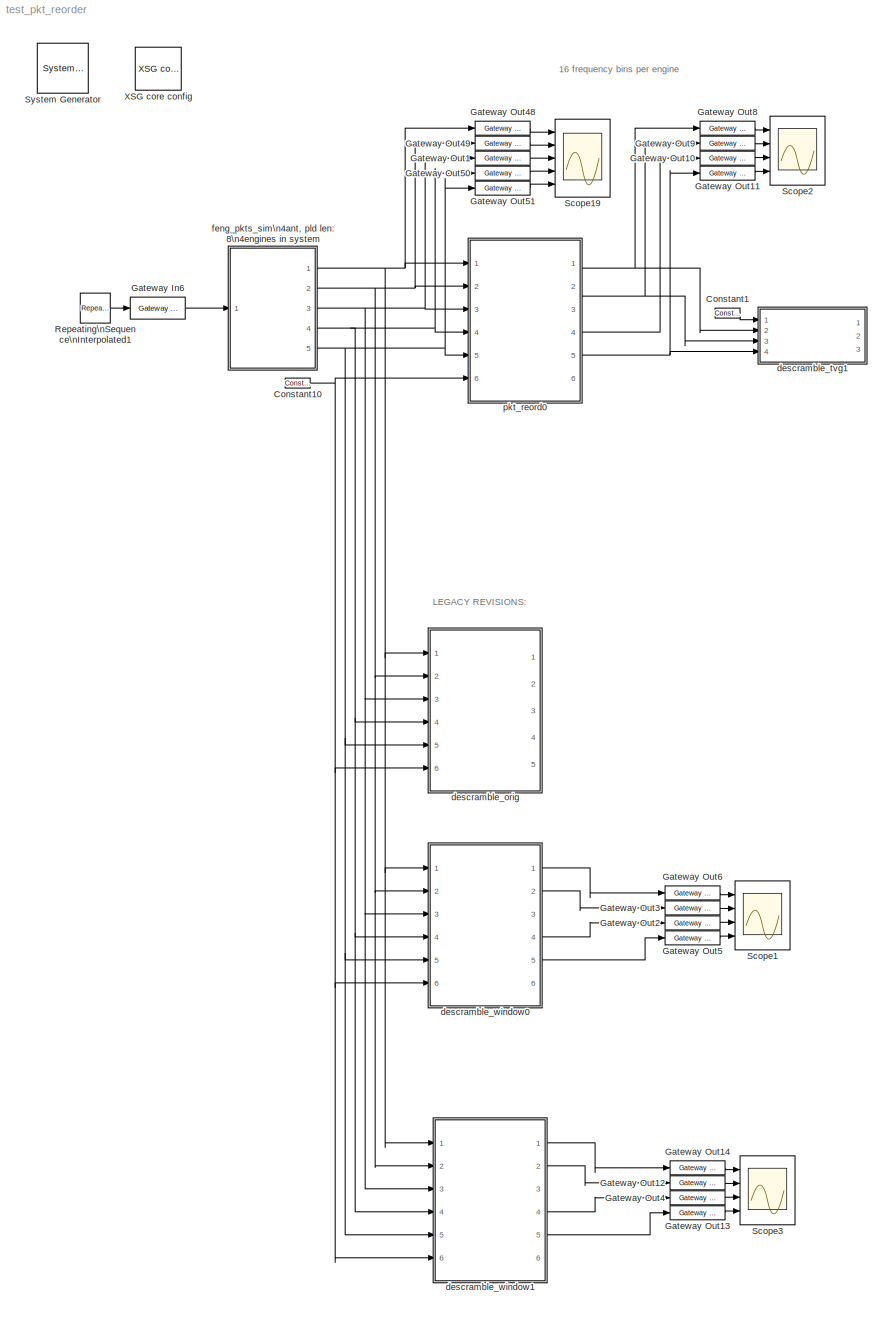
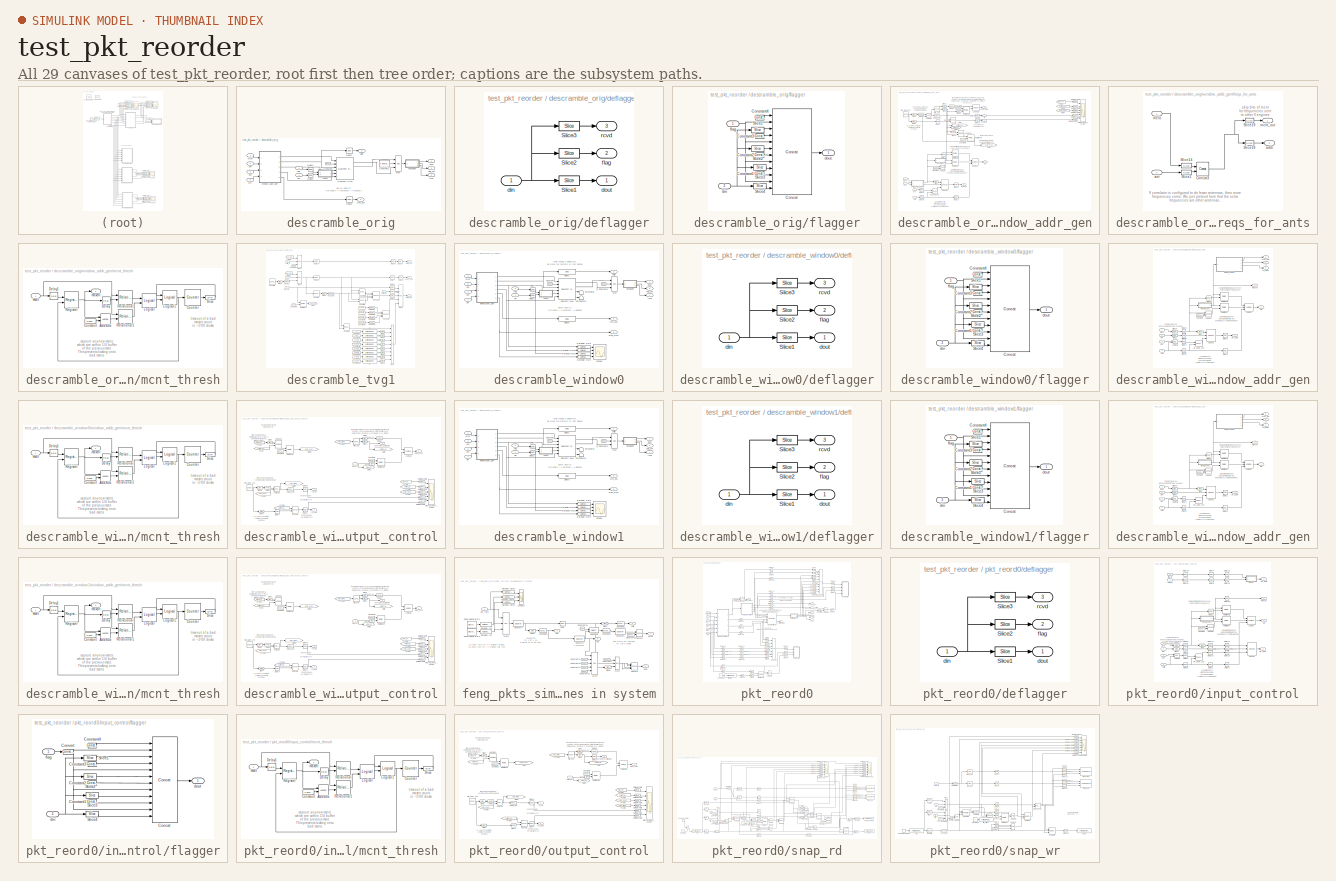
[diagram: thumbnail index - all 29 canvases of the model, root first then tree order]
MODEL test_pkt_reorder
KIND model
BLOCK [Reference]  System Generator  REF=xbsIndex_r3/ System Generator
  AttributesFormatString = System\\nGenerator
  Ports = []
  ShowPortLabels = on
  SourceBlock = xbsIndex_r3/ System Generator
  SourceType = Xilinx System Generator
  Tag = genX
  UserData = DataTag0
  UserDataPersistent = on
  core_generation = According to Block Masks
  dbl_ovrd = According to Block Masks
  deprecated_control = off
  directory = ./netlist
  eval_field = 0
  incr_netlist = off
  package = bg575
  part = xc2v1000
  run_coregen = off
  simulink_period = 1
  speed = -4
  synthesis_tool = XST
  sysclk_period = 100
  testbench = off
  trim_vbits = Everywhere in SubSystem
  xilinxfamily = Virtex2
BLOCK [Reference] Constant1  REF=xbsIndex_r3/Constant
  Ports = [0, 1]
  SourceBlock = xbsIndex_r3/Constant
  SourceType = Xilinx Constant Block
  arith_type = Unsigned
  bin_pt = 0
  carry = CIN
  const = 0
  dbl_ovrd = off
  equ = P=C
  explicit_period = on
  inp1 = P
  inp2 = PCIN>>17
  iostate = 0
  n_bits = 2
  opr = +
  opselect = C
  period = 1
BLOCK [Reference] Constant10  REF=xbsIndex_r3/Constant
  Ports = [0, 1]
  SourceBlock = xbsIndex_r3/Constant
  SourceType = Xilinx Constant Block
  arith_type = Unsigned
  bin_pt = 0
  carry = CIN
  const = 0
  dbl_ovrd = off
  equ = P=C
  explicit_period = on
  inp1 = P
  inp2 = PCIN>>17
  iostate = 0
  n_bits = 1
  opr = +
  opselect = C
  period = 1
BLOCK [Reference] Gateway In6  REF=xbsIndex_r3/Gateway In
  LOCs = {}
  Ports = [1, 1]
  SourceBlock = xbsIndex_r3/Gateway In
  SourceType = Xilinx Gateway In
  arith_type = Unsigned
  bin_pt = 0
  dbl_ovrd = off
  locs_specified = off
  n_bits = 1
  needs_fixed_name = off
  overflow = Wrap
  period = 1
  quantization = Truncate
  show_param = off
  timing_constraint = None
  xl_area = [0, 0, 0, 0, 0, 0, 0]
  xl_use_area = off
BLOCK [Reference] Gateway Out1  REF=xbsIndex_r3/Gateway Out
  LOCs = {}
  Ports = [1, 1]
  SourceBlock = xbsIndex_r3/Gateway Out
  SourceType = Xilinx Gateway Out
  arith_type = Boolean
  bin_pt = 6
  hdl_port = on
  locs_specified = off
  nbits = 8
  needs_fixed_name = off
  output_type = Double
  overflow = Wrap
  quantization = Truncate
  show_param = off
  timing_constraint = None
  xl_area = [0, 0, 0, 0, 0, 0, 0]
  xl_use_area = off
BLOCK [Reference] Gateway Out10  REF=xbsIndex_r3/Gateway Out
  LOCs = {}
  Ports = [1, 1]
  SourceBlock = xbsIndex_r3/Gateway Out
  SourceType = Xilinx Gateway Out
  arith_type = Boolean
  bin_pt = 6
  hdl_port = on
  locs_specified = off
  nbits = 8
  needs_fixed_name = off
  output_type = Double
  overflow = Wrap
  quantization = Truncate
  show_param = off
  timing_constraint = None
  xl_area = [0, 0, 0, 0, 0, 0, 0]
  xl_use_area = off
BLOCK [Reference] Gateway Out11  REF=xbsIndex_r3/Gateway Out
  LOCs = {}
  Ports = [1, 1]
  SourceBlock = xbsIndex_r3/Gateway Out
  SourceType = Xilinx Gateway Out
  arith_type = Boolean
  bin_pt = 6
  hdl_port = on
  locs_specified = off
  nbits = 8
  needs_fixed_name = off
  output_type = Double
  overflow = Wrap
  quantization = Truncate
  show_param = off
  timing_constraint = None
  xl_area = [0, 0, 0, 0, 0, 0, 0]
  xl_use_area = off
BLOCK [Reference] Gateway Out12  REF=xbsIndex_r3/Gateway Out
  LOCs = {}
  Ports = [1, 1]
  SourceBlock = xbsIndex_r3/Gateway Out
  SourceType = Xilinx Gateway Out
  arith_type = Boolean
  bin_pt = 6
  hdl_port = on
  locs_specified = off
  nbits = 8
  needs_fixed_name = off
  output_type = Double
  overflow = Wrap
  quantization = Truncate
  show_param = off
  timing_constraint = None
  xl_area = [0, 0, 0, 0, 0, 0, 0]
  xl_use_area = off
BLOCK [Reference] Gateway Out13  REF=xbsIndex_r3/Gateway Out
  LOCs = {}
  Ports = [1, 1]
  SourceBlock = xbsIndex_r3/Gateway Out
  SourceType = Xilinx Gateway Out
  arith_type = Boolean
  bin_pt = 6
  hdl_port = on
  locs_specified = off
  nbits = 8
  needs_fixed_name = off
  output_type = Double
  overflow = Wrap
  quantization = Truncate
  show_param = off
  timing_constraint = None
  xl_area = [0, 0, 0, 0, 0, 0, 0]
  xl_use_area = off
BLOCK [Reference] Gateway Out14  REF=xbsIndex_r3/Gateway Out
  LOCs = {}
  Ports = [1, 1]
  SourceBlock = xbsIndex_r3/Gateway Out
  SourceType = Xilinx Gateway Out
  arith_type = Boolean
  bin_pt = 6
  hdl_port = on
  locs_specified = off
  nbits = 8
  needs_fixed_name = off
  output_type = Double
  overflow = Wrap
  quantization = Truncate
  show_param = off
  timing_constraint = None
  xl_area = [0, 0, 0, 0, 0, 0, 0]
  xl_use_area = off
BLOCK [Reference] Gateway Out2  REF=xbsIndex_r3/Gateway Out
  LOCs = {}
  Ports = [1, 1]
  SourceBlock = xbsIndex_r3/Gateway Out
  SourceType = Xilinx Gateway Out
  arith_type = Boolean
  bin_pt = 6
  hdl_port = on
  locs_specified = off
  nbits = 8
  needs_fixed_name = off
  output_type = Double
  overflow = Wrap
  quantization = Truncate
  show_param = off
  timing_constraint = None
  xl_area = [0, 0, 0, 0, 0, 0, 0]
  xl_use_area = off
BLOCK [Reference] Gateway Out3  REF=xbsIndex_r3/Gateway Out
  LOCs = {}
  Ports = [1, 1]
  SourceBlock = xbsIndex_r3/Gateway Out
  SourceType = Xilinx Gateway Out
  arith_type = Boolean
  bin_pt = 6
  hdl_port = on
  locs_specified = off
  nbits = 8
  needs_fixed_name = off
  output_type = Double
  overflow = Wrap
  quantization = Truncate
  show_param = off
  timing_constraint = None
  xl_area = [0, 0, 0, 0, 0, 0, 0]
  xl_use_area = off
BLOCK [Reference] Gateway Out4  REF=xbsIndex_r3/Gateway Out
  LOCs = {}
  Ports = [1, 1]
  SourceBlock = xbsIndex_r3/Gateway Out
  SourceType = Xilinx Gateway Out
  arith_type = Boolean
  bin_pt = 6
  hdl_port = on
  locs_specified = off
  nbits = 8
  needs_fixed_name = off
  output_type = Double
  overflow = Wrap
  quantization = Truncate
  show_param = off
  timing_constraint = None
  xl_area = [0, 0, 0, 0, 0, 0, 0]
  xl_use_area = off
BLOCK [Reference] Gateway Out48  REF=xbsIndex_r3/Gateway Out
  LOCs = {}
  Ports = [1, 1]
  SourceBlock = xbsIndex_r3/Gateway Out
  SourceType = Xilinx Gateway Out
  arith_type = Boolean
  bin_pt = 6
  hdl_port = on
  locs_specified = off
  nbits = 8
  needs_fixed_name = off
  output_type = Double
  overflow = Wrap
  quantization = Truncate
  show_param = off
  timing_constraint = None
  xl_area = [0, 0, 0, 0, 0, 0, 0]
  xl_use_area = off
BLOCK [Reference] Gateway Out49  REF=xbsIndex_r3/Gateway Out
  LOCs = {}
  Ports = [1, 1]
  SourceBlock = xbsIndex_r3/Gateway Out
  SourceType = Xilinx Gateway Out
  arith_type = Boolean
  bin_pt = 6
  hdl_port = on
  locs_specified = off
  nbits = 8
  needs_fixed_name = off
  output_type = Double
  overflow = Wrap
  quantization = Truncate
  show_param = off
  timing_constraint = None
  xl_area = [0, 0, 0, 0, 0, 0, 0]
  xl_use_area = off
BLOCK [Reference] Gateway Out5  REF=xbsIndex_r3/Gateway Out
  LOCs = {}
  Ports = [1, 1]
  SourceBlock = xbsIndex_r3/Gateway Out
  SourceType = Xilinx Gateway Out
  arith_type = Boolean
  bin_pt = 6
  hdl_port = on
  locs_specified = off
  nbits = 8
  needs_fixed_name = off
  output_type = Double
  overflow = Wrap
  quantization = Truncate
  show_param = off
  timing_constraint = None
  xl_area = [0, 0, 0, 0, 0, 0, 0]
  xl_use_area = off
BLOCK [Reference] Gateway Out50  REF=xbsIndex_r3/Gateway Out
  LOCs = {}
  Ports = [1, 1]
  SourceBlock = xbsIndex_r3/Gateway Out
  SourceType = Xilinx Gateway Out
  arith_type = Boolean
  bin_pt = 6
  hdl_port = on
  locs_specified = off
  nbits = 8
  needs_fixed_name = off
  output_type = Double
  overflow = Wrap
  quantization = Truncate
  show_param = off
  timing_constraint = None
  xl_area = [0, 0, 0, 0, 0, 0, 0]
  xl_use_area = off
BLOCK [Reference] Gateway Out51  REF=xbsIndex_r3/Gateway Out
  LOCs = {}
  Ports = [1, 1]
  SourceBlock = xbsIndex_r3/Gateway Out
  SourceType = Xilinx Gateway Out
  arith_type = Boolean
  bin_pt = 6
  hdl_port = on
  locs_specified = off
  nbits = 8
  needs_fixed_name = off
  output_type = Double
  overflow = Wrap
  quantization = Truncate
  show_param = off
  timing_constraint = None
  xl_area = [0, 0, 0, 0, 0, 0, 0]
  xl_use_area = off
BLOCK [Reference] Gateway Out6  REF=xbsIndex_r3/Gateway Out
  LOCs = {}
  Ports = [1, 1]
  SourceBlock = xbsIndex_r3/Gateway Out
  SourceType = Xilinx Gateway Out
  arith_type = Boolean
  bin_pt = 6
  hdl_port = on
  locs_specified = off
  nbits = 8
  needs_fixed_name = off
  output_type = Double
  overflow = Wrap
  quantization = Truncate
  show_param = off
  timing_constraint = None
  xl_area = [0, 0, 0, 0, 0, 0, 0]
  xl_use_area = off
BLOCK [Reference] Gateway Out8  REF=xbsIndex_r3/Gateway Out
  LOCs = {}
  Ports = [1, 1]
  SourceBlock = xbsIndex_r3/Gateway Out
  SourceType = Xilinx Gateway Out
  arith_type = Boolean
  bin_pt = 6
  hdl_port = on
  locs_specified = off
  nbits = 8
  needs_fixed_name = off
  output_type = Double
  overflow = Wrap
  quantization = Truncate
  show_param = off
  timing_constraint = None
  xl_area = [0, 0, 0, 0, 0, 0, 0]
  xl_use_area = off
BLOCK [Reference] Gateway Out9  REF=xbsIndex_r3/Gateway Out
  LOCs = {}
  Ports = [1, 1]
  SourceBlock = xbsIndex_r3/Gateway Out
  SourceType = Xilinx Gateway Out
  arith_type = Boolean
  bin_pt = 6
  hdl_port = on
  locs_specified = off
  nbits = 8
  needs_fixed_name = off
  output_type = Double
  overflow = Wrap
  quantization = Truncate
  show_param = off
  timing_constraint = None
  xl_area = [0, 0, 0, 0, 0, 0, 0]
  xl_use_area = off
BLOCK [Reference] Repeating\nSequence\nInterpolated1  REF=simulink/Sources/Repeating\nSequence\nInterpolated
  LockScale = off
  LookUpMeth = Use Input Above
  OutDataType = float('double')
  OutScaling = 2^-10
  OutValues = [0 1].'
  OutputDataTypeScalingMode = Specify via dialog
  Ports = [0, 1]
  ShowPortLabels = on
  SourceBlock = simulink/Sources/Repeating\nSequence\nInterpolated
  SourceType = Repeating Sequence Interpolated
  TimeValues = [50000 100000].'
  tsamp = 1
BLOCK [Scope] Scope1
  DataFormat = StructureWithTime
  LimitDataPoints = off
  NumInputPorts = 4
  Ports = [4]
  SaveName = ScopeData5
  YMax = 1~1~1~1
  YMin = 0~0~0~-1
  ZoomMode = xonly
BLOCK [Scope] Scope19
  DataFormat = StructureWithTime
  LimitDataPoints = off
  NumInputPorts = 5
  Ports = [5]
  SaveName = ScopeData2
  YMax = 3e+014~1~1~3000~3
  YMin = 0~0~0~0~0
  ZoomMode = xonly
BLOCK [Scope] Scope2
  DataFormat = StructureWithTime
  LimitDataPoints = off
  NumInputPorts = 4
  Ports = [4]
  YMax = 1~1~1~1
  YMin = 0~0~0~-1
  ZoomMode = xonly
BLOCK [Scope] Scope3
  DataFormat = StructureWithTime
  LimitDataPoints = off
  NumInputPorts = 4
  Ports = [4]
  SaveName = ScopeData6
  YMax = 1~1~1~1
  YMin = 0~0~0~-1
  ZoomMode = xonly
BLOCK [Reference] XSG core config  REF=xps_library/XSG core config  (lib defined in mdl_00b5cec29cd0, mdl_02ab6ecaa3d1, +5 more)
  Ports = []
  ShowPortLabels = on
  SourceBlock = xps_library/XSG core config
  SourceType = xsg core config
  Tag = xps:xsg
  clk_rate = 205
  clk_src = sys_clk
  gpio_clk_bit_index = 0
  gpio_clk_io_group = iBOB:sma
  hw_sys = BEE2_usr
  ibob_linux = off
  mpc_type = powerpc405
  sample_period = 1
  synthesis_tool = XST
BLOCK [SubSystem] descramble_orig
  MaskCallbackString = |||
  MaskEnableString = on,on,on,on
  MaskIconFrame = on
  MaskIconOpaque = on
  MaskIconRotate = none
  MaskIconUnits = autoscale
  MaskPromptString = Maximum Number of Antennas (2^?):|X Engine Integration Length (2^?):|Number of Windows to Buffer (2^?):|Samples Between Sync Pulses (2^?)
  MaskStyleString = edit,edit,edit,edit
  MaskTabNameString = ,,,
  MaskToolTipString = on,on,on,on
  MaskTunableValueString = on,on,on,on
  MaskValueString = 2|5|3|11
  MaskVarAliasString = ,,,
  MaskVariables = ant_bits=@1;x_int_bits=@2;window_bits=@3;sync_bits=@4;
  MaskVisibilityString = on,on,on,on
  MinAlgLoopOccurrences = off
  Ports = [6, 5]
  RTWSystemCode = Auto
  TreatAsAtomicUnit = off
BLOCK [Reference] descramble_orig/Constant  REF=xbsIndex_r3/Constant
  Ports = [0, 1]
  SourceBlock = xbsIndex_r3/Constant
  SourceType = Xilinx Constant Block
  arith_type = Unsigned
  bin_pt = 0
  carry = CIN
  const = 0
  dbl_ovrd = off
  equ = P=C
  explicit_period = on
  inp1 = P
  inp2 = PCIN>>17
  iostate = 0
  n_bits = 18
  opr = +
  opselect = C
  period = 1
BLOCK [Reference] descramble_orig/Constant1  REF=xbsIndex_r3/Constant
  Ports = [0, 1]
  SourceBlock = xbsIndex_r3/Constant
  SourceType = Xilinx Constant Block
  arith_type = Unsigned
  bin_pt = 0
  carry = CIN
  const = 0
  dbl_ovrd = off
  equ = P=C
  explicit_period = off
  inp1 = P
  inp2 = PCIN>>17
  iostate = 0
  n_bits = 1
  opr = +
  opselect = C
  period = 1
BLOCK [Reference] descramble_orig/Delay1  REF=xbsIndex_r3/Delay
  Ports = [1, 1]
  SourceBlock = xbsIndex_r3/Delay
  SourceType = Xilinx Delay Block
  accept_only_valid = off
  dbl_ovrd = off
  en = off
  explicit_period = off
  init_zero = on
  latency = 2
  period = 1
  reg_retiming = off
  show_param = off
  xl_area = [0, 0, 0, 0, 0, 0, 0]
  xl_use_area = off
BLOCK [Reference] descramble_orig/Delay2  REF=xbsIndex_r3/Delay
  Ports = [1, 1]
  SourceBlock = xbsIndex_r3/Delay
  SourceType = Xilinx Delay Block
  accept_only_valid = off
  dbl_ovrd = off
  en = off
  explicit_period = off
  init_zero = on
  latency = 4
  period = 1
  reg_retiming = off
  show_param = off
  xl_area = [0, 0, 0, 0, 0, 0, 0]
  xl_use_area = off
BLOCK [Reference] descramble_orig/Delay3  REF=xbsIndex_r3/Delay
  Ports = [1, 1]
  SourceBlock = xbsIndex_r3/Delay
  SourceType = Xilinx Delay Block
  accept_only_valid = off
  dbl_ovrd = off
  en = off
  explicit_period = off
  init_zero = on
  latency = 2
  period = 1
  reg_retiming = off
  show_param = off
  xl_area = [0, 0, 0, 0, 0, 0, 0]
  xl_use_area = off
BLOCK [Reference] descramble_orig/Delay4  REF=xbsIndex_r3/Delay
  Ports = [1, 1]
  SourceBlock = xbsIndex_r3/Delay
  SourceType = Xilinx Delay Block
  accept_only_valid = off
  dbl_ovrd = off
  en = off
  explicit_period = off
  init_zero = on
  latency = 4
  period = 1
  reg_retiming = off
  show_param = off
  xl_area = [0, 0, 0, 0, 0, 0, 0]
  xl_use_area = off
BLOCK [Reference] descramble_orig/Dual Port RAM  REF=xbsIndex_r3/Dual Port RAM
  Ports = [6, 4]
  SourceBlock = xbsIndex_r3/Dual Port RAM
  SourceType = Xilinx Dual Port Random Access Memory
  dbl_ovrd = off
  depth = 2^x_int_bits * 2^ant_bits * 2^window_bits
  distributed_mem = off
  explicit_period = off
  gen_core = off
  initVector = 0
  init_a = 0
  init_b = 0
  init_zero = on
  latency = 2
  mem_collision = on
  period = 1
  rst_a = off
  rst_b = off
  show_param = off
  use_rpm = off
  write_mode_A = Read Before Write
  write_mode_B = Read Before Write
  xl_area = [0, 0, 0, 0, 0, 0, 0]
  xl_use_area = off
BLOCK [Reference] descramble_orig/Mux  REF=xbsIndex_r3/Mux
  Ports = [3, 1]
  SourceBlock = xbsIndex_r3/Mux
  SourceType = Xilinx Multiplexer Block
  arith_type = Signed  (2's comp)
  bin_pt = 2
  dbl_ovrd = off
  en = off
  explicit_period = off
  gen_core = off
  inputs = 2
  latency = 0
  mux_type = off
  n_bits = 8
  overflow = Wrap
  period = 1
  precision = Full
  quantization = Truncate
  show_param = off
  use_rpm = off
  xl_area = [0, 0, 0, 0, 0, 0, 0]
  xl_use_area = off
BLOCK [Inport] descramble_orig/ant
  IconDisplay = Port number
  LatchInput = off
  Port = 5
BLOCK [SubSystem] descramble_orig/deflagger
  MinAlgLoopOccurrences = off
  Ports = [1, 3]
  RTWSystemCode = Auto
  TreatAsAtomicUnit = off
BLOCK [Reference] descramble_orig/deflagger/Slice1  REF=xbsIndex_r3/Slice
  Ports = [1, 1]
  SourceBlock = xbsIndex_r3/Slice
  SourceType = Xilinx Slice Block
  base0 = LSB of Input
  base1 = MSB of Input
  bit0 = 0
  bit1 = 0
  boolean_output = off
  dbl_ovrd = off
  explicit_period = on
  mode = Lower Bit Location + Width
  nbits = 16
  period = 1
BLOCK [Reference] descramble_orig/deflagger/Slice2  REF=xbsIndex_r3/Slice
  Ports = [1, 1]
  SourceBlock = xbsIndex_r3/Slice
  SourceType = Xilinx Slice Block
  base0 = LSB of Input
  base1 = MSB of Input
  bit0 = 0
  bit1 = -1
  boolean_output = off
  dbl_ovrd = off
  explicit_period = on
  mode = Upper Bit Location + Width
  nbits = 1
  period = 1
BLOCK [Reference] descramble_orig/deflagger/Slice3  REF=xbsIndex_r3/Slice
  Ports = [1, 1]
  SourceBlock = xbsIndex_r3/Slice
  SourceType = Xilinx Slice Block
  base0 = LSB of Input
  base1 = MSB of Input
  bit0 = 0
  bit1 = 0
  boolean_output = on
  dbl_ovrd = off
  explicit_period = on
  mode = Upper Bit Location + Width
  nbits = 1
  period = 1
BLOCK [Inport] descramble_orig/deflagger/din
  IconDisplay = Port number
  LatchInput = off
  Port = 1
BLOCK [Outport] descramble_orig/deflagger/dout
  BusOutputAsStruct = off
  IconDisplay = Port number
BLOCK [Outport] descramble_orig/deflagger/flag
  BusOutputAsStruct = off
  IconDisplay = Port number
  Port = 2
BLOCK [Outport] descramble_orig/deflagger/rcvd
  BusOutputAsStruct = off
  IconDisplay = Port number
  Port = 3
BLOCK [Inport] descramble_orig/din
  IconDisplay = Port number
  LatchInput = off
  Port = 1
BLOCK [Outport] descramble_orig/dout
  BusOutputAsStruct = off
  IconDisplay = Port number
BLOCK [Inport] descramble_orig/eof
  IconDisplay = Port number
  LatchInput = off
  Port = 3
BLOCK [Inport] descramble_orig/flag
  IconDisplay = Port number
  LatchInput = off
  Port = 6
BLOCK [Outport] descramble_orig/flag_out
  BusOutputAsStruct = off
  IconDisplay = Port number
  Port = 3
BLOCK [SubSystem] descramble_orig/flagger
  MinAlgLoopOccurrences = off
  Ports = [2, 1]
  RTWSystemCode = Auto
  TreatAsAtomicUnit = off
BLOCK [Reference] descramble_orig/flagger/Concat  REF=xbsIndex_r3/Concat
  Ports = [12, 1]
  SourceBlock = xbsIndex_r3/Concat
  SourceType = Xilinx Bus Concatenator
  dbl_ovrd = off
  explicit_period = off
  num_inputs = 12
  period = 1
BLOCK [Reference] descramble_orig/flagger/Constant1  REF=xbsIndex_r3/Constant
  Ports = [0, 1]
  SourceBlock = xbsIndex_r3/Constant
  SourceType = Xilinx Constant Block
  arith_type = Unsigned
  bin_pt = 0
  carry = CIN
  const = 1
  dbl_ovrd = off
  equ = P=C
  explicit_period = on
  inp1 = P
  inp2 = PCIN>>17
  iostate = 0
  n_bits = 1
  opr = +
  opselect = C
  period = 1
BLOCK [Reference] descramble_orig/flagger/Constant2  REF=xbsIndex_r3/Constant
  Ports = [0, 1]
  SourceBlock = xbsIndex_r3/Constant
  SourceType = Xilinx Constant Block
  arith_type = Unsigned
  bin_pt = 0
  carry = CIN
  const = 1
  dbl_ovrd = off
  equ = P=C
  explicit_period = on
  inp1 = P
  inp2 = PCIN>>17
  iostate = 0
  n_bits = 1
  opr = +
  opselect = C
  period = 1
BLOCK [Reference] descramble_orig/flagger/Constant3  REF=xbsIndex_r3/Constant
  Ports = [0, 1]
  SourceBlock = xbsIndex_r3/Constant
  SourceType = Xilinx Constant Block
  arith_type = Unsigned
  bin_pt = 0
  carry = CIN
  const = 1
  dbl_ovrd = off
  equ = P=C
  explicit_period = on
  inp1 = P
  inp2 = PCIN>>17
  iostate = 0
  n_bits = 1
  opr = +
  opselect = C
  period = 1
BLOCK [Reference] descramble_orig/flagger/Constant4  REF=xbsIndex_r3/Constant
  Ports = [0, 1]
  SourceBlock = xbsIndex_r3/Constant
  SourceType = Xilinx Constant Block
  arith_type = Unsigned
  bin_pt = 0
  carry = CIN
  const = 1
  dbl_ovrd = off
  equ = P=C
  explicit_period = on
  inp1 = P
  inp2 = PCIN>>17
  iostate = 0
  n_bits = 1
  opr = +
  opselect = C
  period = 1
BLOCK [Reference] descramble_orig/flagger/Slice1  REF=xbsIndex_r3/Slice
  Ports = [1, 1]
  SourceBlock = xbsIndex_r3/Slice
  SourceType = Xilinx Slice Block
  base0 = LSB of Input
  base1 = MSB of Input
  bit0 = 0
  bit1 = 0
  boolean_output = off
  dbl_ovrd = off
  explicit_period = off
  mode = Lower Bit Location + Width
  nbits = 16
  period = 1
BLOCK [Reference] descramble_orig/flagger/Slice2  REF=xbsIndex_r3/Slice
  Ports = [1, 1]
  SourceBlock = xbsIndex_r3/Slice
  SourceType = Xilinx Slice Block
  base0 = LSB of Input
  base1 = MSB of Input
  bit0 = 16
  bit1 = 0
  boolean_output = off
  dbl_ovrd = off
  explicit_period = off
  mode = Lower Bit Location + Width
  nbits = 16
  period = 1
BLOCK [Reference] descramble_orig/flagger/Slice3  REF=xbsIndex_r3/Slice
  Ports = [1, 1]
  SourceBlock = xbsIndex_r3/Slice
  SourceType = Xilinx Slice Block
  base0 = LSB of Input
  base1 = MSB of Input
  bit0 = 32
  bit1 = 0
  boolean_output = off
  dbl_ovrd = off
  explicit_period = off
  mode = Lower Bit Location + Width
  nbits = 16
  period = 1
BLOCK [Reference] descramble_orig/flagger/Slice4  REF=xbsIndex_r3/Slice
  Ports = [1, 1]
  SourceBlock = xbsIndex_r3/Slice
  SourceType = Xilinx Slice Block
  base0 = LSB of Input
  base1 = MSB of Input
  bit0 = 48
  bit1 = 0
  boolean_output = off
  dbl_ovrd = off
  explicit_period = off
  mode = Lower Bit Location + Width
  nbits = 16
  period = 1
BLOCK [Inport] descramble_orig/flagger/din
  IconDisplay = Port number
  LatchInput = off
  Port = 2
BLOCK [Outport] descramble_orig/flagger/dout
  BusOutputAsStruct = off
  IconDisplay = Port number
BLOCK [Inport] descramble_orig/flagger/flag
  IconDisplay = Port number
  LatchInput = off
  Port = 1
BLOCK [Inport] descramble_orig/mcnt
  IconDisplay = Port number
  LatchInput = off
  Port = 4
BLOCK [Outport] descramble_orig/rcvd
  BusOutputAsStruct = off
  IconDisplay = Port number
  Port = 4
BLOCK [Outport] descramble_orig/sync_out
  BusOutputAsStruct = off
  IconDisplay = Port number
  Port = 5
BLOCK [Outport] descramble_orig/valid
  BusOutputAsStruct = off
  IconDisplay = Port number
  Port = 2
BLOCK [Inport] descramble_orig/we
  IconDisplay = Port number
  LatchInput = off
  Port = 2
BLOCK [SubSystem] descramble_orig/window_addr_gen
  MinAlgLoopOccurrences = off
  Ports = [4, 5]
  RTWSystemCode = Auto
  TreatAsAtomicUnit = off
BLOCK [Reference] descramble_orig/window_addr_gen/AddSub  REF=xbsIndex_r3/AddSub
  Ports = [2, 1]
  SourceBlock = xbsIndex_r3/AddSub
  SourceType = Xilinx Adder/Subtractor
  arith_type = Unsigned
  bin_pt = 0
  dbl_ovrd = off
  en = off
  explicit_period = off
  gen_core = off
  latency = 2
  mode = Addition
  n_bits = 48 - ant_bits
  overflow = Wrap
  period = 1
  pipeline = off
  precision = User Defined
  quantization = Truncate
  show_param = off
  use_carryin = off
  use_carryout = off
  use_core = on
  use_rpm = on
  xl_area = [0, 0, 0, 0, 0, 0, 0]
  xl_use_area = off
BLOCK [Reference] descramble_orig/window_addr_gen/AddSub1  REF=xbsIndex_r3/AddSub
  Ports = [2, 1]
  SourceBlock = xbsIndex_r3/AddSub
  SourceType = Xilinx Adder/Subtractor
  arith_type = Unsigned
  bin_pt = 0
  dbl_ovrd = off
  en = off
  explicit_period = off
  gen_core = off
  latency = 2
  mode = Subtraction
  n_bits = window_bits
  overflow = Wrap
  period = 1
  pipeline = off
  precision = User Defined
  quantization = Truncate
  show_param = off
  use_carryin = off
  use_carryout = off
  use_core = on
  use_rpm = on
  xl_area = [0, 0, 0, 0, 0, 0, 0]
  xl_use_area = off
BLOCK [Reference] descramble_orig/window_addr_gen/Concat  REF=xbsIndex_r3/Concat
  Ports = [3, 1]
  SourceBlock = xbsIndex_r3/Concat
  SourceType = Xilinx Bus Concatenator
  dbl_ovrd = off
  explicit_period = off
  num_inputs = 3
  period = 1
BLOCK [Reference] descramble_orig/window_addr_gen/Concat1  REF=xbsIndex_r3/Concat
  Ports = [2, 1]
  SourceBlock = xbsIndex_r3/Concat
  SourceType = Xilinx Bus Concatenator
  dbl_ovrd = off
  explicit_period = off
  num_inputs = 2
  period = 1
BLOCK [Reference] descramble_orig/window_addr_gen/Constant  REF=xbsIndex_r3/Constant
  Ports = [0, 1]
  SourceBlock = xbsIndex_r3/Constant
  SourceType = Xilinx Constant Block
  arith_type = Unsigned
  bin_pt = 0
  carry = CIN
  const = 2^(window_bits - 1)
  dbl_ovrd = off
  equ = P=C
  explicit_period = on
  inp1 = P
  inp2 = PCIN>>17
  iostate = 0
  n_bits = 48 - ant_bits
  opr = +
  opselect = C
  period = 1
BLOCK [Reference] descramble_orig/window_addr_gen/Constant1  REF=xbsIndex_r3/Constant
  Ports = [0, 1]
  SourceBlock = xbsIndex_r3/Constant
  SourceType = Xilinx Constant Block
  arith_type = Unsigned
  bin_pt = 0
  carry = CIN
  const = 2^(window_bits - 1)
  dbl_ovrd = off
  equ = P=C
  explicit_period = on
  inp1 = P
  inp2 = PCIN>>17
  iostate = 0
  n_bits = window_bits
  opr = +
  opselect = C
  period = 1
BLOCK [Reference] descramble_orig/window_addr_gen/Constant3  REF=xbsIndex_r3/Constant
  Ports = [0, 1]
  SourceBlock = xbsIndex_r3/Constant
  SourceType = Xilinx Constant Block
  arith_type = Unsigned
  bin_pt = 0
  carry = CIN
  const = 0
  dbl_ovrd = off
  equ = P=C
  explicit_period = on
  inp1 = P
  inp2 = PCIN>>17
  iostate = 0
  n_bits = sync_bits - x_int_bits - ant_bits - window_bits
  opr = +
  opselect = C
  period = 1
BLOCK [Reference] descramble_orig/window_addr_gen/Delay1  REF=xbsIndex_r3/Delay
  Ports = [1, 1]
  SourceBlock = xbsIndex_r3/Delay
  SourceType = Xilinx Delay Block
  accept_only_valid = off
  dbl_ovrd = off
  en = off
  explicit_period = off
  init_zero = on
  latency = 3
  period = 1
  reg_retiming = off
  show_param = off
  xl_area = [0, 0, 0, 0, 0, 0, 0]
  xl_use_area = off
BLOCK [Reference] descramble_orig/window_addr_gen/Delay2  REF=xbsIndex_r3/Delay
  Ports = [1, 1]
  SourceBlock = xbsIndex_r3/Delay
  SourceType = Xilinx Delay Block
  accept_only_valid = off
  dbl_ovrd = off
  en = off
  explicit_period = off
  init_zero = on
  latency = 3
  period = 1
  reg_retiming = off
  show_param = off
  xl_area = [0, 0, 0, 0, 0, 0, 0]
  xl_use_area = off
BLOCK [Reference] descramble_orig/window_addr_gen/Delay3  REF=xbsIndex_r3/Delay
  Ports = [1, 1]
  SourceBlock = xbsIndex_r3/Delay
  SourceType = Xilinx Delay Block
  accept_only_valid = off
  dbl_ovrd = off
  en = off
  explicit_period = off
  init_zero = on
  latency = 2
  period = 1
  reg_retiming = off
  show_param = off
  xl_area = [0, 0, 0, 0, 0, 0, 0]
  xl_use_area = off
BLOCK [Reference] descramble_orig/window_addr_gen/Delay4  REF=xbsIndex_r3/Delay
  Ports = [1, 1]
  SourceBlock = xbsIndex_r3/Delay
  SourceType = Xilinx Delay Block
  accept_only_valid = off
  dbl_ovrd = off
  en = off
  explicit_period = off
  init_zero = on
  latency = 1
  period = 1
  reg_retiming = off
  show_param = off
  xl_area = [0, 0, 0, 0, 0, 0, 0]
  xl_use_area = off
BLOCK [Reference] descramble_orig/window_addr_gen/Delay5  REF=xbsIndex_r3/Delay
  Ports = [1, 1]
  SourceBlock = xbsIndex_r3/Delay
  SourceType = Xilinx Delay Block
  accept_only_valid = off
  dbl_ovrd = off
  en = off
  explicit_period = off
  init_zero = on
  latency = 1
  period = 1
  reg_retiming = off
  show_param = off
  xl_area = [0, 0, 0, 0, 0, 0, 0]
  xl_use_area = off
BLOCK [Reference] descramble_orig/window_addr_gen/Delay6  REF=xbsIndex_r3/Delay
  Ports = [1, 1]
  SourceBlock = xbsIndex_r3/Delay
  SourceType = Xilinx Delay Block
  accept_only_valid = off
  dbl_ovrd = off
  en = off
  explicit_period = off
  init_zero = on
  latency = 1
  period = 1
  reg_retiming = off
  show_param = off
  xl_area = [0, 0, 0, 0, 0, 0, 0]
  xl_use_area = off
BLOCK [Reference] descramble_orig/window_addr_gen/Delay7  REF=xbsIndex_r3/Delay
  Ports = [1, 1]
  SourceBlock = xbsIndex_r3/Delay
  SourceType = Xilinx Delay Block
  accept_only_valid = off
  dbl_ovrd = off
  en = off
  explicit_period = off
  init_zero = on
  latency = 1
  period = 1
  reg_retiming = off
  show_param = off
  xl_area = [0, 0, 0, 0, 0, 0, 0]
  xl_use_area = off
BLOCK [Reference] descramble_orig/window_addr_gen/Delay8  REF=xbsIndex_r3/Delay
  Ports = [1, 1]
  SourceBlock = xbsIndex_r3/Delay
  SourceType = Xilinx Delay Block
  accept_only_valid = off
  dbl_ovrd = off
  en = off
  explicit_period = off
  init_zero = on
  latency = 1
  period = 1
  reg_retiming = off
  show_param = off
  xl_area = [0, 0, 0, 0, 0, 0, 0]
  xl_use_area = off
BLOCK [From] descramble_orig/window_addr_gen/From5
  CloseFcn = tagdialog Close
  GotoTag = maxcnt
BLOCK [From] descramble_orig/window_addr_gen/From6
  CloseFcn = tagdialog Close
  GotoTag = current_window
BLOCK [From] descramble_orig/window_addr_gen/From7
  CloseFcn = tagdialog Close
  GotoTag = ship_next_window
BLOCK [Reference] descramble_orig/window_addr_gen/Gateway Out1  REF=xbsIndex_r3/Gateway Out
  LOCs = {}
  Ports = [1, 1]
  SourceBlock = xbsIndex_r3/Gateway Out
  SourceType = Xilinx Gateway Out
  arith_type = Boolean
  bin_pt = 6
  hdl_port = off
  locs_specified = off
  nbits = 8
  needs_fixed_name = off
  output_type = Double
  overflow = Wrap
  quantization = Truncate
  show_param = off
  timing_constraint = None
  xl_area = [0, 0, 0, 0, 0, 0, 0]
  xl_use_area = off
BLOCK [Reference] descramble_orig/window_addr_gen/Gateway Out2  REF=xbsIndex_r3/Gateway Out
  LOCs = {}
  Ports = [1, 1]
  SourceBlock = xbsIndex_r3/Gateway Out
  SourceType = Xilinx Gateway Out
  arith_type = Boolean
  bin_pt = 6
  hdl_port = off
  locs_specified = off
  nbits = 8
  needs_fixed_name = off
  output_type = Double
  overflow = Wrap
  quantization = Truncate
  show_param = off
  timing_constraint = None
  xl_area = [0, 0, 0, 0, 0, 0, 0]
  xl_use_area = off
BLOCK [Reference] descramble_orig/window_addr_gen/Gateway Out3  REF=xbsIndex_r3/Gateway Out
  LOCs = {}
  Ports = [1, 1]
  SourceBlock = xbsIndex_r3/Gateway Out
  SourceType = Xilinx Gateway Out
  arith_type = Boolean
  bin_pt = 6
  hdl_port = off
  locs_specified = off
  nbits = 8
  needs_fixed_name = off
  output_type = Double
  overflow = Wrap
  quantization = Truncate
  show_param = off
  timing_constraint = None
  xl_area = [0, 0, 0, 0, 0, 0, 0]
  xl_use_area = off
BLOCK [Reference] descramble_orig/window_addr_gen/Gateway Out4  REF=xbsIndex_r3/Gateway Out
  LOCs = {}
  Ports = [1, 1]
  SourceBlock = xbsIndex_r3/Gateway Out
  SourceType = Xilinx Gateway Out
  arith_type = Boolean
  bin_pt = 6
  hdl_port = off
  locs_specified = off
  nbits = 8
  needs_fixed_name = off
  output_type = Double
  overflow = Wrap
  quantization = Truncate
  show_param = off
  timing_constraint = None
  xl_area = [0, 0, 0, 0, 0, 0, 0]
  xl_use_area = off
BLOCK [Reference] descramble_orig/window_addr_gen/Gateway Out5  REF=xbsIndex_r3/Gateway Out
  LOCs = {}
  Ports = [1, 1]
  SourceBlock = xbsIndex_r3/Gateway Out
  SourceType = Xilinx Gateway Out
  arith_type = Boolean
  bin_pt = 6
  hdl_port = off
  locs_specified = off
  nbits = 8
  needs_fixed_name = off
  output_type = Double
  overflow = Wrap
  quantization = Truncate
  show_param = off
  timing_constraint = None
  xl_area = [0, 0, 0, 0, 0, 0, 0]
  xl_use_area = off
BLOCK [Goto] descramble_orig/window_addr_gen/Goto
  GotoTag = current_window
  TagVisibility = local
BLOCK [Goto] descramble_orig/window_addr_gen/Goto1
  GotoTag = maxcnt
  TagVisibility = local
BLOCK [Goto] descramble_orig/window_addr_gen/Goto2
  GotoTag = ship_next_window
  TagVisibility = local
BLOCK [Reference] descramble_orig/window_addr_gen/Logical  REF=xbsIndex_r3/Logical
  Ports = [3, 1]
  SourceBlock = xbsIndex_r3/Logical
  SourceType = Xilinx Logical Block
  align_bp = on
  arith_type = Unsigned
  bin_pt = 2
  dbl_ovrd = off
  en = off
  explicit_period = off
  inputs = 3
  latency = 0
  logical_function = AND
  n_bits = 8
  period = 1
  precision = Full
  show_param = off
  xl_area = [0, 0, 0, 0, 0, 0, 0]
  xl_use_area = off
BLOCK [Reference] descramble_orig/window_addr_gen/Logical1  REF=xbsIndex_r3/Logical
  Ports = [2, 1]
  SourceBlock = xbsIndex_r3/Logical
  SourceType = Xilinx Logical Block
  align_bp = on
  arith_type = Unsigned
  bin_pt = 2
  dbl_ovrd = off
  en = off
  explicit_period = off
  inputs = 2
  latency = 0
  logical_function = AND
  n_bits = 8
  period = 1
  precision = Full
  show_param = off
  xl_area = [0, 0, 0, 0, 0, 0, 0]
  xl_use_area = off
BLOCK [Reference] descramble_orig/window_addr_gen/Logical2  REF=xbsIndex_r3/Logical
  Ports = [2, 1]
  SourceBlock = xbsIndex_r3/Logical
  SourceType = Xilinx Logical Block
  align_bp = on
  arith_type = Unsigned
  bin_pt = 2
  dbl_ovrd = off
  en = off
  explicit_period = off
  inputs = 2
  latency = 0
  logical_function = AND
  n_bits = 8
  period = 1
  precision = Full
  show_param = off
  xl_area = [0, 0, 0, 0, 0, 0, 0]
  xl_use_area = off
BLOCK [Reference] descramble_orig/window_addr_gen/Relational  REF=xbsIndex_r3/Relational
  Ports = [2, 1]
  SourceBlock = xbsIndex_r3/Relational
  SourceType = Xilinx Relational Block
  dbl_ovrd = off
  en = off
  explicit_period = off
  latency = 1
  mode = a<b
  period = 1
  show_param = off
  xl_area = [0, 0, 0, 0, 0, 0, 0]
  xl_use_area = off
BLOCK [Reference] descramble_orig/window_addr_gen/Relational1  REF=xbsIndex_r3/Relational
  Ports = [2, 1]
  SourceBlock = xbsIndex_r3/Relational
  SourceType = Xilinx Relational Block
  dbl_ovrd = off
  en = off
  explicit_period = on
  latency = 1
  mode = a>=b
  period = 1
  show_param = off
  xl_area = [0, 0, 0, 0, 0, 0, 0]
  xl_use_area = off
BLOCK [Reference] descramble_orig/window_addr_gen/Relational2  REF=xbsIndex_r3/Relational
  Ports = [2, 1]
  SourceBlock = xbsIndex_r3/Relational
  SourceType = Xilinx Relational Block
  dbl_ovrd = off
  en = off
  explicit_period = off
  latency = 1
  mode = a>=b
  period = 1
  show_param = off
  xl_area = [0, 0, 0, 0, 0, 0, 0]
  xl_use_area = off
BLOCK [Reference] descramble_orig/window_addr_gen/Relational4  REF=xbsIndex_r3/Relational
  Ports = [2, 1]
  SourceBlock = xbsIndex_r3/Relational
  SourceType = Xilinx Relational Block
  dbl_ovrd = off
  en = off
  explicit_period = off
  latency = 1
  mode = a=b
  period = 1
  show_param = off
  xl_area = [0, 0, 0, 0, 0, 0, 0]
  xl_use_area = off
BLOCK [Reference] descramble_orig/window_addr_gen/Slice  REF=xbsIndex_r3/Slice
  Ports = [1, 1]
  SourceBlock = xbsIndex_r3/Slice
  SourceType = Xilinx Slice Block
  base0 = LSB of Input
  base1 = MSB of Input
  bit0 = 0
  bit1 = 0
  boolean_output = off
  dbl_ovrd = off
  explicit_period = off
  mode = Lower Bit Location + Width
  nbits = window_bits
  period = 1
BLOCK [Reference] descramble_orig/window_addr_gen/Slice1  REF=xbsIndex_r3/Slice
  Ports = [1, 1]
  SourceBlock = xbsIndex_r3/Slice
  SourceType = Xilinx Slice Block
  base0 = LSB of Input
  base1 = MSB of Input
  bit0 = 0
  bit1 = 0
  boolean_output = off
  dbl_ovrd = off
  explicit_period = off
  mode = Lower Bit Location + Width
  nbits = window_bits
  period = 1
BLOCK [Reference] descramble_orig/window_addr_gen/Slice2  REF=xbsIndex_r3/Slice
  Ports = [1, 1]
  SourceBlock = xbsIndex_r3/Slice
  SourceType = Xilinx Slice Block
  base0 = LSB of Input
  base1 = MSB of Input
  bit0 = 0
  bit1 = 0
  boolean_output = on
  dbl_ovrd = off
  explicit_period = off
  mode = Upper Bit Location + Width
  nbits = 1
  period = 1
BLOCK [Reference] descramble_orig/window_addr_gen/Slice3  REF=xbsIndex_r3/Slice
  Ports = [1, 1]
  SourceBlock = xbsIndex_r3/Slice
  SourceType = Xilinx Slice Block
  base0 = LSB of Input
  base1 = MSB of Input
  bit0 = 0
  bit1 = 0
  boolean_output = off
  dbl_ovrd = off
  explicit_period = off
  mode = Lower Bit Location + Width
  nbits = window_bits
  period = 1
BLOCK [Reference] descramble_orig/window_addr_gen/Slice4  REF=xbsIndex_r3/Slice
  Ports = [1, 1]
  SourceBlock = xbsIndex_r3/Slice
  SourceType = Xilinx Slice Block
  base0 = LSB of Input
  base1 = MSB of Input
  bit0 = 0
  bit1 = 0
  boolean_output = off
  dbl_ovrd = off
  explicit_period = off
  mode = Lower Bit Location + Width
  nbits = x_int_bits + ant_bits
  period = 1
BLOCK [Reference] descramble_orig/window_addr_gen/Slice5  REF=xbsIndex_r3/Slice
  Ports = [1, 1]
  SourceBlock = xbsIndex_r3/Slice
  SourceType = Xilinx Slice Block
  base0 = LSB of Input
  base1 = LSB of Input
  bit0 = window_bits
  bit1 = sync_bits - x_int_bits - ant_bits - 1
  boolean_output = off
  dbl_ovrd = off
  explicit_period = off
  mode = Two Bit Locations
  nbits = window_bits
  period = 1
BLOCK [Reference] descramble_orig/window_addr_gen/Slice6  REF=xbsIndex_r3/Slice
  Ports = [1, 1]
  SourceBlock = xbsIndex_r3/Slice
  SourceType = Xilinx Slice Block
  base0 = LSB of Input
  base1 = MSB of Input
  bit0 = 0
  bit1 = 0
  boolean_output = on
  dbl_ovrd = off
  explicit_period = off
  mode = Upper Bit Location + Width
  nbits = 1
  period = 1
BLOCK [Inport] descramble_orig/window_addr_gen/ant
  IconDisplay = Port number
  LatchInput = off
  Port = 2
BLOCK [Reference] descramble_orig/window_addr_gen/edge  REF=casper_library/Misc/edge  (lib defined in mdl_138b2fc3435f, mdl_4ed325b712b3, +2 more)
  Ports = [1, 1]
  ShowPortLabels = on
  SourceBlock = casper_library/Misc/edge
  SourceType = edge
BLOCK [Reference] descramble_orig/window_addr_gen/edge1  REF=casper_library/Misc/edge  (lib defined in mdl_138b2fc3435f, mdl_4ed325b712b3, +2 more)
  Ports = [1, 1]
  ShowPortLabels = on
  SourceBlock = casper_library/Misc/edge
  SourceType = edge
BLOCK [Inport] descramble_orig/window_addr_gen/eof
  IconDisplay = Port number
  LatchInput = off
  Port = 3
BLOCK [SubSystem] descramble_orig/window_addr_gen/freqs_for_ants
  MinAlgLoopOccurrences = off
  Ports = [2, 2]
  RTWSystemCode = Auto
  TreatAsAtomicUnit = off
BLOCK [Reference] descramble_orig/window_addr_gen/freqs_for_ants/Concat3  REF=xbsIndex_r3/Concat
  Ports = [2, 1]
  SourceBlock = xbsIndex_r3/Concat
  SourceType = Xilinx Bus Concatenator
  dbl_ovrd = off
  explicit_period = off
  num_inputs = 2
  period = 1
BLOCK [Reference] descramble_orig/window_addr_gen/freqs_for_ants/Slice1  REF=xbsIndex_r3/Slice
  Ports = [1, 1]
  SourceBlock = xbsIndex_r3/Slice
  SourceType = Xilinx Slice Block
  base0 = LSB of Input
  base1 = MSB of Input
  bit0 = 0
  bit1 = 0
  boolean_output = off
  dbl_ovrd = off
  explicit_period = off
  mode = Lower Bit Location + Width
  nbits = ant_bits
  period = 1
BLOCK [Reference] descramble_orig/window_addr_gen/freqs_for_ants/Slice14  REF=xbsIndex_r3/Slice
  Ports = [1, 1]
  SourceBlock = xbsIndex_r3/Slice
  SourceType = Xilinx Slice Block
  base0 = LSB of Input
  base1 = MSB of Input
  bit0 = ant_bits
  bit1 = 0
  boolean_output = off
  dbl_ovrd = off
  explicit_period = off
  mode = Two Bit Locations
  nbits = ant_bits
  period = 1
BLOCK [Reference] descramble_orig/window_addr_gen/freqs_for_ants/Slice18  REF=xbsIndex_r3/Slice
  Ports = [1, 1]
  SourceBlock = xbsIndex_r3/Slice
  SourceType = Xilinx Slice Block
  base0 = LSB of Input
  base1 = MSB of Input
  bit0 = 0
  bit1 = 0
  boolean_output = off
  dbl_ovrd = off
  explicit_period = off
  mode = Lower Bit Location + Width
  nbits = ant_bits
  period = 1
BLOCK [Reference] descramble_orig/window_addr_gen/freqs_for_ants/Slice19  REF=xbsIndex_r3/Slice
  Ports = [1, 1]
  SourceBlock = xbsIndex_r3/Slice
  SourceType = Xilinx Slice Block
  base0 = LSB of Input
  base1 = MSB of Input
  bit0 = ant_bits
  bit1 = 0
  boolean_output = off
  dbl_ovrd = off
  explicit_period = off
  mode = Two Bit Locations
  nbits = 48
  period = 1
BLOCK [Outport] descramble_orig/window_addr_gen/freqs_for_ants/addr
  BusOutputAsStruct = off
  IconDisplay = Port number
  Port = 2
BLOCK [Inport] descramble_orig/window_addr_gen/freqs_for_ants/ant
  IconDisplay = Port number
  LatchInput = off
  Port = 2
BLOCK [Inport] descramble_orig/window_addr_gen/freqs_for_ants/mcnt
  IconDisplay = Port number
  LatchInput = off
  Port = 1
BLOCK [Outport] descramble_orig/window_addr_gen/freqs_for_ants/mcnt_out
  BusOutputAsStruct = off
  IconDisplay = Port number
BLOCK [Scope] descramble_orig/window_addr_gen/internal_descr_Scope
  DataFormat = StructureWithTime
  LimitDataPoints = off
  NumInputPorts = 5
  Ports = [5]
  SaveName = ScopeData4
  TimeRange = 1
  YMax = 1~1~1.05~5~5
  YMin = -1~-1~0.95~-5~-5
  ZoomMode = xonly
BLOCK [Inport] descramble_orig/window_addr_gen/mcnt
  IconDisplay = Port number
  LatchInput = off
  Port = 1
BLOCK [SubSystem] descramble_orig/window_addr_gen/mcnt_thresh
  MinAlgLoopOccurrences = off
  Ports = [1, 1]
  RTWSystemCode = Auto
  TreatAsAtomicUnit = off
BLOCK [Reference] descramble_orig/window_addr_gen/mcnt_thresh/AddSub  REF=xbsIndex_r3/AddSub
  Ports = [2, 1]
  SourceBlock = xbsIndex_r3/AddSub
  SourceType = Xilinx Adder/Subtractor
  arith_type = Unsigned
  bin_pt = 0
  dbl_ovrd = off
  en = off
  explicit_period = off
  gen_core = off
  latency = 2
  mode = Addition
  n_bits = 48 - ant_bits
  overflow = Wrap
  period = 1
  pipeline = off
  precision = User Defined
  quantization = Truncate
  show_param = off
  use_carryin = off
  use_carryout = off
  use_core = on
  use_rpm = on
  xl_area = [0, 0, 0, 0, 0, 0, 0]
  xl_use_area = off
BLOCK [Reference] descramble_orig/window_addr_gen/mcnt_thresh/Constant  REF=xbsIndex_r3/Constant
  Ports = [0, 1]
  SourceBlock = xbsIndex_r3/Constant
  SourceType = Xilinx Constant Block
  arith_type = Unsigned
  bin_pt = 0
  carry = CIN
  const = 2^(window_bits - 2)
  dbl_ovrd = off
  equ = P=C
  explicit_period = on
  inp1 = P
  inp2 = PCIN>>17
  iostate = 0
  n_bits = 48 - ant_bits
  opr = +
  opselect = C
  period = 1
BLOCK [Reference] descramble_orig/window_addr_gen/mcnt_thresh/Counter  REF=xbsIndex_r3/Counter
  Ports = [1, 1]
  SourceBlock = xbsIndex_r3/Counter
  SourceType = Xilinx Counter Block
  arith_type = Unsigned
  bin_pt = 0
  cnt_by_val = 1
  cnt_to = Inf
  cnt_type = Free Running
  dbl_ovrd = off
  en = off
  explicit_period = on
  gen_core = off
  load_pin = off
  n_bits = 21
  operation = Up
  period = 1
  rst = on
  show_param = off
  start_count = 0
  use_rpm = on
  xl_area = [0, 0, 0, 0, 0, 0, 0]
  xl_use_area = off
BLOCK [Reference] descramble_orig/window_addr_gen/mcnt_thresh/Delay  REF=xbsIndex_r3/Delay
  Ports = [1, 1]
  SourceBlock = xbsIndex_r3/Delay
  SourceType = Xilinx Delay Block
  accept_only_valid = off
  dbl_ovrd = off
  en = off
  explicit_period = off
  init_zero = on
  latency = 2
  period = 1
  reg_retiming = off
  show_param = off
  xl_area = [0, 0, 0, 0, 0, 0, 0]
  xl_use_area = off
BLOCK [Reference] descramble_orig/window_addr_gen/mcnt_thresh/Delay1  REF=xbsIndex_r3/Delay
  Ports = [1, 1]
  SourceBlock = xbsIndex_r3/Delay
  SourceType = Xilinx Delay Block
  accept_only_valid = off
  dbl_ovrd = off
  en = off
  explicit_period = off
  init_zero = on
  latency = 1
  period = 1
  reg_retiming = off
  show_param = off
  xl_area = [0, 0, 0, 0, 0, 0, 0]
  xl_use_area = off
BLOCK [Reference] descramble_orig/window_addr_gen/mcnt_thresh/Logical  REF=xbsIndex_r3/Logical
  Ports = [2, 1]
  SourceBlock = xbsIndex_r3/Logical
  SourceType = Xilinx Logical Block
  align_bp = on
  arith_type = Unsigned
  bin_pt = 2
  dbl_ovrd = off
  en = off
  explicit_period = off
  inputs = 2
  latency = 0
  logical_function = AND
  n_bits = 8
  period = 1
  precision = Full
  show_param = off
  xl_area = [0, 0, 0, 0, 0, 0, 0]
  xl_use_area = off
BLOCK [Reference] descramble_orig/window_addr_gen/mcnt_thresh/Logical1  REF=xbsIndex_r3/Logical
  Ports = [2, 1]
  SourceBlock = xbsIndex_r3/Logical
  SourceType = Xilinx Logical Block
  align_bp = on
  arith_type = Unsigned
  bin_pt = 2
  dbl_ovrd = off
  en = off
  explicit_period = off
  inputs = 2
  latency = 0
  logical_function = OR
  n_bits = 8
  period = 1
  precision = Full
  show_param = off
  xl_area = [0, 0, 0, 0, 0, 0, 0]
  xl_use_area = off
BLOCK [Reference] descramble_orig/window_addr_gen/mcnt_thresh/Register  REF=xbsIndex_r3/Register
  Ports = [2, 1]
  SourceBlock = xbsIndex_r3/Register
  SourceType = Xilinx Register Block
  dbl_ovrd = off
  en = on
  explicit_period = on
  init = 0
  out_en = off
  period = 1
  reg_only_valid = off
  rst = off
  show_param = off
  xl_area = [0, 0, 0, 0, 0, 0, 0]
  xl_use_area = off
BLOCK [Reference] descramble_orig/window_addr_gen/mcnt_thresh/Relational  REF=xbsIndex_r3/Relational
  Ports = [2, 1]
  SourceBlock = xbsIndex_r3/Relational
  SourceType = Xilinx Relational Block
  dbl_ovrd = off
  en = off
  explicit_period = off
  latency = 1
  mode = a>b
  period = 1
  show_param = off
  xl_area = [0, 0, 0, 0, 0, 0, 0]
  xl_use_area = off
BLOCK [Reference] descramble_orig/window_addr_gen/mcnt_thresh/Relational1  REF=xbsIndex_r3/Relational
  Ports = [2, 1]
  SourceBlock = xbsIndex_r3/Relational
  SourceType = Xilinx Relational Block
  dbl_ovrd = off
  en = off
  explicit_period = off
  latency = 1
  mode = a<b
  period = 1
  show_param = off
  xl_area = [0, 0, 0, 0, 0, 0, 0]
  xl_use_area = off
BLOCK [Reference] descramble_orig/window_addr_gen/mcnt_thresh/Slice  REF=xbsIndex_r3/Slice
  Ports = [1, 1]
  SourceBlock = xbsIndex_r3/Slice
  SourceType = Xilinx Slice Block
  base0 = LSB of Input
  base1 = MSB of Input
  bit0 = 0
  bit1 = 0
  boolean_output = on
  dbl_ovrd = off
  explicit_period = off
  mode = Upper Bit Location + Width
  nbits = 1
  period = 1
BLOCK [Outport] descramble_orig/window_addr_gen/mcnt_thresh/maxcnt
  BusOutputAsStruct = off
  IconDisplay = Port number
BLOCK [Inport] descramble_orig/window_addr_gen/mcnt_thresh/mcnt
  IconDisplay = Port number
  LatchInput = off
  Port = 1
BLOCK [Reference] descramble_orig/window_addr_gen/pulse_ext  REF=casper_library/Misc/pulse_ext  (lib defined in mdl_138b2fc3435f, mdl_4ed325b712b3, +2 more)
  Ports = [1, 1]
  ShowPortLabels = on
  SourceBlock = casper_library/Misc/pulse_ext
  SourceType = pulse_ext
  pulse_len = 2^(x_int_bits + ant_bits)
BLOCK [Outport] descramble_orig/window_addr_gen/rd_addr
  BusOutputAsStruct = off
  IconDisplay = Port number
BLOCK [Outport] descramble_orig/window_addr_gen/re
  BusOutputAsStruct = off
  IconDisplay = Port number
  Port = 2
BLOCK [Outport] descramble_orig/window_addr_gen/sync_out
  BusOutputAsStruct = off
  IconDisplay = Port number
  Port = 5
BLOCK [Inport] descramble_orig/window_addr_gen/valid
  IconDisplay = Port number
  LatchInput = off
  Port = 4
BLOCK [Outport] descramble_orig/window_addr_gen/we
  BusOutputAsStruct = off
  IconDisplay = Port number
  Port = 4
BLOCK [Reference] descramble_orig/window_addr_gen/win_addr_cnt  REF=xbsIndex_r3/Counter
  Ports = [0, 1]
  SourceBlock = xbsIndex_r3/Counter
  SourceType = Xilinx Counter Block
  arith_type = Unsigned
  bin_pt = 0
  cnt_by_val = 1
  cnt_to = Inf
  cnt_type = Free Running
  dbl_ovrd = off
  en = off
  explicit_period = off
  gen_core = off
  load_pin = off
  n_bits = x_int_bits + ant_bits + 1
  operation = Up
  period = 1
  rst = off
  show_param = off
  start_count = 0
  use_rpm = on
  xl_area = [0, 0, 0, 0, 0, 0, 0]
  xl_use_area = off
BLOCK [Reference] descramble_orig/window_addr_gen/win_cnt  REF=xbsIndex_r3/Counter
  Ports = [1, 1]
  SourceBlock = xbsIndex_r3/Counter
  SourceType = Xilinx Counter Block
  arith_type = Unsigned
  bin_pt = 0
  cnt_by_val = 1
  cnt_to = Inf
  cnt_type = Free Running
  dbl_ovrd = off
  en = on
  explicit_period = off
  gen_core = off
  load_pin = off
  n_bits = window_bits + 1
  operation = Up
  period = 1
  rst = off
  show_param = off
  start_count = 0
  use_rpm = on
  xl_area = [0, 0, 0, 0, 0, 0, 0]
  xl_use_area = off
BLOCK [Outport] descramble_orig/window_addr_gen/wr_addr
  BusOutputAsStruct = off
  IconDisplay = Port number
  Port = 3
BLOCK [Reference] descramble_orig/window_addr_gen/wr_addr_cnt  REF=xbsIndex_r3/Counter
  Ports = [2, 1]
  SourceBlock = xbsIndex_r3/Counter
  SourceType = Xilinx Counter Block
  arith_type = Unsigned
  bin_pt = 0
  cnt_by_val = 1
  cnt_to = Inf
  cnt_type = Free Running
  dbl_ovrd = off
  en = on
  explicit_period = off
  gen_core = off
  load_pin = off
  n_bits = x_int_bits - 2
  operation = Up
  period = 1
  rst = on
  show_param = off
  start_count = 0
  use_rpm = on
  xl_area = [0, 0, 0, 0, 0, 0, 0]
  xl_use_area = off
BLOCK [SubSystem] descramble_tvg1
  MaskCallbackString = ||
  MaskEnableString = on,on,on
  MaskIconFrame = on
  MaskIconOpaque = on
  MaskIconRotate = none
  MaskIconUnits = autoscale
  MaskPromptString = Number of Antennas (2^?):|X Integration Length (2^?):|Sync Pulse Period (2^?):
  MaskStyleString = edit,edit,edit
  MaskTabNameString = ,,
  MaskToolTipString = on,on,on
  MaskTunableValueString = on,on,on
  MaskValueString = 2|5|15
  MaskVarAliasString = ,,
  MaskVariables = ant_bits=@1;x_int_bits=@2;sync_period=@3;
  MaskVisibilityString = on,on,on
  MinAlgLoopOccurrences = off
  Ports = [4, 3]
  RTWSystemCode = Auto
  TreatAsAtomicUnit = off
BLOCK [Reference] descramble_tvg1/Concat1  REF=xbsIndex_r3/Concat
  Ports = [4, 1]
  SourceBlock = xbsIndex_r3/Concat
  SourceType = Xilinx Bus Concatenator
  dbl_ovrd = off
  explicit_period = off
  num_inputs = 4
  period = 1
BLOCK [Reference] descramble_tvg1/Concat2  REF=xbsIndex_r3/Concat
  Ports = [4, 1]
  SourceBlock = xbsIndex_r3/Concat
  SourceType = Xilinx Bus Concatenator
  dbl_ovrd = off
  explicit_period = off
  num_inputs = 4
  period = 1
BLOCK [Constant] descramble_tvg1/Constant
  Value = 0
BLOCK [Constant] descramble_tvg1/Constant1
  Value = 4369
BLOCK [Constant] descramble_tvg1/Constant10
  Value = 4369*5
BLOCK [Constant] descramble_tvg1/Constant11
  Value = 4369*6
BLOCK [Constant] descramble_tvg1/Constant12
  Value = 4369*7
BLOCK [Reference] descramble_tvg1/Constant13  REF=xbsIndex_r3/Constant
  Ports = [0, 1]
  SourceBlock = xbsIndex_r3/Constant
  SourceType = Xilinx Constant Block
  arith_type = Boolean
  bin_pt = 0
  carry = CIN
  const = 1
  dbl_ovrd = off
  equ = P=C
  explicit_period = on
  inp1 = P
  inp2 = PCIN>>17
  iostate = 0
  n_bits = 1
  opr = +
  opselect = C
  period = 1
BLOCK [Constant] descramble_tvg1/Constant2
  Value = 4369*2
BLOCK [Reference] descramble_tvg1/Constant3  REF=xbsIndex_r3/Constant
  Ports = [0, 1]
  SourceBlock = xbsIndex_r3/Constant
  SourceType = Xilinx Constant Block
  arith_type = Unsigned
  bin_pt = 0
  carry = CIN
  const = 0
  dbl_ovrd = off
  equ = P=C
  explicit_period = on
  inp1 = P
  inp2 = PCIN>>17
  iostate = 0
  n_bits = 2
  opr = +
  opselect = C
  period = 1
BLOCK [Reference] descramble_tvg1/Constant4  REF=xbsIndex_r3/Constant
  Ports = [0, 1]
  SourceBlock = xbsIndex_r3/Constant
  SourceType = Xilinx Constant Block
  arith_type = Signed  (2's comp)
  bin_pt = 3
  carry = CIN
  const = -0.25
  dbl_ovrd = off
  equ = P=C
  explicit_period = on
  inp1 = P
  inp2 = PCIN>>17
  iostate = 0
  n_bits = 4
  opr = +
  opselect = C
  period = 1
BLOCK [Reference] descramble_tvg1/Constant5  REF=xbsIndex_r3/Constant
  Ports = [0, 1]
  SourceBlock = xbsIndex_r3/Constant
  SourceType = Xilinx Constant Block
  arith_type = Signed  (2's comp)
  bin_pt = 3
  carry = CIN
  const = 0.5
  dbl_ovrd = off
  equ = P=C
  explicit_period = on
  inp1 = P
  inp2 = PCIN>>17
  iostate = 0
  n_bits = 4
  opr = +
  opselect = C
  period = 1
BLOCK [Reference] descramble_tvg1/Constant6  REF=xbsIndex_r3/Constant
  Ports = [0, 1]
  SourceBlock = xbsIndex_r3/Constant
  SourceType = Xilinx Constant Block
  arith_type = Signed  (2's comp)
  bin_pt = 3
  carry = CIN
  const = -6/8
  dbl_ovrd = off
  equ = P=C
  explicit_period = on
  inp1 = P
  inp2 = PCIN>>17
  iostate = 0
  n_bits = 4
  opr = +
  opselect = C
  period = 1
BLOCK [Reference] descramble_tvg1/Constant7  REF=xbsIndex_r3/Constant
  Ports = [0, 1]
  SourceBlock = xbsIndex_r3/Constant
  SourceType = Xilinx Constant Block
  arith_type = Signed  (2's comp)
  bin_pt = 3
  carry = CIN
  const = 0.1
  dbl_ovrd = off
  equ = P=C
  explicit_period = on
  inp1 = P
  inp2 = PCIN>>17
  iostate = 0
  n_bits = 4
  opr = +
  opselect = C
  period = 1
BLOCK [Constant] descramble_tvg1/Constant8
  Value = 4369*3
BLOCK [Constant] descramble_tvg1/Constant9
  Value = 4369*4
BLOCK [Reference] descramble_tvg1/Counter  REF=xbsIndex_r3/Counter
  Ports = [1, 1]
  SourceBlock = xbsIndex_r3/Counter
  SourceType = Xilinx Counter Block
  arith_type = Unsigned
  bin_pt = 0
  cnt_by_val = 1
  cnt_to = Inf
  cnt_type = Free Running
  dbl_ovrd = off
  en = off
  explicit_period = off
  gen_core = off
  load_pin = off
  n_bits = x_int_bits + 1
  operation = Up
  period = 1
  rst = on
  show_param = off
  start_count = 0
  use_rpm = on
  xl_area = [0, 0, 0, 0, 0, 0, 0]
  xl_use_area = off
BLOCK [Reference] descramble_tvg1/Counter1  REF=xbsIndex_r3/Counter
  Ports = [2, 1]
  SourceBlock = xbsIndex_r3/Counter
  SourceType = Xilinx Counter Block
  arith_type = Unsigned
  bin_pt = 0
  cnt_by_val = 1
  cnt_to = 7
  cnt_type = Free Running
  dbl_ovrd = off
  en = on
  explicit_period = off
  gen_core = off
  load_pin = off
  n_bits = 4
  operation = Up
  period = 1
  rst = on
  show_param = off
  start_count = 0
  use_rpm = on
  xl_area = [0, 0, 0, 0, 0, 0, 0]
  xl_use_area = off
BLOCK [Reference] descramble_tvg1/Counter2  REF=xbsIndex_r3/Counter
  Ports = [2, 1]
  SourceBlock = xbsIndex_r3/Counter
  SourceType = Xilinx Counter Block
  arith_type = Unsigned
  bin_pt = 0
  cnt_by_val = 1
  cnt_to = 7
  cnt_type = Free Running
  dbl_ovrd = off
  en = on
  explicit_period = off
  gen_core = off
  load_pin = off
  n_bits = 3
  operation = Up
  period = 1
  rst = on
  show_param = off
  start_count = 0
  use_rpm = on
  xl_area = [0, 0, 0, 0, 0, 0, 0]
  xl_use_area = off
BLOCK [Reference] descramble_tvg1/Counter3  REF=xbsIndex_r3/Counter
  Ports = [2, 1]
  SourceBlock = xbsIndex_r3/Counter
  SourceType = Xilinx Counter Block
  arith_type = Unsigned
  bin_pt = 0
  cnt_by_val = 1
  cnt_to = 0
  cnt_type = Free Running
  dbl_ovrd = off
  en = on
  explicit_period = off
  gen_core = off
  load_pin = off
  n_bits = 4
  operation = Down
  period = 1
  rst = on
  show_param = off
  start_count = 15
  use_rpm = on
  xl_area = [0, 0, 0, 0, 0, 0, 0]
  xl_use_area = off
BLOCK [Reference] descramble_tvg1/Counter4  REF=xbsIndex_r3/Counter
  Ports = [0, 1]
  SourceBlock = xbsIndex_r3/Counter
  SourceType = Xilinx Counter Block
  arith_type = Unsigned
  bin_pt = 0
  cnt_by_val = 1
  cnt_to = Inf
  cnt_type = Free Running
  dbl_ovrd = off
  en = off
  explicit_period = off
  gen_core = off
  load_pin = off
  n_bits = sync_period+1
  operation = Up
  period = 1
  rst = off
  show_param = off
  start_count = 2^sync_period - 2
  use_rpm = on
  xl_area = [0, 0, 0, 0, 0, 0, 0]
  xl_use_area = off
BLOCK [Reference] descramble_tvg1/Delay1  REF=xbsIndex_r3/Delay
  Ports = [1, 1]
  SourceBlock = xbsIndex_r3/Delay
  SourceType = Xilinx Delay Block
  accept_only_valid = off
  dbl_ovrd = off
  en = off
  explicit_period = off
  init_zero = on
  latency = 1
  period = 1
  reg_retiming = off
  show_param = off
  xl_area = [0, 0, 0, 0, 0, 0, 0]
  xl_use_area = off
BLOCK [Reference] descramble_tvg1/Delay2  REF=xbsIndex_r3/Delay
  Ports = [1, 1]
  SourceBlock = xbsIndex_r3/Delay
  SourceType = Xilinx Delay Block
  accept_only_valid = off
  dbl_ovrd = off
  en = off
  explicit_period = off
  init_zero = on
  latency = 2
  period = 1
  reg_retiming = off
  show_param = off
  xl_area = [0, 0, 0, 0, 0, 0, 0]
  xl_use_area = off
BLOCK [Reference] descramble_tvg1/Delay3  REF=xbsIndex_r3/Delay
  Ports = [1, 1]
  SourceBlock = xbsIndex_r3/Delay
  SourceType = Xilinx Delay Block
  accept_only_valid = off
  dbl_ovrd = off
  en = off
  explicit_period = off
  init_zero = on
  latency = 1
  period = 1
  reg_retiming = off
  show_param = off
  xl_area = [0, 0, 0, 0, 0, 0, 0]
  xl_use_area = off
BLOCK [Reference] descramble_tvg1/Delay4  REF=xbsIndex_r3/Delay
  Ports = [1, 1]
  SourceBlock = xbsIndex_r3/Delay
  SourceType = Xilinx Delay Block
  accept_only_valid = off
  dbl_ovrd = off
  en = off
  explicit_period = off
  init_zero = on
  latency = 1
  period = 1
  reg_retiming = off
  show_param = off
  xl_area = [0, 0, 0, 0, 0, 0, 0]
  xl_use_area = off
BLOCK [Reference] descramble_tvg1/Delay5  REF=xbsIndex_r3/Delay
  Ports = [1, 1]
  SourceBlock = xbsIndex_r3/Delay
  SourceType = Xilinx Delay Block
  accept_only_valid = off
  dbl_ovrd = off
  en = off
  explicit_period = off
  init_zero = on
  latency = 1
  period = 1
  reg_retiming = off
  show_param = off
  xl_area = [0, 0, 0, 0, 0, 0, 0]
  xl_use_area = off
BLOCK [Reference] descramble_tvg1/Delay6  REF=xbsIndex_r3/Delay
  Ports = [1, 1]
  SourceBlock = xbsIndex_r3/Delay
  SourceType = Xilinx Delay Block
  accept_only_valid = off
  dbl_ovrd = off
  en = off
  explicit_period = off
  init_zero = on
  latency = 1
  period = 1
  reg_retiming = off
  show_param = off
  xl_area = [0, 0, 0, 0, 0, 0, 0]
  xl_use_area = off
BLOCK [Reference] descramble_tvg1/Delay7  REF=xbsIndex_r3/Delay
  Ports = [1, 1]
  SourceBlock = xbsIndex_r3/Delay
  SourceType = Xilinx Delay Block
  accept_only_valid = off
  dbl_ovrd = off
  en = off
  explicit_period = off
  init_zero = on
  latency = 1
  period = 1
  reg_retiming = off
  show_param = off
  xl_area = [0, 0, 0, 0, 0, 0, 0]
  xl_use_area = off
BLOCK [Reference] descramble_tvg1/Delay8  REF=xbsIndex_r3/Delay
  Ports = [1, 1]
  SourceBlock = xbsIndex_r3/Delay
  SourceType = Xilinx Delay Block
  accept_only_valid = off
  dbl_ovrd = off
  en = off
  explicit_period = off
  init_zero = on
  latency = 1
  period = 1
  reg_retiming = off
  show_param = off
  xl_area = [0, 0, 0, 0, 0, 0, 0]
  xl_use_area = off
BLOCK [Reference] descramble_tvg1/Delay9  REF=xbsIndex_r3/Delay
  Ports = [1, 1]
  SourceBlock = xbsIndex_r3/Delay
  SourceType = Xilinx Delay Block
  accept_only_valid = off
  dbl_ovrd = off
  en = off
  explicit_period = off
  init_zero = on
  latency = 1
  period = 1
  reg_retiming = off
  show_param = off
  xl_area = [0, 0, 0, 0, 0, 0, 0]
  xl_use_area = off
BLOCK [From] descramble_tvg1/From1
  CloseFcn = tagdialog Close
  GotoTag = use_tvg
BLOCK [From] descramble_tvg1/From2
  CloseFcn = tagdialog Close
  GotoTag = use_tvg
BLOCK [Goto] descramble_tvg1/Goto
  GotoTag = use_tvg
  TagVisibility = local
BLOCK [Reference] descramble_tvg1/Mux1  REF=xbsIndex_r3/Mux
  Ports = [3, 1]
  SourceBlock = xbsIndex_r3/Mux
  SourceType = Xilinx Multiplexer Block
  arith_type = Signed  (2's comp)
  bin_pt = 2
  dbl_ovrd = off
  en = off
  explicit_period = on
  gen_core = off
  inputs = 2
  latency = 0
  mux_type = off
  n_bits = 8
  overflow = Wrap
  period = 1
  precision = Full
  quantization = Truncate
  show_param = off
  use_rpm = off
  xl_area = [0, 0, 0, 0, 0, 0, 0]
  xl_use_area = off
BLOCK [Reference] descramble_tvg1/Mux2  REF=xbsIndex_r3/Mux
  Ports = [9, 1]
  SourceBlock = xbsIndex_r3/Mux
  SourceType = Xilinx Multiplexer Block
  arith_type = Signed  (2's comp)
  bin_pt = 2
  dbl_ovrd = off
  en = off
  explicit_period = off
  gen_core = off
  inputs = 8
  latency = 1
  mux_type = off
  n_bits = 8
  overflow = Wrap
  period = 1
  precision = Full
  quantization = Truncate
  show_param = off
  use_rpm = off
  xl_area = [0, 0, 0, 0, 0, 0, 0]
  xl_use_area = off
BLOCK [Reference] descramble_tvg1/Mux3  REF=xbsIndex_r3/Mux
  Ports = [5, 1]
  SourceBlock = xbsIndex_r3/Mux
  SourceType = Xilinx Multiplexer Block
  arith_type = Signed  (2's comp)
  bin_pt = 2
  dbl_ovrd = off
  en = off
  explicit_period = off
  gen_core = off
  inputs = 4
  latency = 1
  mux_type = off
  n_bits = 8
  overflow = Wrap
  period = 1
  precision = Full
  quantization = Truncate
  show_param = off
  use_rpm = off
  xl_area = [0, 0, 0, 0, 0, 0, 0]
  xl_use_area = off
BLOCK [Reference] descramble_tvg1/Mux4  REF=xbsIndex_r3/Mux
  Ports = [3, 1]
  SourceBlock = xbsIndex_r3/Mux
  SourceType = Xilinx Multiplexer Block
  arith_type = Signed  (2's comp)
  bin_pt = 2
  dbl_ovrd = off
  en = off
  explicit_period = on
  gen_core = off
  inputs = 2
  latency = 0
  mux_type = off
  n_bits = 8
  overflow = Wrap
  period = 1
  precision = Full
  quantization = Truncate
  show_param = off
  use_rpm = off
  xl_area = [0, 0, 0, 0, 0, 0, 0]
  xl_use_area = off
BLOCK [Reference] descramble_tvg1/Reinterpret  REF=xbsIndex_r3/Reinterpret
  Ports = [1, 1]
  SourceBlock = xbsIndex_r3/Reinterpret
  SourceType = Xilinx Type Reinterpreting Block
  arith_type = Unsigned
  bin_pt = 0
  force_arith_type = on
  force_bin_pt = on
  force_valid = on
BLOCK [Reference] descramble_tvg1/Reinterpret1  REF=xbsIndex_r3/Reinterpret
  Ports = [1, 1]
  SourceBlock = xbsIndex_r3/Reinterpret
  SourceType = Xilinx Type Reinterpreting Block
  arith_type = Unsigned
  bin_pt = 0
  force_arith_type = on
  force_bin_pt = on
  force_valid = on
BLOCK [Reference] descramble_tvg1/Reinterpret2  REF=xbsIndex_r3/Reinterpret
  Ports = [1, 1]
  SourceBlock = xbsIndex_r3/Reinterpret
  SourceType = Xilinx Type Reinterpreting Block
  arith_type = Unsigned
  bin_pt = 0
  force_arith_type = on
  force_bin_pt = on
  force_valid = on
BLOCK [Reference] descramble_tvg1/Reinterpret3  REF=xbsIndex_r3/Reinterpret
  Ports = [1, 1]
  SourceBlock = xbsIndex_r3/Reinterpret
  SourceType = Xilinx Type Reinterpreting Block
  arith_type = Unsigned
  bin_pt = 0
  force_arith_type = on
  force_bin_pt = on
  force_valid = on
BLOCK [Reference] descramble_tvg1/Relational  REF=xbsIndex_r3/Relational
  Ports = [2, 1]
  SourceBlock = xbsIndex_r3/Relational
  SourceType = Xilinx Relational Block
  dbl_ovrd = off
  en = off
  explicit_period = off
  latency = 1
  mode = a!=b
  period = 1
  show_param = off
  xl_area = [0, 0, 0, 0, 0, 0, 0]
  xl_use_area = off
BLOCK [Reference] descramble_tvg1/Slice10  REF=xbsIndex_r3/Slice
  Ports = [1, 1]
  SourceBlock = xbsIndex_r3/Slice
  SourceType = Xilinx Slice Block
  base0 = LSB of Input
  base1 = MSB of Input
  bit0 = 0
  bit1 = 0
  boolean_output = off
  dbl_ovrd = off
  explicit_period = off
  mode = Lower Bit Location + Width
  nbits = 16
  period = 1
BLOCK [Reference] descramble_tvg1/Slice11  REF=xbsIndex_r3/Slice
  Ports = [1, 1]
  SourceBlock = xbsIndex_r3/Slice
  SourceType = Xilinx Slice Block
  base0 = LSB of Input
  base1 = MSB of Input
  bit0 = 0
  bit1 = 0
  boolean_output = off
  dbl_ovrd = off
  explicit_period = off
  mode = Lower Bit Location + Width
  nbits = 16
  period = 1
BLOCK [Reference] descramble_tvg1/Slice2  REF=xbsIndex_r3/Slice
  Ports = [1, 1]
  SourceBlock = xbsIndex_r3/Slice
  SourceType = Xilinx Slice Block
  base0 = LSB of Input
  base1 = MSB of Input
  bit0 = x_int_bits
  bit1 = 0
  boolean_output = on
  dbl_ovrd = off
  explicit_period = off
  mode = Lower Bit Location + Width
  nbits = 1
  period = 1
BLOCK [Reference] descramble_tvg1/Slice3  REF=xbsIndex_r3/Slice
  Ports = [1, 1]
  SourceBlock = xbsIndex_r3/Slice
  SourceType = Xilinx Slice Block
  base0 = LSB of Input
  base1 = MSB of Input
  bit0 = 0
  bit1 = 0
  boolean_output = off
  dbl_ovrd = off
  explicit_period = off
  mode = Lower Bit Location + Width
  nbits = 16
  period = 1
BLOCK [Reference] descramble_tvg1/Slice4  REF=xbsIndex_r3/Slice
  Ports = [1, 1]
  SourceBlock = xbsIndex_r3/Slice
  SourceType = Xilinx Slice Block
  base0 = LSB of Input
  base1 = MSB of Input
  bit0 = sync_period
  bit1 = 0
  boolean_output = on
  dbl_ovrd = off
  explicit_period = off
  mode = Lower Bit Location + Width
  nbits = 1
  period = 1
BLOCK [Reference] descramble_tvg1/Slice5  REF=xbsIndex_r3/Slice
  Ports = [1, 1]
  SourceBlock = xbsIndex_r3/Slice
  SourceType = Xilinx Slice Block
  base0 = LSB of Input
  base1 = MSB of Input
  bit0 = 0
  bit1 = 0
  boolean_output = off
  dbl_ovrd = off
  explicit_period = off
  mode = Lower Bit Location + Width
  nbits = 16
  period = 1
BLOCK [Reference] descramble_tvg1/Slice6  REF=xbsIndex_r3/Slice
  Ports = [1, 1]
  SourceBlock = xbsIndex_r3/Slice
  SourceType = Xilinx Slice Block
  base0 = LSB of Input
  base1 = MSB of Input
  bit0 = 0
  bit1 = 0
  boolean_output = off
  dbl_ovrd = off
  explicit_period = off
  mode = Lower Bit Location + Width
  nbits = 16
  period = 1
BLOCK [Reference] descramble_tvg1/Slice7  REF=xbsIndex_r3/Slice
  Ports = [1, 1]
  SourceBlock = xbsIndex_r3/Slice
  SourceType = Xilinx Slice Block
  base0 = LSB of Input
  base1 = MSB of Input
  bit0 = 0
  bit1 = 0
  boolean_output = off
  dbl_ovrd = off
  explicit_period = off
  mode = Lower Bit Location + Width
  nbits = 16
  period = 1
BLOCK [Reference] descramble_tvg1/Slice8  REF=xbsIndex_r3/Slice
  Ports = [1, 1]
  SourceBlock = xbsIndex_r3/Slice
  SourceType = Xilinx Slice Block
  base0 = LSB of Input
  base1 = MSB of Input
  bit0 = 0
  bit1 = 0
  boolean_output = off
  dbl_ovrd = off
  explicit_period = off
  mode = Lower Bit Location + Width
  nbits = 16
  period = 1
BLOCK [Reference] descramble_tvg1/Slice9  REF=xbsIndex_r3/Slice
  Ports = [1, 1]
  SourceBlock = xbsIndex_r3/Slice
  SourceType = Xilinx Slice Block
  base0 = LSB of Input
  base1 = MSB of Input
  bit0 = 0
  bit1 = 0
  boolean_output = off
  dbl_ovrd = off
  explicit_period = off
  mode = Lower Bit Location + Width
  nbits = 16
  period = 1
BLOCK [Reference] descramble_tvg1/ant_edge  REF=casper_library/Misc/edge  (lib defined in mdl_138b2fc3435f, mdl_4ed325b712b3, +2 more)
  Ports = [1, 1]
  ShowPortLabels = on
  SourceBlock = casper_library/Misc/edge
  SourceType = edge
BLOCK [Inport] descramble_tvg1/data_in
  IconDisplay = Port number
  LatchInput = off
  Port = 2
BLOCK [Outport] descramble_tvg1/data_out
  BusOutputAsStruct = off
  IconDisplay = Port number
BLOCK [Reference] descramble_tvg1/edge2  REF=casper_library/Misc/edge  (lib defined in mdl_138b2fc3435f, mdl_4ed325b712b3, +2 more)
  Ports = [1, 1]
  ShowPortLabels = on
  SourceBlock = casper_library/Misc/edge
  SourceType = edge
BLOCK [Inport] descramble_tvg1/sync
  IconDisplay = Port number
  LatchInput = off
  Port = 4
BLOCK [Outport] descramble_tvg1/sync_out
  BusOutputAsStruct = off
  IconDisplay = Port number
  Port = 2
BLOCK [Reference] descramble_tvg1/tv0  REF=xps_library/software register  (lib defined in mdl_00b5cec29cd0, mdl_02ab6ecaa3d1, +5 more)
  Ports = [1, 1]
  ShowPortLabels = on
  SourceBlock = xps_library/software register
  SourceType = Unknown
  Tag = xps:sw_reg
  arith_type = Unsigned
  bin_pt = 0
  bitwidth = 32
  gw_name = test_pkt_reorder_descramble_tvg1_tv0_user_data_out
  io_dir = From Processor
  sample_period = 1
BLOCK [Reference] descramble_tvg1/tv1  REF=xps_library/software register  (lib defined in mdl_00b5cec29cd0, mdl_02ab6ecaa3d1, +5 more)
  Ports = [1, 1]
  ShowPortLabels = on
  SourceBlock = xps_library/software register
  SourceType = Unknown
  Tag = xps:sw_reg
  arith_type = Unsigned
  bin_pt = 0
  bitwidth = 32
  gw_name = test_pkt_reorder_descramble_tvg1_tv1_user_data_out
  io_dir = From Processor
  sample_period = 1
BLOCK [Reference] descramble_tvg1/tv2  REF=xps_library/software register  (lib defined in mdl_00b5cec29cd0, mdl_02ab6ecaa3d1, +5 more)
  Ports = [1, 1]
  ShowPortLabels = on
  SourceBlock = xps_library/software register
  SourceType = Unknown
  Tag = xps:sw_reg
  arith_type = Unsigned
  bin_pt = 0
  bitwidth = 32
  gw_name = test_pkt_reorder_descramble_tvg1_tv2_user_data_out
  io_dir = From Processor
  sample_period = 1
BLOCK [Reference] descramble_tvg1/tv3  REF=xps_library/software register  (lib defined in mdl_00b5cec29cd0, mdl_02ab6ecaa3d1, +5 more)
  Ports = [1, 1]
  ShowPortLabels = on
  SourceBlock = xps_library/software register
  SourceType = Unknown
  Tag = xps:sw_reg
  arith_type = Unsigned
  bin_pt = 0
  bitwidth = 32
  gw_name = test_pkt_reorder_descramble_tvg1_tv3_user_data_out
  io_dir = From Processor
  sample_period = 1
BLOCK [Reference] descramble_tvg1/tv4  REF=xps_library/software register  (lib defined in mdl_00b5cec29cd0, mdl_02ab6ecaa3d1, +5 more)
  Ports = [1, 1]
  ShowPortLabels = on
  SourceBlock = xps_library/software register
  SourceType = Unknown
  Tag = xps:sw_reg
  arith_type = Unsigned
  bin_pt = 0
  bitwidth = 32
  gw_name = test_pkt_reorder_descramble_tvg1_tv4_user_data_out
  io_dir = From Processor
  sample_period = 1
BLOCK [Reference] descramble_tvg1/tv5  REF=xps_library/software register  (lib defined in mdl_00b5cec29cd0, mdl_02ab6ecaa3d1, +5 more)
  Ports = [1, 1]
  ShowPortLabels = on
  SourceBlock = xps_library/software register
  SourceType = Unknown
  Tag = xps:sw_reg
  arith_type = Unsigned
  bin_pt = 0
  bitwidth = 32
  gw_name = test_pkt_reorder_descramble_tvg1_tv5_user_data_out
  io_dir = From Processor
  sample_period = 1
BLOCK [Reference] descramble_tvg1/tv6  REF=xps_library/software register  (lib defined in mdl_00b5cec29cd0, mdl_02ab6ecaa3d1, +5 more)
  Ports = [1, 1]
  ShowPortLabels = on
  SourceBlock = xps_library/software register
  SourceType = Unknown
  Tag = xps:sw_reg
  arith_type = Unsigned
  bin_pt = 0
  bitwidth = 32
  gw_name = test_pkt_reorder_descramble_tvg1_tv6_user_data_out
  io_dir = From Processor
  sample_period = 1
BLOCK [Reference] descramble_tvg1/tv7  REF=xps_library/software register  (lib defined in mdl_00b5cec29cd0, mdl_02ab6ecaa3d1, +5 more)
  Ports = [1, 1]
  ShowPortLabels = on
  SourceBlock = xps_library/software register
  SourceType = Unknown
  Tag = xps:sw_reg
  arith_type = Unsigned
  bin_pt = 0
  bitwidth = 32
  gw_name = test_pkt_reorder_descramble_tvg1_tv7_user_data_out
  io_dir = From Processor
  sample_period = 1
BLOCK [Inport] descramble_tvg1/tvg_sel
  IconDisplay = Port number
  LatchInput = off
  Port = 1
BLOCK [Inport] descramble_tvg1/valid_in
  IconDisplay = Port number
  LatchInput = off
  Port = 3
BLOCK [Outport] descramble_tvg1/valid_out
  BusOutputAsStruct = off
  IconDisplay = Port number
  Port = 3
BLOCK [SubSystem] descramble_window0
  AttributesFormatString = Sync period: 2^11\nPayload Len: 8
  MaskCallbackString = ||||
  MaskEnableString = on,on,on,on,on
  MaskIconFrame = on
  MaskIconOpaque = on
  MaskIconRotate = none
  MaskIconUnits = autoscale
  MaskInitialization = sync_bits=chan_bits+x_int_bits+ant_bits-xeng_bits\n\nfmtstr = sprintf('Sync period: 2^%d\\nPayload Len: %i', sync_bits,2^(x_int_bits - 2));\nset_param(gcb, 'AttributesFormatString', fmtstr);\n  <repeated x3 — deduplicated; at blocks: descramble_window0, descramble_window1, pkt_reord0>
  MaskPromptString = Maximum Number of Antennas (2^?):|Number of Xengines in the system (2^?)|Number of frequency channels in the system (2^?)|X Engine Integration Length (2^?):|Number of Windows to Buffer (2^?):  <repeated x3 — deduplicated; at blocks: descramble_window0, descramble_window1, pkt_reord0>
  MaskStyleString = edit,edit,edit,edit,edit
  MaskTabNameString = ,,,,
  MaskToolTipString = on,on,on,on,on
  MaskTunableValueString = on,on,on,on,on
  MaskValueString = 2|2|6|5|3
  MaskVarAliasString = ,,,,
  MaskVariables = ant_bits=@1;xeng_bits=@2;chan_bits=@3;x_int_bits=@4;window_bits=@5;
  MaskVisibilityString = on,on,on,on,on
  MinAlgLoopOccurrences = off
  Ports = [6, 6]
  RTWSystemCode = Auto
  TreatAsAtomicUnit = off
BLOCK [Reference] descramble_window0/Constant  REF=xbsIndex_r3/Constant
  Ports = [0, 1]
  SourceBlock = xbsIndex_r3/Constant
  SourceType = Xilinx Constant Block
  arith_type = Unsigned
  bin_pt = 0
  carry = CIN
  const = 0
  dbl_ovrd = off
  equ = P=C
  explicit_period = on
  inp1 = P
  inp2 = PCIN>>17
  iostate = 0
  n_bits = 18
  opr = +
  opselect = C
  period = 1
BLOCK [Reference] descramble_window0/Constant1  REF=xbsIndex_r3/Constant
  Ports = [0, 1]
  SourceBlock = xbsIndex_r3/Constant
  SourceType = Xilinx Constant Block
  arith_type = Unsigned
  bin_pt = 0
  carry = CIN
  const = 0
  dbl_ovrd = off
  equ = P=C
  explicit_period = off
  inp1 = P
  inp2 = PCIN>>17
  iostate = 0
  n_bits = 1
  opr = +
  opselect = C
  period = 1
BLOCK [Reference] descramble_window0/Delay1  REF=xbsIndex_r3/Delay
  Ports = [1, 1]
  SourceBlock = xbsIndex_r3/Delay
  SourceType = Xilinx Delay Block
  accept_only_valid = off
  dbl_ovrd = off
  en = off
  explicit_period = off
  init_zero = on
  latency = 2
  period = 1
  reg_retiming = on
  show_param = off
  xl_area = [0, 0, 0, 0, 0, 0, 0]
  xl_use_area = off
BLOCK [Reference] descramble_window0/Delay2  REF=xbsIndex_r3/Delay
  Ports = [1, 1]
  SourceBlock = xbsIndex_r3/Delay
  SourceType = Xilinx Delay Block
  accept_only_valid = off
  dbl_ovrd = off
  en = off
  explicit_period = off
  init_zero = on
  latency = 4
  period = 1
  reg_retiming = off
  show_param = off
  xl_area = [0, 0, 0, 0, 0, 0, 0]
  xl_use_area = off
BLOCK [Reference] descramble_window0/Delay3  REF=xbsIndex_r3/Delay
  Ports = [1, 1]
  SourceBlock = xbsIndex_r3/Delay
  SourceType = Xilinx Delay Block
  accept_only_valid = off
  dbl_ovrd = off
  en = off
  explicit_period = off
  init_zero = on
  latency = 2
  period = 1
  reg_retiming = on
  show_param = off
  xl_area = [0, 0, 0, 0, 0, 0, 0]
  xl_use_area = off
BLOCK [Reference] descramble_window0/Delay4  REF=xbsIndex_r3/Delay
  Ports = [1, 1]
  SourceBlock = xbsIndex_r3/Delay
  SourceType = Xilinx Delay Block
  accept_only_valid = off
  dbl_ovrd = off
  en = off
  explicit_period = off
  init_zero = on
  latency = 4
  period = 1
  reg_retiming = off
  show_param = off
  xl_area = [0, 0, 0, 0, 0, 0, 0]
  xl_use_area = off
BLOCK [Reference] descramble_window0/Dual Port RAM  REF=xbsIndex_r3/Dual Port RAM
  Ports = [6, 4]
  SourceBlock = xbsIndex_r3/Dual Port RAM
  SourceType = Xilinx Dual Port Random Access Memory
  dbl_ovrd = off
  depth = 2^x_int_bits * 2^ant_bits * 2^window_bits
  distributed_mem = off
  explicit_period = on
  gen_core = off
  initVector = 1
  init_a = 0
  init_b = 0
  init_zero = on
  latency = 2
  mem_collision = on
  period = 1
  rst_a = off
  rst_b = off
  show_param = off
  use_rpm = off
  write_mode_A = Read Before Write
  write_mode_B = Read Before Write
  xl_area = [0, 0, 0, 0, 0, 0, 0]
  xl_use_area = off
BLOCK [Reference] descramble_window0/Gateway Out1  REF=xbsIndex_r3/Gateway Out
  LOCs = {}
  Ports = [1, 1]
  SourceBlock = xbsIndex_r3/Gateway Out
  SourceType = Xilinx Gateway Out
  arith_type = Boolean
  bin_pt = 6
  hdl_port = on
  locs_specified = off
  nbits = 8
  needs_fixed_name = off
  output_type = Double
  overflow = Wrap
  quantization = Truncate
  show_param = off
  timing_constraint = None
  xl_area = [0, 0, 0, 0, 0, 0, 0]
  xl_use_area = off
BLOCK [Reference] descramble_window0/Gateway Out10  REF=xbsIndex_r3/Gateway Out
  LOCs = {}
  Ports = [1, 1]
  SourceBlock = xbsIndex_r3/Gateway Out
  SourceType = Xilinx Gateway Out
  arith_type = Boolean
  bin_pt = 6
  hdl_port = on
  locs_specified = off
  nbits = 8
  needs_fixed_name = off
  output_type = Double
  overflow = Wrap
  quantization = Truncate
  show_param = off
  timing_constraint = None
  xl_area = [0, 0, 0, 0, 0, 0, 0]
  xl_use_area = off
BLOCK [Reference] descramble_window0/Gateway Out4  REF=xbsIndex_r3/Gateway Out
  LOCs = {}
  Ports = [1, 1]
  SourceBlock = xbsIndex_r3/Gateway Out
  SourceType = Xilinx Gateway Out
  arith_type = Boolean
  bin_pt = 6
  hdl_port = on
  locs_specified = off
  nbits = 8
  needs_fixed_name = off
  output_type = Double
  overflow = Wrap
  quantization = Truncate
  show_param = off
  timing_constraint = None
  xl_area = [0, 0, 0, 0, 0, 0, 0]
  xl_use_area = off
BLOCK [Reference] descramble_window0/Gateway Out5  REF=xbsIndex_r3/Gateway Out
  LOCs = {}
  Ports = [1, 1]
  SourceBlock = xbsIndex_r3/Gateway Out
  SourceType = Xilinx Gateway Out
  arith_type = Boolean
  bin_pt = 6
  hdl_port = on
  locs_specified = off
  nbits = 8
  needs_fixed_name = off
  output_type = Double
  overflow = Wrap
  quantization = Truncate
  show_param = off
  timing_constraint = None
  xl_area = [0, 0, 0, 0, 0, 0, 0]
  xl_use_area = off
BLOCK [Reference] descramble_window0/Mux  REF=xbsIndex_r3/Mux
  Ports = [3, 1]
  SourceBlock = xbsIndex_r3/Mux
  SourceType = Xilinx Multiplexer Block
  arith_type = Signed  (2's comp)
  bin_pt = 2
  dbl_ovrd = off
  en = off
  explicit_period = off
  gen_core = off
  inputs = 2
  latency = 0
  mux_type = off
  n_bits = 8
  overflow = Wrap
  period = 1
  precision = Full
  quantization = Truncate
  show_param = off
  use_rpm = off
  xl_area = [0, 0, 0, 0, 0, 0, 0]
  xl_use_area = off
BLOCK [Scope] descramble_window0/Scope2
  DataFormat = StructureWithTime
  LimitDataPoints = off
  NumInputPorts = 4
  Ports = [4]
  SaveName = ScopeData1
  YMax = 1~1~1~1
  YMin = 0~0~0~-1
  ZoomMode = xonly
BLOCK [Terminator] descramble_window0/Terminator
BLOCK [Terminator] descramble_window0/Terminator1
BLOCK [Inport] descramble_window0/ant
  IconDisplay = Port number
  LatchInput = off
  Port = 5
BLOCK [SubSystem] descramble_window0/deflagger
  MinAlgLoopOccurrences = off
  Ports = [1, 3]
  RTWSystemCode = Auto
  TreatAsAtomicUnit = off
BLOCK [Reference] descramble_window0/deflagger/Slice1  REF=xbsIndex_r3/Slice
  Ports = [1, 1]
  SourceBlock = xbsIndex_r3/Slice
  SourceType = Xilinx Slice Block
  base0 = LSB of Input
  base1 = MSB of Input
  bit0 = 0
  bit1 = 0
  boolean_output = off
  dbl_ovrd = off
  explicit_period = off
  mode = Lower Bit Location + Width
  nbits = 16
  period = 1
BLOCK [Reference] descramble_window0/deflagger/Slice2  REF=xbsIndex_r3/Slice
  Ports = [1, 1]
  SourceBlock = xbsIndex_r3/Slice
  SourceType = Xilinx Slice Block
  base0 = LSB of Input
  base1 = MSB of Input
  bit0 = 0
  bit1 = -1
  boolean_output = on
  dbl_ovrd = off
  explicit_period = off
  mode = Upper Bit Location + Width
  nbits = 1
  period = 1
BLOCK [Reference] descramble_window0/deflagger/Slice3  REF=xbsIndex_r3/Slice
  Ports = [1, 1]
  SourceBlock = xbsIndex_r3/Slice
  SourceType = Xilinx Slice Block
  base0 = LSB of Input
  base1 = MSB of Input
  bit0 = 0
  bit1 = 0
  boolean_output = on
  dbl_ovrd = off
  explicit_period = off
  mode = Upper Bit Location + Width
  nbits = 1
  period = 1
BLOCK [Inport] descramble_window0/deflagger/din
  IconDisplay = Port number
  LatchInput = off
  Port = 1
BLOCK [Outport] descramble_window0/deflagger/dout
  BusOutputAsStruct = off
  IconDisplay = Port number
BLOCK [Outport] descramble_window0/deflagger/flag
  BusOutputAsStruct = off
  IconDisplay = Port number
  Port = 2
BLOCK [Outport] descramble_window0/deflagger/rcvd
  BusOutputAsStruct = off
  IconDisplay = Port number
  Port = 3
BLOCK [Inport] descramble_window0/din
  IconDisplay = Port number
  LatchInput = off
  Port = 1
BLOCK [Outport] descramble_window0/dout
  BusOutputAsStruct = off
  IconDisplay = Port number
BLOCK [Inport] descramble_window0/eof
  IconDisplay = Port number
  LatchInput = off
  Port = 3
BLOCK [Inport] descramble_window0/flag
  IconDisplay = Port number
  LatchInput = off
  Port = 6
BLOCK [Outport] descramble_window0/flag_out
  BusOutputAsStruct = off
  IconDisplay = Port number
  Port = 3
BLOCK [SubSystem] descramble_window0/flagger
  MinAlgLoopOccurrences = off
  Ports = [2, 1]
  RTWSystemCode = Auto
  TreatAsAtomicUnit = off
BLOCK [Reference] descramble_window0/flagger/Concat  REF=xbsIndex_r3/Concat
  Ports = [12, 1]
  SourceBlock = xbsIndex_r3/Concat
  SourceType = Xilinx Bus Concatenator
  dbl_ovrd = off
  explicit_period = off
  num_inputs = 12
  period = 1
BLOCK [Reference] descramble_window0/flagger/Constant1  REF=xbsIndex_r3/Constant
  Ports = [0, 1]
  SourceBlock = xbsIndex_r3/Constant
  SourceType = Xilinx Constant Block
  arith_type = Unsigned
  bin_pt = 0
  carry = CIN
  const = 1
  dbl_ovrd = off
  equ = P=C
  explicit_period = on
  inp1 = P
  inp2 = PCIN>>17
  iostate = 0
  n_bits = 1
  opr = +
  opselect = C
  period = 1
BLOCK [Reference] descramble_window0/flagger/Constant2  REF=xbsIndex_r3/Constant
  Ports = [0, 1]
  SourceBlock = xbsIndex_r3/Constant
  SourceType = Xilinx Constant Block
  arith_type = Unsigned
  bin_pt = 0
  carry = CIN
  const = 1
  dbl_ovrd = off
  equ = P=C
  explicit_period = on
  inp1 = P
  inp2 = PCIN>>17
  iostate = 0
  n_bits = 1
  opr = +
  opselect = C
  period = 1
BLOCK [Reference] descramble_window0/flagger/Constant3  REF=xbsIndex_r3/Constant
  Ports = [0, 1]
  SourceBlock = xbsIndex_r3/Constant
  SourceType = Xilinx Constant Block
  arith_type = Unsigned
  bin_pt = 0
  carry = CIN
  const = 1
  dbl_ovrd = off
  equ = P=C
  explicit_period = on
  inp1 = P
  inp2 = PCIN>>17
  iostate = 0
  n_bits = 1
  opr = +
  opselect = C
  period = 1
BLOCK [Reference] descramble_window0/flagger/Constant4  REF=xbsIndex_r3/Constant
  Ports = [0, 1]
  SourceBlock = xbsIndex_r3/Constant
  SourceType = Xilinx Constant Block
  arith_type = Unsigned
  bin_pt = 0
  carry = CIN
  const = 1
  dbl_ovrd = off
  equ = P=C
  explicit_period = on
  inp1 = P
  inp2 = PCIN>>17
  iostate = 0
  n_bits = 1
  opr = +
  opselect = C
  period = 1
BLOCK [Reference] descramble_window0/flagger/Slice1  REF=xbsIndex_r3/Slice
  Ports = [1, 1]
  SourceBlock = xbsIndex_r3/Slice
  SourceType = Xilinx Slice Block
  base0 = LSB of Input
  base1 = MSB of Input
  bit0 = 0
  bit1 = 0
  boolean_output = off
  dbl_ovrd = off
  explicit_period = off
  mode = Lower Bit Location + Width
  nbits = 16
  period = 1
BLOCK [Reference] descramble_window0/flagger/Slice2  REF=xbsIndex_r3/Slice
  Ports = [1, 1]
  SourceBlock = xbsIndex_r3/Slice
  SourceType = Xilinx Slice Block
  base0 = LSB of Input
  base1 = MSB of Input
  bit0 = 16
  bit1 = 0
  boolean_output = off
  dbl_ovrd = off
  explicit_period = off
  mode = Lower Bit Location + Width
  nbits = 16
  period = 1
BLOCK [Reference] descramble_window0/flagger/Slice3  REF=xbsIndex_r3/Slice
  Ports = [1, 1]
  SourceBlock = xbsIndex_r3/Slice
  SourceType = Xilinx Slice Block
  base0 = LSB of Input
  base1 = MSB of Input
  bit0 = 32
  bit1 = 0
  boolean_output = off
  dbl_ovrd = off
  explicit_period = off
  mode = Lower Bit Location + Width
  nbits = 16
  period = 1
BLOCK [Reference] descramble_window0/flagger/Slice4  REF=xbsIndex_r3/Slice
  Ports = [1, 1]
  SourceBlock = xbsIndex_r3/Slice
  SourceType = Xilinx Slice Block
  base0 = LSB of Input
  base1 = MSB of Input
  bit0 = 48
  bit1 = 0
  boolean_output = off
  dbl_ovrd = off
  explicit_period = off
  mode = Lower Bit Location + Width
  nbits = 16
  period = 1
BLOCK [Inport] descramble_window0/flagger/din
  IconDisplay = Port number
  LatchInput = off
  Port = 2
BLOCK [Outport] descramble_window0/flagger/dout
  BusOutputAsStruct = off
  IconDisplay = Port number
BLOCK [Inport] descramble_window0/flagger/flag
  IconDisplay = Port number
  LatchInput = off
  Port = 1
BLOCK [Outport] descramble_window0/max_mcnt
  BusOutputAsStruct = off
  IconDisplay = Port number
  Port = 6
BLOCK [Inport] descramble_window0/mcnt
  IconDisplay = Port number
  LatchInput = off
  Port = 4
BLOCK [Outport] descramble_window0/rcvd
  BusOutputAsStruct = off
  IconDisplay = Port number
  Port = 4
BLOCK [Outport] descramble_window0/sync_out
  BusOutputAsStruct = off
  IconDisplay = Port number
  Port = 5
BLOCK [Outport] descramble_window0/valid
  BusOutputAsStruct = off
  IconDisplay = Port number
  Port = 2
BLOCK [Inport] descramble_window0/we
  IconDisplay = Port number
  LatchInput = off
  Port = 2
BLOCK [SubSystem] descramble_window0/window_addr_gen
  MinAlgLoopOccurrences = off
  Ports = [4, 6]
  RTWSystemCode = Auto
  TreatAsAtomicUnit = off
BLOCK [Reference] descramble_window0/window_addr_gen/AddSub  REF=xbsIndex_r3/AddSub
  Ports = [2, 1]
  SourceBlock = xbsIndex_r3/AddSub
  SourceType = Xilinx Adder/Subtractor
  arith_type = Unsigned
  bin_pt = 0
  dbl_ovrd = off
  en = off
  explicit_period = off
  gen_core = off
  latency = 2
  mode = Addition
  n_bits = 48 - ant_bits
  overflow = Wrap
  period = 1
  pipeline = off
  precision = User Defined
  quantization = Truncate
  show_param = off
  use_carryin = off
  use_carryout = off
  use_core = on
  use_rpm = on
  xl_area = [0, 0, 0, 0, 0, 0, 0]
  xl_use_area = off
BLOCK [Reference] descramble_window0/window_addr_gen/Concat  REF=xbsIndex_r3/Concat
  Ports = [3, 1]
  SourceBlock = xbsIndex_r3/Concat
  SourceType = Xilinx Bus Concatenator
  dbl_ovrd = off
  explicit_period = off
  num_inputs = 3
  period = 1
BLOCK [Reference] descramble_window0/window_addr_gen/Constant  REF=xbsIndex_r3/Constant
  Ports = [0, 1]
  SourceBlock = xbsIndex_r3/Constant
  SourceType = Xilinx Constant Block
  arith_type = Unsigned
  bin_pt = 0
  carry = CIN
  const = 2^(window_bits - 1)
  dbl_ovrd = off
  equ = P=C
  explicit_period = on
  inp1 = P
  inp2 = PCIN>>17
  iostate = 0
  n_bits = 48 - ant_bits
  opr = +
  opselect = C
  period = 1
BLOCK [Reference] descramble_window0/window_addr_gen/Delay1  REF=xbsIndex_r3/Delay
  Ports = [1, 1]
  SourceBlock = xbsIndex_r3/Delay
  SourceType = Xilinx Delay Block
  accept_only_valid = off
  dbl_ovrd = off
  en = off
  explicit_period = off
  init_zero = on
  latency = 3
  period = 1
  reg_retiming = off
  show_param = off
  xl_area = [0, 0, 0, 0, 0, 0, 0]
  xl_use_area = off
BLOCK [Reference] descramble_window0/window_addr_gen/Delay2  REF=xbsIndex_r3/Delay
  Ports = [1, 1]
  SourceBlock = xbsIndex_r3/Delay
  SourceType = Xilinx Delay Block
  accept_only_valid = off
  dbl_ovrd = off
  en = off
  explicit_period = off
  init_zero = on
  latency = 3
  period = 1
  reg_retiming = off
  show_param = off
  xl_area = [0, 0, 0, 0, 0, 0, 0]
  xl_use_area = off
BLOCK [Reference] descramble_window0/window_addr_gen/Delay3  REF=xbsIndex_r3/Delay
  Ports = [1, 1]
  SourceBlock = xbsIndex_r3/Delay
  SourceType = Xilinx Delay Block
  accept_only_valid = off
  dbl_ovrd = off
  en = off
  explicit_period = off
  init_zero = on
  latency = 2
  period = 1
  reg_retiming = off
  show_param = off
  xl_area = [0, 0, 0, 0, 0, 0, 0]
  xl_use_area = off
BLOCK [Reference] descramble_window0/window_addr_gen/Delay4  REF=xbsIndex_r3/Delay
  Ports = [1, 1]
  SourceBlock = xbsIndex_r3/Delay
  SourceType = Xilinx Delay Block
  accept_only_valid = off
  dbl_ovrd = off
  en = off
  explicit_period = off
  init_zero = on
  latency = 1
  period = 1
  reg_retiming = on
  show_param = off
  xl_area = [0, 0, 0, 0, 0, 0, 0]
  xl_use_area = off
BLOCK [Reference] descramble_window0/window_addr_gen/Delay5  REF=xbsIndex_r3/Delay
  Ports = [1, 1]
  SourceBlock = xbsIndex_r3/Delay
  SourceType = Xilinx Delay Block
  accept_only_valid = off
  dbl_ovrd = off
  en = off
  explicit_period = off
  init_zero = on
  latency = 1
  period = 1
  reg_retiming = on
  show_param = off
  xl_area = [0, 0, 0, 0, 0, 0, 0]
  xl_use_area = off
BLOCK [Reference] descramble_window0/window_addr_gen/Delay6  REF=xbsIndex_r3/Delay
  Ports = [1, 1]
  SourceBlock = xbsIndex_r3/Delay
  SourceType = Xilinx Delay Block
  accept_only_valid = off
  dbl_ovrd = off
  en = off
  explicit_period = off
  init_zero = on
  latency = 1
  period = 1
  reg_retiming = on
  show_param = off
  xl_area = [0, 0, 0, 0, 0, 0, 0]
  xl_use_area = off
BLOCK [Reference] descramble_window0/window_addr_gen/Delay8  REF=xbsIndex_r3/Delay
  Ports = [1, 1]
  SourceBlock = xbsIndex_r3/Delay
  SourceType = Xilinx Delay Block
  accept_only_valid = off
  dbl_ovrd = off
  en = off
  explicit_period = off
  init_zero = on
  latency = 1
  period = 1
  reg_retiming = on
  show_param = off
  xl_area = [0, 0, 0, 0, 0, 0, 0]
  xl_use_area = off
BLOCK [Reference] descramble_window0/window_addr_gen/Logical  REF=xbsIndex_r3/Logical
  Ports = [3, 1]
  SourceBlock = xbsIndex_r3/Logical
  SourceType = Xilinx Logical Block
  align_bp = on
  arith_type = Unsigned
  bin_pt = 2
  dbl_ovrd = off
  en = off
  explicit_period = off
  inputs = 3
  latency = 0
  logical_function = AND
  n_bits = 8
  period = 1
  precision = Full
  show_param = off
  xl_area = [0, 0, 0, 0, 0, 0, 0]
  xl_use_area = off
BLOCK [Reference] descramble_window0/window_addr_gen/Logical1  REF=xbsIndex_r3/Logical
  Ports = [2, 1]
  SourceBlock = xbsIndex_r3/Logical
  SourceType = Xilinx Logical Block
  align_bp = on
  arith_type = Unsigned
  bin_pt = 2
  dbl_ovrd = off
  en = off
  explicit_period = off
  inputs = 2
  latency = 0
  logical_function = AND
  n_bits = 8
  period = 1
  precision = Full
  show_param = off
  xl_area = [0, 0, 0, 0, 0, 0, 0]
  xl_use_area = off
BLOCK [Reference] descramble_window0/window_addr_gen/Relational  REF=xbsIndex_r3/Relational
  Ports = [2, 1]
  SourceBlock = xbsIndex_r3/Relational
  SourceType = Xilinx Relational Block
  dbl_ovrd = off
  en = off
  explicit_period = off
  latency = 1
  mode = a<b
  period = 1
  show_param = off
  xl_area = [0, 0, 0, 0, 0, 0, 0]
  xl_use_area = off
BLOCK [Reference] descramble_window0/window_addr_gen/Relational2  REF=xbsIndex_r3/Relational
  Ports = [2, 1]
  SourceBlock = xbsIndex_r3/Relational
  SourceType = Xilinx Relational Block
  dbl_ovrd = off
  en = off
  explicit_period = off
  latency = 1
  mode = a>=b
  period = 1
  show_param = off
  xl_area = [0, 0, 0, 0, 0, 0, 0]
  xl_use_area = off
BLOCK [Reference] descramble_window0/window_addr_gen/Slice  REF=xbsIndex_r3/Slice
  Ports = [1, 1]
  SourceBlock = xbsIndex_r3/Slice
  SourceType = Xilinx Slice Block
  base0 = LSB of Input
  base1 = MSB of Input
  bit0 = 0
  bit1 = 0
  boolean_output = off
  dbl_ovrd = off
  explicit_period = off
  mode = Lower Bit Location + Width
  nbits = window_bits
  period = 1
BLOCK [Reference] descramble_window0/window_addr_gen/Slice1  REF=xbsIndex_r3/Slice
  Ports = [1, 1]
  SourceBlock = xbsIndex_r3/Slice
  SourceType = Xilinx Slice Block
  base0 = LSB of Input
  base1 = MSB of Input
  bit0 = 0
  bit1 = 0
  boolean_output = off
  dbl_ovrd = off
  explicit_period = off
  mode = Lower Bit Location + Width
  nbits = ant_bits
  period = 1
BLOCK [Reference] descramble_window0/window_addr_gen/Slice14  REF=xbsIndex_r3/Slice
  Ports = [1, 1]
  SourceBlock = xbsIndex_r3/Slice
  SourceType = Xilinx Slice Block
  base0 = LSB of Input
  base1 = MSB of Input
  bit0 = xeng_bits
  bit1 = 0
  boolean_output = off
  dbl_ovrd = off
  explicit_period = off
  mode = Two Bit Locations
  nbits = ant_bits
  period = 1
BLOCK [Inport] descramble_window0/window_addr_gen/ant
  IconDisplay = Port number
  LatchInput = off
  Port = 2
BLOCK [Inport] descramble_window0/window_addr_gen/eof
  IconDisplay = Port number
  LatchInput = off
  Port = 3
BLOCK [Outport] descramble_window0/window_addr_gen/maxcnt
  BusOutputAsStruct = off
  IconDisplay = Port number
  Port = 6
BLOCK [Inport] descramble_window0/window_addr_gen/mcnt
  IconDisplay = Port number
  LatchInput = off
  Port = 1
BLOCK [SubSystem] descramble_window0/window_addr_gen/mcnt_thresh
  MinAlgLoopOccurrences = off
  Ports = [1, 1]
  RTWSystemCode = Auto
  TreatAsAtomicUnit = off
BLOCK [Reference] descramble_window0/window_addr_gen/mcnt_thresh/AddSub  REF=xbsIndex_r3/AddSub
  Ports = [2, 1]
  SourceBlock = xbsIndex_r3/AddSub
  SourceType = Xilinx Adder/Subtractor
  arith_type = Unsigned
  bin_pt = 0
  dbl_ovrd = off
  en = off
  explicit_period = off
  gen_core = off
  latency = 2
  mode = Addition
  n_bits = 48 - ant_bits
  overflow = Wrap
  period = 1
  pipeline = off
  precision = User Defined
  quantization = Truncate
  show_param = off
  use_carryin = off
  use_carryout = off
  use_core = on
  use_rpm = on
  xl_area = [0, 0, 0, 0, 0, 0, 0]
  xl_use_area = off
BLOCK [Reference] descramble_window0/window_addr_gen/mcnt_thresh/Constant  REF=xbsIndex_r3/Constant
  Ports = [0, 1]
  SourceBlock = xbsIndex_r3/Constant
  SourceType = Xilinx Constant Block
  arith_type = Unsigned
  bin_pt = 0
  carry = CIN
  const = 2^(window_bits - 2)
  dbl_ovrd = off
  equ = P=C
  explicit_period = on
  inp1 = P
  inp2 = PCIN>>17
  iostate = 0
  n_bits = 48 - xeng_bits
  opr = +
  opselect = C
  period = 1
BLOCK [Reference] descramble_window0/window_addr_gen/mcnt_thresh/Counter  REF=xbsIndex_r3/Counter
  Ports = [1, 1]
  SourceBlock = xbsIndex_r3/Counter
  SourceType = Xilinx Counter Block
  arith_type = Unsigned
  bin_pt = 0
  cnt_by_val = 1
  cnt_to = Inf
  cnt_type = Free Running
  dbl_ovrd = off
  en = off
  explicit_period = on
  gen_core = off
  load_pin = off
  n_bits = 21
  operation = Up
  period = 1
  rst = on
  show_param = off
  start_count = 0
  use_rpm = on
  xl_area = [0, 0, 0, 0, 0, 0, 0]
  xl_use_area = off
BLOCK [Reference] descramble_window0/window_addr_gen/mcnt_thresh/Delay  REF=xbsIndex_r3/Delay
  Ports = [1, 1]
  SourceBlock = xbsIndex_r3/Delay
  SourceType = Xilinx Delay Block
  accept_only_valid = off
  dbl_ovrd = off
  en = off
  explicit_period = off
  init_zero = on
  latency = 2
  period = 1
  reg_retiming = off
  show_param = off
  xl_area = [0, 0, 0, 0, 0, 0, 0]
  xl_use_area = off
BLOCK [Reference] descramble_window0/window_addr_gen/mcnt_thresh/Delay1  REF=xbsIndex_r3/Delay
  Ports = [1, 1]
  SourceBlock = xbsIndex_r3/Delay
  SourceType = Xilinx Delay Block
  accept_only_valid = off
  dbl_ovrd = off
  en = off
  explicit_period = off
  init_zero = on
  latency = 1
  period = 1
  reg_retiming = off
  show_param = off
  xl_area = [0, 0, 0, 0, 0, 0, 0]
  xl_use_area = off
BLOCK [Reference] descramble_window0/window_addr_gen/mcnt_thresh/Logical  REF=xbsIndex_r3/Logical
  Ports = [2, 1]
  SourceBlock = xbsIndex_r3/Logical
  SourceType = Xilinx Logical Block
  align_bp = on
  arith_type = Unsigned
  bin_pt = 2
  dbl_ovrd = off
  en = off
  explicit_period = off
  inputs = 2
  latency = 0
  logical_function = AND
  n_bits = 8
  period = 1
  precision = Full
  show_param = off
  xl_area = [0, 0, 0, 0, 0, 0, 0]
  xl_use_area = off
BLOCK [Reference] descramble_window0/window_addr_gen/mcnt_thresh/Logical1  REF=xbsIndex_r3/Logical
  Ports = [2, 1]
  SourceBlock = xbsIndex_r3/Logical
  SourceType = Xilinx Logical Block
  align_bp = on
  arith_type = Unsigned
  bin_pt = 2
  dbl_ovrd = off
  en = off
  explicit_period = off
  inputs = 2
  latency = 0
  logical_function = OR
  n_bits = 8
  period = 1
  precision = Full
  show_param = off
  xl_area = [0, 0, 0, 0, 0, 0, 0]
  xl_use_area = off
BLOCK [Reference] descramble_window0/window_addr_gen/mcnt_thresh/Register  REF=xbsIndex_r3/Register
  Ports = [2, 1]
  SourceBlock = xbsIndex_r3/Register
  SourceType = Xilinx Register Block
  dbl_ovrd = off
  en = on
  explicit_period = on
  init = 0
  out_en = off
  period = 1
  reg_only_valid = off
  rst = off
  show_param = off
  xl_area = [0, 0, 0, 0, 0, 0, 0]
  xl_use_area = off
BLOCK [Reference] descramble_window0/window_addr_gen/mcnt_thresh/Relational  REF=xbsIndex_r3/Relational
  Ports = [2, 1]
  SourceBlock = xbsIndex_r3/Relational
  SourceType = Xilinx Relational Block
  dbl_ovrd = off
  en = off
  explicit_period = off
  latency = 1
  mode = a>b
  period = 1
  show_param = off
  xl_area = [0, 0, 0, 0, 0, 0, 0]
  xl_use_area = off
BLOCK [Reference] descramble_window0/window_addr_gen/mcnt_thresh/Relational1  REF=xbsIndex_r3/Relational
  Ports = [2, 1]
  SourceBlock = xbsIndex_r3/Relational
  SourceType = Xilinx Relational Block
  dbl_ovrd = off
  en = off
  explicit_period = off
  latency = 1
  mode = a<b
  period = 1
  show_param = off
  xl_area = [0, 0, 0, 0, 0, 0, 0]
  xl_use_area = off
BLOCK [Reference] descramble_window0/window_addr_gen/mcnt_thresh/Slice  REF=xbsIndex_r3/Slice
  Ports = [1, 1]
  SourceBlock = xbsIndex_r3/Slice
  SourceType = Xilinx Slice Block
  base0 = LSB of Input
  base1 = MSB of Input
  bit0 = 0
  bit1 = 0
  boolean_output = on
  dbl_ovrd = off
  explicit_period = off
  mode = Upper Bit Location + Width
  nbits = 1
  period = 1
BLOCK [Outport] descramble_window0/window_addr_gen/mcnt_thresh/maxcnt
  BusOutputAsStruct = off
  IconDisplay = Port number
BLOCK [Inport] descramble_window0/window_addr_gen/mcnt_thresh/mcnt
  IconDisplay = Port number
  LatchInput = off
  Port = 1
BLOCK [SubSystem] descramble_window0/window_addr_gen/output_control
  MinAlgLoopOccurrences = off
  Ports = [1, 4]
  RTWSystemCode = Auto
  TreatAsAtomicUnit = off
BLOCK [Reference] descramble_window0/window_addr_gen/output_control/AddSub1  REF=xbsIndex_r3/AddSub
  Ports = [2, 1]
  SourceBlock = xbsIndex_r3/AddSub
  SourceType = Xilinx Adder/Subtractor
  arith_type = Unsigned
  bin_pt = 0
  dbl_ovrd = off
  en = off
  explicit_period = off
  gen_core = off
  latency = 2
  mode = Subtraction
  n_bits = window_bits
  overflow = Wrap
  period = 1
  pipeline = off
  precision = User Defined
  quantization = Truncate
  show_param = off
  use_carryin = off
  use_carryout = off
  use_core = on
  use_rpm = on
  xl_area = [0, 0, 0, 0, 0, 0, 0]
  xl_use_area = off
BLOCK [Reference] descramble_window0/window_addr_gen/output_control/Concat1  REF=xbsIndex_r3/Concat
  Ports = [2, 1]
  SourceBlock = xbsIndex_r3/Concat
  SourceType = Xilinx Bus Concatenator
  dbl_ovrd = off
  explicit_period = off
  num_inputs = 2
  period = 1
BLOCK [Reference] descramble_window0/window_addr_gen/output_control/Constant1  REF=xbsIndex_r3/Constant
  Ports = [0, 1]
  SourceBlock = xbsIndex_r3/Constant
  SourceType = Xilinx Constant Block
  arith_type = Unsigned
  bin_pt = 0
  carry = CIN
  const = 2^(window_bits - 1)
  dbl_ovrd = off
  equ = P=C
  explicit_period = on
  inp1 = P
  inp2 = PCIN>>17
  iostate = 0
  n_bits = window_bits
  opr = +
  opselect = C
  period = 1
BLOCK [Reference] descramble_window0/window_addr_gen/output_control/Constant3  REF=xbsIndex_r3/Constant
  Ports = [0, 1]
  SourceBlock = xbsIndex_r3/Constant
  SourceType = Xilinx Constant Block
  arith_type = Unsigned
  bin_pt = 0
  carry = CIN
  const = 0
  dbl_ovrd = off
  equ = P=C
  explicit_period = on
  inp1 = P
  inp2 = PCIN>>17
  iostate = 0
  n_bits = sync_bits - x_int_bits - ant_bits - window_bits
  opr = +
  opselect = C
  period = 1
BLOCK [Reference] descramble_window0/window_addr_gen/output_control/Delay4  REF=xbsIndex_r3/Delay
  Ports = [1, 1]
  SourceBlock = xbsIndex_r3/Delay
  SourceType = Xilinx Delay Block
  accept_only_valid = off
  dbl_ovrd = off
  en = off
  explicit_period = off
  init_zero = on
  latency = 1
  period = 1
  reg_retiming = off
  show_param = off
  xl_area = [0, 0, 0, 0, 0, 0, 0]
  xl_use_area = off
BLOCK [Reference] descramble_window0/window_addr_gen/output_control/Delay6  REF=xbsIndex_r3/Delay
  Ports = [1, 1]
  SourceBlock = xbsIndex_r3/Delay
  SourceType = Xilinx Delay Block
  accept_only_valid = off
  dbl_ovrd = off
  en = off
  explicit_period = off
  init_zero = on
  latency = 1
  period = 1
  reg_retiming = off
  show_param = off
  xl_area = [0, 0, 0, 0, 0, 0, 0]
  xl_use_area = off
BLOCK [Reference] descramble_window0/window_addr_gen/output_control/Delay7  REF=xbsIndex_r3/Delay
  Ports = [1, 1]
  SourceBlock = xbsIndex_r3/Delay
  SourceType = Xilinx Delay Block
  accept_only_valid = off
  dbl_ovrd = off
  en = off
  explicit_period = off
  init_zero = on
  latency = 1
  period = 1
  reg_retiming = off
  show_param = off
  xl_area = [0, 0, 0, 0, 0, 0, 0]
  xl_use_area = off
BLOCK [From] descramble_window0/window_addr_gen/output_control/From
  CloseFcn = tagdialog Close
  GotoTag = current_window
BLOCK [From] descramble_window0/window_addr_gen/output_control/From1
  CloseFcn = tagdialog Close
  GotoTag = maxcnt
BLOCK [From] descramble_window0/window_addr_gen/output_control/From2
  CloseFcn = tagdialog Close
  GotoTag = ship_next_window
BLOCK [From] descramble_window0/window_addr_gen/output_control/From3
  CloseFcn = tagdialog Close
  GotoTag = current_window
BLOCK [From] descramble_window0/window_addr_gen/output_control/From4
  CloseFcn = tagdialog Close
  GotoTag = ship_window_now
BLOCK [From] descramble_window0/window_addr_gen/output_control/From5
  CloseFcn = tagdialog Close
  GotoTag = maxcnt
BLOCK [From] descramble_window0/window_addr_gen/output_control/From6
  CloseFcn = tagdialog Close
  GotoTag = current_window
BLOCK [From] descramble_window0/window_addr_gen/output_control/From7
  CloseFcn = tagdialog Close
  GotoTag = ship_next_window
BLOCK [Reference] descramble_window0/window_addr_gen/output_control/Gateway Out1  REF=xbsIndex_r3/Gateway Out
  LOCs = {}
  Ports = [1, 1]
  SourceBlock = xbsIndex_r3/Gateway Out
  SourceType = Xilinx Gateway Out
  arith_type = Boolean
  bin_pt = 6
  hdl_port = off
  locs_specified = off
  nbits = 8
  needs_fixed_name = off
  output_type = Double
  overflow = Wrap
  quantization = Truncate
  show_param = off
  timing_constraint = None
  xl_area = [0, 0, 0, 0, 0, 0, 0]
  xl_use_area = off
BLOCK [Reference] descramble_window0/window_addr_gen/output_control/Gateway Out2  REF=xbsIndex_r3/Gateway Out
  LOCs = {}
  Ports = [1, 1]
  SourceBlock = xbsIndex_r3/Gateway Out
  SourceType = Xilinx Gateway Out
  arith_type = Boolean
  bin_pt = 6
  hdl_port = off
  locs_specified = off
  nbits = 8
  needs_fixed_name = off
  output_type = Double
  overflow = Wrap
  quantization = Truncate
  show_param = off
  timing_constraint = None
  xl_area = [0, 0, 0, 0, 0, 0, 0]
  xl_use_area = off
BLOCK [Reference] descramble_window0/window_addr_gen/output_control/Gateway Out3  REF=xbsIndex_r3/Gateway Out
  LOCs = {}
  Ports = [1, 1]
  SourceBlock = xbsIndex_r3/Gateway Out
  SourceType = Xilinx Gateway Out
  arith_type = Boolean
  bin_pt = 6
  hdl_port = off
  locs_specified = off
  nbits = 8
  needs_fixed_name = off
  output_type = Double
  overflow = Wrap
  quantization = Truncate
  show_param = off
  timing_constraint = None
  xl_area = [0, 0, 0, 0, 0, 0, 0]
  xl_use_area = off
BLOCK [Reference] descramble_window0/window_addr_gen/output_control/Gateway Out4  REF=xbsIndex_r3/Gateway Out
  LOCs = {}
  Ports = [1, 1]
  SourceBlock = xbsIndex_r3/Gateway Out
  SourceType = Xilinx Gateway Out
  arith_type = Boolean
  bin_pt = 6
  hdl_port = off
  locs_specified = off
  nbits = 8
  needs_fixed_name = off
  output_type = Double
  overflow = Wrap
  quantization = Truncate
  show_param = off
  timing_constraint = None
  xl_area = [0, 0, 0, 0, 0, 0, 0]
  xl_use_area = off
BLOCK [Reference] descramble_window0/window_addr_gen/output_control/Gateway Out5  REF=xbsIndex_r3/Gateway Out
  LOCs = {}
  Ports = [1, 1]
  SourceBlock = xbsIndex_r3/Gateway Out
  SourceType = Xilinx Gateway Out
  arith_type = Boolean
  bin_pt = 6
  hdl_port = off
  locs_specified = off
  nbits = 8
  needs_fixed_name = off
  output_type = Double
  overflow = Wrap
  quantization = Truncate
  show_param = off
  timing_constraint = None
  xl_area = [0, 0, 0, 0, 0, 0, 0]
  xl_use_area = off
BLOCK [Goto] descramble_window0/window_addr_gen/output_control/Goto
  GotoTag = current_window
  TagVisibility = local
BLOCK [Goto] descramble_window0/window_addr_gen/output_control/Goto1
  GotoTag = maxcnt
  TagVisibility = local
BLOCK [Goto] descramble_window0/window_addr_gen/output_control/Goto2
  GotoTag = ship_next_window
  TagVisibility = local
BLOCK [Goto] descramble_window0/window_addr_gen/output_control/Goto3
  GotoTag = ship_window_now
  TagVisibility = local
BLOCK [Reference] descramble_window0/window_addr_gen/output_control/Logical1  REF=xbsIndex_r3/Logical
  Ports = [2, 1]
  SourceBlock = xbsIndex_r3/Logical
  SourceType = Xilinx Logical Block
  align_bp = on
  arith_type = Unsigned
  bin_pt = 2
  dbl_ovrd = off
  en = off
  explicit_period = off
  inputs = 2
  latency = 0
  logical_function = AND
  n_bits = 8
  period = 1
  precision = Full
  show_param = off
  xl_area = [0, 0, 0, 0, 0, 0, 0]
  xl_use_area = off
BLOCK [Reference] descramble_window0/window_addr_gen/output_control/Logical2  REF=xbsIndex_r3/Logical
  Ports = [2, 1]
  SourceBlock = xbsIndex_r3/Logical
  SourceType = Xilinx Logical Block
  align_bp = on
  arith_type = Unsigned
  bin_pt = 2
  dbl_ovrd = off
  en = off
  explicit_period = off
  inputs = 2
  latency = 0
  logical_function = AND
  n_bits = 8
  period = 1
  precision = Full
  show_param = off
  xl_area = [0, 0, 0, 0, 0, 0, 0]
  xl_use_area = off
BLOCK [Reference] descramble_window0/window_addr_gen/output_control/Relational1  REF=xbsIndex_r3/Relational
  Ports = [2, 1]
  SourceBlock = xbsIndex_r3/Relational
  SourceType = Xilinx Relational Block
  dbl_ovrd = off
  en = off
  explicit_period = on
  latency = 1
  mode = a>=b
  period = 1
  show_param = off
  xl_area = [0, 0, 0, 0, 0, 0, 0]
  xl_use_area = off
BLOCK [Reference] descramble_window0/window_addr_gen/output_control/Relational4  REF=xbsIndex_r3/Relational
  Ports = [2, 1]
  SourceBlock = xbsIndex_r3/Relational
  SourceType = Xilinx Relational Block
  dbl_ovrd = off
  en = off
  explicit_period = off
  latency = 1
  mode = a=b
  period = 1
  show_param = off
  xl_area = [0, 0, 0, 0, 0, 0, 0]
  xl_use_area = off
BLOCK [Reference] descramble_window0/window_addr_gen/output_control/Slice1  REF=xbsIndex_r3/Slice
  Ports = [1, 1]
  SourceBlock = xbsIndex_r3/Slice
  SourceType = Xilinx Slice Block
  base0 = LSB of Input
  base1 = MSB of Input
  bit0 = 0
  bit1 = 0
  boolean_output = off
  dbl_ovrd = off
  explicit_period = off
  mode = Lower Bit Location + Width
  nbits = window_bits
  period = 1
BLOCK [Reference] descramble_window0/window_addr_gen/output_control/Slice2  REF=xbsIndex_r3/Slice
  Ports = [1, 1]
  SourceBlock = xbsIndex_r3/Slice
  SourceType = Xilinx Slice Block
  base0 = LSB of Input
  base1 = MSB of Input
  bit0 = 0
  bit1 = 0
  boolean_output = on
  dbl_ovrd = off
  explicit_period = off
  mode = Upper Bit Location + Width
  nbits = 1
  period = 1
BLOCK [Reference] descramble_window0/window_addr_gen/output_control/Slice3  REF=xbsIndex_r3/Slice
  Ports = [1, 1]
  SourceBlock = xbsIndex_r3/Slice
  SourceType = Xilinx Slice Block
  base0 = LSB of Input
  base1 = MSB of Input
  bit0 = 0
  bit1 = 0
  boolean_output = off
  dbl_ovrd = off
  explicit_period = off
  mode = Lower Bit Location + Width
  nbits = window_bits
  period = 1
BLOCK [Reference] descramble_window0/window_addr_gen/output_control/Slice4  REF=xbsIndex_r3/Slice
  Ports = [1, 1]
  SourceBlock = xbsIndex_r3/Slice
  SourceType = Xilinx Slice Block
  base0 = LSB of Input
  base1 = MSB of Input
  bit0 = 0
  bit1 = 0
  boolean_output = off
  dbl_ovrd = off
  explicit_period = off
  mode = Lower Bit Location + Width
  nbits = x_int_bits + ant_bits
  period = 1
BLOCK [Reference] descramble_window0/window_addr_gen/output_control/Slice5  REF=xbsIndex_r3/Slice
  Ports = [1, 1]
  SourceBlock = xbsIndex_r3/Slice
  SourceType = Xilinx Slice Block
  base0 = LSB of Input
  base1 = LSB of Input
  bit0 = window_bits
  bit1 = sync_bits - x_int_bits - ant_bits - 1
  boolean_output = off
  dbl_ovrd = off
  explicit_period = off
  mode = Two Bit Locations
  nbits = window_bits
  period = 1
BLOCK [Reference] descramble_window0/window_addr_gen/output_control/Slice6  REF=xbsIndex_r3/Slice
  Ports = [1, 1]
  SourceBlock = xbsIndex_r3/Slice
  SourceType = Xilinx Slice Block
  base0 = LSB of Input
  base1 = MSB of Input
  bit0 = 0
  bit1 = 0
  boolean_output = on
  dbl_ovrd = off
  explicit_period = off
  mode = Upper Bit Location + Width
  nbits = 1
  period = 1
BLOCK [Outport] descramble_window0/window_addr_gen/output_control/current_rd_window
  BusOutputAsStruct = off
  IconDisplay = Port number
  Port = 4
BLOCK [Reference] descramble_window0/window_addr_gen/output_control/edge  REF=casper_library/Misc/edge  (lib defined in mdl_138b2fc3435f, mdl_4ed325b712b3, +2 more)
  Ports = [1, 1]
  ShowPortLabels = on
  SourceBlock = casper_library/Misc/edge
  SourceType = edge
BLOCK [Reference] descramble_window0/window_addr_gen/output_control/edge1  REF=casper_library/Misc/edge  (lib defined in mdl_138b2fc3435f, mdl_4ed325b712b3, +2 more)
  Ports = [1, 1]
  ShowPortLabels = on
  SourceBlock = casper_library/Misc/edge
  SourceType = edge
BLOCK [Outport] descramble_window0/window_addr_gen/output_control/gen_sync
  BusOutputAsStruct = off
  IconDisplay = Port number
BLOCK [Scope] descramble_window0/window_addr_gen/output_control/internal_descr_Scope
  DataFormat = StructureWithTime
  LimitDataPoints = off
  NumInputPorts = 5
  Ports = [5]
  SaveName = ScopeData2
  TimeRange = 1
  YMax = 1~1~1.05~5~5
  YMin = -1~-1~0.95~-5~-5
  ZoomMode = xonly
BLOCK [Inport] descramble_window0/window_addr_gen/output_control/maxcnt
  IconDisplay = Port number
  LatchInput = off
  Port = 1
BLOCK [Reference] descramble_window0/window_addr_gen/output_control/pulse_ext  REF=casper_library/Misc/pulse_ext  (lib defined in mdl_138b2fc3435f, mdl_4ed325b712b3, +2 more)
  Ports = [1, 1]
  ShowPortLabels = on
  SourceBlock = casper_library/Misc/pulse_ext
  SourceType = pulse_ext
  pulse_len = 2^(x_int_bits + ant_bits)
BLOCK [Outport] descramble_window0/window_addr_gen/output_control/rd_addr
  BusOutputAsStruct = off
  IconDisplay = Port number
  Port = 3
BLOCK [Outport] descramble_window0/window_addr_gen/output_control/rd_en
  BusOutputAsStruct = off
  IconDisplay = Port number
  Port = 2
BLOCK [Reference] descramble_window0/window_addr_gen/output_control/win_addr_cnt  REF=xbsIndex_r3/Counter
  Ports = [0, 1]
  SourceBlock = xbsIndex_r3/Counter
  SourceType = Xilinx Counter Block
  arith_type = Unsigned
  bin_pt = 0
  cnt_by_val = 1
  cnt_to = Inf
  cnt_type = Free Running
  dbl_ovrd = off
  en = off
  explicit_period = off
  gen_core = off
  load_pin = off
  n_bits = x_int_bits + ant_bits + 1
  operation = Up
  period = 1
  rst = off
  show_param = off
  start_count = 0
  use_rpm = on
  xl_area = [0, 0, 0, 0, 0, 0, 0]
  xl_use_area = off
BLOCK [Reference] descramble_window0/window_addr_gen/output_control/win_cnt  REF=xbsIndex_r3/Counter
  Ports = [1, 1]
  SourceBlock = xbsIndex_r3/Counter
  SourceType = Xilinx Counter Block
  arith_type = Unsigned
  bin_pt = 0
  cnt_by_val = 1
  cnt_to = Inf
  cnt_type = Free Running
  dbl_ovrd = off
  en = on
  explicit_period = off
  gen_core = off
  load_pin = off
  n_bits = window_bits + 1
  operation = Up
  period = 1
  rst = off
  show_param = off
  start_count = 0
  use_rpm = on
  xl_area = [0, 0, 0, 0, 0, 0, 0]
  xl_use_area = off
BLOCK [Outport] descramble_window0/window_addr_gen/rd_addr
  BusOutputAsStruct = off
  IconDisplay = Port number
BLOCK [Outport] descramble_window0/window_addr_gen/re
  BusOutputAsStruct = off
  IconDisplay = Port number
  Port = 2
BLOCK [Outport] descramble_window0/window_addr_gen/sync_out
  BusOutputAsStruct = off
  IconDisplay = Port number
  Port = 5
BLOCK [Inport] descramble_window0/window_addr_gen/valid
  IconDisplay = Port number
  LatchInput = off
  Port = 4
BLOCK [Outport] descramble_window0/window_addr_gen/we
  BusOutputAsStruct = off
  IconDisplay = Port number
  Port = 4
BLOCK [Outport] descramble_window0/window_addr_gen/wr_addr
  BusOutputAsStruct = off
  IconDisplay = Port number
  Port = 3
BLOCK [Reference] descramble_window0/window_addr_gen/wr_addr_cnt  REF=xbsIndex_r3/Counter
  Ports = [2, 1]
  SourceBlock = xbsIndex_r3/Counter
  SourceType = Xilinx Counter Block
  arith_type = Unsigned
  bin_pt = 0
  cnt_by_val = 1
  cnt_to = Inf
  cnt_type = Free Running
  dbl_ovrd = off
  en = on
  explicit_period = off
  gen_core = off
  load_pin = off
  n_bits = x_int_bits - 2
  operation = Up
  period = 1
  rst = on
  show_param = off
  start_count = 0
  use_rpm = on
  xl_area = [0, 0, 0, 0, 0, 0, 0]
  xl_use_area = off
BLOCK [SubSystem] descramble_window1
  AttributesFormatString = Sync period: 2^11\nPayload Len: 8
  MaskCallbackString = ||||
  MaskEnableString = on,on,on,on,on
  MaskIconFrame = on
  MaskIconOpaque = on
  MaskIconRotate = none
  MaskIconUnits = autoscale
  MaskStyleString = edit,edit,edit,edit,edit
  MaskTabNameString = ,,,,
  MaskToolTipString = on,on,on,on,on
  MaskTunableValueString = on,on,on,on,on
  MaskValueString = 2|2|6|5|3
  MaskVarAliasString = ,,,,
  MaskVariables = ant_bits=@1;xeng_bits=@2;chan_bits=@3;x_int_bits=@4;window_bits=@5;
  MaskVisibilityString = on,on,on,on,on
  MinAlgLoopOccurrences = off
  Ports = [6, 6]
  RTWSystemCode = Auto
  TreatAsAtomicUnit = off
BLOCK [Reference] descramble_window1/Constant  REF=xbsIndex_r3/Constant
  Ports = [0, 1]
  SourceBlock = xbsIndex_r3/Constant
  SourceType = Xilinx Constant Block
  arith_type = Unsigned
  bin_pt = 0
  carry = CIN
  const = 0
  dbl_ovrd = off
  equ = P=C
  explicit_period = on
  inp1 = P
  inp2 = PCIN>>17
  iostate = 0
  n_bits = 18
  opr = +
  opselect = C
  period = 1
BLOCK [Reference] descramble_window1/Constant1  REF=xbsIndex_r3/Constant
  Ports = [0, 1]
  SourceBlock = xbsIndex_r3/Constant
  SourceType = Xilinx Constant Block
  arith_type = Unsigned
  bin_pt = 0
  carry = CIN
  const = 0
  dbl_ovrd = off
  equ = P=C
  explicit_period = off
  inp1 = P
  inp2 = PCIN>>17
  iostate = 0
  n_bits = 1
  opr = +
  opselect = C
  period = 1
BLOCK [Reference] descramble_window1/Delay1  REF=xbsIndex_r3/Delay
  Ports = [1, 1]
  SourceBlock = xbsIndex_r3/Delay
  SourceType = Xilinx Delay Block
  accept_only_valid = off
  dbl_ovrd = off
  en = off
  explicit_period = off
  init_zero = on
  latency = 2
  period = 1
  reg_retiming = on
  show_param = off
  xl_area = [0, 0, 0, 0, 0, 0, 0]
  xl_use_area = off
BLOCK [Reference] descramble_window1/Delay2  REF=xbsIndex_r3/Delay
  Ports = [1, 1]
  SourceBlock = xbsIndex_r3/Delay
  SourceType = Xilinx Delay Block
  accept_only_valid = off
  dbl_ovrd = off
  en = off
  explicit_period = off
  init_zero = on
  latency = 4
  period = 1
  reg_retiming = off
  show_param = off
  xl_area = [0, 0, 0, 0, 0, 0, 0]
  xl_use_area = off
BLOCK [Reference] descramble_window1/Delay3  REF=xbsIndex_r3/Delay
  Ports = [1, 1]
  SourceBlock = xbsIndex_r3/Delay
  SourceType = Xilinx Delay Block
  accept_only_valid = off
  dbl_ovrd = off
  en = off
  explicit_period = off
  init_zero = on
  latency = 2
  period = 1
  reg_retiming = on
  show_param = off
  xl_area = [0, 0, 0, 0, 0, 0, 0]
  xl_use_area = off
BLOCK [Reference] descramble_window1/Delay4  REF=xbsIndex_r3/Delay
  Ports = [1, 1]
  SourceBlock = xbsIndex_r3/Delay
  SourceType = Xilinx Delay Block
  accept_only_valid = off
  dbl_ovrd = off
  en = off
  explicit_period = off
  init_zero = on
  latency = 4
  period = 1
  reg_retiming = off
  show_param = off
  xl_area = [0, 0, 0, 0, 0, 0, 0]
  xl_use_area = off
BLOCK [Reference] descramble_window1/Dual Port RAM  REF=xbsIndex_r3/Dual Port RAM
  Ports = [6, 4]
  SourceBlock = xbsIndex_r3/Dual Port RAM
  SourceType = Xilinx Dual Port Random Access Memory
  dbl_ovrd = off
  depth = 2^x_int_bits * 2^ant_bits * 2^window_bits
  distributed_mem = off
  explicit_period = on
  gen_core = off
  initVector = 1
  init_a = 0
  init_b = 0
  init_zero = on
  latency = 2
  mem_collision = on
  period = 1
  rst_a = off
  rst_b = off
  show_param = off
  use_rpm = off
  write_mode_A = Read Before Write
  write_mode_B = Read Before Write
  xl_area = [0, 0, 0, 0, 0, 0, 0]
  xl_use_area = off
BLOCK [Reference] descramble_window1/Gateway Out1  REF=xbsIndex_r3/Gateway Out
  LOCs = {}
  Ports = [1, 1]
  SourceBlock = xbsIndex_r3/Gateway Out
  SourceType = Xilinx Gateway Out
  arith_type = Boolean
  bin_pt = 6
  hdl_port = on
  locs_specified = off
  nbits = 8
  needs_fixed_name = off
  output_type = Double
  overflow = Wrap
  quantization = Truncate
  show_param = off
  timing_constraint = None
  xl_area = [0, 0, 0, 0, 0, 0, 0]
  xl_use_area = off
BLOCK [Reference] descramble_window1/Gateway Out10  REF=xbsIndex_r3/Gateway Out
  LOCs = {}
  Ports = [1, 1]
  SourceBlock = xbsIndex_r3/Gateway Out
  SourceType = Xilinx Gateway Out
  arith_type = Boolean
  bin_pt = 6
  hdl_port = on
  locs_specified = off
  nbits = 8
  needs_fixed_name = off
  output_type = Double
  overflow = Wrap
  quantization = Truncate
  show_param = off
  timing_constraint = None
  xl_area = [0, 0, 0, 0, 0, 0, 0]
  xl_use_area = off
BLOCK [Reference] descramble_window1/Gateway Out4  REF=xbsIndex_r3/Gateway Out
  LOCs = {}
  Ports = [1, 1]
  SourceBlock = xbsIndex_r3/Gateway Out
  SourceType = Xilinx Gateway Out
  arith_type = Boolean
  bin_pt = 6
  hdl_port = on
  locs_specified = off
  nbits = 8
  needs_fixed_name = off
  output_type = Double
  overflow = Wrap
  quantization = Truncate
  show_param = off
  timing_constraint = None
  xl_area = [0, 0, 0, 0, 0, 0, 0]
  xl_use_area = off
BLOCK [Reference] descramble_window1/Gateway Out5  REF=xbsIndex_r3/Gateway Out
  LOCs = {}
  Ports = [1, 1]
  SourceBlock = xbsIndex_r3/Gateway Out
  SourceType = Xilinx Gateway Out
  arith_type = Boolean
  bin_pt = 6
  hdl_port = on
  locs_specified = off
  nbits = 8
  needs_fixed_name = off
  output_type = Double
  overflow = Wrap
  quantization = Truncate
  show_param = off
  timing_constraint = None
  xl_area = [0, 0, 0, 0, 0, 0, 0]
  xl_use_area = off
BLOCK [Reference] descramble_window1/Mux  REF=xbsIndex_r3/Mux
  Ports = [3, 1]
  SourceBlock = xbsIndex_r3/Mux
  SourceType = Xilinx Multiplexer Block
  arith_type = Signed  (2's comp)
  bin_pt = 2
  dbl_ovrd = off
  en = off
  explicit_period = off
  gen_core = off
  inputs = 2
  latency = 0
  mux_type = off
  n_bits = 8
  overflow = Wrap
  period = 1
  precision = Full
  quantization = Truncate
  show_param = off
  use_rpm = off
  xl_area = [0, 0, 0, 0, 0, 0, 0]
  xl_use_area = off
BLOCK [Scope] descramble_window1/Scope2
  DataFormat = StructureWithTime
  LimitDataPoints = off
  NumInputPorts = 4
  Ports = [4]
  SaveName = ScopeData1
  YMax = 1~1~1~1
  YMin = 0~0~0~-1
  ZoomMode = xonly
BLOCK [Terminator] descramble_window1/Terminator
BLOCK [Terminator] descramble_window1/Terminator1
BLOCK [Inport] descramble_window1/ant
  IconDisplay = Port number
  LatchInput = off
  Port = 5
BLOCK [SubSystem] descramble_window1/deflagger
  MinAlgLoopOccurrences = off
  Ports = [1, 3]
  RTWSystemCode = Auto
  TreatAsAtomicUnit = off
BLOCK [Reference] descramble_window1/deflagger/Slice1  REF=xbsIndex_r3/Slice
  Ports = [1, 1]
  SourceBlock = xbsIndex_r3/Slice
  SourceType = Xilinx Slice Block
  base0 = LSB of Input
  base1 = MSB of Input
  bit0 = 0
  bit1 = 0
  boolean_output = off
  dbl_ovrd = off
  explicit_period = off
  mode = Lower Bit Location + Width
  nbits = 16
  period = 1
BLOCK [Reference] descramble_window1/deflagger/Slice2  REF=xbsIndex_r3/Slice
  Ports = [1, 1]
  SourceBlock = xbsIndex_r3/Slice
  SourceType = Xilinx Slice Block
  base0 = LSB of Input
  base1 = MSB of Input
  bit0 = 0
  bit1 = -1
  boolean_output = on
  dbl_ovrd = off
  explicit_period = off
  mode = Upper Bit Location + Width
  nbits = 1
  period = 1
BLOCK [Reference] descramble_window1/deflagger/Slice3  REF=xbsIndex_r3/Slice
  Ports = [1, 1]
  SourceBlock = xbsIndex_r3/Slice
  SourceType = Xilinx Slice Block
  base0 = LSB of Input
  base1 = MSB of Input
  bit0 = 0
  bit1 = 0
  boolean_output = on
  dbl_ovrd = off
  explicit_period = off
  mode = Upper Bit Location + Width
  nbits = 1
  period = 1
BLOCK [Inport] descramble_window1/deflagger/din
  IconDisplay = Port number
  LatchInput = off
  Port = 1
BLOCK [Outport] descramble_window1/deflagger/dout
  BusOutputAsStruct = off
  IconDisplay = Port number
BLOCK [Outport] descramble_window1/deflagger/flag
  BusOutputAsStruct = off
  IconDisplay = Port number
  Port = 2
BLOCK [Outport] descramble_window1/deflagger/rcvd
  BusOutputAsStruct = off
  IconDisplay = Port number
  Port = 3
BLOCK [Inport] descramble_window1/din
  IconDisplay = Port number
  LatchInput = off
  Port = 1
BLOCK [Outport] descramble_window1/dout
  BusOutputAsStruct = off
  IconDisplay = Port number
BLOCK [Inport] descramble_window1/eof
  IconDisplay = Port number
  LatchInput = off
  Port = 3
BLOCK [Inport] descramble_window1/flag
  IconDisplay = Port number
  LatchInput = off
  Port = 6
BLOCK [Outport] descramble_window1/flag_out
  BusOutputAsStruct = off
  IconDisplay = Port number
  Port = 3
BLOCK [SubSystem] descramble_window1/flagger
  MinAlgLoopOccurrences = off
  Ports = [2, 1]
  RTWSystemCode = Auto
  TreatAsAtomicUnit = off
BLOCK [Reference] descramble_window1/flagger/Concat  REF=xbsIndex_r3/Concat
  Ports = [12, 1]
  SourceBlock = xbsIndex_r3/Concat
  SourceType = Xilinx Bus Concatenator
  dbl_ovrd = off
  explicit_period = off
  num_inputs = 12
  period = 1
BLOCK [Reference] descramble_window1/flagger/Constant1  REF=xbsIndex_r3/Constant
  Ports = [0, 1]
  SourceBlock = xbsIndex_r3/Constant
  SourceType = Xilinx Constant Block
  arith_type = Unsigned
  bin_pt = 0
  carry = CIN
  const = 1
  dbl_ovrd = off
  equ = P=C
  explicit_period = on
  inp1 = P
  inp2 = PCIN>>17
  iostate = 0
  n_bits = 1
  opr = +
  opselect = C
  period = 1
BLOCK [Reference] descramble_window1/flagger/Constant2  REF=xbsIndex_r3/Constant
  Ports = [0, 1]
  SourceBlock = xbsIndex_r3/Constant
  SourceType = Xilinx Constant Block
  arith_type = Unsigned
  bin_pt = 0
  carry = CIN
  const = 1
  dbl_ovrd = off
  equ = P=C
  explicit_period = on
  inp1 = P
  inp2 = PCIN>>17
  iostate = 0
  n_bits = 1
  opr = +
  opselect = C
  period = 1
BLOCK [Reference] descramble_window1/flagger/Constant3  REF=xbsIndex_r3/Constant
  Ports = [0, 1]
  SourceBlock = xbsIndex_r3/Constant
  SourceType = Xilinx Constant Block
  arith_type = Unsigned
  bin_pt = 0
  carry = CIN
  const = 1
  dbl_ovrd = off
  equ = P=C
  explicit_period = on
  inp1 = P
  inp2 = PCIN>>17
  iostate = 0
  n_bits = 1
  opr = +
  opselect = C
  period = 1
BLOCK [Reference] descramble_window1/flagger/Constant4  REF=xbsIndex_r3/Constant
  Ports = [0, 1]
  SourceBlock = xbsIndex_r3/Constant
  SourceType = Xilinx Constant Block
  arith_type = Unsigned
  bin_pt = 0
  carry = CIN
  const = 1
  dbl_ovrd = off
  equ = P=C
  explicit_period = on
  inp1 = P
  inp2 = PCIN>>17
  iostate = 0
  n_bits = 1
  opr = +
  opselect = C
  period = 1
BLOCK [Reference] descramble_window1/flagger/Slice1  REF=xbsIndex_r3/Slice
  Ports = [1, 1]
  SourceBlock = xbsIndex_r3/Slice
  SourceType = Xilinx Slice Block
  base0 = LSB of Input
  base1 = MSB of Input
  bit0 = 0
  bit1 = 0
  boolean_output = off
  dbl_ovrd = off
  explicit_period = off
  mode = Lower Bit Location + Width
  nbits = 16
  period = 1
BLOCK [Reference] descramble_window1/flagger/Slice2  REF=xbsIndex_r3/Slice
  Ports = [1, 1]
  SourceBlock = xbsIndex_r3/Slice
  SourceType = Xilinx Slice Block
  base0 = LSB of Input
  base1 = MSB of Input
  bit0 = 16
  bit1 = 0
  boolean_output = off
  dbl_ovrd = off
  explicit_period = off
  mode = Lower Bit Location + Width
  nbits = 16
  period = 1
BLOCK [Reference] descramble_window1/flagger/Slice3  REF=xbsIndex_r3/Slice
  Ports = [1, 1]
  SourceBlock = xbsIndex_r3/Slice
  SourceType = Xilinx Slice Block
  base0 = LSB of Input
  base1 = MSB of Input
  bit0 = 32
  bit1 = 0
  boolean_output = off
  dbl_ovrd = off
  explicit_period = off
  mode = Lower Bit Location + Width
  nbits = 16
  period = 1
BLOCK [Reference] descramble_window1/flagger/Slice4  REF=xbsIndex_r3/Slice
  Ports = [1, 1]
  SourceBlock = xbsIndex_r3/Slice
  SourceType = Xilinx Slice Block
  base0 = LSB of Input
  base1 = MSB of Input
  bit0 = 48
  bit1 = 0
  boolean_output = off
  dbl_ovrd = off
  explicit_period = off
  mode = Lower Bit Location + Width
  nbits = 16
  period = 1
BLOCK [Inport] descramble_window1/flagger/din
  IconDisplay = Port number
  LatchInput = off
  Port = 2
BLOCK [Outport] descramble_window1/flagger/dout
  BusOutputAsStruct = off
  IconDisplay = Port number
BLOCK [Inport] descramble_window1/flagger/flag
  IconDisplay = Port number
  LatchInput = off
  Port = 1
BLOCK [Outport] descramble_window1/max_mcnt
  BusOutputAsStruct = off
  IconDisplay = Port number
  Port = 6
BLOCK [Inport] descramble_window1/mcnt
  IconDisplay = Port number
  LatchInput = off
  Port = 4
BLOCK [Outport] descramble_window1/rcvd
  BusOutputAsStruct = off
  IconDisplay = Port number
  Port = 4
BLOCK [Outport] descramble_window1/sync_out
  BusOutputAsStruct = off
  IconDisplay = Port number
  Port = 5
BLOCK [Outport] descramble_window1/valid
  BusOutputAsStruct = off
  IconDisplay = Port number
  Port = 2
BLOCK [Inport] descramble_window1/we
  IconDisplay = Port number
  LatchInput = off
  Port = 2
BLOCK [SubSystem] descramble_window1/window_addr_gen
  MinAlgLoopOccurrences = off
  Ports = [4, 6]
  RTWSystemCode = Auto
  TreatAsAtomicUnit = off
BLOCK [Reference] descramble_window1/window_addr_gen/AddSub  REF=xbsIndex_r3/AddSub
  Ports = [2, 1]
  SourceBlock = xbsIndex_r3/AddSub
  SourceType = Xilinx Adder/Subtractor
  arith_type = Unsigned
  bin_pt = 0
  dbl_ovrd = off
  en = off
  explicit_period = off
  gen_core = off
  latency = 2
  mode = Addition
  n_bits = 48 - ant_bits
  overflow = Wrap
  period = 1
  pipeline = off
  precision = User Defined
  quantization = Truncate
  show_param = off
  use_carryin = off
  use_carryout = off
  use_core = on
  use_rpm = on
  xl_area = [0, 0, 0, 0, 0, 0, 0]
  xl_use_area = off
BLOCK [Reference] descramble_window1/window_addr_gen/Concat  REF=xbsIndex_r3/Concat
  Ports = [3, 1]
  SourceBlock = xbsIndex_r3/Concat
  SourceType = Xilinx Bus Concatenator
  dbl_ovrd = off
  explicit_period = off
  num_inputs = 3
  period = 1
BLOCK [Reference] descramble_window1/window_addr_gen/Constant  REF=xbsIndex_r3/Constant
  Ports = [0, 1]
  SourceBlock = xbsIndex_r3/Constant
  SourceType = Xilinx Constant Block
  arith_type = Unsigned
  bin_pt = 0
  carry = CIN
  const = 2^(window_bits - 1)
  dbl_ovrd = off
  equ = P=C
  explicit_period = on
  inp1 = P
  inp2 = PCIN>>17
  iostate = 0
  n_bits = 48 - ant_bits
  opr = +
  opselect = C
  period = 1
BLOCK [Reference] descramble_window1/window_addr_gen/Delay1  REF=xbsIndex_r3/Delay
  Ports = [1, 1]
  SourceBlock = xbsIndex_r3/Delay
  SourceType = Xilinx Delay Block
  accept_only_valid = off
  dbl_ovrd = off
  en = off
  explicit_period = off
  init_zero = on
  latency = 3
  period = 1
  reg_retiming = off
  show_param = off
  xl_area = [0, 0, 0, 0, 0, 0, 0]
  xl_use_area = off
BLOCK [Reference] descramble_window1/window_addr_gen/Delay2  REF=xbsIndex_r3/Delay
  Ports = [1, 1]
  SourceBlock = xbsIndex_r3/Delay
  SourceType = Xilinx Delay Block
  accept_only_valid = off
  dbl_ovrd = off
  en = off
  explicit_period = off
  init_zero = on
  latency = 3
  period = 1
  reg_retiming = off
  show_param = off
  xl_area = [0, 0, 0, 0, 0, 0, 0]
  xl_use_area = off
BLOCK [Reference] descramble_window1/window_addr_gen/Delay3  REF=xbsIndex_r3/Delay
  Ports = [1, 1]
  SourceBlock = xbsIndex_r3/Delay
  SourceType = Xilinx Delay Block
  accept_only_valid = off
  dbl_ovrd = off
  en = off
  explicit_period = off
  init_zero = on
  latency = 2
  period = 1
  reg_retiming = off
  show_param = off
  xl_area = [0, 0, 0, 0, 0, 0, 0]
  xl_use_area = off
BLOCK [Reference] descramble_window1/window_addr_gen/Delay4  REF=xbsIndex_r3/Delay
  Ports = [1, 1]
  SourceBlock = xbsIndex_r3/Delay
  SourceType = Xilinx Delay Block
  accept_only_valid = off
  dbl_ovrd = off
  en = off
  explicit_period = off
  init_zero = on
  latency = 1
  period = 1
  reg_retiming = on
  show_param = off
  xl_area = [0, 0, 0, 0, 0, 0, 0]
  xl_use_area = off
BLOCK [Reference] descramble_window1/window_addr_gen/Delay8  REF=xbsIndex_r3/Delay
  Ports = [1, 1]
  SourceBlock = xbsIndex_r3/Delay
  SourceType = Xilinx Delay Block
  accept_only_valid = off
  dbl_ovrd = off
  en = off
  explicit_period = off
  init_zero = on
  latency = 1
  period = 1
  reg_retiming = on
  show_param = off
  xl_area = [0, 0, 0, 0, 0, 0, 0]
  xl_use_area = off
BLOCK [Reference] descramble_window1/window_addr_gen/Logical  REF=xbsIndex_r3/Logical
  Ports = [3, 1]
  SourceBlock = xbsIndex_r3/Logical
  SourceType = Xilinx Logical Block
  align_bp = on
  arith_type = Unsigned
  bin_pt = 2
  dbl_ovrd = off
  en = off
  explicit_period = off
  inputs = 3
  latency = 0
  logical_function = AND
  n_bits = 8
  period = 1
  precision = Full
  show_param = off
  xl_area = [0, 0, 0, 0, 0, 0, 0]
  xl_use_area = off
BLOCK [Reference] descramble_window1/window_addr_gen/Logical1  REF=xbsIndex_r3/Logical
  Ports = [2, 1]
  SourceBlock = xbsIndex_r3/Logical
  SourceType = Xilinx Logical Block
  align_bp = on
  arith_type = Unsigned
  bin_pt = 2
  dbl_ovrd = off
  en = off
  explicit_period = off
  inputs = 2
  latency = 0
  logical_function = AND
  n_bits = 8
  period = 1
  precision = Full
  show_param = off
  xl_area = [0, 0, 0, 0, 0, 0, 0]
  xl_use_area = off
BLOCK [Reference] descramble_window1/window_addr_gen/Relational  REF=xbsIndex_r3/Relational
  Ports = [2, 1]
  SourceBlock = xbsIndex_r3/Relational
  SourceType = Xilinx Relational Block
  dbl_ovrd = off
  en = off
  explicit_period = off
  latency = 1
  mode = a<b
  period = 1
  show_param = off
  xl_area = [0, 0, 0, 0, 0, 0, 0]
  xl_use_area = off
BLOCK [Reference] descramble_window1/window_addr_gen/Relational2  REF=xbsIndex_r3/Relational
  Ports = [2, 1]
  SourceBlock = xbsIndex_r3/Relational
  SourceType = Xilinx Relational Block
  dbl_ovrd = off
  en = off
  explicit_period = off
  latency = 1
  mode = a>=b
  period = 1
  show_param = off
  xl_area = [0, 0, 0, 0, 0, 0, 0]
  xl_use_area = off
BLOCK [Reference] descramble_window1/window_addr_gen/Slice  REF=xbsIndex_r3/Slice
  Ports = [1, 1]
  SourceBlock = xbsIndex_r3/Slice
  SourceType = Xilinx Slice Block
  base0 = LSB of Input
  base1 = MSB of Input
  bit0 = 0
  bit1 = 0
  boolean_output = off
  dbl_ovrd = off
  explicit_period = off
  mode = Lower Bit Location + Width
  nbits = window_bits
  period = 1
BLOCK [Reference] descramble_window1/window_addr_gen/Slice1  REF=xbsIndex_r3/Slice
  Ports = [1, 1]
  SourceBlock = xbsIndex_r3/Slice
  SourceType = Xilinx Slice Block
  base0 = LSB of Input
  base1 = MSB of Input
  bit0 = 0
  bit1 = 0
  boolean_output = off
  dbl_ovrd = off
  explicit_period = off
  mode = Lower Bit Location + Width
  nbits = ant_bits
  period = 1
BLOCK [Reference] descramble_window1/window_addr_gen/Slice14  REF=xbsIndex_r3/Slice
  Ports = [1, 1]
  SourceBlock = xbsIndex_r3/Slice
  SourceType = Xilinx Slice Block
  base0 = LSB of Input
  base1 = MSB of Input
  bit0 = xeng_bits
  bit1 = 0
  boolean_output = off
  dbl_ovrd = off
  explicit_period = off
  mode = Two Bit Locations
  nbits = ant_bits
  period = 1
BLOCK [Inport] descramble_window1/window_addr_gen/ant
  IconDisplay = Port number
  LatchInput = off
  Port = 2
BLOCK [Inport] descramble_window1/window_addr_gen/eof
  IconDisplay = Port number
  LatchInput = off
  Port = 3
BLOCK [Outport] descramble_window1/window_addr_gen/maxcnt
  BusOutputAsStruct = off
  IconDisplay = Port number
  Port = 6
BLOCK [Inport] descramble_window1/window_addr_gen/mcnt
  IconDisplay = Port number
  LatchInput = off
  Port = 1
BLOCK [SubSystem] descramble_window1/window_addr_gen/mcnt_thresh
  MinAlgLoopOccurrences = off
  Ports = [1, 1]
  RTWSystemCode = Auto
  TreatAsAtomicUnit = off
BLOCK [Reference] descramble_window1/window_addr_gen/mcnt_thresh/AddSub  REF=xbsIndex_r3/AddSub
  Ports = [2, 1]
  SourceBlock = xbsIndex_r3/AddSub
  SourceType = Xilinx Adder/Subtractor
  arith_type = Unsigned
  bin_pt = 0
  dbl_ovrd = off
  en = off
  explicit_period = off
  gen_core = off
  latency = 2
  mode = Addition
  n_bits = 48 - ant_bits
  overflow = Wrap
  period = 1
  pipeline = off
  precision = User Defined
  quantization = Truncate
  show_param = off
  use_carryin = off
  use_carryout = off
  use_core = on
  use_rpm = on
  xl_area = [0, 0, 0, 0, 0, 0, 0]
  xl_use_area = off
BLOCK [Reference] descramble_window1/window_addr_gen/mcnt_thresh/Constant  REF=xbsIndex_r3/Constant
  Ports = [0, 1]
  SourceBlock = xbsIndex_r3/Constant
  SourceType = Xilinx Constant Block
  arith_type = Unsigned
  bin_pt = 0
  carry = CIN
  const = 2^(window_bits - 2)
  dbl_ovrd = off
  equ = P=C
  explicit_period = on
  inp1 = P
  inp2 = PCIN>>17
  iostate = 0
  n_bits = 48 - xeng_bits
  opr = +
  opselect = C
  period = 1
BLOCK [Reference] descramble_window1/window_addr_gen/mcnt_thresh/Counter  REF=xbsIndex_r3/Counter
  Ports = [1, 1]
  SourceBlock = xbsIndex_r3/Counter
  SourceType = Xilinx Counter Block
  arith_type = Unsigned
  bin_pt = 0
  cnt_by_val = 1
  cnt_to = Inf
  cnt_type = Free Running
  dbl_ovrd = off
  en = off
  explicit_period = on
  gen_core = off
  load_pin = off
  n_bits = 21
  operation = Up
  period = 1
  rst = on
  show_param = off
  start_count = 0
  use_rpm = on
  xl_area = [0, 0, 0, 0, 0, 0, 0]
  xl_use_area = off
BLOCK [Reference] descramble_window1/window_addr_gen/mcnt_thresh/Delay  REF=xbsIndex_r3/Delay
  Ports = [1, 1]
  SourceBlock = xbsIndex_r3/Delay
  SourceType = Xilinx Delay Block
  accept_only_valid = off
  dbl_ovrd = off
  en = off
  explicit_period = off
  init_zero = on
  latency = 2
  period = 1
  reg_retiming = off
  show_param = off
  xl_area = [0, 0, 0, 0, 0, 0, 0]
  xl_use_area = off
BLOCK [Reference] descramble_window1/window_addr_gen/mcnt_thresh/Delay1  REF=xbsIndex_r3/Delay
  Ports = [1, 1]
  SourceBlock = xbsIndex_r3/Delay
  SourceType = Xilinx Delay Block
  accept_only_valid = off
  dbl_ovrd = off
  en = off
  explicit_period = off
  init_zero = on
  latency = 1
  period = 1
  reg_retiming = off
  show_param = off
  xl_area = [0, 0, 0, 0, 0, 0, 0]
  xl_use_area = off
BLOCK [Reference] descramble_window1/window_addr_gen/mcnt_thresh/Logical  REF=xbsIndex_r3/Logical
  Ports = [2, 1]
  SourceBlock = xbsIndex_r3/Logical
  SourceType = Xilinx Logical Block
  align_bp = on
  arith_type = Unsigned
  bin_pt = 2
  dbl_ovrd = off
  en = off
  explicit_period = off
  inputs = 2
  latency = 0
  logical_function = AND
  n_bits = 8
  period = 1
  precision = Full
  show_param = off
  xl_area = [0, 0, 0, 0, 0, 0, 0]
  xl_use_area = off
BLOCK [Reference] descramble_window1/window_addr_gen/mcnt_thresh/Logical1  REF=xbsIndex_r3/Logical
  Ports = [2, 1]
  SourceBlock = xbsIndex_r3/Logical
  SourceType = Xilinx Logical Block
  align_bp = on
  arith_type = Unsigned
  bin_pt = 2
  dbl_ovrd = off
  en = off
  explicit_period = off
  inputs = 2
  latency = 0
  logical_function = OR
  n_bits = 8
  period = 1
  precision = Full
  show_param = off
  xl_area = [0, 0, 0, 0, 0, 0, 0]
  xl_use_area = off
BLOCK [Reference] descramble_window1/window_addr_gen/mcnt_thresh/Register  REF=xbsIndex_r3/Register
  Ports = [2, 1]
  SourceBlock = xbsIndex_r3/Register
  SourceType = Xilinx Register Block
  dbl_ovrd = off
  en = on
  explicit_period = on
  init = 0
  out_en = off
  period = 1
  reg_only_valid = off
  rst = off
  show_param = off
  xl_area = [0, 0, 0, 0, 0, 0, 0]
  xl_use_area = off
BLOCK [Reference] descramble_window1/window_addr_gen/mcnt_thresh/Relational  REF=xbsIndex_r3/Relational
  Ports = [2, 1]
  SourceBlock = xbsIndex_r3/Relational
  SourceType = Xilinx Relational Block
  dbl_ovrd = off
  en = off
  explicit_period = off
  latency = 1
  mode = a>b
  period = 1
  show_param = off
  xl_area = [0, 0, 0, 0, 0, 0, 0]
  xl_use_area = off
BLOCK [Reference] descramble_window1/window_addr_gen/mcnt_thresh/Relational1  REF=xbsIndex_r3/Relational
  Ports = [2, 1]
  SourceBlock = xbsIndex_r3/Relational
  SourceType = Xilinx Relational Block
  dbl_ovrd = off
  en = off
  explicit_period = off
  latency = 1
  mode = a<b
  period = 1
  show_param = off
  xl_area = [0, 0, 0, 0, 0, 0, 0]
  xl_use_area = off
BLOCK [Reference] descramble_window1/window_addr_gen/mcnt_thresh/Slice  REF=xbsIndex_r3/Slice
  Ports = [1, 1]
  SourceBlock = xbsIndex_r3/Slice
  SourceType = Xilinx Slice Block
  base0 = LSB of Input
  base1 = MSB of Input
  bit0 = 0
  bit1 = 0
  boolean_output = on
  dbl_ovrd = off
  explicit_period = off
  mode = Upper Bit Location + Width
  nbits = 1
  period = 1
BLOCK [Outport] descramble_window1/window_addr_gen/mcnt_thresh/maxcnt
  BusOutputAsStruct = off
  IconDisplay = Port number
BLOCK [Inport] descramble_window1/window_addr_gen/mcnt_thresh/mcnt
  IconDisplay = Port number
  LatchInput = off
  Port = 1
BLOCK [SubSystem] descramble_window1/window_addr_gen/output_control
  MinAlgLoopOccurrences = off
  Ports = [1, 4]
  RTWSystemCode = Auto
  TreatAsAtomicUnit = off
BLOCK [Reference] descramble_window1/window_addr_gen/output_control/AddSub1  REF=xbsIndex_r3/AddSub
  Ports = [2, 1]
  SourceBlock = xbsIndex_r3/AddSub
  SourceType = Xilinx Adder/Subtractor
  arith_type = Unsigned
  bin_pt = 0
  dbl_ovrd = off
  en = off
  explicit_period = off
  gen_core = off
  latency = 2
  mode = Subtraction
  n_bits = window_bits
  overflow = Wrap
  period = 1
  pipeline = off
  precision = User Defined
  quantization = Truncate
  show_param = off
  use_carryin = off
  use_carryout = off
  use_core = on
  use_rpm = on
  xl_area = [0, 0, 0, 0, 0, 0, 0]
  xl_use_area = off
BLOCK [Reference] descramble_window1/window_addr_gen/output_control/Concat1  REF=xbsIndex_r3/Concat
  Ports = [2, 1]
  SourceBlock = xbsIndex_r3/Concat
  SourceType = Xilinx Bus Concatenator
  dbl_ovrd = off
  explicit_period = off
  num_inputs = 2
  period = 1
BLOCK [Reference] descramble_window1/window_addr_gen/output_control/Constant1  REF=xbsIndex_r3/Constant
  Ports = [0, 1]
  SourceBlock = xbsIndex_r3/Constant
  SourceType = Xilinx Constant Block
  arith_type = Unsigned
  bin_pt = 0
  carry = CIN
  const = 2^(window_bits - 1)
  dbl_ovrd = off
  equ = P=C
  explicit_period = on
  inp1 = P
  inp2 = PCIN>>17
  iostate = 0
  n_bits = window_bits
  opr = +
  opselect = C
  period = 1
BLOCK [Reference] descramble_window1/window_addr_gen/output_control/Constant3  REF=xbsIndex_r3/Constant
  Ports = [0, 1]
  SourceBlock = xbsIndex_r3/Constant
  SourceType = Xilinx Constant Block
  arith_type = Unsigned
  bin_pt = 0
  carry = CIN
  const = 0
  dbl_ovrd = off
  equ = P=C
  explicit_period = on
  inp1 = P
  inp2 = PCIN>>17
  iostate = 0
  n_bits = sync_bits - x_int_bits - ant_bits - window_bits
  opr = +
  opselect = C
  period = 1
BLOCK [Reference] descramble_window1/window_addr_gen/output_control/Delay4  REF=xbsIndex_r3/Delay
  Ports = [1, 1]
  SourceBlock = xbsIndex_r3/Delay
  SourceType = Xilinx Delay Block
  accept_only_valid = off
  dbl_ovrd = off
  en = off
  explicit_period = off
  init_zero = on
  latency = 1
  period = 1
  reg_retiming = off
  show_param = off
  xl_area = [0, 0, 0, 0, 0, 0, 0]
  xl_use_area = off
BLOCK [Reference] descramble_window1/window_addr_gen/output_control/Delay6  REF=xbsIndex_r3/Delay
  Ports = [1, 1]
  SourceBlock = xbsIndex_r3/Delay
  SourceType = Xilinx Delay Block
  accept_only_valid = off
  dbl_ovrd = off
  en = off
  explicit_period = off
  init_zero = on
  latency = 1
  period = 1
  reg_retiming = off
  show_param = off
  xl_area = [0, 0, 0, 0, 0, 0, 0]
  xl_use_area = off
BLOCK [Reference] descramble_window1/window_addr_gen/output_control/Delay7  REF=xbsIndex_r3/Delay
  Ports = [1, 1]
  SourceBlock = xbsIndex_r3/Delay
  SourceType = Xilinx Delay Block
  accept_only_valid = off
  dbl_ovrd = off
  en = off
  explicit_period = off
  init_zero = on
  latency = 1
  period = 1
  reg_retiming = off
  show_param = off
  xl_area = [0, 0, 0, 0, 0, 0, 0]
  xl_use_area = off
BLOCK [From] descramble_window1/window_addr_gen/output_control/From
  CloseFcn = tagdialog Close
  GotoTag = current_window
BLOCK [From] descramble_window1/window_addr_gen/output_control/From1
  CloseFcn = tagdialog Close
  GotoTag = maxcnt
BLOCK [From] descramble_window1/window_addr_gen/output_control/From2
  CloseFcn = tagdialog Close
  GotoTag = ship_next_window
BLOCK [From] descramble_window1/window_addr_gen/output_control/From3
  CloseFcn = tagdialog Close
  GotoTag = current_window
BLOCK [From] descramble_window1/window_addr_gen/output_control/From4
  CloseFcn = tagdialog Close
  GotoTag = ship_window_now
BLOCK [From] descramble_window1/window_addr_gen/output_control/From5
  CloseFcn = tagdialog Close
  GotoTag = maxcnt
BLOCK [From] descramble_window1/window_addr_gen/output_control/From6
  CloseFcn = tagdialog Close
  GotoTag = current_window
BLOCK [From] descramble_window1/window_addr_gen/output_control/From7
  CloseFcn = tagdialog Close
  GotoTag = ship_next_window
BLOCK [Reference] descramble_window1/window_addr_gen/output_control/Gateway Out1  REF=xbsIndex_r3/Gateway Out
  LOCs = {}
  Ports = [1, 1]
  SourceBlock = xbsIndex_r3/Gateway Out
  SourceType = Xilinx Gateway Out
  arith_type = Boolean
  bin_pt = 6
  hdl_port = off
  locs_specified = off
  nbits = 8
  needs_fixed_name = off
  output_type = Double
  overflow = Wrap
  quantization = Truncate
  show_param = off
  timing_constraint = None
  xl_area = [0, 0, 0, 0, 0, 0, 0]
  xl_use_area = off
BLOCK [Reference] descramble_window1/window_addr_gen/output_control/Gateway Out2  REF=xbsIndex_r3/Gateway Out
  LOCs = {}
  Ports = [1, 1]
  SourceBlock = xbsIndex_r3/Gateway Out
  SourceType = Xilinx Gateway Out
  arith_type = Boolean
  bin_pt = 6
  hdl_port = off
  locs_specified = off
  nbits = 8
  needs_fixed_name = off
  output_type = Double
  overflow = Wrap
  quantization = Truncate
  show_param = off
  timing_constraint = None
  xl_area = [0, 0, 0, 0, 0, 0, 0]
  xl_use_area = off
BLOCK [Reference] descramble_window1/window_addr_gen/output_control/Gateway Out3  REF=xbsIndex_r3/Gateway Out
  LOCs = {}
  Ports = [1, 1]
  SourceBlock = xbsIndex_r3/Gateway Out
  SourceType = Xilinx Gateway Out
  arith_type = Boolean
  bin_pt = 6
  hdl_port = off
  locs_specified = off
  nbits = 8
  needs_fixed_name = off
  output_type = Double
  overflow = Wrap
  quantization = Truncate
  show_param = off
  timing_constraint = None
  xl_area = [0, 0, 0, 0, 0, 0, 0]
  xl_use_area = off
BLOCK [Reference] descramble_window1/window_addr_gen/output_control/Gateway Out4  REF=xbsIndex_r3/Gateway Out
  LOCs = {}
  Ports = [1, 1]
  SourceBlock = xbsIndex_r3/Gateway Out
  SourceType = Xilinx Gateway Out
  arith_type = Boolean
  bin_pt = 6
  hdl_port = off
  locs_specified = off
  nbits = 8
  needs_fixed_name = off
  output_type = Double
  overflow = Wrap
  quantization = Truncate
  show_param = off
  timing_constraint = None
  xl_area = [0, 0, 0, 0, 0, 0, 0]
  xl_use_area = off
BLOCK [Reference] descramble_window1/window_addr_gen/output_control/Gateway Out5  REF=xbsIndex_r3/Gateway Out
  LOCs = {}
  Ports = [1, 1]
  SourceBlock = xbsIndex_r3/Gateway Out
  SourceType = Xilinx Gateway Out
  arith_type = Boolean
  bin_pt = 6
  hdl_port = off
  locs_specified = off
  nbits = 8
  needs_fixed_name = off
  output_type = Double
  overflow = Wrap
  quantization = Truncate
  show_param = off
  timing_constraint = None
  xl_area = [0, 0, 0, 0, 0, 0, 0]
  xl_use_area = off
BLOCK [Goto] descramble_window1/window_addr_gen/output_control/Goto
  GotoTag = current_window
  TagVisibility = local
BLOCK [Goto] descramble_window1/window_addr_gen/output_control/Goto1
  GotoTag = maxcnt
  TagVisibility = local
BLOCK [Goto] descramble_window1/window_addr_gen/output_control/Goto2
  GotoTag = ship_next_window
  TagVisibility = local
BLOCK [Goto] descramble_window1/window_addr_gen/output_control/Goto3
  GotoTag = ship_window_now
  TagVisibility = local
BLOCK [Reference] descramble_window1/window_addr_gen/output_control/Logical1  REF=xbsIndex_r3/Logical
  Ports = [2, 1]
  SourceBlock = xbsIndex_r3/Logical
  SourceType = Xilinx Logical Block
  align_bp = on
  arith_type = Unsigned
  bin_pt = 2
  dbl_ovrd = off
  en = off
  explicit_period = off
  inputs = 2
  latency = 0
  logical_function = AND
  n_bits = 8
  period = 1
  precision = Full
  show_param = off
  xl_area = [0, 0, 0, 0, 0, 0, 0]
  xl_use_area = off
BLOCK [Reference] descramble_window1/window_addr_gen/output_control/Logical2  REF=xbsIndex_r3/Logical
  Ports = [2, 1]
  SourceBlock = xbsIndex_r3/Logical
  SourceType = Xilinx Logical Block
  align_bp = on
  arith_type = Unsigned
  bin_pt = 2
  dbl_ovrd = off
  en = off
  explicit_period = off
  inputs = 2
  latency = 0
  logical_function = AND
  n_bits = 8
  period = 1
  precision = Full
  show_param = off
  xl_area = [0, 0, 0, 0, 0, 0, 0]
  xl_use_area = off
BLOCK [Reference] descramble_window1/window_addr_gen/output_control/Relational1  REF=xbsIndex_r3/Relational
  Ports = [2, 1]
  SourceBlock = xbsIndex_r3/Relational
  SourceType = Xilinx Relational Block
  dbl_ovrd = off
  en = off
  explicit_period = on
  latency = 1
  mode = a>=b
  period = 1
  show_param = off
  xl_area = [0, 0, 0, 0, 0, 0, 0]
  xl_use_area = off
BLOCK [Reference] descramble_window1/window_addr_gen/output_control/Relational4  REF=xbsIndex_r3/Relational
  Ports = [2, 1]
  SourceBlock = xbsIndex_r3/Relational
  SourceType = Xilinx Relational Block
  dbl_ovrd = off
  en = off
  explicit_period = off
  latency = 1
  mode = a=b
  period = 1
  show_param = off
  xl_area = [0, 0, 0, 0, 0, 0, 0]
  xl_use_area = off
BLOCK [Reference] descramble_window1/window_addr_gen/output_control/Slice1  REF=xbsIndex_r3/Slice
  Ports = [1, 1]
  SourceBlock = xbsIndex_r3/Slice
  SourceType = Xilinx Slice Block
  base0 = LSB of Input
  base1 = MSB of Input
  bit0 = 0
  bit1 = 0
  boolean_output = off
  dbl_ovrd = off
  explicit_period = off
  mode = Lower Bit Location + Width
  nbits = window_bits
  period = 1
BLOCK [Reference] descramble_window1/window_addr_gen/output_control/Slice2  REF=xbsIndex_r3/Slice
  Ports = [1, 1]
  SourceBlock = xbsIndex_r3/Slice
  SourceType = Xilinx Slice Block
  base0 = LSB of Input
  base1 = MSB of Input
  bit0 = 0
  bit1 = 0
  boolean_output = on
  dbl_ovrd = off
  explicit_period = off
  mode = Upper Bit Location + Width
  nbits = 1
  period = 1
BLOCK [Reference] descramble_window1/window_addr_gen/output_control/Slice3  REF=xbsIndex_r3/Slice
  Ports = [1, 1]
  SourceBlock = xbsIndex_r3/Slice
  SourceType = Xilinx Slice Block
  base0 = LSB of Input
  base1 = MSB of Input
  bit0 = 0
  bit1 = 0
  boolean_output = off
  dbl_ovrd = off
  explicit_period = off
  mode = Lower Bit Location + Width
  nbits = window_bits
  period = 1
BLOCK [Reference] descramble_window1/window_addr_gen/output_control/Slice4  REF=xbsIndex_r3/Slice
  Ports = [1, 1]
  SourceBlock = xbsIndex_r3/Slice
  SourceType = Xilinx Slice Block
  base0 = LSB of Input
  base1 = MSB of Input
  bit0 = 0
  bit1 = 0
  boolean_output = off
  dbl_ovrd = off
  explicit_period = off
  mode = Lower Bit Location + Width
  nbits = x_int_bits + ant_bits
  period = 1
BLOCK [Reference] descramble_window1/window_addr_gen/output_control/Slice5  REF=xbsIndex_r3/Slice
  Ports = [1, 1]
  SourceBlock = xbsIndex_r3/Slice
  SourceType = Xilinx Slice Block
  base0 = LSB of Input
  base1 = LSB of Input
  bit0 = window_bits
  bit1 = sync_bits - x_int_bits - ant_bits - 1
  boolean_output = off
  dbl_ovrd = off
  explicit_period = off
  mode = Two Bit Locations
  nbits = window_bits
  period = 1
BLOCK [Reference] descramble_window1/window_addr_gen/output_control/Slice6  REF=xbsIndex_r3/Slice
  Ports = [1, 1]
  SourceBlock = xbsIndex_r3/Slice
  SourceType = Xilinx Slice Block
  base0 = LSB of Input
  base1 = MSB of Input
  bit0 = 0
  bit1 = 0
  boolean_output = on
  dbl_ovrd = off
  explicit_period = off
  mode = Upper Bit Location + Width
  nbits = 1
  period = 1
BLOCK [Outport] descramble_window1/window_addr_gen/output_control/current_rd_window
  BusOutputAsStruct = off
  IconDisplay = Port number
  Port = 4
BLOCK [Reference] descramble_window1/window_addr_gen/output_control/edge  REF=casper_library/Misc/edge  (lib defined in mdl_138b2fc3435f, mdl_4ed325b712b3, +2 more)
  Ports = [1, 1]
  ShowPortLabels = on
  SourceBlock = casper_library/Misc/edge
  SourceType = edge
BLOCK [Reference] descramble_window1/window_addr_gen/output_control/edge1  REF=casper_library/Misc/edge  (lib defined in mdl_138b2fc3435f, mdl_4ed325b712b3, +2 more)
  Ports = [1, 1]
  ShowPortLabels = on
  SourceBlock = casper_library/Misc/edge
  SourceType = edge
BLOCK [Outport] descramble_window1/window_addr_gen/output_control/gen_sync
  BusOutputAsStruct = off
  IconDisplay = Port number
BLOCK [Scope] descramble_window1/window_addr_gen/output_control/internal_descr_Scope
  DataFormat = StructureWithTime
  LimitDataPoints = off
  NumInputPorts = 5
  Ports = [5]
  SaveName = ScopeData2
  TimeRange = 1
  YMax = 1~1~1.05~5~5
  YMin = -1~-1~0.95~-5~-5
  ZoomMode = xonly
BLOCK [Inport] descramble_window1/window_addr_gen/output_control/maxcnt
  IconDisplay = Port number
  LatchInput = off
  Port = 1
BLOCK [Reference] descramble_window1/window_addr_gen/output_control/pulse_ext  REF=casper_library/Misc/pulse_ext  (lib defined in mdl_138b2fc3435f, mdl_4ed325b712b3, +2 more)
  Ports = [1, 1]
  ShowPortLabels = on
  SourceBlock = casper_library/Misc/pulse_ext
  SourceType = pulse_ext
  pulse_len = 2^(x_int_bits + ant_bits)
BLOCK [Outport] descramble_window1/window_addr_gen/output_control/rd_addr
  BusOutputAsStruct = off
  IconDisplay = Port number
  Port = 3
BLOCK [Outport] descramble_window1/window_addr_gen/output_control/rd_en
  BusOutputAsStruct = off
  IconDisplay = Port number
  Port = 2
BLOCK [Reference] descramble_window1/window_addr_gen/output_control/win_addr_cnt  REF=xbsIndex_r3/Counter
  Ports = [0, 1]
  SourceBlock = xbsIndex_r3/Counter
  SourceType = Xilinx Counter Block
  arith_type = Unsigned
  bin_pt = 0
  cnt_by_val = 1
  cnt_to = Inf
  cnt_type = Free Running
  dbl_ovrd = off
  en = off
  explicit_period = off
  gen_core = off
  load_pin = off
  n_bits = x_int_bits + ant_bits + 1
  operation = Up
  period = 1
  rst = off
  show_param = off
  start_count = 0
  use_rpm = on
  xl_area = [0, 0, 0, 0, 0, 0, 0]
  xl_use_area = off
BLOCK [Reference] descramble_window1/window_addr_gen/output_control/win_cnt  REF=xbsIndex_r3/Counter
  Ports = [1, 1]
  SourceBlock = xbsIndex_r3/Counter
  SourceType = Xilinx Counter Block
  arith_type = Unsigned
  bin_pt = 0
  cnt_by_val = 1
  cnt_to = Inf
  cnt_type = Free Running
  dbl_ovrd = off
  en = on
  explicit_period = off
  gen_core = off
  load_pin = off
  n_bits = window_bits + 1
  operation = Up
  period = 1
  rst = off
  show_param = off
  start_count = 0
  use_rpm = on
  xl_area = [0, 0, 0, 0, 0, 0, 0]
  xl_use_area = off
BLOCK [Outport] descramble_window1/window_addr_gen/rd_addr
  BusOutputAsStruct = off
  IconDisplay = Port number
BLOCK [Outport] descramble_window1/window_addr_gen/re
  BusOutputAsStruct = off
  IconDisplay = Port number
  Port = 2
BLOCK [Outport] descramble_window1/window_addr_gen/sync_out
  BusOutputAsStruct = off
  IconDisplay = Port number
  Port = 5
BLOCK [Inport] descramble_window1/window_addr_gen/valid
  IconDisplay = Port number
  LatchInput = off
  Port = 4
BLOCK [Outport] descramble_window1/window_addr_gen/we
  BusOutputAsStruct = off
  IconDisplay = Port number
  Port = 4
BLOCK [Outport] descramble_window1/window_addr_gen/wr_addr
  BusOutputAsStruct = off
  IconDisplay = Port number
  Port = 3
BLOCK [Reference] descramble_window1/window_addr_gen/wr_addr_cnt  REF=xbsIndex_r3/Counter
  Ports = [2, 1]
  SourceBlock = xbsIndex_r3/Counter
  SourceType = Xilinx Counter Block
  arith_type = Unsigned
  bin_pt = 0
  cnt_by_val = 1
  cnt_to = Inf
  cnt_type = Free Running
  dbl_ovrd = off
  en = on
  explicit_period = off
  gen_core = off
  load_pin = off
  n_bits = x_int_bits - 2
  operation = Up
  period = 1
  rst = on
  show_param = off
  start_count = 0
  use_rpm = on
  xl_area = [0, 0, 0, 0, 0, 0, 0]
  xl_use_area = off
BLOCK [SubSystem] feng_pkts_sim\n4ant, pld len: 8\n4engines in system
  MinAlgLoopOccurrences = off
  Ports = [1, 5]
  RTWSystemCode = Auto
  TreatAsAtomicUnit = off
BLOCK [Reference] feng_pkts_sim\n4ant, pld len: 8\n4engines in system/Concat1  REF=xbsIndex_r3/Concat
  Ports = [2, 1]
  SourceBlock = xbsIndex_r3/Concat
  SourceType = Xilinx Bus Concatenator
  dbl_ovrd = off
  explicit_period = off
  num_inputs = 2
  period = 1
BLOCK [Reference] feng_pkts_sim\n4ant, pld len: 8\n4engines in system/Concat2  REF=xbsIndex_r3/Concat
  Ports = [4, 1]
  SourceBlock = xbsIndex_r3/Concat
  SourceType = Xilinx Bus Concatenator
  dbl_ovrd = off
  explicit_period = off
  num_inputs = 4
  period = 1
BLOCK [Reference] feng_pkts_sim\n4ant, pld len: 8\n4engines in system/Constant11  REF=xbsIndex_r3/Constant
  Ports = [0, 1]
  SourceBlock = xbsIndex_r3/Constant
  SourceType = Xilinx Constant Block
  arith_type = Unsigned
  bin_pt = 0
  carry = CIN
  const = 1
  dbl_ovrd = off
  equ = P=C
  explicit_period = on
  inp1 = P
  inp2 = PCIN>>17
  iostate = 0
  n_bits = 16
  opr = +
  opselect = C
  period = 1
BLOCK [Reference] feng_pkts_sim\n4ant, pld len: 8\n4engines in system/Constant13  REF=xbsIndex_r3/Constant
  Ports = [0, 1]
  SourceBlock = xbsIndex_r3/Constant
  SourceType = Xilinx Constant Block
  arith_type = Unsigned
  bin_pt = 0
  carry = CIN
  const = 0
  dbl_ovrd = off
  equ = P=C
  explicit_period = on
  inp1 = P
  inp2 = PCIN>>17
  iostate = 0
  n_bits = 2
  opr = +
  opselect = C
  period = 1
BLOCK [Reference] feng_pkts_sim\n4ant, pld len: 8\n4engines in system/Constant15  REF=xbsIndex_r3/Constant
  Ports = [0, 1]
  SourceBlock = xbsIndex_r3/Constant
  SourceType = Xilinx Constant Block
  arith_type = Unsigned
  bin_pt = 0
  carry = CIN
  const = 0
  dbl_ovrd = off
  equ = P=C
  explicit_period = on
  inp1 = P
  inp2 = PCIN>>17
  iostate = 0
  n_bits = 3
  opr = +
  opselect = C
  period = 1
BLOCK [Reference] feng_pkts_sim\n4ant, pld len: 8\n4engines in system/Constant16  REF=xbsIndex_r3/Constant
  Ports = [0, 1]
  SourceBlock = xbsIndex_r3/Constant
  SourceType = Xilinx Constant Block
  arith_type = Unsigned
  bin_pt = 0
  carry = CIN
  const = 0
  dbl_ovrd = off
  equ = P=C
  explicit_period = on
  inp1 = P
  inp2 = PCIN>>17
  iostate = 0
  n_bits = 16
  opr = +
  opselect = C
  period = 1
BLOCK [Reference] feng_pkts_sim\n4ant, pld len: 8\n4engines in system/Constant17  REF=xbsIndex_r3/Constant
  Ports = [0, 1]
  SourceBlock = xbsIndex_r3/Constant
  SourceType = Xilinx Constant Block
  arith_type = Unsigned
  bin_pt = 0
  carry = CIN
  const = 0
  dbl_ovrd = off
  equ = P=C
  explicit_period = on
  inp1 = P
  inp2 = PCIN>>17
  iostate = 0
  n_bits = 16
  opr = +
  opselect = C
  period = 1
BLOCK [Reference] feng_pkts_sim\n4ant, pld len: 8\n4engines in system/Constant18  REF=xbsIndex_r3/Constant
  Ports = [0, 1]
  SourceBlock = xbsIndex_r3/Constant
  SourceType = Xilinx Constant Block
  arith_type = Unsigned
  bin_pt = 0
  carry = CIN
  const = 0
  dbl_ovrd = off
  equ = P=C
  explicit_period = on
  inp1 = P
  inp2 = PCIN>>17
  iostate = 0
  n_bits = 16
  opr = +
  opselect = C
  period = 1
BLOCK [Reference] feng_pkts_sim\n4ant, pld len: 8\n4engines in system/Constant5  REF=xbsIndex_r3/Constant
  Ports = [0, 1]
  SourceBlock = xbsIndex_r3/Constant
  SourceType = Xilinx Constant Block
  arith_type = Unsigned
  bin_pt = 0
  carry = CIN
  const = 0
  dbl_ovrd = off
  equ = P=C
  explicit_period = on
  inp1 = P
  inp2 = PCIN>>17
  iostate = 0
  n_bits = 1
  opr = +
  opselect = C
  period = 1
BLOCK [Reference] feng_pkts_sim\n4ant, pld len: 8\n4engines in system/Counter4  REF=xbsIndex_r3/Counter
  Ports = [1, 1]
  SourceBlock = xbsIndex_r3/Counter
  SourceType = Xilinx Counter Block
  arith_type = Unsigned
  bin_pt = 0
  cnt_by_val = 1
  cnt_to = 32
  cnt_type = Free Running
  dbl_ovrd = off
  en = on
  explicit_period = off
  gen_core = off
  load_pin = off
  n_bits = 32
  operation = Up
  period = 1
  rst = off
  show_param = off
  start_count = 0
  use_rpm = on
  xl_area = [0, 0, 0, 0, 0, 0, 0]
  xl_use_area = off
BLOCK [Reference] feng_pkts_sim\n4ant, pld len: 8\n4engines in system/Counter5  REF=xbsIndex_r3/Counter
  Ports = [1, 1]
  SourceBlock = xbsIndex_r3/Counter
  SourceType = Xilinx Counter Block
  arith_type = Unsigned
  bin_pt = 0
  cnt_by_val = 1
  cnt_to = Inf
  cnt_type = Free Running
  dbl_ovrd = off
  en = on
  explicit_period = off
  gen_core = off
  load_pin = off
  n_bits = 48-2
  operation = Up
  period = 1
  rst = off
  show_param = off
  start_count = 0
  use_rpm = on
  xl_area = [0, 0, 0, 0, 0, 0, 0]
  xl_use_area = off
BLOCK [Reference] feng_pkts_sim\n4ant, pld len: 8\n4engines in system/Counter6  REF=xbsIndex_r3/Counter
  Ports = [1, 1]
  SourceBlock = xbsIndex_r3/Counter
  SourceType = Xilinx Counter Block
  arith_type = Unsigned
  bin_pt = 0
  cnt_by_val = 1
  cnt_to = Inf
  cnt_type = Free Running
  dbl_ovrd = off
  en = on
  explicit_period = off
  gen_core = off
  load_pin = off
  n_bits = 2
  operation = Up
  period = 1
  rst = off
  show_param = off
  start_count = 0
  use_rpm = on
  xl_area = [0, 0, 0, 0, 0, 0, 0]
  xl_use_area = off
BLOCK [Reference] feng_pkts_sim\n4ant, pld len: 8\n4engines in system/Delay  REF=xbsIndex_r3/Delay
  Ports = [1, 1]
  SourceBlock = xbsIndex_r3/Delay
  SourceType = Xilinx Delay Block
  accept_only_valid = off
  dbl_ovrd = off
  en = off
  explicit_period = off
  init_zero = on
  latency = 1
  period = 1
  reg_retiming = off
  show_param = off
  xl_area = [0, 0, 0, 0, 0, 0, 0]
  xl_use_area = off
BLOCK [Reference] feng_pkts_sim\n4ant, pld len: 8\n4engines in system/Gateway In3  REF=xbsIndex_r3/Gateway In
  LOCs = {}
  Ports = [1, 1]
  SourceBlock = xbsIndex_r3/Gateway In
  SourceType = Xilinx Gateway In
  arith_type = Boolean
  bin_pt = 6
  dbl_ovrd = off
  locs_specified = off
  n_bits = 8
  needs_fixed_name = off
  overflow = Wrap
  period = 1
  quantization = Truncate
  show_param = off
  timing_constraint = None
  xl_area = [0, 0, 0, 0, 0, 0, 0]
  xl_use_area = off
BLOCK [Reference] feng_pkts_sim\n4ant, pld len: 8\n4engines in system/Gateway In4  REF=xbsIndex_r3/Gateway In
  LOCs = {}
  Ports = [1, 1]
  SourceBlock = xbsIndex_r3/Gateway In
  SourceType = Xilinx Gateway In
  arith_type = Boolean
  bin_pt = 6
  dbl_ovrd = off
  locs_specified = off
  n_bits = 8
  needs_fixed_name = off
  overflow = Wrap
  period = 1
  quantization = Truncate
  show_param = off
  timing_constraint = None
  xl_area = [0, 0, 0, 0, 0, 0, 0]
  xl_use_area = off
BLOCK [Reference] feng_pkts_sim\n4ant, pld len: 8\n4engines in system/Gateway Out52  REF=xbsIndex_r3/Gateway Out
  LOCs = {}
  Ports = [1, 1]
  SourceBlock = xbsIndex_r3/Gateway Out
  SourceType = Xilinx Gateway Out
  arith_type = Boolean
  bin_pt = 6
  hdl_port = on
  locs_specified = off
  nbits = 8
  needs_fixed_name = off
  output_type = Double
  overflow = Wrap
  quantization = Truncate
  show_param = off
  timing_constraint = None
  xl_area = [0, 0, 0, 0, 0, 0, 0]
  xl_use_area = off
BLOCK [Reference] feng_pkts_sim\n4ant, pld len: 8\n4engines in system/Gateway Out53  REF=xbsIndex_r3/Gateway Out
  LOCs = {}
  Ports = [1, 1]
  SourceBlock = xbsIndex_r3/Gateway Out
  SourceType = Xilinx Gateway Out
  arith_type = Boolean
  bin_pt = 6
  hdl_port = on
  locs_specified = off
  nbits = 8
  needs_fixed_name = off
  output_type = Double
  overflow = Wrap
  quantization = Truncate
  show_param = off
  timing_constraint = None
  xl_area = [0, 0, 0, 0, 0, 0, 0]
  xl_use_area = off
BLOCK [Reference] feng_pkts_sim\n4ant, pld len: 8\n4engines in system/Gateway Out54  REF=xbsIndex_r3/Gateway Out
  LOCs = {}
  Ports = [1, 1]
  SourceBlock = xbsIndex_r3/Gateway Out
  SourceType = Xilinx Gateway Out
  arith_type = Boolean
  bin_pt = 6
  hdl_port = on
  locs_specified = off
  nbits = 8
  needs_fixed_name = off
  output_type = Double
  overflow = Wrap
  quantization = Truncate
  show_param = off
  timing_constraint = None
  xl_area = [0, 0, 0, 0, 0, 0, 0]
  xl_use_area = off
BLOCK [Reference] feng_pkts_sim\n4ant, pld len: 8\n4engines in system/Mux3  REF=xbsIndex_r3/Mux
  Ports = [5, 1]
  SourceBlock = xbsIndex_r3/Mux
  SourceType = Xilinx Multiplexer Block
  arith_type = Signed  (2's comp)
  bin_pt = 2
  dbl_ovrd = off
  en = off
  explicit_period = off
  gen_core = off
  inputs = 4
  latency = 0
  mux_type = off
  n_bits = 8
  overflow = Wrap
  period = 1
  precision = Full
  quantization = Truncate
  show_param = off
  use_rpm = off
  xl_area = [0, 0, 0, 0, 0, 0, 0]
  xl_use_area = off
BLOCK [Reference] feng_pkts_sim\n4ant, pld len: 8\n4engines in system/Mux4  REF=xbsIndex_r3/Mux
  Ports = [3, 1]
  SourceBlock = xbsIndex_r3/Mux
  SourceType = Xilinx Multiplexer Block
  arith_type = Signed  (2's comp)
  bin_pt = 2
  dbl_ovrd = off
  en = off
  explicit_period = off
  gen_core = off
  inputs = 2
  latency = 0
  mux_type = off
  n_bits = 8
  overflow = Wrap
  period = 1
  precision = Full
  quantization = Truncate
  show_param = off
  use_rpm = off
  xl_area = [0, 0, 0, 0, 0, 0, 0]
  xl_use_area = off
BLOCK [Reference] feng_pkts_sim\n4ant, pld len: 8\n4engines in system/Mux5  REF=xbsIndex_r3/Mux
  Ports = [3, 1]
  SourceBlock = xbsIndex_r3/Mux
  SourceType = Xilinx Multiplexer Block
  arith_type = Signed  (2's comp)
  bin_pt = 2
  dbl_ovrd = off
  en = off
  explicit_period = off
  gen_core = off
  inputs = 2
  latency = 0
  mux_type = off
  n_bits = 8
  overflow = Wrap
  period = 1
  precision = Full
  quantization = Truncate
  show_param = off
  use_rpm = off
  xl_area = [0, 0, 0, 0, 0, 0, 0]
  xl_use_area = off
BLOCK [DiscretePulseGenerator] feng_pkts_sim\n4ant, pld len: 8\n4engines in system/Pulse\nGenerator3
  Period = 4
  Ports = [0, 1]
  PulseWidth = 2
BLOCK [DiscretePulseGenerator] feng_pkts_sim\n4ant, pld len: 8\n4engines in system/Pulse\nGenerator4
  Ports = [0, 1]
  PulseWidth = 2
BLOCK [Reference] feng_pkts_sim\n4ant, pld len: 8\n4engines in system/Relational1  REF=xbsIndex_r3/Relational
  Ports = [2, 1]
  SourceBlock = xbsIndex_r3/Relational
  SourceType = Xilinx Relational Block
  dbl_ovrd = off
  en = off
  explicit_period = off
  latency = 1
  mode = a=b
  period = 1
  show_param = off
  xl_area = [0, 0, 0, 0, 0, 0, 0]
  xl_use_area = off
BLOCK [Scope] feng_pkts_sim\n4ant, pld len: 8\n4engines in system/Scope17
  DataFormat = StructureWithTime
  LimitDataPoints = off
  NumInputPorts = 3
  Ports = [3]
  SaveName = ScopeData1
  YMax = 1~1~1
  YMin = -1~0~0
  ZoomMode = xonly
BLOCK [Reference] feng_pkts_sim\n4ant, pld len: 8\n4engines in system/Slice3  REF=xbsIndex_r3/Slice
  Ports = [1, 1]
  SourceBlock = xbsIndex_r3/Slice
  SourceType = Xilinx Slice Block
  base0 = LSB of Input
  base1 = MSB of Input
  bit0 = 0
  bit1 = 0
  boolean_output = on
  dbl_ovrd = off
  explicit_period = off
  mode = Lower Bit Location + Width
  nbits = 1
  period = 1
BLOCK [Reference] feng_pkts_sim\n4ant, pld len: 8\n4engines in system/Slice8  REF=xbsIndex_r3/Slice
  Ports = [1, 1]
  SourceBlock = xbsIndex_r3/Slice
  SourceType = Xilinx Slice Block
  base0 = LSB of Input
  base1 = MSB of Input
  bit0 = 1
  bit1 = 0
  boolean_output = on
  dbl_ovrd = off
  explicit_period = off
  mode = Lower Bit Location + Width
  nbits = 16
  period = 1
BLOCK [Reference] feng_pkts_sim\n4ant, pld len: 8\n4engines in system/Slice9  REF=xbsIndex_r3/Slice
  Ports = [1, 1]
  SourceBlock = xbsIndex_r3/Slice
  SourceType = Xilinx Slice Block
  base0 = LSB of Input
  base1 = MSB of Input
  bit0 = 4
  bit1 = 0
  boolean_output = on
  dbl_ovrd = off
  explicit_period = off
  mode = Lower Bit Location + Width
  nbits = 1
  period = 1
BLOCK [Outport] feng_pkts_sim\n4ant, pld len: 8\n4engines in system/ant
  BusOutputAsStruct = off
  IconDisplay = Port number
  Port = 5
BLOCK [Outport] feng_pkts_sim\n4ant, pld len: 8\n4engines in system/dout
  BusOutputAsStruct = off
  IconDisplay = Port number
BLOCK [Outport] feng_pkts_sim\n4ant, pld len: 8\n4engines in system/eof
  BusOutputAsStruct = off
  IconDisplay = Port number
  Port = 3
BLOCK [Outport] feng_pkts_sim\n4ant, pld len: 8\n4engines in system/mcnt
  BusOutputAsStruct = off
  IconDisplay = Port number
  Port = 4
BLOCK [Inport] feng_pkts_sim\n4ant, pld len: 8\n4engines in system/pkt_rate
  IconDisplay = Port number
  LatchInput = off
  Port = 1
BLOCK [Reference] feng_pkts_sim\n4ant, pld len: 8\n4engines in system/posedge1  REF=casper_library/Misc/posedge  (lib defined in mdl_138b2fc3435f, mdl_4ed325b712b3, +2 more)
  Ports = [1, 1]
  ShowPortLabels = on
  SourceBlock = casper_library/Misc/posedge
  SourceType = posedge
  Tag = Rising Edge Detector
BLOCK [Reference] feng_pkts_sim\n4ant, pld len: 8\n4engines in system/posedge3  REF=casper_library/Misc/posedge  (lib defined in mdl_138b2fc3435f, mdl_4ed325b712b3, +2 more)
  Ports = [1, 1]
  ShowPortLabels = on
  SourceBlock = casper_library/Misc/posedge
  SourceType = posedge
  Tag = Rising Edge Detector
BLOCK [Reference] feng_pkts_sim\n4ant, pld len: 8\n4engines in system/posedge4  REF=casper_library/Misc/posedge  (lib defined in mdl_138b2fc3435f, mdl_4ed325b712b3, +2 more)
  Ports = [1, 1]
  ShowPortLabels = on
  SourceBlock = casper_library/Misc/posedge
  SourceType = posedge
  Tag = Rising Edge Detector
BLOCK [Outport] feng_pkts_sim\n4ant, pld len: 8\n4engines in system/valid
  BusOutputAsStruct = off
  IconDisplay = Port number
  Port = 2
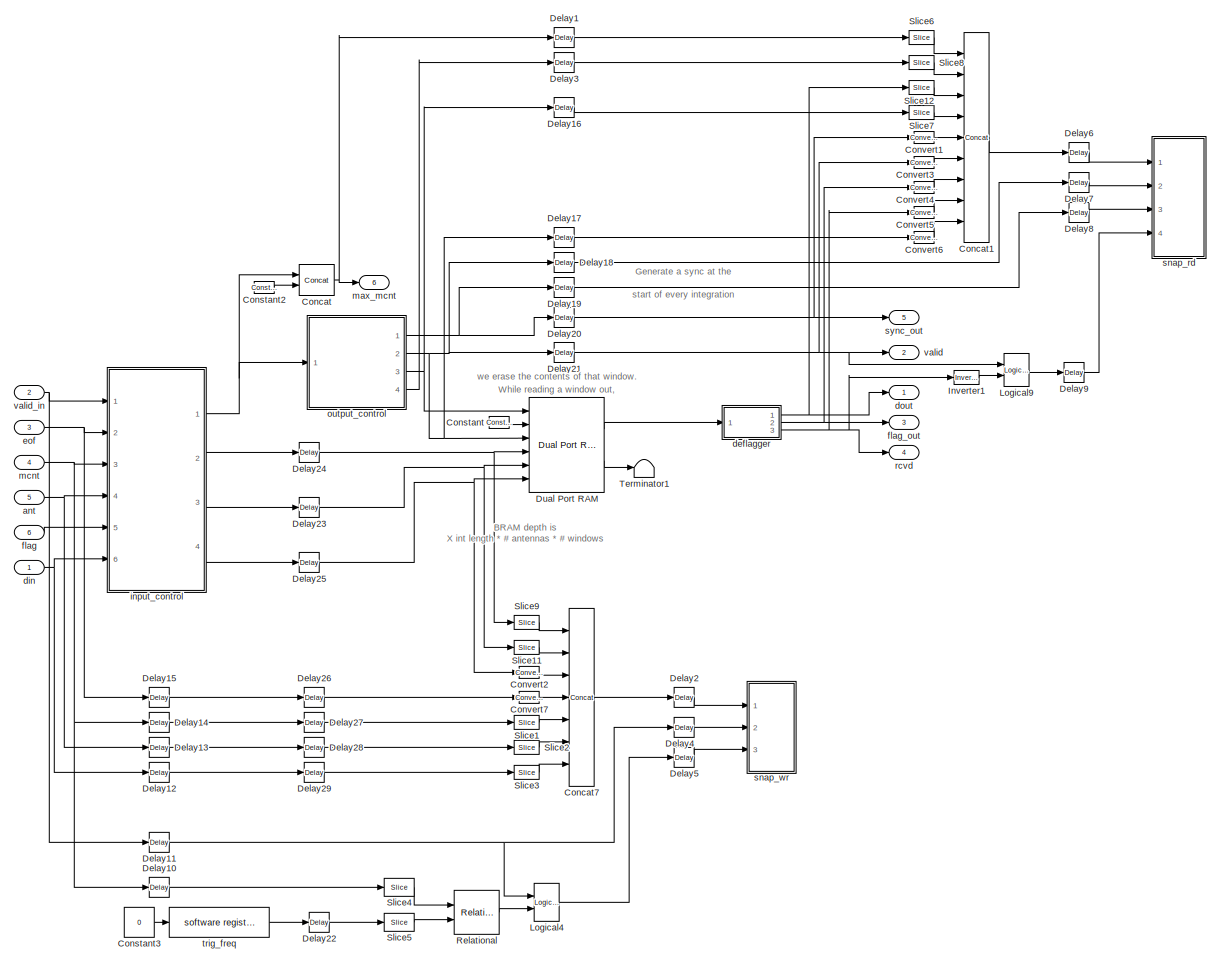
[diagram: pkt_reord0 - part 1/1, most of the canvas]
BLOCK [SubSystem] pkt_reord0
  AttributesFormatString = Sync period: 2^18\nPayload Len: 32
  MaskCallbackString = ||||
  MaskEnableString = on,on,on,on,on
  MaskIconFrame = on
  MaskIconOpaque = on
  MaskIconRotate = none
  MaskIconUnits = autoscale
  MaskStyleString = edit,edit,edit,edit,edit
  MaskTabNameString = ,,,,
  MaskToolTipString = on,on,on,on,on
  MaskTunableValueString = on,on,on,on,on
  MaskValueString = 3|3|11|7|3
  MaskVarAliasString = ,,,,
  MaskVariables = ant_bits=@1;xeng_bits=@2;chan_bits=@3;x_int_bits=@4;window_bits=@5;
  MaskVisibilityString = on,on,on,on,on
  MinAlgLoopOccurrences = off
  Ports = [6, 6]
  RTWSystemCode = Auto
  TreatAsAtomicUnit = off
BLOCK [Reference] pkt_reord0/Concat  REF=xbsIndex_r3/Concat
  Ports = [2, 1]
  SourceBlock = xbsIndex_r3/Concat
  SourceType = Xilinx Bus Concatenator
  dbl_ovrd = off
  explicit_period = off
  num_inputs = 2
  period = 1
BLOCK [Reference] pkt_reord0/Concat1  REF=xbsIndex_r3/Concat
  Ports = [9, 1]
  SourceBlock = xbsIndex_r3/Concat
  SourceType = Xilinx Bus Concatenator
  dbl_ovrd = off
  explicit_period = off
  num_inputs = 9
  period = 1
BLOCK [Reference] pkt_reord0/Concat7  REF=xbsIndex_r3/Concat
  Ports = [7, 1]
  SourceBlock = xbsIndex_r3/Concat
  SourceType = Xilinx Bus Concatenator
  dbl_ovrd = off
  explicit_period = off
  num_inputs = 7
  period = 1
BLOCK [Reference] pkt_reord0/Constant  REF=xbsIndex_r3/Constant
  Ports = [0, 1]
  SourceBlock = xbsIndex_r3/Constant
  SourceType = Xilinx Constant Block
  arith_type = Unsigned
  bin_pt = 0
  carry = CIN
  const = 0
  dbl_ovrd = off
  equ = P=C
  explicit_period = on
  inp1 = P
  inp2 = PCIN>>17
  iostate = 0
  n_bits = 18
  opr = +
  opselect = C
  period = 1
BLOCK [Reference] pkt_reord0/Constant2  REF=xbsIndex_r3/Constant
  Ports = [0, 1]
  SourceBlock = xbsIndex_r3/Constant
  SourceType = Xilinx Constant Block
  arith_type = Unsigned
  bin_pt = 0
  carry = CIN
  const = 2^(xeng_bits)-1
  dbl_ovrd = off
  equ = P=C
  explicit_period = on
  inp1 = P
  inp2 = PCIN>>17
  iostate = 0
  n_bits = xeng_bits
  opr = +
  opselect = C
  period = 1
BLOCK [Constant] pkt_reord0/Constant3
  Value = 0
BLOCK [Reference] pkt_reord0/Convert1  REF=xbsIndex_r3/Convert
  Ports = [1, 1]
  SourceBlock = xbsIndex_r3/Convert
  SourceType = Xilinx Converter Block
  arith_type = Unsigned
  bin_pt = 0
  dbl_ovrd = off
  explicit_period = off
  inserted_by_tool = off
  latency = 0
  n_bits = 1
  overflow = Wrap
  period = 1
  pipeline = off
  quantization = Truncate
  show_param = off
  xl_area = [0, 0, 0, 0, 0, 0, 0]
  xl_use_area = off
BLOCK [Reference] pkt_reord0/Convert2  REF=xbsIndex_r3/Convert
  Ports = [1, 1]
  SourceBlock = xbsIndex_r3/Convert
  SourceType = Xilinx Converter Block
  arith_type = Unsigned
  bin_pt = 0
  dbl_ovrd = off
  explicit_period = off
  inserted_by_tool = off
  latency = 0
  n_bits = 1
  overflow = Wrap
  period = 1
  pipeline = off
  quantization = Truncate
  show_param = off
  xl_area = [0, 0, 0, 0, 0, 0, 0]
  xl_use_area = off
BLOCK [Reference] pkt_reord0/Convert3  REF=xbsIndex_r3/Convert
  Ports = [1, 1]
  SourceBlock = xbsIndex_r3/Convert
  SourceType = Xilinx Converter Block
  arith_type = Unsigned
  bin_pt = 0
  dbl_ovrd = off
  explicit_period = off
  inserted_by_tool = off
  latency = 0
  n_bits = 1
  overflow = Wrap
  period = 1
  pipeline = off
  quantization = Truncate
  show_param = off
  xl_area = [0, 0, 0, 0, 0, 0, 0]
  xl_use_area = off
BLOCK [Reference] pkt_reord0/Convert4  REF=xbsIndex_r3/Convert
  Ports = [1, 1]
  SourceBlock = xbsIndex_r3/Convert
  SourceType = Xilinx Converter Block
  arith_type = Unsigned
  bin_pt = 0
  dbl_ovrd = off
  explicit_period = off
  inserted_by_tool = off
  latency = 0
  n_bits = 1
  overflow = Wrap
  period = 1
  pipeline = off
  quantization = Truncate
  show_param = off
  xl_area = [0, 0, 0, 0, 0, 0, 0]
  xl_use_area = off
BLOCK [Reference] pkt_reord0/Convert5  REF=xbsIndex_r3/Convert
  Ports = [1, 1]
  SourceBlock = xbsIndex_r3/Convert
  SourceType = Xilinx Converter Block
  arith_type = Unsigned
  bin_pt = 0
  dbl_ovrd = off
  explicit_period = off
  inserted_by_tool = off
  latency = 0
  n_bits = 1
  overflow = Wrap
  period = 1
  pipeline = off
  quantization = Truncate
  show_param = off
  xl_area = [0, 0, 0, 0, 0, 0, 0]
  xl_use_area = off
BLOCK [Reference] pkt_reord0/Convert6  REF=xbsIndex_r3/Convert
  Ports = [1, 1]
  SourceBlock = xbsIndex_r3/Convert
  SourceType = Xilinx Converter Block
  arith_type = Unsigned
  bin_pt = 0
  dbl_ovrd = off
  explicit_period = off
  inserted_by_tool = off
  latency = 0
  n_bits = 1
  overflow = Wrap
  period = 1
  pipeline = off
  quantization = Truncate
  show_param = off
  xl_area = [0, 0, 0, 0, 0, 0, 0]
  xl_use_area = off
BLOCK [Reference] pkt_reord0/Convert7  REF=xbsIndex_r3/Convert
  Ports = [1, 1]
  SourceBlock = xbsIndex_r3/Convert
  SourceType = Xilinx Converter Block
  arith_type = Unsigned
  bin_pt = 0
  dbl_ovrd = off
  explicit_period = off
  inserted_by_tool = off
  latency = 0
  n_bits = 1
  overflow = Wrap
  period = 1
  pipeline = off
  quantization = Truncate
  show_param = off
  xl_area = [0, 0, 0, 0, 0, 0, 0]
  xl_use_area = off
BLOCK [Reference] pkt_reord0/Delay1  REF=xbsIndex_r3/Delay
  Ports = [1, 1]
  SourceBlock = xbsIndex_r3/Delay
  SourceType = Xilinx Delay Block
  accept_only_valid = off
  dbl_ovrd = off
  en = off
  explicit_period = on
  init_zero = on
  latency = 3
  period = 1
  reg_retiming = on
  show_param = off
  xl_area = [0, 0, 0, 0, 0, 0, 0]
  xl_use_area = off
BLOCK [Reference] pkt_reord0/Delay10  REF=xbsIndex_r3/Delay
  Ports = [1, 1]
  SourceBlock = xbsIndex_r3/Delay
  SourceType = Xilinx Delay Block
  accept_only_valid = off
  dbl_ovrd = off
  en = off
  explicit_period = on
  init_zero = on
  latency = 3
  period = 1
  reg_retiming = on
  show_param = off
  xl_area = [0, 0, 0, 0, 0, 0, 0]
  xl_use_area = off
BLOCK [Reference] pkt_reord0/Delay11  REF=xbsIndex_r3/Delay
  Ports = [1, 1]
  SourceBlock = xbsIndex_r3/Delay
  SourceType = Xilinx Delay Block
  accept_only_valid = off
  dbl_ovrd = off
  en = off
  explicit_period = on
  init_zero = on
  latency = 4
  period = 1
  reg_retiming = on
  show_param = off
  xl_area = [0, 0, 0, 0, 0, 0, 0]
  xl_use_area = off
BLOCK [Reference] pkt_reord0/Delay12  REF=xbsIndex_r3/Delay
  Ports = [1, 1]
  SourceBlock = xbsIndex_r3/Delay
  SourceType = Xilinx Delay Block
  accept_only_valid = off
  dbl_ovrd = off
  en = off
  explicit_period = on
  init_zero = on
  latency = 4
  period = 1
  reg_retiming = on
  show_param = off
  xl_area = [0, 0, 0, 0, 0, 0, 0]
  xl_use_area = off
BLOCK [Reference] pkt_reord0/Delay13  REF=xbsIndex_r3/Delay
  Ports = [1, 1]
  SourceBlock = xbsIndex_r3/Delay
  SourceType = Xilinx Delay Block
  accept_only_valid = off
  dbl_ovrd = off
  en = off
  explicit_period = on
  init_zero = on
  latency = 4
  period = 1
  reg_retiming = on
  show_param = off
  xl_area = [0, 0, 0, 0, 0, 0, 0]
  xl_use_area = off
BLOCK [Reference] pkt_reord0/Delay14  REF=xbsIndex_r3/Delay
  Ports = [1, 1]
  SourceBlock = xbsIndex_r3/Delay
  SourceType = Xilinx Delay Block
  accept_only_valid = off
  dbl_ovrd = off
  en = off
  explicit_period = on
  init_zero = on
  latency = 4
  period = 1
  reg_retiming = on
  show_param = off
  xl_area = [0, 0, 0, 0, 0, 0, 0]
  xl_use_area = off
BLOCK [Reference] pkt_reord0/Delay15  REF=xbsIndex_r3/Delay
  Ports = [1, 1]
  SourceBlock = xbsIndex_r3/Delay
  SourceType = Xilinx Delay Block
  accept_only_valid = off
  dbl_ovrd = off
  en = off
  explicit_period = on
  init_zero = on
  latency = 4
  period = 1
  reg_retiming = on
  show_param = off
  xl_area = [0, 0, 0, 0, 0, 0, 0]
  xl_use_area = off
BLOCK [Reference] pkt_reord0/Delay16  REF=xbsIndex_r3/Delay
  Ports = [1, 1]
  SourceBlock = xbsIndex_r3/Delay
  SourceType = Xilinx Delay Block
  accept_only_valid = off
  dbl_ovrd = off
  en = off
  explicit_period = on
  init_zero = on
  latency = 3
  period = 1
  reg_retiming = on
  show_param = off
  xl_area = [0, 0, 0, 0, 0, 0, 0]
  xl_use_area = off
BLOCK [Reference] pkt_reord0/Delay17  REF=xbsIndex_r3/Delay
  Ports = [1, 1]
  SourceBlock = xbsIndex_r3/Delay
  SourceType = Xilinx Delay Block
  accept_only_valid = off
  dbl_ovrd = off
  en = off
  explicit_period = on
  init_zero = on
  latency = 3
  period = 1
  reg_retiming = on
  show_param = off
  xl_area = [0, 0, 0, 0, 0, 0, 0]
  xl_use_area = off
BLOCK [Reference] pkt_reord0/Delay18  REF=xbsIndex_r3/Delay
  Ports = [1, 1]
  SourceBlock = xbsIndex_r3/Delay
  SourceType = Xilinx Delay Block
  accept_only_valid = off
  dbl_ovrd = off
  en = off
  explicit_period = on
  init_zero = on
  latency = 3
  period = 1
  reg_retiming = on
  show_param = off
  xl_area = [0, 0, 0, 0, 0, 0, 0]
  xl_use_area = off
BLOCK [Reference] pkt_reord0/Delay19  REF=xbsIndex_r3/Delay
  Ports = [1, 1]
  SourceBlock = xbsIndex_r3/Delay
  SourceType = Xilinx Delay Block
  accept_only_valid = off
  dbl_ovrd = off
  en = off
  explicit_period = on
  init_zero = on
  latency = 3
  period = 1
  reg_retiming = on
  show_param = off
  xl_area = [0, 0, 0, 0, 0, 0, 0]
  xl_use_area = off
BLOCK [Reference] pkt_reord0/Delay2  REF=xbsIndex_r3/Delay
  Ports = [1, 1]
  SourceBlock = xbsIndex_r3/Delay
  SourceType = Xilinx Delay Block
  accept_only_valid = off
  dbl_ovrd = off
  en = off
  explicit_period = on
  init_zero = on
  latency = 2
  period = 1
  reg_retiming = on
  show_param = off
  xl_area = [0, 0, 0, 0, 0, 0, 0]
  xl_use_area = off
BLOCK [Reference] pkt_reord0/Delay20  REF=xbsIndex_r3/Delay
  Ports = [1, 1]
  SourceBlock = xbsIndex_r3/Delay
  SourceType = Xilinx Delay Block
  accept_only_valid = off
  dbl_ovrd = off
  en = off
  explicit_period = on
  init_zero = on
  latency = 3
  period = 1
  reg_retiming = on
  show_param = off
  xl_area = [0, 0, 0, 0, 0, 0, 0]
  xl_use_area = off
BLOCK [Reference] pkt_reord0/Delay21  REF=xbsIndex_r3/Delay
  Ports = [1, 1]
  SourceBlock = xbsIndex_r3/Delay
  SourceType = Xilinx Delay Block
  accept_only_valid = off
  dbl_ovrd = off
  en = off
  explicit_period = on
  init_zero = on
  latency = 3
  period = 1
  reg_retiming = on
  show_param = off
  xl_area = [0, 0, 0, 0, 0, 0, 0]
  xl_use_area = off
BLOCK [Reference] pkt_reord0/Delay22  REF=xbsIndex_r3/Delay
  Ports = [1, 1]
  SourceBlock = xbsIndex_r3/Delay
  SourceType = Xilinx Delay Block
  accept_only_valid = off
  dbl_ovrd = off
  en = off
  explicit_period = on
  init_zero = on
  latency = 3
  period = 1
  reg_retiming = on
  show_param = off
  xl_area = [0, 0, 0, 0, 0, 0, 0]
  xl_use_area = off
BLOCK [Reference] pkt_reord0/Delay23  REF=xbsIndex_r3/Delay
  Ports = [1, 1]
  SourceBlock = xbsIndex_r3/Delay
  SourceType = Xilinx Delay Block
  accept_only_valid = off
  dbl_ovrd = off
  en = off
  explicit_period = on
  init_zero = on
  latency = 2
  period = 1
  reg_retiming = on
  show_param = off
  xl_area = [0, 0, 0, 0, 0, 0, 0]
  xl_use_area = off
BLOCK [Reference] pkt_reord0/Delay24  REF=xbsIndex_r3/Delay
  Ports = [1, 1]
  SourceBlock = xbsIndex_r3/Delay
  SourceType = Xilinx Delay Block
  accept_only_valid = off
  dbl_ovrd = off
  en = off
  explicit_period = on
  init_zero = on
  latency = 2
  period = 1
  reg_retiming = on
  show_param = off
  xl_area = [0, 0, 0, 0, 0, 0, 0]
  xl_use_area = off
BLOCK [Reference] pkt_reord0/Delay25  REF=xbsIndex_r3/Delay
  Ports = [1, 1]
  SourceBlock = xbsIndex_r3/Delay
  SourceType = Xilinx Delay Block
  accept_only_valid = off
  dbl_ovrd = off
  en = off
  explicit_period = on
  init_zero = on
  latency = 2
  period = 1
  reg_retiming = on
  show_param = off
  xl_area = [0, 0, 0, 0, 0, 0, 0]
  xl_use_area = off
BLOCK [Reference] pkt_reord0/Delay26  REF=xbsIndex_r3/Delay
  Ports = [1, 1]
  SourceBlock = xbsIndex_r3/Delay
  SourceType = Xilinx Delay Block
  accept_only_valid = off
  dbl_ovrd = off
  en = off
  explicit_period = on
  init_zero = on
  latency = 2
  period = 1
  reg_retiming = on
  show_param = off
  xl_area = [0, 0, 0, 0, 0, 0, 0]
  xl_use_area = off
BLOCK [Reference] pkt_reord0/Delay27  REF=xbsIndex_r3/Delay
  Ports = [1, 1]
  SourceBlock = xbsIndex_r3/Delay
  SourceType = Xilinx Delay Block
  accept_only_valid = off
  dbl_ovrd = off
  en = off
  explicit_period = on
  init_zero = on
  latency = 2
  period = 1
  reg_retiming = on
  show_param = off
  xl_area = [0, 0, 0, 0, 0, 0, 0]
  xl_use_area = off
BLOCK [Reference] pkt_reord0/Delay28  REF=xbsIndex_r3/Delay
  Ports = [1, 1]
  SourceBlock = xbsIndex_r3/Delay
  SourceType = Xilinx Delay Block
  accept_only_valid = off
  dbl_ovrd = off
  en = off
  explicit_period = on
  init_zero = on
  latency = 2
  period = 1
  reg_retiming = on
  show_param = off
  xl_area = [0, 0, 0, 0, 0, 0, 0]
  xl_use_area = off
BLOCK [Reference] pkt_reord0/Delay29  REF=xbsIndex_r3/Delay
  Ports = [1, 1]
  SourceBlock = xbsIndex_r3/Delay
  SourceType = Xilinx Delay Block
  accept_only_valid = off
  dbl_ovrd = off
  en = off
  explicit_period = on
  init_zero = on
  latency = 2
  period = 1
  reg_retiming = on
  show_param = off
  xl_area = [0, 0, 0, 0, 0, 0, 0]
  xl_use_area = off
BLOCK [Reference] pkt_reord0/Delay3  REF=xbsIndex_r3/Delay
  Ports = [1, 1]
  SourceBlock = xbsIndex_r3/Delay
  SourceType = Xilinx Delay Block
  accept_only_valid = off
  dbl_ovrd = off
  en = off
  explicit_period = on
  init_zero = on
  latency = 3
  period = 1
  reg_retiming = on
  show_param = off
  xl_area = [0, 0, 0, 0, 0, 0, 0]
  xl_use_area = off
BLOCK [Reference] pkt_reord0/Delay4  REF=xbsIndex_r3/Delay
  Ports = [1, 1]
  SourceBlock = xbsIndex_r3/Delay
  SourceType = Xilinx Delay Block
  accept_only_valid = off
  dbl_ovrd = off
  en = off
  explicit_period = on
  init_zero = on
  latency = 2
  period = 1
  reg_retiming = on
  show_param = off
  xl_area = [0, 0, 0, 0, 0, 0, 0]
  xl_use_area = off
BLOCK [Reference] pkt_reord0/Delay5  REF=xbsIndex_r3/Delay
  Ports = [1, 1]
  SourceBlock = xbsIndex_r3/Delay
  SourceType = Xilinx Delay Block
  accept_only_valid = off
  dbl_ovrd = off
  en = off
  explicit_period = on
  init_zero = on
  latency = 2
  period = 1
  reg_retiming = on
  show_param = off
  xl_area = [0, 0, 0, 0, 0, 0, 0]
  xl_use_area = off
BLOCK [Reference] pkt_reord0/Delay6  REF=xbsIndex_r3/Delay
  Ports = [1, 1]
  SourceBlock = xbsIndex_r3/Delay
  SourceType = Xilinx Delay Block
  accept_only_valid = off
  dbl_ovrd = off
  en = off
  explicit_period = on
  init_zero = on
  latency = 2
  period = 1
  reg_retiming = on
  show_param = off
  xl_area = [0, 0, 0, 0, 0, 0, 0]
  xl_use_area = off
BLOCK [Reference] pkt_reord0/Delay7  REF=xbsIndex_r3/Delay
  Ports = [1, 1]
  SourceBlock = xbsIndex_r3/Delay
  SourceType = Xilinx Delay Block
  accept_only_valid = off
  dbl_ovrd = off
  en = off
  explicit_period = on
  init_zero = on
  latency = 2
  period = 1
  reg_retiming = on
  show_param = off
  xl_area = [0, 0, 0, 0, 0, 0, 0]
  xl_use_area = off
BLOCK [Reference] pkt_reord0/Delay8  REF=xbsIndex_r3/Delay
  Ports = [1, 1]
  SourceBlock = xbsIndex_r3/Delay
  SourceType = Xilinx Delay Block
  accept_only_valid = off
  dbl_ovrd = off
  en = off
  explicit_period = on
  init_zero = on
  latency = 2
  period = 1
  reg_retiming = on
  show_param = off
  xl_area = [0, 0, 0, 0, 0, 0, 0]
  xl_use_area = off
BLOCK [Reference] pkt_reord0/Delay9  REF=xbsIndex_r3/Delay
  Ports = [1, 1]
  SourceBlock = xbsIndex_r3/Delay
  SourceType = Xilinx Delay Block
  accept_only_valid = off
  dbl_ovrd = off
  en = off
  explicit_period = on
  init_zero = on
  latency = 2
  period = 1
  reg_retiming = on
  show_param = off
  xl_area = [0, 0, 0, 0, 0, 0, 0]
  xl_use_area = off
BLOCK [Reference] pkt_reord0/Dual Port RAM  REF=xbsIndex_r3/Dual Port RAM
  Ports = [6, 2]
  SourceBlock = xbsIndex_r3/Dual Port RAM
  SourceType = Xilinx Dual Port Random Access Memory
  dbl_ovrd = off
  depth = 2^x_int_bits * 2^ant_bits * 2^window_bits
  distributed_mem = off
  explicit_period = on
  gen_core = off
  initVector = 1
  init_a = 0
  init_b = 0
  init_zero = on
  latency = 3
  mem_collision = off
  period = 1
  rst_a = off
  rst_b = off
  show_param = off
  use_rpm = off
  write_mode_A = Read Before Write
  write_mode_B = Read Before Write
  xl_area = [0, 0, 0, 0, 0, 0, 0]
  xl_use_area = off
BLOCK [Reference] pkt_reord0/Inverter1  REF=xbsIndex_r3/Inverter
  Ports = [1, 1]
  SourceBlock = xbsIndex_r3/Inverter
  SourceType = Xilinx Inverter
  dbl_ovrd = off
  en = off
  explicit_period = off
  latency = 0
  period = 1
  show_param = off
  xl_area = [0, 0, 0, 0, 0, 0, 0]
  xl_use_area = off
BLOCK [Reference] pkt_reord0/Logical4  REF=xbsIndex_r3/Logical
  Ports = [2, 1]
  SourceBlock = xbsIndex_r3/Logical
  SourceType = Xilinx Logical Block
  align_bp = on
  arith_type = Unsigned
  bin_pt = 2
  dbl_ovrd = off
  en = off
  explicit_period = on
  inputs = 2
  latency = 0
  logical_function = AND
  n_bits = 8
  period = 1
  precision = Full
  show_param = off
  xl_area = [0, 0, 0, 0, 0, 0, 0]
  xl_use_area = off
BLOCK [Reference] pkt_reord0/Logical9  REF=xbsIndex_r3/Logical
  Ports = [2, 1]
  SourceBlock = xbsIndex_r3/Logical
  SourceType = Xilinx Logical Block
  align_bp = on
  arith_type = Unsigned
  bin_pt = 2
  dbl_ovrd = off
  en = off
  explicit_period = off
  inputs = 2
  latency = 0
  logical_function = AND
  n_bits = 8
  period = 1
  precision = Full
  show_param = off
  xl_area = [0, 0, 0, 0, 0, 0, 0]
  xl_use_area = off
BLOCK [Reference] pkt_reord0/Relational  REF=xbsIndex_r3/Relational
  Ports = [2, 1]
  SourceBlock = xbsIndex_r3/Relational
  SourceType = Xilinx Relational Block
  dbl_ovrd = off
  en = off
  explicit_period = off
  latency = 0
  mode = a=b
  period = 1
  show_param = off
  xl_area = [0, 0, 0, 0, 0, 0, 0]
  xl_use_area = off
BLOCK [Reference] pkt_reord0/Slice1  REF=xbsIndex_r3/Slice
  Ports = [1, 1]
  SourceBlock = xbsIndex_r3/Slice
  SourceType = Xilinx Slice Block
  base0 = LSB of Input
  base1 = MSB of Input
  bit0 = 0
  bit1 = 0
  boolean_output = off
  dbl_ovrd = off
  explicit_period = off
  mode = Lower Bit Location + Width
  nbits = 13
  period = 1
BLOCK [Reference] pkt_reord0/Slice11  REF=xbsIndex_r3/Slice
  Ports = [1, 1]
  SourceBlock = xbsIndex_r3/Slice
  SourceType = Xilinx Slice Block
  base0 = LSB of Input
  base1 = MSB of Input
  bit0 = 0
  bit1 = 0
  boolean_output = off
  dbl_ovrd = off
  explicit_period = off
  mode = Lower Bit Location + Width
  nbits = 18
  period = 1
BLOCK [Reference] pkt_reord0/Slice12  REF=xbsIndex_r3/Slice
  Ports = [1, 1]
  SourceBlock = xbsIndex_r3/Slice
  SourceType = Xilinx Slice Block
  base0 = LSB of Input
  base1 = MSB of Input
  bit0 = 0
  bit1 = 0
  boolean_output = off
  dbl_ovrd = off
  explicit_period = off
  mode = Lower Bit Location + Width
  nbits = 16
  period = 1
BLOCK [Reference] pkt_reord0/Slice2  REF=xbsIndex_r3/Slice
  Ports = [1, 1]
  SourceBlock = xbsIndex_r3/Slice
  SourceType = Xilinx Slice Block
  base0 = LSB of Input
  base1 = MSB of Input
  bit0 = 0
  bit1 = 0
  boolean_output = off
  dbl_ovrd = off
  explicit_period = off
  mode = Lower Bit Location + Width
  nbits = 4
  period = 1
BLOCK [Reference] pkt_reord0/Slice3  REF=xbsIndex_r3/Slice
  Ports = [1, 1]
  SourceBlock = xbsIndex_r3/Slice
  SourceType = Xilinx Slice Block
  base0 = LSB of Input
  base1 = MSB of Input
  bit0 = 0
  bit1 = 0
  boolean_output = off
  dbl_ovrd = off
  explicit_period = off
  mode = Lower Bit Location + Width
  nbits = 16
  period = 1
BLOCK [Reference] pkt_reord0/Slice4  REF=xbsIndex_r3/Slice
  Ports = [1, 1]
  SourceBlock = xbsIndex_r3/Slice
  SourceType = Xilinx Slice Block
  base0 = LSB of Input
  base1 = LSB of Input
  bit0 = xeng_bits
  bit1 = chan_bits
  boolean_output = off
  dbl_ovrd = off
  explicit_period = off
  mode = Two Bit Locations
  nbits = 11
  period = 1
BLOCK [Reference] pkt_reord0/Slice5  REF=xbsIndex_r3/Slice
  Ports = [1, 1]
  SourceBlock = xbsIndex_r3/Slice
  SourceType = Xilinx Slice Block
  base0 = LSB of Input
  base1 = LSB of Input
  bit0 = xeng_bits
  bit1 = chan_bits
  boolean_output = off
  dbl_ovrd = off
  explicit_period = off
  mode = Two Bit Locations
  nbits = 11
  period = 1
BLOCK [Reference] pkt_reord0/Slice6  REF=xbsIndex_r3/Slice
  Ports = [1, 1]
  SourceBlock = xbsIndex_r3/Slice
  SourceType = Xilinx Slice Block
  base0 = LSB of Input
  base1 = MSB of Input
  bit0 = 0
  bit1 = 0
  boolean_output = off
  dbl_ovrd = off
  explicit_period = off
  mode = Lower Bit Location + Width
  nbits = 27
  period = 1
BLOCK [Reference] pkt_reord0/Slice7  REF=xbsIndex_r3/Slice
  Ports = [1, 1]
  SourceBlock = xbsIndex_r3/Slice
  SourceType = Xilinx Slice Block
  base0 = LSB of Input
  base1 = MSB of Input
  bit0 = 0
  bit1 = 0
  boolean_output = off
  dbl_ovrd = off
  explicit_period = off
  mode = Lower Bit Location + Width
  nbits = 13
  period = 1
BLOCK [Reference] pkt_reord0/Slice8  REF=xbsIndex_r3/Slice
  Ports = [1, 1]
  SourceBlock = xbsIndex_r3/Slice
  SourceType = Xilinx Slice Block
  base0 = LSB of Input
  base1 = MSB of Input
  bit0 = 0
  bit1 = 0
  boolean_output = off
  dbl_ovrd = off
  explicit_period = off
  mode = Lower Bit Location + Width
  nbits = 3
  period = 1
BLOCK [Reference] pkt_reord0/Slice9  REF=xbsIndex_r3/Slice
  Ports = [1, 1]
  SourceBlock = xbsIndex_r3/Slice
  SourceType = Xilinx Slice Block
  base0 = LSB of Input
  base1 = MSB of Input
  bit0 = 0
  bit1 = 0
  boolean_output = off
  dbl_ovrd = off
  explicit_period = off
  mode = Lower Bit Location + Width
  nbits = 11
  period = 1
BLOCK [Terminator] pkt_reord0/Terminator1
BLOCK [Inport] pkt_reord0/ant
  IconDisplay = Port number
  LatchInput = off
  Port = 5
BLOCK [SubSystem] pkt_reord0/deflagger
  MinAlgLoopOccurrences = off
  Ports = [1, 3]
  RTWSystemCode = Auto
  TreatAsAtomicUnit = off
BLOCK [Reference] pkt_reord0/deflagger/Slice1  REF=xbsIndex_r3/Slice
  Ports = [1, 1]
  SourceBlock = xbsIndex_r3/Slice
  SourceType = Xilinx Slice Block
  base0 = LSB of Input
  base1 = MSB of Input
  bit0 = 0
  bit1 = 0
  boolean_output = off
  dbl_ovrd = off
  explicit_period = off
  mode = Lower Bit Location + Width
  nbits = 16
  period = 1
BLOCK [Reference] pkt_reord0/deflagger/Slice2  REF=xbsIndex_r3/Slice
  Ports = [1, 1]
  SourceBlock = xbsIndex_r3/Slice
  SourceType = Xilinx Slice Block
  base0 = LSB of Input
  base1 = MSB of Input
  bit0 = 0
  bit1 = -1
  boolean_output = on
  dbl_ovrd = off
  explicit_period = off
  mode = Upper Bit Location + Width
  nbits = 1
  period = 1
BLOCK [Reference] pkt_reord0/deflagger/Slice3  REF=xbsIndex_r3/Slice
  Ports = [1, 1]
  SourceBlock = xbsIndex_r3/Slice
  SourceType = Xilinx Slice Block
  base0 = LSB of Input
  base1 = MSB of Input
  bit0 = 0
  bit1 = 0
  boolean_output = on
  dbl_ovrd = off
  explicit_period = off
  mode = Upper Bit Location + Width
  nbits = 1
  period = 1
BLOCK [Inport] pkt_reord0/deflagger/din
  IconDisplay = Port number
  LatchInput = off
  Port = 1
BLOCK [Outport] pkt_reord0/deflagger/dout
  BusOutputAsStruct = off
  IconDisplay = Port number
BLOCK [Outport] pkt_reord0/deflagger/flag
  BusOutputAsStruct = off
  IconDisplay = Port number
  Port = 2
BLOCK [Outport] pkt_reord0/deflagger/rcvd
  BusOutputAsStruct = off
  IconDisplay = Port number
  Port = 3
BLOCK [Inport] pkt_reord0/din
  IconDisplay = Port number
  LatchInput = off
  Port = 1
BLOCK [Outport] pkt_reord0/dout
  BusOutputAsStruct = off
  IconDisplay = Port number
BLOCK [Inport] pkt_reord0/eof
  IconDisplay = Port number
  LatchInput = off
  Port = 3
BLOCK [Inport] pkt_reord0/flag
  IconDisplay = Port number
  LatchInput = off
  Port = 6
BLOCK [Outport] pkt_reord0/flag_out
  BusOutputAsStruct = off
  IconDisplay = Port number
  Port = 3
BLOCK [SubSystem] pkt_reord0/input_control
  MinAlgLoopOccurrences = off
  Ports = [6, 4]
  RTWSystemCode = Auto
  TreatAsAtomicUnit = off
BLOCK [Reference] pkt_reord0/input_control/AddSub  REF=xbsIndex_r3/AddSub
  Ports = [2, 1]
  SourceBlock = xbsIndex_r3/AddSub
  SourceType = Xilinx Adder/Subtractor
  arith_type = Unsigned
  bin_pt = 0
  dbl_ovrd = off
  en = off
  explicit_period = off
  gen_core = off
  latency = 2
  mode = Addition
  n_bits = 48 - ant_bits
  overflow = Wrap
  period = 1
  pipeline = off
  precision = User Defined
  quantization = Truncate
  show_param = off
  use_carryin = off
  use_carryout = off
  use_core = on
  use_rpm = on
  xl_area = [0, 0, 0, 0, 0, 0, 0]
  xl_use_area = off
BLOCK [Reference] pkt_reord0/input_control/Concat  REF=xbsIndex_r3/Concat
  Ports = [3, 1]
  SourceBlock = xbsIndex_r3/Concat
  SourceType = Xilinx Bus Concatenator
  dbl_ovrd = off
  explicit_period = off
  num_inputs = 3
  period = 1
BLOCK [Reference] pkt_reord0/input_control/Constant  REF=xbsIndex_r3/Constant
  Ports = [0, 1]
  SourceBlock = xbsIndex_r3/Constant
  SourceType = Xilinx Constant Block
  arith_type = Unsigned
  bin_pt = 0
  carry = CIN
  const = 2^(window_bits - 1)
  dbl_ovrd = off
  equ = P=C
  explicit_period = on
  inp1 = P
  inp2 = PCIN>>17
  iostate = 0
  n_bits = 48 - ant_bits
  opr = +
  opselect = C
  period = 1
BLOCK [Reference] pkt_reord0/input_control/Delay1  REF=xbsIndex_r3/Delay
  Ports = [1, 1]
  SourceBlock = xbsIndex_r3/Delay
  SourceType = Xilinx Delay Block
  accept_only_valid = off
  dbl_ovrd = off
  en = off
  explicit_period = off
  init_zero = on
  latency = 2
  period = 1
  reg_retiming = on
  show_param = off
  xl_area = [0, 0, 0, 0, 0, 0, 0]
  xl_use_area = off
BLOCK [Reference] pkt_reord0/input_control/Delay10  REF=xbsIndex_r3/Delay
  Ports = [1, 1]
  SourceBlock = xbsIndex_r3/Delay
  SourceType = Xilinx Delay Block
  accept_only_valid = off
  dbl_ovrd = off
  en = off
  explicit_period = off
  init_zero = on
  latency = 1
  period = 1
  reg_retiming = on
  show_param = off
  xl_area = [0, 0, 0, 0, 0, 0, 0]
  xl_use_area = off
BLOCK [Reference] pkt_reord0/input_control/Delay11  REF=xbsIndex_r3/Delay
  Ports = [1, 1]
  SourceBlock = xbsIndex_r3/Delay
  SourceType = Xilinx Delay Block
  accept_only_valid = off
  dbl_ovrd = off
  en = off
  explicit_period = off
  init_zero = on
  latency = 1
  period = 1
  reg_retiming = on
  show_param = off
  xl_area = [0, 0, 0, 0, 0, 0, 0]
  xl_use_area = off
BLOCK [Reference] pkt_reord0/input_control/Delay12  REF=xbsIndex_r3/Delay
  Ports = [1, 1]
  SourceBlock = xbsIndex_r3/Delay
  SourceType = Xilinx Delay Block
  accept_only_valid = off
  dbl_ovrd = off
  en = off
  explicit_period = off
  init_zero = on
  latency = 1
  period = 1
  reg_retiming = on
  show_param = off
  xl_area = [0, 0, 0, 0, 0, 0, 0]
  xl_use_area = off
BLOCK [Reference] pkt_reord0/input_control/Delay13  REF=xbsIndex_r3/Delay
  Ports = [1, 1]
  SourceBlock = xbsIndex_r3/Delay
  SourceType = Xilinx Delay Block
  accept_only_valid = off
  dbl_ovrd = off
  en = off
  explicit_period = off
  init_zero = on
  latency = 1
  period = 1
  reg_retiming = on
  show_param = off
  xl_area = [0, 0, 0, 0, 0, 0, 0]
  xl_use_area = off
BLOCK [Reference] pkt_reord0/input_control/Delay14  REF=xbsIndex_r3/Delay
  Ports = [1, 1]
  SourceBlock = xbsIndex_r3/Delay
  SourceType = Xilinx Delay Block
  accept_only_valid = off
  dbl_ovrd = off
  en = off
  explicit_period = off
  init_zero = on
  latency = 2
  period = 1
  reg_retiming = on
  show_param = off
  xl_area = [0, 0, 0, 0, 0, 0, 0]
  xl_use_area = off
BLOCK [Reference] pkt_reord0/input_control/Delay15  REF=xbsIndex_r3/Delay
  Ports = [1, 1]
  SourceBlock = xbsIndex_r3/Delay
  SourceType = Xilinx Delay Block
  accept_only_valid = off
  dbl_ovrd = off
  en = off
  explicit_period = off
  init_zero = on
  latency = 2
  period = 1
  reg_retiming = on
  show_param = off
  xl_area = [0, 0, 0, 0, 0, 0, 0]
  xl_use_area = off
BLOCK [Reference] pkt_reord0/input_control/Delay16  REF=xbsIndex_r3/Delay
  Ports = [1, 1]
  SourceBlock = xbsIndex_r3/Delay
  SourceType = Xilinx Delay Block
  accept_only_valid = off
  dbl_ovrd = off
  en = off
  explicit_period = off
  init_zero = on
  latency = 2
  period = 1
  reg_retiming = on
  show_param = off
  xl_area = [0, 0, 0, 0, 0, 0, 0]
  xl_use_area = off
BLOCK [Reference] pkt_reord0/input_control/Delay17  REF=xbsIndex_r3/Delay
  Ports = [1, 1]
  SourceBlock = xbsIndex_r3/Delay
  SourceType = Xilinx Delay Block
  accept_only_valid = off
  dbl_ovrd = off
  en = off
  explicit_period = off
  init_zero = on
  latency = 1
  period = 1
  reg_retiming = on
  show_param = off
  xl_area = [0, 0, 0, 0, 0, 0, 0]
  xl_use_area = off
BLOCK [Reference] pkt_reord0/input_control/Delay18  REF=xbsIndex_r3/Delay
  Ports = [1, 1]
  SourceBlock = xbsIndex_r3/Delay
  SourceType = Xilinx Delay Block
  accept_only_valid = off
  dbl_ovrd = off
  en = off
  explicit_period = off
  init_zero = on
  latency = 1
  period = 1
  reg_retiming = on
  show_param = off
  xl_area = [0, 0, 0, 0, 0, 0, 0]
  xl_use_area = off
BLOCK [Reference] pkt_reord0/input_control/Delay19  REF=xbsIndex_r3/Delay
  Ports = [1, 1]
  SourceBlock = xbsIndex_r3/Delay
  SourceType = Xilinx Delay Block
  accept_only_valid = off
  dbl_ovrd = off
  en = off
  explicit_period = off
  init_zero = on
  latency = 1
  period = 1
  reg_retiming = on
  show_param = off
  xl_area = [0, 0, 0, 0, 0, 0, 0]
  xl_use_area = off
BLOCK [Reference] pkt_reord0/input_control/Delay2  REF=xbsIndex_r3/Delay
  Ports = [1, 1]
  SourceBlock = xbsIndex_r3/Delay
  SourceType = Xilinx Delay Block
  accept_only_valid = off
  dbl_ovrd = off
  en = off
  explicit_period = off
  init_zero = on
  latency = 1
  period = 1
  reg_retiming = on
  show_param = off
  xl_area = [0, 0, 0, 0, 0, 0, 0]
  xl_use_area = off
BLOCK [Reference] pkt_reord0/input_control/Delay20  REF=xbsIndex_r3/Delay
  Ports = [1, 1]
  SourceBlock = xbsIndex_r3/Delay
  SourceType = Xilinx Delay Block
  accept_only_valid = off
  dbl_ovrd = off
  en = off
  explicit_period = off
  init_zero = on
  latency = 1
  period = 1
  reg_retiming = on
  show_param = off
  xl_area = [0, 0, 0, 0, 0, 0, 0]
  xl_use_area = off
BLOCK [Reference] pkt_reord0/input_control/Delay3  REF=xbsIndex_r3/Delay
  Ports = [1, 1]
  SourceBlock = xbsIndex_r3/Delay
  SourceType = Xilinx Delay Block
  accept_only_valid = off
  dbl_ovrd = off
  en = off
  explicit_period = off
  init_zero = on
  latency = 2
  period = 1
  reg_retiming = off
  show_param = off
  xl_area = [0, 0, 0, 0, 0, 0, 0]
  xl_use_area = off
BLOCK [Reference] pkt_reord0/input_control/Delay4  REF=xbsIndex_r3/Delay
  Ports = [1, 1]
  SourceBlock = xbsIndex_r3/Delay
  SourceType = Xilinx Delay Block
  accept_only_valid = off
  dbl_ovrd = off
  en = off
  explicit_period = off
  init_zero = on
  latency = 1
  period = 1
  reg_retiming = on
  show_param = off
  xl_area = [0, 0, 0, 0, 0, 0, 0]
  xl_use_area = off
BLOCK [Reference] pkt_reord0/input_control/Delay5  REF=xbsIndex_r3/Delay
  Ports = [1, 1]
  SourceBlock = xbsIndex_r3/Delay
  SourceType = Xilinx Delay Block
  accept_only_valid = off
  dbl_ovrd = off
  en = off
  explicit_period = off
  init_zero = on
  latency = 1
  period = 1
  reg_retiming = on
  show_param = off
  xl_area = [0, 0, 0, 0, 0, 0, 0]
  xl_use_area = off
BLOCK [Reference] pkt_reord0/input_control/Delay6  REF=xbsIndex_r3/Delay
  Ports = [1, 1]
  SourceBlock = xbsIndex_r3/Delay
  SourceType = Xilinx Delay Block
  accept_only_valid = off
  dbl_ovrd = off
  en = off
  explicit_period = off
  init_zero = on
  latency = 1
  period = 1
  reg_retiming = on
  show_param = off
  xl_area = [0, 0, 0, 0, 0, 0, 0]
  xl_use_area = off
BLOCK [Reference] pkt_reord0/input_control/Delay7  REF=xbsIndex_r3/Delay
  Ports = [1, 1]
  SourceBlock = xbsIndex_r3/Delay
  SourceType = Xilinx Delay Block
  accept_only_valid = off
  dbl_ovrd = off
  en = off
  explicit_period = off
  init_zero = on
  latency = 2
  period = 1
  reg_retiming = on
  show_param = off
  xl_area = [0, 0, 0, 0, 0, 0, 0]
  xl_use_area = off
BLOCK [Reference] pkt_reord0/input_control/Delay8  REF=xbsIndex_r3/Delay
  Ports = [1, 1]
  SourceBlock = xbsIndex_r3/Delay
  SourceType = Xilinx Delay Block
  accept_only_valid = off
  dbl_ovrd = off
  en = off
  explicit_period = off
  init_zero = on
  latency = 1
  period = 1
  reg_retiming = on
  show_param = off
  xl_area = [0, 0, 0, 0, 0, 0, 0]
  xl_use_area = off
BLOCK [Reference] pkt_reord0/input_control/Delay9  REF=xbsIndex_r3/Delay
  Ports = [1, 1]
  SourceBlock = xbsIndex_r3/Delay
  SourceType = Xilinx Delay Block
  accept_only_valid = off
  dbl_ovrd = off
  en = off
  explicit_period = off
  init_zero = on
  latency = 2
  period = 1
  reg_retiming = on
  show_param = off
  xl_area = [0, 0, 0, 0, 0, 0, 0]
  xl_use_area = off
BLOCK [Reference] pkt_reord0/input_control/Logical  REF=xbsIndex_r3/Logical
  Ports = [3, 1]
  SourceBlock = xbsIndex_r3/Logical
  SourceType = Xilinx Logical Block
  align_bp = on
  arith_type = Unsigned
  bin_pt = 2
  dbl_ovrd = off
  en = off
  explicit_period = off
  inputs = 3
  latency = 0
  logical_function = AND
  n_bits = 8
  period = 1
  precision = Full
  show_param = off
  xl_area = [0, 0, 0, 0, 0, 0, 0]
  xl_use_area = off
BLOCK [Reference] pkt_reord0/input_control/Logical1  REF=xbsIndex_r3/Logical
  Ports = [2, 1]
  SourceBlock = xbsIndex_r3/Logical
  SourceType = Xilinx Logical Block
  align_bp = on
  arith_type = Unsigned
  bin_pt = 2
  dbl_ovrd = off
  en = off
  explicit_period = off
  inputs = 2
  latency = 0
  logical_function = AND
  n_bits = 8
  period = 1
  precision = Full
  show_param = off
  xl_area = [0, 0, 0, 0, 0, 0, 0]
  xl_use_area = off
BLOCK [Reference] pkt_reord0/input_control/Relational  REF=xbsIndex_r3/Relational
  Ports = [2, 1]
  SourceBlock = xbsIndex_r3/Relational
  SourceType = Xilinx Relational Block
  dbl_ovrd = off
  en = off
  explicit_period = off
  latency = 1
  mode = a<b
  period = 1
  show_param = off
  xl_area = [0, 0, 0, 0, 0, 0, 0]
  xl_use_area = off
BLOCK [Reference] pkt_reord0/input_control/Relational2  REF=xbsIndex_r3/Relational
  Ports = [2, 1]
  SourceBlock = xbsIndex_r3/Relational
  SourceType = Xilinx Relational Block
  dbl_ovrd = off
  en = off
  explicit_period = off
  latency = 1
  mode = a>=b
  period = 1
  show_param = off
  xl_area = [0, 0, 0, 0, 0, 0, 0]
  xl_use_area = off
BLOCK [Reference] pkt_reord0/input_control/Slice  REF=xbsIndex_r3/Slice
  Ports = [1, 1]
  SourceBlock = xbsIndex_r3/Slice
  SourceType = Xilinx Slice Block
  base0 = LSB of Input
  base1 = MSB of Input
  bit0 = 0
  bit1 = 0
  boolean_output = off
  dbl_ovrd = off
  explicit_period = off
  mode = Lower Bit Location + Width
  nbits = window_bits
  period = 1
BLOCK [Reference] pkt_reord0/input_control/Slice1  REF=xbsIndex_r3/Slice
  Ports = [1, 1]
  SourceBlock = xbsIndex_r3/Slice
  SourceType = Xilinx Slice Block
  base0 = LSB of Input
  base1 = MSB of Input
  bit0 = 0
  bit1 = 0
  boolean_output = off
  dbl_ovrd = off
  explicit_period = off
  mode = Lower Bit Location + Width
  nbits = ant_bits
  period = 1
BLOCK [Reference] pkt_reord0/input_control/Slice14  REF=xbsIndex_r3/Slice
  Ports = [1, 1]
  SourceBlock = xbsIndex_r3/Slice
  SourceType = Xilinx Slice Block
  base0 = LSB of Input
  base1 = MSB of Input
  bit0 = xeng_bits
  bit1 = 0
  boolean_output = off
  dbl_ovrd = off
  explicit_period = off
  mode = Two Bit Locations
  nbits = ant_bits
  period = 1
BLOCK [Inport] pkt_reord0/input_control/ant
  IconDisplay = Port number
  LatchInput = off
  Port = 4
BLOCK [Inport] pkt_reord0/input_control/data_in
  IconDisplay = Port number
  LatchInput = off
  Port = 6
BLOCK [Inport] pkt_reord0/input_control/eof
  IconDisplay = Port number
  LatchInput = off
  Port = 2
BLOCK [Inport] pkt_reord0/input_control/flag_in
  IconDisplay = Port number
  LatchInput = off
  Port = 5
BLOCK [SubSystem] pkt_reord0/input_control/flagger
  MinAlgLoopOccurrences = off
  Ports = [2, 1]
  RTWSystemCode = Auto
  TreatAsAtomicUnit = off
BLOCK [Reference] pkt_reord0/input_control/flagger/Concat  REF=xbsIndex_r3/Concat
  Ports = [12, 1]
  SourceBlock = xbsIndex_r3/Concat
  SourceType = Xilinx Bus Concatenator
  dbl_ovrd = off
  explicit_period = off
  num_inputs = 12
  period = 1
BLOCK [Reference] pkt_reord0/input_control/flagger/Constant1  REF=xbsIndex_r3/Constant
  Ports = [0, 1]
  SourceBlock = xbsIndex_r3/Constant
  SourceType = Xilinx Constant Block
  arith_type = Unsigned
  bin_pt = 0
  carry = CIN
  const = 1
  dbl_ovrd = off
  equ = P=C
  explicit_period = on
  inp1 = P
  inp2 = PCIN>>17
  iostate = 0
  n_bits = 1
  opr = +
  opselect = C
  period = 1
BLOCK [Reference] pkt_reord0/input_control/flagger/Constant2  REF=xbsIndex_r3/Constant
  Ports = [0, 1]
  SourceBlock = xbsIndex_r3/Constant
  SourceType = Xilinx Constant Block
  arith_type = Unsigned
  bin_pt = 0
  carry = CIN
  const = 1
  dbl_ovrd = off
  equ = P=C
  explicit_period = on
  inp1 = P
  inp2 = PCIN>>17
  iostate = 0
  n_bits = 1
  opr = +
  opselect = C
  period = 1
BLOCK [Reference] pkt_reord0/input_control/flagger/Constant3  REF=xbsIndex_r3/Constant
  Ports = [0, 1]
  SourceBlock = xbsIndex_r3/Constant
  SourceType = Xilinx Constant Block
  arith_type = Unsigned
  bin_pt = 0
  carry = CIN
  const = 1
  dbl_ovrd = off
  equ = P=C
  explicit_period = on
  inp1 = P
  inp2 = PCIN>>17
  iostate = 0
  n_bits = 1
  opr = +
  opselect = C
  period = 1
BLOCK [Reference] pkt_reord0/input_control/flagger/Constant4  REF=xbsIndex_r3/Constant
  Ports = [0, 1]
  SourceBlock = xbsIndex_r3/Constant
  SourceType = Xilinx Constant Block
  arith_type = Unsigned
  bin_pt = 0
  carry = CIN
  const = 1
  dbl_ovrd = off
  equ = P=C
  explicit_period = on
  inp1 = P
  inp2 = PCIN>>17
  iostate = 0
  n_bits = 1
  opr = +
  opselect = C
  period = 1
BLOCK [Reference] pkt_reord0/input_control/flagger/Convert  REF=xbsIndex_r3/Convert
  Ports = [1, 1]
  SourceBlock = xbsIndex_r3/Convert
  SourceType = Xilinx Converter Block
  arith_type = Unsigned
  bin_pt = 0
  dbl_ovrd = off
  explicit_period = off
  inserted_by_tool = off
  latency = 0
  n_bits = 1
  overflow = Wrap
  period = 1
  pipeline = off
  quantization = Truncate
  show_param = off
  xl_area = [0, 0, 0, 0, 0, 0, 0]
  xl_use_area = off
BLOCK [Reference] pkt_reord0/input_control/flagger/Slice1  REF=xbsIndex_r3/Slice
  Ports = [1, 1]
  SourceBlock = xbsIndex_r3/Slice
  SourceType = Xilinx Slice Block
  base0 = LSB of Input
  base1 = MSB of Input
  bit0 = 0
  bit1 = 0
  boolean_output = off
  dbl_ovrd = off
  explicit_period = off
  mode = Lower Bit Location + Width
  nbits = 16
  period = 1
BLOCK [Reference] pkt_reord0/input_control/flagger/Slice2  REF=xbsIndex_r3/Slice
  Ports = [1, 1]
  SourceBlock = xbsIndex_r3/Slice
  SourceType = Xilinx Slice Block
  base0 = LSB of Input
  base1 = MSB of Input
  bit0 = 16
  bit1 = 0
  boolean_output = off
  dbl_ovrd = off
  explicit_period = off
  mode = Lower Bit Location + Width
  nbits = 16
  period = 1
BLOCK [Reference] pkt_reord0/input_control/flagger/Slice3  REF=xbsIndex_r3/Slice
  Ports = [1, 1]
  SourceBlock = xbsIndex_r3/Slice
  SourceType = Xilinx Slice Block
  base0 = LSB of Input
  base1 = MSB of Input
  bit0 = 32
  bit1 = 0
  boolean_output = off
  dbl_ovrd = off
  explicit_period = off
  mode = Lower Bit Location + Width
  nbits = 16
  period = 1
BLOCK [Reference] pkt_reord0/input_control/flagger/Slice4  REF=xbsIndex_r3/Slice
  Ports = [1, 1]
  SourceBlock = xbsIndex_r3/Slice
  SourceType = Xilinx Slice Block
  base0 = LSB of Input
  base1 = MSB of Input
  bit0 = 48
  bit1 = 0
  boolean_output = off
  dbl_ovrd = off
  explicit_period = off
  mode = Lower Bit Location + Width
  nbits = 16
  period = 1
BLOCK [Inport] pkt_reord0/input_control/flagger/din
  IconDisplay = Port number
  LatchInput = off
  Port = 2
BLOCK [Outport] pkt_reord0/input_control/flagger/dout
  BusOutputAsStruct = off
  IconDisplay = Port number
BLOCK [Inport] pkt_reord0/input_control/flagger/flag
  IconDisplay = Port number
  LatchInput = off
  Port = 1
BLOCK [Outport] pkt_reord0/input_control/maxcnt
  BusOutputAsStruct = off
  IconDisplay = Port number
BLOCK [Inport] pkt_reord0/input_control/mcnt
  IconDisplay = Port number
  LatchInput = off
  Port = 3
BLOCK [SubSystem] pkt_reord0/input_control/mcnt_thresh
  MinAlgLoopOccurrences = off
  Ports = [1, 1]
  RTWSystemCode = Auto
  TreatAsAtomicUnit = off
BLOCK [Reference] pkt_reord0/input_control/mcnt_thresh/AddSub  REF=xbsIndex_r3/AddSub
  Ports = [2, 1]
  SourceBlock = xbsIndex_r3/AddSub
  SourceType = Xilinx Adder/Subtractor
  arith_type = Unsigned
  bin_pt = 0
  dbl_ovrd = off
  en = off
  explicit_period = off
  gen_core = off
  latency = 2
  mode = Addition
  n_bits = 48 - ant_bits
  overflow = Wrap
  period = 1
  pipeline = off
  precision = User Defined
  quantization = Truncate
  show_param = off
  use_carryin = off
  use_carryout = off
  use_core = on
  use_rpm = on
  xl_area = [0, 0, 0, 0, 0, 0, 0]
  xl_use_area = off
BLOCK [Reference] pkt_reord0/input_control/mcnt_thresh/Constant  REF=xbsIndex_r3/Constant
  Ports = [0, 1]
  SourceBlock = xbsIndex_r3/Constant
  SourceType = Xilinx Constant Block
  arith_type = Unsigned
  bin_pt = 0
  carry = CIN
  const = 2^(window_bits - 2)
  dbl_ovrd = off
  equ = P=C
  explicit_period = on
  inp1 = P
  inp2 = PCIN>>17
  iostate = 0
  n_bits = 48 - xeng_bits
  opr = +
  opselect = C
  period = 1
BLOCK [Reference] pkt_reord0/input_control/mcnt_thresh/Counter  REF=xbsIndex_r3/Counter
  Ports = [1, 1]
  SourceBlock = xbsIndex_r3/Counter
  SourceType = Xilinx Counter Block
  arith_type = Unsigned
  bin_pt = 0
  cnt_by_val = 1
  cnt_to = Inf
  cnt_type = Free Running
  dbl_ovrd = off
  en = off
  explicit_period = on
  gen_core = off
  load_pin = off
  n_bits = 21
  operation = Up
  period = 1
  rst = on
  show_param = off
  start_count = 0
  use_rpm = on
  xl_area = [0, 0, 0, 0, 0, 0, 0]
  xl_use_area = off
BLOCK [Reference] pkt_reord0/input_control/mcnt_thresh/Delay  REF=xbsIndex_r3/Delay
  Ports = [1, 1]
  SourceBlock = xbsIndex_r3/Delay
  SourceType = Xilinx Delay Block
  accept_only_valid = off
  dbl_ovrd = off
  en = off
  explicit_period = off
  init_zero = on
  latency = 2
  period = 1
  reg_retiming = off
  show_param = off
  xl_area = [0, 0, 0, 0, 0, 0, 0]
  xl_use_area = off
BLOCK [Reference] pkt_reord0/input_control/mcnt_thresh/Delay1  REF=xbsIndex_r3/Delay
  Ports = [1, 1]
  SourceBlock = xbsIndex_r3/Delay
  SourceType = Xilinx Delay Block
  accept_only_valid = off
  dbl_ovrd = off
  en = off
  explicit_period = off
  init_zero = on
  latency = 1
  period = 1
  reg_retiming = off
  show_param = off
  xl_area = [0, 0, 0, 0, 0, 0, 0]
  xl_use_area = off
BLOCK [Reference] pkt_reord0/input_control/mcnt_thresh/Logical  REF=xbsIndex_r3/Logical
  Ports = [2, 1]
  SourceBlock = xbsIndex_r3/Logical
  SourceType = Xilinx Logical Block
  align_bp = on
  arith_type = Unsigned
  bin_pt = 2
  dbl_ovrd = off
  en = off
  explicit_period = off
  inputs = 2
  latency = 0
  logical_function = AND
  n_bits = 8
  period = 1
  precision = Full
  show_param = off
  xl_area = [0, 0, 0, 0, 0, 0, 0]
  xl_use_area = off
BLOCK [Reference] pkt_reord0/input_control/mcnt_thresh/Logical1  REF=xbsIndex_r3/Logical
  Ports = [2, 1]
  SourceBlock = xbsIndex_r3/Logical
  SourceType = Xilinx Logical Block
  align_bp = on
  arith_type = Unsigned
  bin_pt = 2
  dbl_ovrd = off
  en = off
  explicit_period = off
  inputs = 2
  latency = 0
  logical_function = OR
  n_bits = 8
  period = 1
  precision = Full
  show_param = off
  xl_area = [0, 0, 0, 0, 0, 0, 0]
  xl_use_area = off
BLOCK [Reference] pkt_reord0/input_control/mcnt_thresh/Register  REF=xbsIndex_r3/Register
  Ports = [2, 1]
  SourceBlock = xbsIndex_r3/Register
  SourceType = Xilinx Register Block
  dbl_ovrd = off
  en = on
  explicit_period = on
  init = 0
  out_en = off
  period = 1
  reg_only_valid = off
  rst = off
  show_param = off
  xl_area = [0, 0, 0, 0, 0, 0, 0]
  xl_use_area = off
BLOCK [Reference] pkt_reord0/input_control/mcnt_thresh/Relational  REF=xbsIndex_r3/Relational
  Ports = [2, 1]
  SourceBlock = xbsIndex_r3/Relational
  SourceType = Xilinx Relational Block
  dbl_ovrd = off
  en = off
  explicit_period = off
  latency = 1
  mode = a>b
  period = 1
  show_param = off
  xl_area = [0, 0, 0, 0, 0, 0, 0]
  xl_use_area = off
BLOCK [Reference] pkt_reord0/input_control/mcnt_thresh/Relational1  REF=xbsIndex_r3/Relational
  Ports = [2, 1]
  SourceBlock = xbsIndex_r3/Relational
  SourceType = Xilinx Relational Block
  dbl_ovrd = off
  en = off
  explicit_period = off
  latency = 1
  mode = a<b
  period = 1
  show_param = off
  xl_area = [0, 0, 0, 0, 0, 0, 0]
  xl_use_area = off
BLOCK [Reference] pkt_reord0/input_control/mcnt_thresh/Slice  REF=xbsIndex_r3/Slice
  Ports = [1, 1]
  SourceBlock = xbsIndex_r3/Slice
  SourceType = Xilinx Slice Block
  base0 = LSB of Input
  base1 = MSB of Input
  bit0 = 0
  bit1 = 0
  boolean_output = on
  dbl_ovrd = off
  explicit_period = off
  mode = Upper Bit Location + Width
  nbits = 1
  period = 1
BLOCK [Outport] pkt_reord0/input_control/mcnt_thresh/maxcnt
  BusOutputAsStruct = off
  IconDisplay = Port number
BLOCK [Inport] pkt_reord0/input_control/mcnt_thresh/mcnt
  IconDisplay = Port number
  LatchInput = off
  Port = 1
BLOCK [Inport] pkt_reord0/input_control/valid
  IconDisplay = Port number
  LatchInput = off
  Port = 1
BLOCK [Outport] pkt_reord0/input_control/we
  BusOutputAsStruct = off
  IconDisplay = Port number
  Port = 4
BLOCK [Outport] pkt_reord0/input_control/wr_addr
  BusOutputAsStruct = off
  IconDisplay = Port number
  Port = 2
BLOCK [Reference] pkt_reord0/input_control/wr_addr_cnt  REF=xbsIndex_r3/Counter
  Ports = [2, 1]
  SourceBlock = xbsIndex_r3/Counter
  SourceType = Xilinx Counter Block
  arith_type = Unsigned
  bin_pt = 0
  cnt_by_val = 1
  cnt_to = Inf
  cnt_type = Free Running
  dbl_ovrd = off
  en = on
  explicit_period = off
  gen_core = off
  load_pin = off
  n_bits = x_int_bits - 2
  operation = Up
  period = 1
  rst = on
  show_param = off
  start_count = 0
  use_rpm = on
  xl_area = [0, 0, 0, 0, 0, 0, 0]
  xl_use_area = off
BLOCK [Outport] pkt_reord0/input_control/wr_data
  BusOutputAsStruct = off
  IconDisplay = Port number
  Port = 3
BLOCK [Outport] pkt_reord0/max_mcnt
  BusOutputAsStruct = off
  IconDisplay = Port number
  Port = 6
BLOCK [Inport] pkt_reord0/mcnt
  IconDisplay = Port number
  LatchInput = off
  Port = 4
BLOCK [SubSystem] pkt_reord0/output_control
  MinAlgLoopOccurrences = off
  Ports = [1, 4]
  RTWSystemCode = Auto
  TreatAsAtomicUnit = off
BLOCK [Reference] pkt_reord0/output_control/AddSub1  REF=xbsIndex_r3/AddSub
  Ports = [2, 1]
  SourceBlock = xbsIndex_r3/AddSub
  SourceType = Xilinx Adder/Subtractor
  arith_type = Unsigned
  bin_pt = 0
  dbl_ovrd = off
  en = off
  explicit_period = off
  gen_core = off
  latency = 2
  mode = Subtraction
  n_bits = window_bits
  overflow = Wrap
  period = 1
  pipeline = off
  precision = User Defined
  quantization = Truncate
  show_param = off
  use_carryin = off
  use_carryout = off
  use_core = on
  use_rpm = on
  xl_area = [0, 0, 0, 0, 0, 0, 0]
  xl_use_area = off
BLOCK [Reference] pkt_reord0/output_control/Concat1  REF=xbsIndex_r3/Concat
  Ports = [2, 1]
  SourceBlock = xbsIndex_r3/Concat
  SourceType = Xilinx Bus Concatenator
  dbl_ovrd = off
  explicit_period = off
  num_inputs = 2
  period = 1
BLOCK [Reference] pkt_reord0/output_control/Constant1  REF=xbsIndex_r3/Constant
  Ports = [0, 1]
  SourceBlock = xbsIndex_r3/Constant
  SourceType = Xilinx Constant Block
  arith_type = Unsigned
  bin_pt = 0
  carry = CIN
  const = 2^(window_bits - 1)
  dbl_ovrd = off
  equ = P=C
  explicit_period = on
  inp1 = P
  inp2 = PCIN>>17
  iostate = 0
  n_bits = window_bits
  opr = +
  opselect = C
  period = 1
BLOCK [Reference] pkt_reord0/output_control/Constant3  REF=xbsIndex_r3/Constant
  Ports = [0, 1]
  SourceBlock = xbsIndex_r3/Constant
  SourceType = Xilinx Constant Block
  arith_type = Unsigned
  bin_pt = 0
  carry = CIN
  const = 0
  dbl_ovrd = off
  equ = P=C
  explicit_period = on
  inp1 = P
  inp2 = PCIN>>17
  iostate = 0
  n_bits = sync_bits - x_int_bits - ant_bits - window_bits
  opr = +
  opselect = C
  period = 1
BLOCK [Reference] pkt_reord0/output_control/Delay1  REF=xbsIndex_r3/Delay
  Ports = [1, 1]
  SourceBlock = xbsIndex_r3/Delay
  SourceType = Xilinx Delay Block
  accept_only_valid = off
  dbl_ovrd = off
  en = off
  explicit_period = off
  init_zero = on
  latency = 1
  period = 1
  reg_retiming = off
  show_param = off
  xl_area = [0, 0, 0, 0, 0, 0, 0]
  xl_use_area = off
BLOCK [Reference] pkt_reord0/output_control/Delay4  REF=xbsIndex_r3/Delay
  Ports = [1, 1]
  SourceBlock = xbsIndex_r3/Delay
  SourceType = Xilinx Delay Block
  accept_only_valid = off
  dbl_ovrd = off
  en = off
  explicit_period = off
  init_zero = on
  latency = 1
  period = 1
  reg_retiming = off
  show_param = off
  xl_area = [0, 0, 0, 0, 0, 0, 0]
  xl_use_area = off
BLOCK [Reference] pkt_reord0/output_control/Delay6  REF=xbsIndex_r3/Delay
  Ports = [1, 1]
  SourceBlock = xbsIndex_r3/Delay
  SourceType = Xilinx Delay Block
  accept_only_valid = off
  dbl_ovrd = off
  en = off
  explicit_period = off
  init_zero = on
  latency = 1
  period = 1
  reg_retiming = off
  show_param = off
  xl_area = [0, 0, 0, 0, 0, 0, 0]
  xl_use_area = off
BLOCK [Reference] pkt_reord0/output_control/Delay7  REF=xbsIndex_r3/Delay
  Ports = [1, 1]
  SourceBlock = xbsIndex_r3/Delay
  SourceType = Xilinx Delay Block
  accept_only_valid = off
  dbl_ovrd = off
  en = off
  explicit_period = off
  init_zero = on
  latency = 1
  period = 1
  reg_retiming = off
  show_param = off
  xl_area = [0, 0, 0, 0, 0, 0, 0]
  xl_use_area = off
BLOCK [From] pkt_reord0/output_control/From
  CloseFcn = tagdialog Close
  GotoTag = current_window
BLOCK [From] pkt_reord0/output_control/From1
  CloseFcn = tagdialog Close
  GotoTag = maxcnt
BLOCK [From] pkt_reord0/output_control/From2
  CloseFcn = tagdialog Close
  GotoTag = ship_next_window
BLOCK [From] pkt_reord0/output_control/From3
  CloseFcn = tagdialog Close
  GotoTag = current_window
BLOCK [From] pkt_reord0/output_control/From4
  CloseFcn = tagdialog Close
  GotoTag = ship_window_now
BLOCK [From] pkt_reord0/output_control/From5
  CloseFcn = tagdialog Close
  GotoTag = maxcnt
BLOCK [From] pkt_reord0/output_control/From6
  CloseFcn = tagdialog Close
  GotoTag = current_window
BLOCK [From] pkt_reord0/output_control/From7
  CloseFcn = tagdialog Close
  GotoTag = ship_next_window
BLOCK [From] pkt_reord0/output_control/From8
  CloseFcn = tagdialog Close
  GotoTag = ship_window_now
BLOCK [Reference] pkt_reord0/output_control/Gateway Out1  REF=xbsIndex_r3/Gateway Out
  LOCs = {}
  Ports = [1, 1]
  SourceBlock = xbsIndex_r3/Gateway Out
  SourceType = Xilinx Gateway Out
  arith_type = Boolean
  bin_pt = 6
  hdl_port = off
  locs_specified = off
  nbits = 8
  needs_fixed_name = off
  output_type = Double
  overflow = Wrap
  quantization = Truncate
  show_param = off
  timing_constraint = None
  xl_area = [0, 0, 0, 0, 0, 0, 0]
  xl_use_area = off
BLOCK [Reference] pkt_reord0/output_control/Gateway Out2  REF=xbsIndex_r3/Gateway Out
  LOCs = {}
  Ports = [1, 1]
  SourceBlock = xbsIndex_r3/Gateway Out
  SourceType = Xilinx Gateway Out
  arith_type = Boolean
  bin_pt = 6
  hdl_port = off
  locs_specified = off
  nbits = 8
  needs_fixed_name = off
  output_type = Double
  overflow = Wrap
  quantization = Truncate
  show_param = off
  timing_constraint = None
  xl_area = [0, 0, 0, 0, 0, 0, 0]
  xl_use_area = off
BLOCK [Reference] pkt_reord0/output_control/Gateway Out3  REF=xbsIndex_r3/Gateway Out
  LOCs = {}
  Ports = [1, 1]
  SourceBlock = xbsIndex_r3/Gateway Out
  SourceType = Xilinx Gateway Out
  arith_type = Boolean
  bin_pt = 6
  hdl_port = off
  locs_specified = off
  nbits = 8
  needs_fixed_name = off
  output_type = Double
  overflow = Wrap
  quantization = Truncate
  show_param = off
  timing_constraint = None
  xl_area = [0, 0, 0, 0, 0, 0, 0]
  xl_use_area = off
BLOCK [Reference] pkt_reord0/output_control/Gateway Out4  REF=xbsIndex_r3/Gateway Out
  LOCs = {}
  Ports = [1, 1]
  SourceBlock = xbsIndex_r3/Gateway Out
  SourceType = Xilinx Gateway Out
  arith_type = Boolean
  bin_pt = 6
  hdl_port = off
  locs_specified = off
  nbits = 8
  needs_fixed_name = off
  output_type = Double
  overflow = Wrap
  quantization = Truncate
  show_param = off
  timing_constraint = None
  xl_area = [0, 0, 0, 0, 0, 0, 0]
  xl_use_area = off
BLOCK [Reference] pkt_reord0/output_control/Gateway Out5  REF=xbsIndex_r3/Gateway Out
  LOCs = {}
  Ports = [1, 1]
  SourceBlock = xbsIndex_r3/Gateway Out
  SourceType = Xilinx Gateway Out
  arith_type = Boolean
  bin_pt = 6
  hdl_port = off
  locs_specified = off
  nbits = 8
  needs_fixed_name = off
  output_type = Double
  overflow = Wrap
  quantization = Truncate
  show_param = off
  timing_constraint = None
  xl_area = [0, 0, 0, 0, 0, 0, 0]
  xl_use_area = off
BLOCK [Reference] pkt_reord0/output_control/Gateway Out6  REF=xbsIndex_r3/Gateway Out
  LOCs = {}
  Ports = [1, 1]
  SourceBlock = xbsIndex_r3/Gateway Out
  SourceType = Xilinx Gateway Out
  arith_type = Boolean
  bin_pt = 6
  hdl_port = off
  locs_specified = off
  nbits = 8
  needs_fixed_name = off
  output_type = Double
  overflow = Wrap
  quantization = Truncate
  show_param = off
  timing_constraint = None
  xl_area = [0, 0, 0, 0, 0, 0, 0]
  xl_use_area = off
BLOCK [Goto] pkt_reord0/output_control/Goto
  GotoTag = current_window
  TagVisibility = local
BLOCK [Goto] pkt_reord0/output_control/Goto1
  GotoTag = maxcnt
  TagVisibility = local
BLOCK [Goto] pkt_reord0/output_control/Goto2
  GotoTag = ship_next_window
  TagVisibility = local
BLOCK [Goto] pkt_reord0/output_control/Goto3
  GotoTag = ship_window_now
  TagVisibility = local
BLOCK [Reference] pkt_reord0/output_control/Logical1  REF=xbsIndex_r3/Logical
  Ports = [2, 1]
  SourceBlock = xbsIndex_r3/Logical
  SourceType = Xilinx Logical Block
  align_bp = on
  arith_type = Unsigned
  bin_pt = 2
  dbl_ovrd = off
  en = off
  explicit_period = off
  inputs = 2
  latency = 0
  logical_function = AND
  n_bits = 8
  period = 1
  precision = Full
  show_param = off
  xl_area = [0, 0, 0, 0, 0, 0, 0]
  xl_use_area = off
BLOCK [Reference] pkt_reord0/output_control/Logical2  REF=xbsIndex_r3/Logical
  Ports = [2, 1]
  SourceBlock = xbsIndex_r3/Logical
  SourceType = Xilinx Logical Block
  align_bp = on
  arith_type = Unsigned
  bin_pt = 2
  dbl_ovrd = off
  en = off
  explicit_period = off
  inputs = 2
  latency = 0
  logical_function = AND
  n_bits = 8
  period = 1
  precision = Full
  show_param = off
  xl_area = [0, 0, 0, 0, 0, 0, 0]
  xl_use_area = off
BLOCK [Reference] pkt_reord0/output_control/Relational1  REF=xbsIndex_r3/Relational
  Ports = [2, 1]
  SourceBlock = xbsIndex_r3/Relational
  SourceType = Xilinx Relational Block
  dbl_ovrd = off
  en = off
  explicit_period = on
  latency = 1
  mode = a>=b
  period = 1
  show_param = off
  xl_area = [0, 0, 0, 0, 0, 0, 0]
  xl_use_area = off
BLOCK [Reference] pkt_reord0/output_control/Relational4  REF=xbsIndex_r3/Relational
  Ports = [2, 1]
  SourceBlock = xbsIndex_r3/Relational
  SourceType = Xilinx Relational Block
  dbl_ovrd = off
  en = off
  explicit_period = off
  latency = 1
  mode = a=b
  period = 1
  show_param = off
  xl_area = [0, 0, 0, 0, 0, 0, 0]
  xl_use_area = off
BLOCK [Reference] pkt_reord0/output_control/Slice1  REF=xbsIndex_r3/Slice
  Ports = [1, 1]
  SourceBlock = xbsIndex_r3/Slice
  SourceType = Xilinx Slice Block
  base0 = LSB of Input
  base1 = MSB of Input
  bit0 = 0
  bit1 = 0
  boolean_output = off
  dbl_ovrd = off
  explicit_period = off
  mode = Lower Bit Location + Width
  nbits = window_bits
  period = 1
BLOCK [Reference] pkt_reord0/output_control/Slice2  REF=xbsIndex_r3/Slice
  Ports = [1, 1]
  SourceBlock = xbsIndex_r3/Slice
  SourceType = Xilinx Slice Block
  base0 = LSB of Input
  base1 = MSB of Input
  bit0 = 0
  bit1 = 0
  boolean_output = on
  dbl_ovrd = off
  explicit_period = off
  mode = Upper Bit Location + Width
  nbits = 1
  period = 1
BLOCK [Reference] pkt_reord0/output_control/Slice3  REF=xbsIndex_r3/Slice
  Ports = [1, 1]
  SourceBlock = xbsIndex_r3/Slice
  SourceType = Xilinx Slice Block
  base0 = LSB of Input
  base1 = MSB of Input
  bit0 = 0
  bit1 = 0
  boolean_output = off
  dbl_ovrd = off
  explicit_period = off
  mode = Lower Bit Location + Width
  nbits = window_bits
  period = 1
BLOCK [Reference] pkt_reord0/output_control/Slice4  REF=xbsIndex_r3/Slice
  Ports = [1, 1]
  SourceBlock = xbsIndex_r3/Slice
  SourceType = Xilinx Slice Block
  base0 = LSB of Input
  base1 = MSB of Input
  bit0 = 0
  bit1 = 0
  boolean_output = off
  dbl_ovrd = off
  explicit_period = off
  mode = Lower Bit Location + Width
  nbits = x_int_bits + ant_bits
  period = 1
BLOCK [Reference] pkt_reord0/output_control/Slice5  REF=xbsIndex_r3/Slice
  Ports = [1, 1]
  SourceBlock = xbsIndex_r3/Slice
  SourceType = Xilinx Slice Block
  base0 = LSB of Input
  base1 = LSB of Input
  bit0 = window_bits
  bit1 = sync_bits - x_int_bits - ant_bits - 1
  boolean_output = off
  dbl_ovrd = off
  explicit_period = off
  mode = Two Bit Locations
  nbits = window_bits
  period = 1
BLOCK [Reference] pkt_reord0/output_control/Slice6  REF=xbsIndex_r3/Slice
  Ports = [1, 1]
  SourceBlock = xbsIndex_r3/Slice
  SourceType = Xilinx Slice Block
  base0 = LSB of Input
  base1 = MSB of Input
  bit0 = 0
  bit1 = 0
  boolean_output = on
  dbl_ovrd = off
  explicit_period = off
  mode = Upper Bit Location + Width
  nbits = 1
  period = 1
BLOCK [Outport] pkt_reord0/output_control/current_rd_window
  BusOutputAsStruct = off
  IconDisplay = Port number
  Port = 4
BLOCK [Reference] pkt_reord0/output_control/edge  REF=casper_library/Misc/edge  (lib defined in mdl_138b2fc3435f, mdl_4ed325b712b3, +2 more)
  Ports = [1, 1]
  ShowPortLabels = on
  SourceBlock = casper_library/Misc/edge
  SourceType = edge
BLOCK [Reference] pkt_reord0/output_control/edge1  REF=casper_library/Misc/edge  (lib defined in mdl_138b2fc3435f, mdl_4ed325b712b3, +2 more)
  Ports = [1, 1]
  ShowPortLabels = on
  SourceBlock = casper_library/Misc/edge
  SourceType = edge
BLOCK [Outport] pkt_reord0/output_control/gen_sync
  BusOutputAsStruct = off
  IconDisplay = Port number
BLOCK [Scope] pkt_reord0/output_control/internal_descr_Scope
  DataFormat = StructureWithTime
  LimitDataPoints = off
  NumInputPorts = 6
  Ports = [6]
  SaveName = ScopeData2
  TimeRange = 1
  YMax = 1~1~1.05~5~5~5
  YMin = -1~-1~0.95~-5~-5~-5
  ZoomMode = yonly
BLOCK [Inport] pkt_reord0/output_control/maxcnt
  IconDisplay = Port number
  LatchInput = off
  Port = 1
BLOCK [Reference] pkt_reord0/output_control/pulse_ext  REF=casper_library/Misc/pulse_ext  (lib defined in mdl_138b2fc3435f, mdl_4ed325b712b3, +2 more)
  Ports = [1, 1]
  ShowPortLabels = on
  SourceBlock = casper_library/Misc/pulse_ext
  SourceType = pulse_ext
  pulse_len = 2^(x_int_bits + ant_bits)
BLOCK [Outport] pkt_reord0/output_control/rd_addr
  BusOutputAsStruct = off
  IconDisplay = Port number
  Port = 3
BLOCK [Outport] pkt_reord0/output_control/rd_en
  BusOutputAsStruct = off
  IconDisplay = Port number
  Port = 2
BLOCK [Reference] pkt_reord0/output_control/win_addr_cnt  REF=xbsIndex_r3/Counter
  Ports = [0, 1]
  SourceBlock = xbsIndex_r3/Counter
  SourceType = Xilinx Counter Block
  arith_type = Unsigned
  bin_pt = 0
  cnt_by_val = 1
  cnt_to = Inf
  cnt_type = Free Running
  dbl_ovrd = off
  en = off
  explicit_period = off
  gen_core = off
  load_pin = off
  n_bits = x_int_bits + ant_bits + 1
  operation = Up
  period = 1
  rst = off
  show_param = off
  start_count = 0
  use_rpm = on
  xl_area = [0, 0, 0, 0, 0, 0, 0]
  xl_use_area = off
BLOCK [Reference] pkt_reord0/output_control/win_cnt  REF=xbsIndex_r3/Counter
  Ports = [1, 1]
  SourceBlock = xbsIndex_r3/Counter
  SourceType = Xilinx Counter Block
  arith_type = Unsigned
  bin_pt = 0
  cnt_by_val = 1
  cnt_to = Inf
  cnt_type = Free Running
  dbl_ovrd = off
  en = on
  explicit_period = off
  gen_core = off
  load_pin = off
  n_bits = window_bits + 1
  operation = Up
  period = 1
  rst = off
  show_param = off
  start_count = 0
  use_rpm = on
  xl_area = [0, 0, 0, 0, 0, 0, 0]
  xl_use_area = off
BLOCK [Outport] pkt_reord0/rcvd
  BusOutputAsStruct = off
  IconDisplay = Port number
  Port = 4
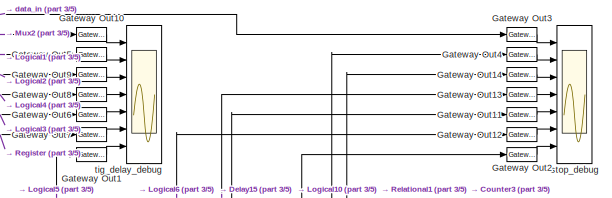
[diagram: pkt_reord0/snap_rd - part 1/5, top right region]
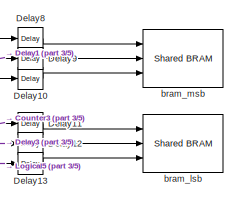
[diagram: pkt_reord0/snap_rd - part 2/5, middle right region]
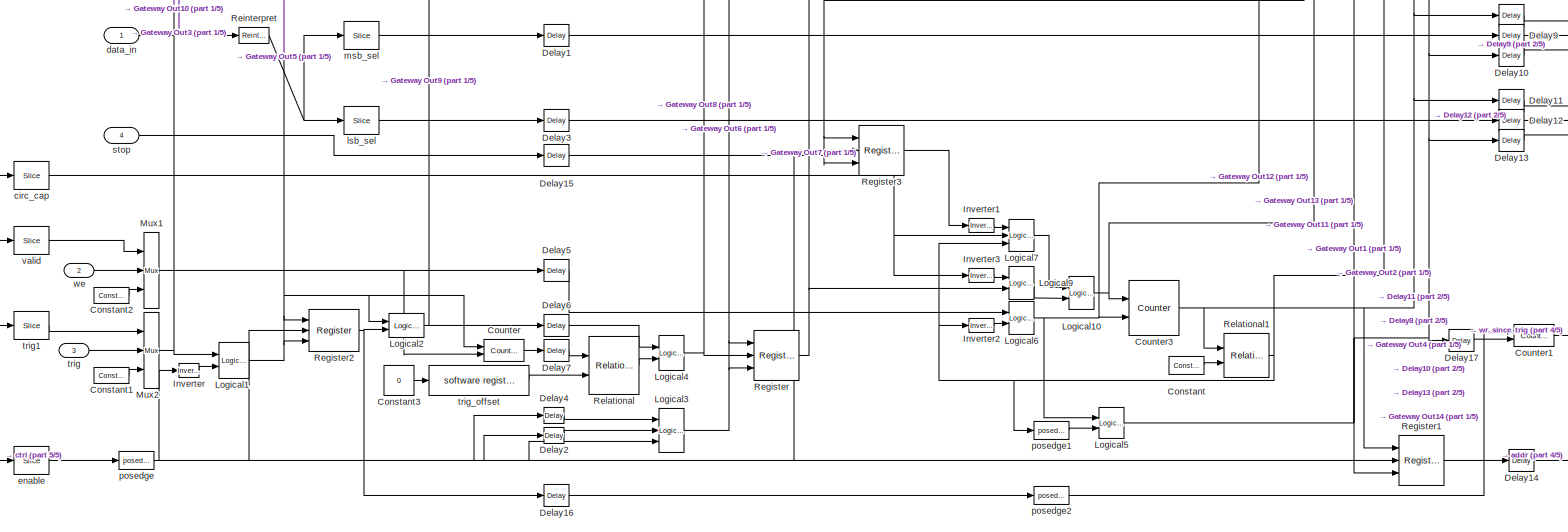
[diagram: pkt_reord0/snap_rd - part 3/5, full width, middle band]
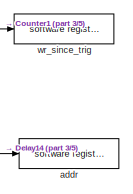
[diagram: pkt_reord0/snap_rd - part 4/5, bottom right region]
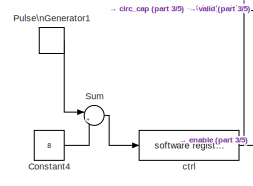
[diagram: pkt_reord0/snap_rd - part 5/5, bottom left region]
BLOCK [SubSystem] pkt_reord0/snap_rd
  MaskEnableString = on
  MaskIconFrame = on
  MaskIconOpaque = on
  MaskIconRotate = none
  MaskIconUnits = autoscale
  MaskPromptString = Number of Samples (2^?)
  MaskStyleString = edit
  MaskToolTipString = on
  MaskTunableValueString = on
  MaskValueString = 11
  MaskVariables = nsamples=@1;
  MaskVisibilityString = on
  MinAlgLoopOccurrences = off
  Ports = [4]
  RTWSystemCode = Auto
  TreatAsAtomicUnit = off
BLOCK [Reference] pkt_reord0/snap_rd/Constant  REF=xbsIndex_r3/Constant
  Ports = [0, 1]
  SourceBlock = xbsIndex_r3/Constant
  SourceType = Xilinx Constant Block
  arith_type = Unsigned
  bin_pt = 0
  carry = CIN
  const = (2^nsamples)-1
  dbl_ovrd = off
  equ = P=C
  explicit_period = off
  inp1 = P
  inp2 = PCIN>>17
  iostate = 0
  n_bits = nsamples
  opr = +
  opselect = C
  period = 1
BLOCK [Reference] pkt_reord0/snap_rd/Constant1  REF=xbsIndex_r3/Constant
  Ports = [0, 1]
  SourceBlock = xbsIndex_r3/Constant
  SourceType = Xilinx Constant Block
  arith_type = Boolean
  bin_pt = 0
  carry = CIN
  const = 1
  dbl_ovrd = off
  equ = P=C
  explicit_period = on
  inp1 = P
  inp2 = PCIN>>17
  iostate = 0
  n_bits = 1
  opr = +
  opselect = C
  period = 1
BLOCK [Reference] pkt_reord0/snap_rd/Constant2  REF=xbsIndex_r3/Constant
  Ports = [0, 1]
  SourceBlock = xbsIndex_r3/Constant
  SourceType = Xilinx Constant Block
  arith_type = Boolean
  bin_pt = 0
  carry = CIN
  const = 1
  dbl_ovrd = off
  equ = P=C
  explicit_period = on
  inp1 = P
  inp2 = PCIN>>17
  iostate = 0
  n_bits = 1
  opr = +
  opselect = C
  period = 1
BLOCK [Constant] pkt_reord0/snap_rd/Constant3
  Value = 0
BLOCK [Constant] pkt_reord0/snap_rd/Constant4
  Value = 8
BLOCK [Reference] pkt_reord0/snap_rd/Counter  REF=xbsIndex_r3/Counter
  Ports = [2, 1]
  SourceBlock = xbsIndex_r3/Counter
  SourceType = Xilinx Counter Block
  arith_type = Unsigned
  bin_pt = 0
  cnt_by_val = 1
  cnt_to = Inf
  cnt_type = Free Running
  dbl_ovrd = off
  en = on
  explicit_period = on
  gen_core = off
  load_pin = off
  n_bits = 32
  operation = Up
  period = 1
  rst = on
  show_param = off
  start_count = 1
  use_rpm = on
  xl_area = [0, 0, 0, 0, 0, 0, 0]
  xl_use_area = off
BLOCK [Reference] pkt_reord0/snap_rd/Counter1  REF=xbsIndex_r3/Counter
  Ports = [2, 1]
  SourceBlock = xbsIndex_r3/Counter
  SourceType = Xilinx Counter Block
  arith_type = Unsigned
  bin_pt = 0
  cnt_by_val = 1
  cnt_to = Inf
  cnt_type = Free Running
  dbl_ovrd = off
  en = on
  explicit_period = on
  gen_core = off
  load_pin = off
  n_bits = 32
  operation = Up
  period = 1
  rst = on
  show_param = off
  start_count = 1
  use_rpm = on
  xl_area = [0, 0, 0, 0, 0, 0, 0]
  xl_use_area = off
BLOCK [Reference] pkt_reord0/snap_rd/Counter3  REF=xbsIndex_r3/Counter
  Ports = [2, 1]
  SourceBlock = xbsIndex_r3/Counter
  SourceType = Xilinx Counter Block
  arith_type = Unsigned
  bin_pt = 0
  cnt_by_val = 1
  cnt_to = (2^nsamples)-1
  cnt_type = Count Limited
  dbl_ovrd = off
  en = on
  explicit_period = on
  gen_core = off
  load_pin = off
  n_bits = nsamples
  operation = Up
  period = 1
  rst = on
  show_param = off
  start_count = 0
  use_rpm = on
  xl_area = [0, 0, 0, 0, 0, 0, 0]
  xl_use_area = off
BLOCK [Reference] pkt_reord0/snap_rd/Delay1  REF=xbsIndex_r3/Delay
  Ports = [1, 1]
  SourceBlock = xbsIndex_r3/Delay
  SourceType = Xilinx Delay Block
  accept_only_valid = off
  dbl_ovrd = off
  en = off
  explicit_period = on
  init_zero = on
  latency = 1
  period = 1
  reg_retiming = on
  show_param = off
  xl_area = [0, 0, 0, 0, 0, 0, 0]
  xl_use_area = off
BLOCK [Reference] pkt_reord0/snap_rd/Delay10  REF=xbsIndex_r3/Delay
  Ports = [1, 1]
  SourceBlock = xbsIndex_r3/Delay
  SourceType = Xilinx Delay Block
  accept_only_valid = off
  dbl_ovrd = off
  en = off
  explicit_period = on
  init_zero = on
  latency = 2
  period = 1
  reg_retiming = on
  show_param = off
  xl_area = [0, 0, 0, 0, 0, 0, 0]
  xl_use_area = off
BLOCK [Reference] pkt_reord0/snap_rd/Delay11  REF=xbsIndex_r3/Delay
  Ports = [1, 1]
  SourceBlock = xbsIndex_r3/Delay
  SourceType = Xilinx Delay Block
  accept_only_valid = off
  dbl_ovrd = off
  en = off
  explicit_period = on
  init_zero = on
  latency = 2
  period = 1
  reg_retiming = on
  show_param = off
  xl_area = [0, 0, 0, 0, 0, 0, 0]
  xl_use_area = off
BLOCK [Reference] pkt_reord0/snap_rd/Delay12  REF=xbsIndex_r3/Delay
  Ports = [1, 1]
  SourceBlock = xbsIndex_r3/Delay
  SourceType = Xilinx Delay Block
  accept_only_valid = off
  dbl_ovrd = off
  en = off
  explicit_period = on
  init_zero = on
  latency = 2
  period = 1
  reg_retiming = on
  show_param = off
  xl_area = [0, 0, 0, 0, 0, 0, 0]
  xl_use_area = off
BLOCK [Reference] pkt_reord0/snap_rd/Delay13  REF=xbsIndex_r3/Delay
  Ports = [1, 1]
  SourceBlock = xbsIndex_r3/Delay
  SourceType = Xilinx Delay Block
  accept_only_valid = off
  dbl_ovrd = off
  en = off
  explicit_period = on
  init_zero = on
  latency = 2
  period = 1
  reg_retiming = on
  show_param = off
  xl_area = [0, 0, 0, 0, 0, 0, 0]
  xl_use_area = off
BLOCK [Reference] pkt_reord0/snap_rd/Delay14  REF=xbsIndex_r3/Delay
  Ports = [1, 1]
  SourceBlock = xbsIndex_r3/Delay
  SourceType = Xilinx Delay Block
  accept_only_valid = off
  dbl_ovrd = off
  en = off
  explicit_period = on
  init_zero = on
  latency = 2
  period = 1
  reg_retiming = on
  show_param = off
  xl_area = [0, 0, 0, 0, 0, 0, 0]
  xl_use_area = off
BLOCK [Reference] pkt_reord0/snap_rd/Delay15  REF=xbsIndex_r3/Delay
  Ports = [1, 1]
  SourceBlock = xbsIndex_r3/Delay
  SourceType = Xilinx Delay Block
  accept_only_valid = off
  dbl_ovrd = off
  en = off
  explicit_period = on
  init_zero = on
  latency = 1
  period = 1
  reg_retiming = on
  show_param = off
  xl_area = [0, 0, 0, 0, 0, 0, 0]
  xl_use_area = off
BLOCK [Reference] pkt_reord0/snap_rd/Delay16  REF=xbsIndex_r3/Delay
  Ports = [1, 1]
  SourceBlock = xbsIndex_r3/Delay
  SourceType = Xilinx Delay Block
  accept_only_valid = off
  dbl_ovrd = off
  en = off
  explicit_period = on
  init_zero = on
  latency = 1
  period = 1
  reg_retiming = on
  show_param = off
  xl_area = [0, 0, 0, 0, 0, 0, 0]
  xl_use_area = off
BLOCK [Reference] pkt_reord0/snap_rd/Delay17  REF=xbsIndex_r3/Delay
  Ports = [1, 1]
  SourceBlock = xbsIndex_r3/Delay
  SourceType = Xilinx Delay Block
  accept_only_valid = off
  dbl_ovrd = off
  en = off
  explicit_period = on
  init_zero = on
  latency = 2
  period = 1
  reg_retiming = on
  show_param = off
  xl_area = [0, 0, 0, 0, 0, 0, 0]
  xl_use_area = off
BLOCK [Reference] pkt_reord0/snap_rd/Delay2  REF=xbsIndex_r3/Delay
  Ports = [1, 1]
  SourceBlock = xbsIndex_r3/Delay
  SourceType = Xilinx Delay Block
  accept_only_valid = off
  dbl_ovrd = off
  en = off
  explicit_period = on
  init_zero = on
  latency = 2
  period = 1
  reg_retiming = on
  show_param = off
  xl_area = [0, 0, 0, 0, 0, 0, 0]
  xl_use_area = off
BLOCK [Reference] pkt_reord0/snap_rd/Delay3  REF=xbsIndex_r3/Delay
  Ports = [1, 1]
  SourceBlock = xbsIndex_r3/Delay
  SourceType = Xilinx Delay Block
  accept_only_valid = off
  dbl_ovrd = off
  en = off
  explicit_period = on
  init_zero = on
  latency = 1
  period = 1
  reg_retiming = on
  show_param = off
  xl_area = [0, 0, 0, 0, 0, 0, 0]
  xl_use_area = off
BLOCK [Reference] pkt_reord0/snap_rd/Delay4  REF=xbsIndex_r3/Delay
  Ports = [1, 1]
  SourceBlock = xbsIndex_r3/Delay
  SourceType = Xilinx Delay Block
  accept_only_valid = off
  dbl_ovrd = off
  en = off
  explicit_period = on
  init_zero = on
  latency = 1
  period = 1
  reg_retiming = on
  show_param = off
  xl_area = [0, 0, 0, 0, 0, 0, 0]
  xl_use_area = off
BLOCK [Reference] pkt_reord0/snap_rd/Delay5  REF=xbsIndex_r3/Delay
  Ports = [1, 1]
  SourceBlock = xbsIndex_r3/Delay
  SourceType = Xilinx Delay Block
  accept_only_valid = off
  dbl_ovrd = off
  en = off
  explicit_period = on
  init_zero = on
  latency = 1
  period = 1
  reg_retiming = on
  show_param = off
  xl_area = [0, 0, 0, 0, 0, 0, 0]
  xl_use_area = off
BLOCK [Reference] pkt_reord0/snap_rd/Delay6  REF=xbsIndex_r3/Delay
  Ports = [1, 1]
  SourceBlock = xbsIndex_r3/Delay
  SourceType = Xilinx Delay Block
  accept_only_valid = off
  dbl_ovrd = off
  en = off
  explicit_period = on
  init_zero = on
  latency = 1
  period = 1
  reg_retiming = on
  show_param = off
  xl_area = [0, 0, 0, 0, 0, 0, 0]
  xl_use_area = off
BLOCK [Reference] pkt_reord0/snap_rd/Delay7  REF=xbsIndex_r3/Delay
  Ports = [1, 1]
  SourceBlock = xbsIndex_r3/Delay
  SourceType = Xilinx Delay Block
  accept_only_valid = off
  dbl_ovrd = off
  en = off
  explicit_period = on
  init_zero = on
  latency = 1
  period = 1
  reg_retiming = on
  show_param = off
  xl_area = [0, 0, 0, 0, 0, 0, 0]
  xl_use_area = off
BLOCK [Reference] pkt_reord0/snap_rd/Delay8  REF=xbsIndex_r3/Delay
  Ports = [1, 1]
  SourceBlock = xbsIndex_r3/Delay
  SourceType = Xilinx Delay Block
  accept_only_valid = off
  dbl_ovrd = off
  en = off
  explicit_period = on
  init_zero = on
  latency = 2
  period = 1
  reg_retiming = on
  show_param = off
  xl_area = [0, 0, 0, 0, 0, 0, 0]
  xl_use_area = off
BLOCK [Reference] pkt_reord0/snap_rd/Delay9  REF=xbsIndex_r3/Delay
  Ports = [1, 1]
  SourceBlock = xbsIndex_r3/Delay
  SourceType = Xilinx Delay Block
  accept_only_valid = off
  dbl_ovrd = off
  en = off
  explicit_period = on
  init_zero = on
  latency = 2
  period = 1
  reg_retiming = on
  show_param = off
  xl_area = [0, 0, 0, 0, 0, 0, 0]
  xl_use_area = off
BLOCK [Reference] pkt_reord0/snap_rd/Gateway Out1  REF=xbsIndex_r3/Gateway Out
  LOCs = {}
  Ports = [1, 1]
  SourceBlock = xbsIndex_r3/Gateway Out
  SourceType = Xilinx Gateway Out
  arith_type = Boolean
  bin_pt = 6
  hdl_port = off
  locs_specified = off
  nbits = 8
  needs_fixed_name = off
  output_type = Double
  overflow = Wrap
  quantization = Truncate
  show_param = off
  timing_constraint = None
  xl_area = [0, 0, 0, 0, 0, 0, 0]
  xl_use_area = off
BLOCK [Reference] pkt_reord0/snap_rd/Gateway Out10  REF=xbsIndex_r3/Gateway Out
  LOCs = {}
  Ports = [1, 1]
  SourceBlock = xbsIndex_r3/Gateway Out
  SourceType = Xilinx Gateway Out
  arith_type = Boolean
  bin_pt = 6
  hdl_port = off
  locs_specified = off
  nbits = 8
  needs_fixed_name = off
  output_type = Double
  overflow = Wrap
  quantization = Truncate
  show_param = off
  timing_constraint = None
  xl_area = [0, 0, 0, 0, 0, 0, 0]
  xl_use_area = off
BLOCK [Reference] pkt_reord0/snap_rd/Gateway Out11  REF=xbsIndex_r3/Gateway Out
  LOCs = {}
  Ports = [1, 1]
  SourceBlock = xbsIndex_r3/Gateway Out
  SourceType = Xilinx Gateway Out
  arith_type = Boolean
  bin_pt = 6
  hdl_port = off
  locs_specified = off
  nbits = 8
  needs_fixed_name = off
  output_type = Double
  overflow = Wrap
  quantization = Truncate
  show_param = off
  timing_constraint = None
  xl_area = [0, 0, 0, 0, 0, 0, 0]
  xl_use_area = off
BLOCK [Reference] pkt_reord0/snap_rd/Gateway Out12  REF=xbsIndex_r3/Gateway Out
  LOCs = {}
  Ports = [1, 1]
  SourceBlock = xbsIndex_r3/Gateway Out
  SourceType = Xilinx Gateway Out
  arith_type = Boolean
  bin_pt = 6
  hdl_port = off
  locs_specified = off
  nbits = 8
  needs_fixed_name = off
  output_type = Double
  overflow = Wrap
  quantization = Truncate
  show_param = off
  timing_constraint = None
  xl_area = [0, 0, 0, 0, 0, 0, 0]
  xl_use_area = off
BLOCK [Reference] pkt_reord0/snap_rd/Gateway Out13  REF=xbsIndex_r3/Gateway Out
  LOCs = {}
  Ports = [1, 1]
  SourceBlock = xbsIndex_r3/Gateway Out
  SourceType = Xilinx Gateway Out
  arith_type = Boolean
  bin_pt = 6
  hdl_port = off
  locs_specified = off
  nbits = 8
  needs_fixed_name = off
  output_type = Double
  overflow = Wrap
  quantization = Truncate
  show_param = off
  timing_constraint = None
  xl_area = [0, 0, 0, 0, 0, 0, 0]
  xl_use_area = off
BLOCK [Reference] pkt_reord0/snap_rd/Gateway Out14  REF=xbsIndex_r3/Gateway Out
  LOCs = {}
  Ports = [1, 1]
  SourceBlock = xbsIndex_r3/Gateway Out
  SourceType = Xilinx Gateway Out
  arith_type = Boolean
  bin_pt = 6
  hdl_port = off
  locs_specified = off
  nbits = 8
  needs_fixed_name = off
  output_type = Double
  overflow = Wrap
  quantization = Truncate
  show_param = off
  timing_constraint = None
  xl_area = [0, 0, 0, 0, 0, 0, 0]
  xl_use_area = off
BLOCK [Reference] pkt_reord0/snap_rd/Gateway Out2  REF=xbsIndex_r3/Gateway Out
  LOCs = {}
  Ports = [1, 1]
  SourceBlock = xbsIndex_r3/Gateway Out
  SourceType = Xilinx Gateway Out
  arith_type = Boolean
  bin_pt = 6
  hdl_port = off
  locs_specified = off
  nbits = 8
  needs_fixed_name = off
  output_type = Double
  overflow = Wrap
  quantization = Truncate
  show_param = off
  timing_constraint = None
  xl_area = [0, 0, 0, 0, 0, 0, 0]
  xl_use_area = off
BLOCK [Reference] pkt_reord0/snap_rd/Gateway Out3  REF=xbsIndex_r3/Gateway Out
  LOCs = {}
  Ports = [1, 1]
  SourceBlock = xbsIndex_r3/Gateway Out
  SourceType = Xilinx Gateway Out
  arith_type = Boolean
  bin_pt = 6
  hdl_port = off
  locs_specified = off
  nbits = 8
  needs_fixed_name = off
  output_type = Double
  overflow = Wrap
  quantization = Truncate
  show_param = off
  timing_constraint = None
  xl_area = [0, 0, 0, 0, 0, 0, 0]
  xl_use_area = off
BLOCK [Reference] pkt_reord0/snap_rd/Gateway Out4  REF=xbsIndex_r3/Gateway Out
  LOCs = {}
  Ports = [1, 1]
  SourceBlock = xbsIndex_r3/Gateway Out
  SourceType = Xilinx Gateway Out
  arith_type = Boolean
  bin_pt = 6
  hdl_port = off
  locs_specified = off
  nbits = 8
  needs_fixed_name = off
  output_type = Double
  overflow = Wrap
  quantization = Truncate
  show_param = off
  timing_constraint = None
  xl_area = [0, 0, 0, 0, 0, 0, 0]
  xl_use_area = off
BLOCK [Reference] pkt_reord0/snap_rd/Gateway Out5  REF=xbsIndex_r3/Gateway Out
  LOCs = {}
  Ports = [1, 1]
  SourceBlock = xbsIndex_r3/Gateway Out
  SourceType = Xilinx Gateway Out
  arith_type = Boolean
  bin_pt = 6
  hdl_port = off
  locs_specified = off
  nbits = 8
  needs_fixed_name = off
  output_type = Double
  overflow = Wrap
  quantization = Truncate
  show_param = off
  timing_constraint = None
  xl_area = [0, 0, 0, 0, 0, 0, 0]
  xl_use_area = off
BLOCK [Reference] pkt_reord0/snap_rd/Gateway Out6  REF=xbsIndex_r3/Gateway Out
  LOCs = {}
  Ports = [1, 1]
  SourceBlock = xbsIndex_r3/Gateway Out
  SourceType = Xilinx Gateway Out
  arith_type = Boolean
  bin_pt = 6
  hdl_port = off
  locs_specified = off
  nbits = 8
  needs_fixed_name = off
  output_type = Double
  overflow = Wrap
  quantization = Truncate
  show_param = off
  timing_constraint = None
  xl_area = [0, 0, 0, 0, 0, 0, 0]
  xl_use_area = off
BLOCK [Reference] pkt_reord0/snap_rd/Gateway Out7  REF=xbsIndex_r3/Gateway Out
  LOCs = {}
  Ports = [1, 1]
  SourceBlock = xbsIndex_r3/Gateway Out
  SourceType = Xilinx Gateway Out
  arith_type = Boolean
  bin_pt = 6
  hdl_port = off
  locs_specified = off
  nbits = 8
  needs_fixed_name = off
  output_type = Double
  overflow = Wrap
  quantization = Truncate
  show_param = off
  timing_constraint = None
  xl_area = [0, 0, 0, 0, 0, 0, 0]
  xl_use_area = off
BLOCK [Reference] pkt_reord0/snap_rd/Gateway Out8  REF=xbsIndex_r3/Gateway Out
  LOCs = {}
  Ports = [1, 1]
  SourceBlock = xbsIndex_r3/Gateway Out
  SourceType = Xilinx Gateway Out
  arith_type = Boolean
  bin_pt = 6
  hdl_port = off
  locs_specified = off
  nbits = 8
  needs_fixed_name = off
  output_type = Double
  overflow = Wrap
  quantization = Truncate
  show_param = off
  timing_constraint = None
  xl_area = [0, 0, 0, 0, 0, 0, 0]
  xl_use_area = off
BLOCK [Reference] pkt_reord0/snap_rd/Gateway Out9  REF=xbsIndex_r3/Gateway Out
  LOCs = {}
  Ports = [1, 1]
  SourceBlock = xbsIndex_r3/Gateway Out
  SourceType = Xilinx Gateway Out
  arith_type = Boolean
  bin_pt = 6
  hdl_port = off
  locs_specified = off
  nbits = 8
  needs_fixed_name = off
  output_type = Double
  overflow = Wrap
  quantization = Truncate
  show_param = off
  timing_constraint = None
  xl_area = [0, 0, 0, 0, 0, 0, 0]
  xl_use_area = off
BLOCK [Reference] pkt_reord0/snap_rd/Inverter  REF=xbsIndex_r3/Inverter
  Ports = [1, 1]
  SourceBlock = xbsIndex_r3/Inverter
  SourceType = Xilinx Inverter
  dbl_ovrd = off
  en = off
  explicit_period = off
  latency = 0
  period = 1
  show_param = off
  xl_area = [0, 0, 0, 0, 0, 0, 0]
  xl_use_area = off
BLOCK [Reference] pkt_reord0/snap_rd/Inverter1  REF=xbsIndex_r3/Inverter
  Ports = [1, 1]
  SourceBlock = xbsIndex_r3/Inverter
  SourceType = Xilinx Inverter
  dbl_ovrd = off
  en = off
  explicit_period = off
  latency = 0
  period = 1
  show_param = off
  xl_area = [0, 0, 0, 0, 0, 0, 0]
  xl_use_area = off
BLOCK [Reference] pkt_reord0/snap_rd/Inverter2  REF=xbsIndex_r3/Inverter
  Ports = [1, 1]
  SourceBlock = xbsIndex_r3/Inverter
  SourceType = Xilinx Inverter
  dbl_ovrd = off
  en = off
  explicit_period = off
  latency = 0
  period = 1
  show_param = off
  xl_area = [0, 0, 0, 0, 0, 0, 0]
  xl_use_area = off
BLOCK [Reference] pkt_reord0/snap_rd/Inverter3  REF=xbsIndex_r3/Inverter
  Ports = [1, 1]
  SourceBlock = xbsIndex_r3/Inverter
  SourceType = Xilinx Inverter
  dbl_ovrd = off
  en = off
  explicit_period = off
  latency = 0
  period = 1
  show_param = off
  xl_area = [0, 0, 0, 0, 0, 0, 0]
  xl_use_area = off
BLOCK [Reference] pkt_reord0/snap_rd/Logical1  REF=xbsIndex_r3/Logical
  Ports = [2, 1]
  SourceBlock = xbsIndex_r3/Logical
  SourceType = Xilinx Logical Block
  align_bp = on
  arith_type = Unsigned
  bin_pt = 2
  dbl_ovrd = off
  en = off
  explicit_period = off
  inputs = 2
  latency = 0
  logical_function = AND
  n_bits = 8
  period = 1
  precision = Full
  show_param = off
  xl_area = [0, 0, 0, 0, 0, 0, 0]
  xl_use_area = off
BLOCK [Reference] pkt_reord0/snap_rd/Logical10  REF=xbsIndex_r3/Logical
  Ports = [2, 1]
  SourceBlock = xbsIndex_r3/Logical
  SourceType = Xilinx Logical Block
  align_bp = on
  arith_type = Unsigned
  bin_pt = 2
  dbl_ovrd = off
  en = off
  explicit_period = off
  inputs = 2
  latency = 0
  logical_function = OR
  n_bits = 8
  period = 1
  precision = Full
  show_param = off
  xl_area = [0, 0, 0, 0, 0, 0, 0]
  xl_use_area = off
BLOCK [Reference] pkt_reord0/snap_rd/Logical2  REF=xbsIndex_r3/Logical
  Ports = [2, 1]
  SourceBlock = xbsIndex_r3/Logical
  SourceType = Xilinx Logical Block
  align_bp = on
  arith_type = Unsigned
  bin_pt = 2
  dbl_ovrd = off
  en = off
  explicit_period = on
  inputs = 2
  latency = 0
  logical_function = OR
  n_bits = 8
  period = 1
  precision = Full
  show_param = off
  xl_area = [0, 0, 0, 0, 0, 0, 0]
  xl_use_area = off
BLOCK [Reference] pkt_reord0/snap_rd/Logical3  REF=xbsIndex_r3/Logical
  Ports = [3, 1]
  SourceBlock = xbsIndex_r3/Logical
  SourceType = Xilinx Logical Block
  align_bp = on
  arith_type = Unsigned
  bin_pt = 2
  dbl_ovrd = off
  en = off
  explicit_period = on
  inputs = 3
  latency = 0
  logical_function = OR
  n_bits = 8
  period = 1
  precision = Full
  show_param = off
  xl_area = [0, 0, 0, 0, 0, 0, 0]
  xl_use_area = off
BLOCK [Reference] pkt_reord0/snap_rd/Logical4  REF=xbsIndex_r3/Logical
  Ports = [2, 1]
  SourceBlock = xbsIndex_r3/Logical
  SourceType = Xilinx Logical Block
  align_bp = on
  arith_type = Unsigned
  bin_pt = 2
  dbl_ovrd = off
  en = off
  explicit_period = on
  inputs = 2
  latency = 0
  logical_function = AND
  n_bits = 8
  period = 1
  precision = Full
  show_param = off
  xl_area = [0, 0, 0, 0, 0, 0, 0]
  xl_use_area = off
BLOCK [Reference] pkt_reord0/snap_rd/Logical5  REF=xbsIndex_r3/Logical
  Ports = [2, 1]
  SourceBlock = xbsIndex_r3/Logical
  SourceType = Xilinx Logical Block
  align_bp = on
  arith_type = Unsigned
  bin_pt = 2
  dbl_ovrd = off
  en = off
  explicit_period = off
  inputs = 2
  latency = 0
  logical_function = OR
  n_bits = 8
  period = 1
  precision = Full
  show_param = off
  xl_area = [0, 0, 0, 0, 0, 0, 0]
  xl_use_area = off
BLOCK [Reference] pkt_reord0/snap_rd/Logical6  REF=xbsIndex_r3/Logical
  Ports = [2, 1]
  SourceBlock = xbsIndex_r3/Logical
  SourceType = Xilinx Logical Block
  align_bp = on
  arith_type = Unsigned
  bin_pt = 2
  dbl_ovrd = off
  en = off
  explicit_period = off
  inputs = 2
  latency = 0
  logical_function = AND
  n_bits = 8
  period = 1
  precision = Full
  show_param = off
  xl_area = [0, 0, 0, 0, 0, 0, 0]
  xl_use_area = off
BLOCK [Reference] pkt_reord0/snap_rd/Logical7  REF=xbsIndex_r3/Logical
  Ports = [3, 1]
  SourceBlock = xbsIndex_r3/Logical
  SourceType = Xilinx Logical Block
  align_bp = on
  arith_type = Unsigned
  bin_pt = 2
  dbl_ovrd = off
  en = off
  explicit_period = off
  inputs = 3
  latency = 0
  logical_function = AND
  n_bits = 8
  period = 1
  precision = Full
  show_param = off
  xl_area = [0, 0, 0, 0, 0, 0, 0]
  xl_use_area = off
BLOCK [Reference] pkt_reord0/snap_rd/Logical9  REF=xbsIndex_r3/Logical
  Ports = [2, 1]
  SourceBlock = xbsIndex_r3/Logical
  SourceType = Xilinx Logical Block
  align_bp = on
  arith_type = Unsigned
  bin_pt = 2
  dbl_ovrd = off
  en = off
  explicit_period = off
  inputs = 2
  latency = 0
  logical_function = AND
  n_bits = 8
  period = 1
  precision = Full
  show_param = off
  xl_area = [0, 0, 0, 0, 0, 0, 0]
  xl_use_area = off
BLOCK [Reference] pkt_reord0/snap_rd/Mux1  REF=xbsIndex_r3/Mux
  Ports = [3, 1]
  SourceBlock = xbsIndex_r3/Mux
  SourceType = Xilinx Multiplexer Block
  arith_type = Signed  (2's comp)
  bin_pt = 2
  dbl_ovrd = off
  en = off
  explicit_period = off
  gen_core = off
  inputs = 2
  latency = 0
  mux_type = off
  n_bits = 8
  overflow = Wrap
  period = 1
  precision = Full
  quantization = Truncate
  show_param = off
  use_rpm = off
  xl_area = [0, 0, 0, 0, 0, 0, 0]
  xl_use_area = off
BLOCK [Reference] pkt_reord0/snap_rd/Mux2  REF=xbsIndex_r3/Mux
  Ports = [3, 1]
  SourceBlock = xbsIndex_r3/Mux
  SourceType = Xilinx Multiplexer Block
  arith_type = Signed  (2's comp)
  bin_pt = 2
  dbl_ovrd = off
  en = off
  explicit_period = off
  gen_core = off
  inputs = 2
  latency = 0
  mux_type = off
  n_bits = 8
  overflow = Wrap
  period = 1
  precision = Full
  quantization = Truncate
  show_param = off
  use_rpm = off
  xl_area = [0, 0, 0, 0, 0, 0, 0]
  xl_use_area = off
BLOCK [DiscretePulseGenerator] pkt_reord0/snap_rd/Pulse\nGenerator1
  Period = 4196
  Ports = [0, 1]
  PulseWidth = 2
BLOCK [Reference] pkt_reord0/snap_rd/Register  REF=xbsIndex_r3/Register
  Ports = [3, 1]
  SourceBlock = xbsIndex_r3/Register
  SourceType = Xilinx Register Block
  dbl_ovrd = off
  en = on
  explicit_period = off
  init = 0
  out_en = off
  period = 1
  reg_only_valid = off
  rst = on
  show_param = off
  xl_area = [0, 0, 0, 0, 0, 0, 0]
  xl_use_area = off
BLOCK [Reference] pkt_reord0/snap_rd/Register1  REF=xbsIndex_r3/Register
  Ports = [3, 1]
  SourceBlock = xbsIndex_r3/Register
  SourceType = Xilinx Register Block
  dbl_ovrd = off
  en = on
  explicit_period = off
  init = 0
  out_en = off
  period = 1
  reg_only_valid = off
  rst = on
  show_param = off
  xl_area = [0, 0, 0, 0, 0, 0, 0]
  xl_use_area = off
BLOCK [Reference] pkt_reord0/snap_rd/Register2  REF=xbsIndex_r3/Register
  Ports = [3, 1]
  SourceBlock = xbsIndex_r3/Register
  SourceType = Xilinx Register Block
  dbl_ovrd = off
  en = on
  explicit_period = off
  init = 0
  out_en = off
  period = 1
  reg_only_valid = off
  rst = on
  show_param = off
  xl_area = [0, 0, 0, 0, 0, 0, 0]
  xl_use_area = off
BLOCK [Reference] pkt_reord0/snap_rd/Register3  REF=xbsIndex_r3/Register
  Ports = [3, 1]
  SourceBlock = xbsIndex_r3/Register
  SourceType = Xilinx Register Block
  dbl_ovrd = off
  en = on
  explicit_period = off
  init = 0
  out_en = off
  period = 1
  reg_only_valid = off
  rst = on
  show_param = off
  xl_area = [0, 0, 0, 0, 0, 0, 0]
  xl_use_area = off
BLOCK [Reference] pkt_reord0/snap_rd/Reinterpret  REF=xbsIndex_r3/Reinterpret
  Ports = [1, 1]
  SourceBlock = xbsIndex_r3/Reinterpret
  SourceType = Xilinx Type Reinterpreting Block
  arith_type = Unsigned
  bin_pt = 0
  force_arith_type = on
  force_bin_pt = on
  force_valid = on
BLOCK [Reference] pkt_reord0/snap_rd/Relational  REF=xbsIndex_r3/Relational
  Ports = [2, 1]
  SourceBlock = xbsIndex_r3/Relational
  SourceType = Xilinx Relational Block
  dbl_ovrd = off
  en = off
  explicit_period = on
  latency = 0
  mode = a>=b
  period = 1
  show_param = off
  xl_area = [0, 0, 0, 0, 0, 0, 0]
  xl_use_area = off
BLOCK [Reference] pkt_reord0/snap_rd/Relational1  REF=xbsIndex_r3/Relational
  Ports = [2, 1]
  SourceBlock = xbsIndex_r3/Relational
  SourceType = Xilinx Relational Block
  dbl_ovrd = off
  en = off
  explicit_period = off
  latency = 0
  mode = a=b
  period = 1
  show_param = off
  xl_area = [0, 0, 0, 0, 0, 0, 0]
  xl_use_area = off
BLOCK [Sum] pkt_reord0/snap_rd/Sum
  IconShape = round
  InputSameDT = off
  Inputs = |++
  OutDataTypeMode = Inherit via internal rule
  Ports = [2, 1]
  SaturateOnIntegerOverflow = off
BLOCK [Reference] pkt_reord0/snap_rd/addr  REF=xps_library/software register  (lib defined in mdl_00b5cec29cd0, mdl_02ab6ecaa3d1, +5 more)
  Ports = [1, 1]
  ShowPortLabels = on
  SourceBlock = xps_library/software register
  Tag = xps:sw_reg
  arith_type = Unsigned
  bin_pt = 0
  bitwidth = 32
  gw_name = b_2x_8a_r310a_reord0_snap_rd_addr_user_data_in
  io_dir = To Processor
  sample_period = 1
BLOCK [Reference] pkt_reord0/snap_rd/bram_lsb  REF=xps_library/Shared BRAM  (lib defined in mdl_00b5cec29cd0, mdl_02ab6ecaa3d1, +5 more)
  Ports = [3, 1]
  ShowPortLabels = on
  SourceBlock = xps_library/Shared BRAM
  Tag = xps:bram
  addr_width = nsamples
  arith_type = Unsigned
  data_bin_pt = 0
  data_width = 32
  init_vals = 0
  sample_rate = 1
BLOCK [Reference] pkt_reord0/snap_rd/bram_msb  REF=xps_library/Shared BRAM  (lib defined in mdl_00b5cec29cd0, mdl_02ab6ecaa3d1, +5 more)
  Ports = [3, 1]
  ShowPortLabels = on
  SourceBlock = xps_library/Shared BRAM
  Tag = xps:bram
  addr_width = nsamples
  arith_type = Unsigned
  data_bin_pt = 0
  data_width = 32
  init_vals = 0
  sample_rate = 1
BLOCK [Reference] pkt_reord0/snap_rd/circ_cap  REF=xbsIndex_r3/Slice
  Ports = [1, 1]
  SourceBlock = xbsIndex_r3/Slice
  SourceType = Xilinx Slice Block
  base0 = LSB of Input
  base1 = LSB of Input
  bit0 = 3
  bit1 = 0
  boolean_output = on
  dbl_ovrd = off
  explicit_period = off
  mode = Lower Bit Location + Width
  nbits = 1
  period = 1
BLOCK [Reference] pkt_reord0/snap_rd/ctrl  REF=xps_library/software register  (lib defined in mdl_00b5cec29cd0, mdl_02ab6ecaa3d1, +5 more)
  Ports = [1, 1]
  ShowPortLabels = on
  SourceBlock = xps_library/software register
  Tag = xps:sw_reg
  arith_type = Unsigned
  bin_pt = 0
  bitwidth = 32
  gw_name = b_2x_8a_r310a_reord0_snap_rd_ctrl_user_data_out
  io_dir = From Processor
  sample_period = 1
BLOCK [Inport] pkt_reord0/snap_rd/data_in
  IconDisplay = Port number
  LatchInput = off
  Port = 1
BLOCK [Reference] pkt_reord0/snap_rd/enable  REF=xbsIndex_r3/Slice
  Ports = [1, 1]
  SourceBlock = xbsIndex_r3/Slice
  SourceType = Xilinx Slice Block
  base0 = LSB of Input
  base1 = LSB of Input
  bit0 = 0
  bit1 = 0
  boolean_output = on
  dbl_ovrd = off
  explicit_period = on
  mode = Lower Bit Location + Width
  nbits = 1
  period = 1
BLOCK [Reference] pkt_reord0/snap_rd/lsb_sel  REF=xbsIndex_r3/Slice
  Ports = [1, 1]
  SourceBlock = xbsIndex_r3/Slice
  SourceType = Xilinx Slice Block
  base0 = LSB of Input
  base1 = LSB of Input
  bit0 = 0
  bit1 = 0
  boolean_output = on
  dbl_ovrd = off
  explicit_period = on
  mode = Lower Bit Location + Width
  nbits = 32
  period = 1
BLOCK [Reference] pkt_reord0/snap_rd/msb_sel  REF=xbsIndex_r3/Slice
  Ports = [1, 1]
  SourceBlock = xbsIndex_r3/Slice
  SourceType = Xilinx Slice Block
  base0 = LSB of Input
  base1 = LSB of Input
  bit0 = 32
  bit1 = 0
  boolean_output = on
  dbl_ovrd = off
  explicit_period = on
  mode = Lower Bit Location + Width
  nbits = 32
  period = 1
BLOCK [Reference] pkt_reord0/snap_rd/posedge  REF=casper_library/Misc/posedge  (lib defined in mdl_138b2fc3435f, mdl_4ed325b712b3, +2 more)
  Ports = [1, 1]
  ShowPortLabels = on
  SourceBlock = casper_library/Misc/posedge
  SourceType = posedge
  Tag = Rising Edge Detector
BLOCK [Reference] pkt_reord0/snap_rd/posedge1  REF=casper_library/Misc/posedge  (lib defined in mdl_138b2fc3435f, mdl_4ed325b712b3, +2 more)
  Ports = [1, 1]
  ShowPortLabels = on
  SourceBlock = casper_library/Misc/posedge
  SourceType = posedge
  Tag = Rising Edge Detector
BLOCK [Reference] pkt_reord0/snap_rd/posedge2  REF=casper_library/Misc/posedge  (lib defined in mdl_138b2fc3435f, mdl_4ed325b712b3, +2 more)
  Ports = [1, 1]
  ShowPortLabels = on
  SourceBlock = casper_library/Misc/posedge
  SourceType = posedge
  Tag = Rising Edge Detector
BLOCK [Inport] pkt_reord0/snap_rd/stop
  IconDisplay = Port number
  LatchInput = off
  Port = 4
BLOCK [Scope] pkt_reord0/snap_rd/stop_debug
  DataFormat = StructureWithTime
  LimitDataPoints = off
  NumInputPorts = 7
  Ports = [7]
  SaveName = ScopeData4
  YMax = 300648000~110~1~5~5~5~5
  YMin = 272014000~0~0~-5~-5~-5~-5
  ZoomMode = yonly
BLOCK [Scope] pkt_reord0/snap_rd/tig_delay_debug
  DataFormat = StructureWithTime
  LimitDataPoints = off
  NumInputPorts = 7
  Ports = [7]
  SaveName = ScopeData3
  YMax = 3.00648e+008~110~1~5~5~5~5
  YMin = 2.72014e+008~0~0~-5~-5~-5~-5
  ZoomMode = xonly
BLOCK [Inport] pkt_reord0/snap_rd/trig
  IconDisplay = Port number
  LatchInput = off
  Port = 3
BLOCK [Reference] pkt_reord0/snap_rd/trig1  REF=xbsIndex_r3/Slice
  Ports = [1, 1]
  SourceBlock = xbsIndex_r3/Slice
  SourceType = Xilinx Slice Block
  base0 = LSB of Input
  base1 = LSB of Input
  bit0 = 1
  bit1 = 0
  boolean_output = on
  dbl_ovrd = off
  explicit_period = off
  mode = Lower Bit Location + Width
  nbits = 1
  period = 1
BLOCK [Reference] pkt_reord0/snap_rd/trig_offset  REF=xps_library/software register  (lib defined in mdl_00b5cec29cd0, mdl_02ab6ecaa3d1, +5 more)
  Ports = [1, 1]
  ShowPortLabels = on
  SourceBlock = xps_library/software register
  Tag = xps:sw_reg
  arith_type = Unsigned
  bin_pt = 0
  bitwidth = 32
  gw_name = b_2x_8a_r310a_reord0_snap_rd_trig_offset_user_data_out
  io_dir = From Processor
  sample_period = 1
BLOCK [Reference] pkt_reord0/snap_rd/valid  REF=xbsIndex_r3/Slice
  Ports = [1, 1]
  SourceBlock = xbsIndex_r3/Slice
  SourceType = Xilinx Slice Block
  base0 = LSB of Input
  base1 = LSB of Input
  bit0 = 2
  bit1 = 0
  boolean_output = on
  dbl_ovrd = off
  explicit_period = off
  mode = Lower Bit Location + Width
  nbits = 1
  period = 1
BLOCK [Inport] pkt_reord0/snap_rd/we
  IconDisplay = Port number
  LatchInput = off
  Port = 2
BLOCK [Reference] pkt_reord0/snap_rd/wr_since_trig  REF=xps_library/software register  (lib defined in mdl_00b5cec29cd0, mdl_02ab6ecaa3d1, +5 more)
  Ports = [1, 1]
  ShowPortLabels = on
  SourceBlock = xps_library/software register
  Tag = xps:sw_reg
  arith_type = Unsigned
  bin_pt = 0
  bitwidth = 32
  gw_name = b_2x_8a_r310a_reord0_snap_rd_wr_since_trig_user_data_in
  io_dir = To Processor
  sample_period = 1
BLOCK [SubSystem] pkt_reord0/snap_wr
  MaskEnableString = on
  MaskIconFrame = on
  MaskIconOpaque = on
  MaskIconRotate = none
  MaskIconUnits = autoscale
  MaskPromptString = Number of Samples (2^?)
  MaskStyleString = edit
  MaskToolTipString = on
  MaskTunableValueString = on
  MaskValueString = 12
  MaskVariables = nsamples=@1;
  MaskVisibilityString = on
  MinAlgLoopOccurrences = off
  Ports = [3]
  RTWSystemCode = Auto
  TreatAsAtomicUnit = off
BLOCK [Reference] pkt_reord0/snap_wr/Constant1  REF=xbsIndex_r3/Constant
  Ports = [0, 1]
  SourceBlock = xbsIndex_r3/Constant
  SourceType = Xilinx Constant Block
  arith_type = Boolean
  bin_pt = 0
  carry = CIN
  const = 1
  dbl_ovrd = off
  equ = P=C
  explicit_period = on
  inp1 = P
  inp2 = PCIN>>17
  iostate = 0
  n_bits = 1
  opr = +
  opselect = C
  period = 1
BLOCK [Reference] pkt_reord0/snap_wr/Constant2  REF=xbsIndex_r3/Constant
  Ports = [0, 1]
  SourceBlock = xbsIndex_r3/Constant
  SourceType = Xilinx Constant Block
  arith_type = Boolean
  bin_pt = 0
  carry = CIN
  const = 1
  dbl_ovrd = off
  equ = P=C
  explicit_period = on
  inp1 = P
  inp2 = PCIN>>17
  iostate = 0
  n_bits = 1
  opr = +
  opselect = C
  period = 1
BLOCK [Constant] pkt_reord0/snap_wr/Constant3
  Value = 0
BLOCK [Reference] pkt_reord0/snap_wr/Counter  REF=xbsIndex_r3/Counter
  Ports = [2, 1]
  SourceBlock = xbsIndex_r3/Counter
  SourceType = Xilinx Counter Block
  arith_type = Unsigned
  bin_pt = 0
  cnt_by_val = 1
  cnt_to = Inf
  cnt_type = Free Running
  dbl_ovrd = off
  en = on
  explicit_period = on
  gen_core = off
  load_pin = off
  n_bits = 32
  operation = Up
  period = 1
  rst = on
  show_param = off
  start_count = 1
  use_rpm = on
  xl_area = [0, 0, 0, 0, 0, 0, 0]
  xl_use_area = off
BLOCK [Reference] pkt_reord0/snap_wr/Delay1  REF=xbsIndex_r3/Delay
  Ports = [1, 1]
  SourceBlock = xbsIndex_r3/Delay
  SourceType = Xilinx Delay Block
  accept_only_valid = off
  dbl_ovrd = off
  en = off
  explicit_period = on
  init_zero = on
  latency = 1
  period = 1
  reg_retiming = on
  show_param = off
  xl_area = [0, 0, 0, 0, 0, 0, 0]
  xl_use_area = off
BLOCK [Reference] pkt_reord0/snap_wr/Delay10  REF=xbsIndex_r3/Delay
  Ports = [1, 1]
  SourceBlock = xbsIndex_r3/Delay
  SourceType = Xilinx Delay Block
  accept_only_valid = off
  dbl_ovrd = off
  en = off
  explicit_period = on
  init_zero = on
  latency = 1
  period = 1
  reg_retiming = on
  show_param = off
  xl_area = [0, 0, 0, 0, 0, 0, 0]
  xl_use_area = off
BLOCK [Reference] pkt_reord0/snap_wr/Delay11  REF=xbsIndex_r3/Delay
  Ports = [1, 1]
  SourceBlock = xbsIndex_r3/Delay
  SourceType = Xilinx Delay Block
  accept_only_valid = off
  dbl_ovrd = off
  en = off
  explicit_period = on
  init_zero = on
  latency = 1
  period = 1
  reg_retiming = on
  show_param = off
  xl_area = [0, 0, 0, 0, 0, 0, 0]
  xl_use_area = off
BLOCK [Reference] pkt_reord0/snap_wr/Delay12  REF=xbsIndex_r3/Delay
  Ports = [1, 1]
  SourceBlock = xbsIndex_r3/Delay
  SourceType = Xilinx Delay Block
  accept_only_valid = off
  dbl_ovrd = off
  en = off
  explicit_period = on
  init_zero = on
  latency = 1
  period = 1
  reg_retiming = on
  show_param = off
  xl_area = [0, 0, 0, 0, 0, 0, 0]
  xl_use_area = off
BLOCK [Reference] pkt_reord0/snap_wr/Delay13  REF=xbsIndex_r3/Delay
  Ports = [1, 1]
  SourceBlock = xbsIndex_r3/Delay
  SourceType = Xilinx Delay Block
  accept_only_valid = off
  dbl_ovrd = off
  en = off
  explicit_period = on
  init_zero = on
  latency = 1
  period = 1
  reg_retiming = on
  show_param = off
  xl_area = [0, 0, 0, 0, 0, 0, 0]
  xl_use_area = off
BLOCK [Reference] pkt_reord0/snap_wr/Delay14  REF=xbsIndex_r3/Delay
  Ports = [1, 1]
  SourceBlock = xbsIndex_r3/Delay
  SourceType = Xilinx Delay Block
  accept_only_valid = off
  dbl_ovrd = off
  en = off
  explicit_period = on
  init_zero = on
  latency = 1
  period = 1
  reg_retiming = on
  show_param = off
  xl_area = [0, 0, 0, 0, 0, 0, 0]
  xl_use_area = off
BLOCK [Reference] pkt_reord0/snap_wr/Delay2  REF=xbsIndex_r3/Delay
  Ports = [1, 1]
  SourceBlock = xbsIndex_r3/Delay
  SourceType = Xilinx Delay Block
  accept_only_valid = off
  dbl_ovrd = off
  en = off
  explicit_period = on
  init_zero = on
  latency = 2
  period = 1
  reg_retiming = on
  show_param = off
  xl_area = [0, 0, 0, 0, 0, 0, 0]
  xl_use_area = off
BLOCK [Reference] pkt_reord0/snap_wr/Delay3  REF=xbsIndex_r3/Delay
  Ports = [1, 1]
  SourceBlock = xbsIndex_r3/Delay
  SourceType = Xilinx Delay Block
  accept_only_valid = off
  dbl_ovrd = off
  en = off
  explicit_period = on
  init_zero = on
  latency = 1
  period = 1
  reg_retiming = on
  show_param = off
  xl_area = [0, 0, 0, 0, 0, 0, 0]
  xl_use_area = off
BLOCK [Reference] pkt_reord0/snap_wr/Delay4  REF=xbsIndex_r3/Delay
  Ports = [1, 1]
  SourceBlock = xbsIndex_r3/Delay
  SourceType = Xilinx Delay Block
  accept_only_valid = off
  dbl_ovrd = off
  en = off
  explicit_period = on
  init_zero = on
  latency = 1
  period = 1
  reg_retiming = on
  show_param = off
  xl_area = [0, 0, 0, 0, 0, 0, 0]
  xl_use_area = off
BLOCK [Reference] pkt_reord0/snap_wr/Delay5  REF=xbsIndex_r3/Delay
  Ports = [1, 1]
  SourceBlock = xbsIndex_r3/Delay
  SourceType = Xilinx Delay Block
  accept_only_valid = off
  dbl_ovrd = off
  en = off
  explicit_period = on
  init_zero = on
  latency = 1
  period = 1
  reg_retiming = on
  show_param = off
  xl_area = [0, 0, 0, 0, 0, 0, 0]
  xl_use_area = off
BLOCK [Reference] pkt_reord0/snap_wr/Delay6  REF=xbsIndex_r3/Delay
  Ports = [1, 1]
  SourceBlock = xbsIndex_r3/Delay
  SourceType = Xilinx Delay Block
  accept_only_valid = off
  dbl_ovrd = off
  en = off
  explicit_period = on
  init_zero = on
  latency = 1
  period = 1
  reg_retiming = on
  show_param = off
  xl_area = [0, 0, 0, 0, 0, 0, 0]
  xl_use_area = off
BLOCK [Reference] pkt_reord0/snap_wr/Delay7  REF=xbsIndex_r3/Delay
  Ports = [1, 1]
  SourceBlock = xbsIndex_r3/Delay
  SourceType = Xilinx Delay Block
  accept_only_valid = off
  dbl_ovrd = off
  en = off
  explicit_period = on
  init_zero = on
  latency = 1
  period = 1
  reg_retiming = on
  show_param = off
  xl_area = [0, 0, 0, 0, 0, 0, 0]
  xl_use_area = off
BLOCK [Reference] pkt_reord0/snap_wr/Delay8  REF=xbsIndex_r3/Delay
  Ports = [1, 1]
  SourceBlock = xbsIndex_r3/Delay
  SourceType = Xilinx Delay Block
  accept_only_valid = off
  dbl_ovrd = off
  en = off
  explicit_period = on
  init_zero = on
  latency = 1
  period = 1
  reg_retiming = on
  show_param = off
  xl_area = [0, 0, 0, 0, 0, 0, 0]
  xl_use_area = off
BLOCK [Reference] pkt_reord0/snap_wr/Delay9  REF=xbsIndex_r3/Delay
  Ports = [1, 1]
  SourceBlock = xbsIndex_r3/Delay
  SourceType = Xilinx Delay Block
  accept_only_valid = off
  dbl_ovrd = off
  en = off
  explicit_period = on
  init_zero = on
  latency = 1
  period = 1
  reg_retiming = on
  show_param = off
  xl_area = [0, 0, 0, 0, 0, 0, 0]
  xl_use_area = off
BLOCK [Reference] pkt_reord0/snap_wr/Gateway Out1  REF=xbsIndex_r3/Gateway Out
  LOCs = {}
  Ports = [1, 1]
  SourceBlock = xbsIndex_r3/Gateway Out
  SourceType = Xilinx Gateway Out
  arith_type = Boolean
  bin_pt = 6
  hdl_port = off
  locs_specified = off
  nbits = 8
  needs_fixed_name = off
  output_type = Double
  overflow = Wrap
  quantization = Truncate
  show_param = off
  timing_constraint = None
  xl_area = [0, 0, 0, 0, 0, 0, 0]
  xl_use_area = off
BLOCK [Reference] pkt_reord0/snap_wr/Gateway Out10  REF=xbsIndex_r3/Gateway Out
  LOCs = {}
  Ports = [1, 1]
  SourceBlock = xbsIndex_r3/Gateway Out
  SourceType = Xilinx Gateway Out
  arith_type = Boolean
  bin_pt = 6
  hdl_port = off
  locs_specified = off
  nbits = 8
  needs_fixed_name = off
  output_type = Double
  overflow = Wrap
  quantization = Truncate
  show_param = off
  timing_constraint = None
  xl_area = [0, 0, 0, 0, 0, 0, 0]
  xl_use_area = off
BLOCK [Reference] pkt_reord0/snap_wr/Gateway Out5  REF=xbsIndex_r3/Gateway Out
  LOCs = {}
  Ports = [1, 1]
  SourceBlock = xbsIndex_r3/Gateway Out
  SourceType = Xilinx Gateway Out
  arith_type = Boolean
  bin_pt = 6
  hdl_port = off
  locs_specified = off
  nbits = 8
  needs_fixed_name = off
  output_type = Double
  overflow = Wrap
  quantization = Truncate
  show_param = off
  timing_constraint = None
  xl_area = [0, 0, 0, 0, 0, 0, 0]
  xl_use_area = off
BLOCK [Reference] pkt_reord0/snap_wr/Gateway Out6  REF=xbsIndex_r3/Gateway Out
  LOCs = {}
  Ports = [1, 1]
  SourceBlock = xbsIndex_r3/Gateway Out
  SourceType = Xilinx Gateway Out
  arith_type = Boolean
  bin_pt = 6
  hdl_port = off
  locs_specified = off
  nbits = 8
  needs_fixed_name = off
  output_type = Double
  overflow = Wrap
  quantization = Truncate
  show_param = off
  timing_constraint = None
  xl_area = [0, 0, 0, 0, 0, 0, 0]
  xl_use_area = off
BLOCK [Reference] pkt_reord0/snap_wr/Gateway Out7  REF=xbsIndex_r3/Gateway Out
  LOCs = {}
  Ports = [1, 1]
  SourceBlock = xbsIndex_r3/Gateway Out
  SourceType = Xilinx Gateway Out
  arith_type = Boolean
  bin_pt = 6
  hdl_port = off
  locs_specified = off
  nbits = 8
  needs_fixed_name = off
  output_type = Double
  overflow = Wrap
  quantization = Truncate
  show_param = off
  timing_constraint = None
  xl_area = [0, 0, 0, 0, 0, 0, 0]
  xl_use_area = off
BLOCK [Reference] pkt_reord0/snap_wr/Gateway Out8  REF=xbsIndex_r3/Gateway Out
  LOCs = {}
  Ports = [1, 1]
  SourceBlock = xbsIndex_r3/Gateway Out
  SourceType = Xilinx Gateway Out
  arith_type = Boolean
  bin_pt = 6
  hdl_port = off
  locs_specified = off
  nbits = 8
  needs_fixed_name = off
  output_type = Double
  overflow = Wrap
  quantization = Truncate
  show_param = off
  timing_constraint = None
  xl_area = [0, 0, 0, 0, 0, 0, 0]
  xl_use_area = off
BLOCK [Reference] pkt_reord0/snap_wr/Gateway Out9  REF=xbsIndex_r3/Gateway Out
  LOCs = {}
  Ports = [1, 1]
  SourceBlock = xbsIndex_r3/Gateway Out
  SourceType = Xilinx Gateway Out
  arith_type = Boolean
  bin_pt = 6
  hdl_port = off
  locs_specified = off
  nbits = 8
  needs_fixed_name = off
  output_type = Double
  overflow = Wrap
  quantization = Truncate
  show_param = off
  timing_constraint = None
  xl_area = [0, 0, 0, 0, 0, 0, 0]
  xl_use_area = off
BLOCK [Reference] pkt_reord0/snap_wr/Inverter  REF=xbsIndex_r3/Inverter
  Ports = [1, 1]
  SourceBlock = xbsIndex_r3/Inverter
  SourceType = Xilinx Inverter
  dbl_ovrd = off
  en = off
  explicit_period = off
  latency = 0
  period = 1
  show_param = off
  xl_area = [0, 0, 0, 0, 0, 0, 0]
  xl_use_area = off
BLOCK [Reference] pkt_reord0/snap_wr/Logical1  REF=xbsIndex_r3/Logical
  Ports = [2, 1]
  SourceBlock = xbsIndex_r3/Logical
  SourceType = Xilinx Logical Block
  align_bp = on
  arith_type = Unsigned
  bin_pt = 2
  dbl_ovrd = off
  en = off
  explicit_period = off
  inputs = 2
  latency = 0
  logical_function = AND
  n_bits = 8
  period = 1
  precision = Full
  show_param = off
  xl_area = [0, 0, 0, 0, 0, 0, 0]
  xl_use_area = off
BLOCK [Reference] pkt_reord0/snap_wr/Logical2  REF=xbsIndex_r3/Logical
  Ports = [2, 1]
  SourceBlock = xbsIndex_r3/Logical
  SourceType = Xilinx Logical Block
  align_bp = on
  arith_type = Unsigned
  bin_pt = 2
  dbl_ovrd = off
  en = off
  explicit_period = on
  inputs = 2
  latency = 0
  logical_function = OR
  n_bits = 8
  period = 1
  precision = Full
  show_param = off
  xl_area = [0, 0, 0, 0, 0, 0, 0]
  xl_use_area = off
BLOCK [Reference] pkt_reord0/snap_wr/Logical3  REF=xbsIndex_r3/Logical
  Ports = [3, 1]
  SourceBlock = xbsIndex_r3/Logical
  SourceType = Xilinx Logical Block
  align_bp = on
  arith_type = Unsigned
  bin_pt = 2
  dbl_ovrd = off
  en = off
  explicit_period = on
  inputs = 3
  latency = 0
  logical_function = OR
  n_bits = 8
  period = 1
  precision = Full
  show_param = off
  xl_area = [0, 0, 0, 0, 0, 0, 0]
  xl_use_area = off
BLOCK [Reference] pkt_reord0/snap_wr/Logical4  REF=xbsIndex_r3/Logical
  Ports = [2, 1]
  SourceBlock = xbsIndex_r3/Logical
  SourceType = Xilinx Logical Block
  align_bp = on
  arith_type = Unsigned
  bin_pt = 2
  dbl_ovrd = off
  en = off
  explicit_period = on
  inputs = 2
  latency = 0
  logical_function = AND
  n_bits = 8
  period = 1
  precision = Full
  show_param = off
  xl_area = [0, 0, 0, 0, 0, 0, 0]
  xl_use_area = off
BLOCK [Reference] pkt_reord0/snap_wr/Mux1  REF=xbsIndex_r3/Mux
  Ports = [3, 1]
  SourceBlock = xbsIndex_r3/Mux
  SourceType = Xilinx Multiplexer Block
  arith_type = Signed  (2's comp)
  bin_pt = 2
  dbl_ovrd = off
  en = off
  explicit_period = off
  gen_core = off
  inputs = 2
  latency = 0
  mux_type = off
  n_bits = 8
  overflow = Wrap
  period = 1
  precision = Full
  quantization = Truncate
  show_param = off
  use_rpm = off
  xl_area = [0, 0, 0, 0, 0, 0, 0]
  xl_use_area = off
BLOCK [Reference] pkt_reord0/snap_wr/Mux2  REF=xbsIndex_r3/Mux
  Ports = [3, 1]
  SourceBlock = xbsIndex_r3/Mux
  SourceType = Xilinx Multiplexer Block
  arith_type = Signed  (2's comp)
  bin_pt = 2
  dbl_ovrd = off
  en = off
  explicit_period = off
  gen_core = off
  inputs = 2
  latency = 0
  mux_type = off
  n_bits = 8
  overflow = Wrap
  period = 1
  precision = Full
  quantization = Truncate
  show_param = off
  use_rpm = off
  xl_area = [0, 0, 0, 0, 0, 0, 0]
  xl_use_area = off
BLOCK [DiscretePulseGenerator] pkt_reord0/snap_wr/Pulse\nGenerator1
  Period = 4196
  Ports = [0, 1]
  PulseWidth = 2
BLOCK [Reference] pkt_reord0/snap_wr/Register  REF=xbsIndex_r3/Register
  Ports = [3, 1]
  SourceBlock = xbsIndex_r3/Register
  SourceType = Xilinx Register Block
  dbl_ovrd = off
  en = on
  explicit_period = off
  init = 0
  out_en = off
  period = 1
  reg_only_valid = off
  rst = on
  show_param = off
  xl_area = [0, 0, 0, 0, 0, 0, 0]
  xl_use_area = off
BLOCK [Reference] pkt_reord0/snap_wr/Register1  REF=xbsIndex_r3/Register
  Ports = [3, 1]
  SourceBlock = xbsIndex_r3/Register
  SourceType = Xilinx Register Block
  dbl_ovrd = off
  en = on
  explicit_period = off
  init = 0
  out_en = off
  period = 1
  reg_only_valid = off
  rst = on
  show_param = off
  xl_area = [0, 0, 0, 0, 0, 0, 0]
  xl_use_area = off
BLOCK [Reference] pkt_reord0/snap_wr/Register2  REF=xbsIndex_r3/Register
  Ports = [3, 1]
  SourceBlock = xbsIndex_r3/Register
  SourceType = Xilinx Register Block
  dbl_ovrd = off
  en = on
  explicit_period = off
  init = 0
  out_en = off
  period = 1
  reg_only_valid = off
  rst = on
  show_param = off
  xl_area = [0, 0, 0, 0, 0, 0, 0]
  xl_use_area = off
BLOCK [Reference] pkt_reord0/snap_wr/Reinterpret  REF=xbsIndex_r3/Reinterpret
  Ports = [1, 1]
  SourceBlock = xbsIndex_r3/Reinterpret
  SourceType = Xilinx Type Reinterpreting Block
  arith_type = Unsigned
  bin_pt = 0
  force_arith_type = on
  force_bin_pt = on
  force_valid = on
BLOCK [Reference] pkt_reord0/snap_wr/Relational  REF=xbsIndex_r3/Relational
  Ports = [2, 1]
  SourceBlock = xbsIndex_r3/Relational
  SourceType = Xilinx Relational Block
  dbl_ovrd = off
  en = off
  explicit_period = on
  latency = 0
  mode = a>=b
  period = 1
  show_param = off
  xl_area = [0, 0, 0, 0, 0, 0, 0]
  xl_use_area = off
BLOCK [Scope] pkt_reord0/snap_wr/Scope2
  DataFormat = StructureWithTime
  LimitDataPoints = off
  NumInputPorts = 7
  Ports = [7]
  SaveName = ScopeData3
  YMax = 3.00648e+008~110~1~5~5~5~5
  YMin = 2.72014e+008~0~0~-5~-5~-5~-5
  ZoomMode = xonly
BLOCK [Reference] pkt_reord0/snap_wr/addr  REF=xps_library/software register  (lib defined in mdl_00b5cec29cd0, mdl_02ab6ecaa3d1, +5 more)
  Ports = [1, 1]
  ShowPortLabels = on
  SourceBlock = xps_library/software register
  Tag = xps:sw_reg
  arith_type = Unsigned
  bin_pt = 0
  bitwidth = 32
  gw_name = b_2x_8a_r310a_reord0_snap_wr_addr_user_data_in
  io_dir = To Processor
  sample_period = 1
BLOCK [Reference] pkt_reord0/snap_wr/bram_lsb  REF=xps_library/Shared BRAM  (lib defined in mdl_00b5cec29cd0, mdl_02ab6ecaa3d1, +5 more)
  Ports = [3, 1]
  ShowPortLabels = on
  SourceBlock = xps_library/Shared BRAM
  Tag = xps:bram
  addr_width = nsamples
  arith_type = Unsigned
  data_bin_pt = 0
  data_width = 32
  init_vals = 0
  sample_rate = 1
BLOCK [Reference] pkt_reord0/snap_wr/bram_msb  REF=xps_library/Shared BRAM  (lib defined in mdl_00b5cec29cd0, mdl_02ab6ecaa3d1, +5 more)
  Ports = [3, 1]
  ShowPortLabels = on
  SourceBlock = xps_library/Shared BRAM
  Tag = xps:bram
  addr_width = nsamples
  arith_type = Unsigned
  data_bin_pt = 0
  data_width = 32
  init_vals = 0
  sample_rate = 1
BLOCK [Reference] pkt_reord0/snap_wr/ctrl  REF=xps_library/software register  (lib defined in mdl_00b5cec29cd0, mdl_02ab6ecaa3d1, +5 more)
  Ports = [1, 1]
  ShowPortLabels = on
  SourceBlock = xps_library/software register
  Tag = xps:sw_reg
  arith_type = Unsigned
  bin_pt = 0
  bitwidth = 32
  gw_name = b_2x_8a_r310a_reord0_snap_wr_ctrl_user_data_out
  io_dir = From Processor
  sample_period = 1
BLOCK [Inport] pkt_reord0/snap_wr/data_in
  IconDisplay = Port number
  LatchInput = off
  Port = 1
BLOCK [Reference] pkt_reord0/snap_wr/enable  REF=xbsIndex_r3/Slice
  Ports = [1, 1]
  SourceBlock = xbsIndex_r3/Slice
  SourceType = Xilinx Slice Block
  base0 = LSB of Input
  base1 = LSB of Input
  bit0 = 0
  bit1 = 0
  boolean_output = on
  dbl_ovrd = off
  explicit_period = on
  mode = Lower Bit Location + Width
  nbits = 1
  period = 1
BLOCK [Reference] pkt_reord0/snap_wr/freeze_cntr  REF=casper_library/Misc/freeze_cntr  (lib defined in mdl_138b2fc3435f, mdl_4ed325b712b3, +2 more)
  CounterBits = nsamples
  Ports = [2, 3]
  ShowPortLabels = on
  SourceBlock = casper_library/Misc/freeze_cntr
  SourceType = freeze_cntr
BLOCK [Reference] pkt_reord0/snap_wr/lsb_sel  REF=xbsIndex_r3/Slice
  Ports = [1, 1]
  SourceBlock = xbsIndex_r3/Slice
  SourceType = Xilinx Slice Block
  base0 = LSB of Input
  base1 = LSB of Input
  bit0 = 0
  bit1 = 0
  boolean_output = on
  dbl_ovrd = off
  explicit_period = on
  mode = Lower Bit Location + Width
  nbits = 32
  period = 1
BLOCK [Reference] pkt_reord0/snap_wr/msb_sel  REF=xbsIndex_r3/Slice
  Ports = [1, 1]
  SourceBlock = xbsIndex_r3/Slice
  SourceType = Xilinx Slice Block
  base0 = LSB of Input
  base1 = LSB of Input
  bit0 = 32
  bit1 = 0
  boolean_output = on
  dbl_ovrd = off
  explicit_period = on
  mode = Lower Bit Location + Width
  nbits = 32
  period = 1
BLOCK [Reference] pkt_reord0/snap_wr/posedge  REF=casper_library/Misc/posedge  (lib defined in mdl_138b2fc3435f, mdl_4ed325b712b3, +2 more)
  Ports = [1, 1]
  ShowPortLabels = on
  SourceBlock = casper_library/Misc/posedge
  SourceType = posedge
  Tag = Rising Edge Detector
BLOCK [Inport] pkt_reord0/snap_wr/trig
  IconDisplay = Port number
  LatchInput = off
  Port = 3
BLOCK [Reference] pkt_reord0/snap_wr/trig1  REF=xbsIndex_r3/Slice
  Ports = [1, 1]
  SourceBlock = xbsIndex_r3/Slice
  SourceType = Xilinx Slice Block
  base0 = LSB of Input
  base1 = LSB of Input
  bit0 = 1
  bit1 = 0
  boolean_output = on
  dbl_ovrd = off
  explicit_period = off
  mode = Lower Bit Location + Width
  nbits = 1
  period = 1
BLOCK [Reference] pkt_reord0/snap_wr/trig_offset  REF=xps_library/software register  (lib defined in mdl_00b5cec29cd0, mdl_02ab6ecaa3d1, +5 more)
  Ports = [1, 1]
  ShowPortLabels = on
  SourceBlock = xps_library/software register
  Tag = xps:sw_reg
  arith_type = Unsigned
  bin_pt = 0
  bitwidth = 32
  gw_name = b_2x_8a_r310a_reord0_snap_wr_trig_offset_user_data_out
  io_dir = From Processor
  sample_period = 1
BLOCK [Reference] pkt_reord0/snap_wr/valid  REF=xbsIndex_r3/Slice
  Ports = [1, 1]
  SourceBlock = xbsIndex_r3/Slice
  SourceType = Xilinx Slice Block
  base0 = LSB of Input
  base1 = LSB of Input
  bit0 = 2
  bit1 = 0
  boolean_output = on
  dbl_ovrd = off
  explicit_period = off
  mode = Lower Bit Location + Width
  nbits = 1
  period = 1
BLOCK [Inport] pkt_reord0/snap_wr/we
  IconDisplay = Port number
  LatchInput = off
  Port = 2
BLOCK [Outport] pkt_reord0/sync_out
  BusOutputAsStruct = off
  IconDisplay = Port number
  Port = 5
BLOCK [Reference] pkt_reord0/trig_freq  REF=xps_library/software register  (lib defined in mdl_00b5cec29cd0, mdl_02ab6ecaa3d1, +5 more)
  Ports = [1, 1]
  ShowPortLabels = on
  SourceBlock = xps_library/software register
  Tag = xps:sw_reg
  arith_type = Unsigned
  bin_pt = 0
  bitwidth = 32
  gw_name = b_2x_8a_r310a_reord0_trig_freq_user_data_out
  io_dir = From Processor
  sample_period = 1
BLOCK [Outport] pkt_reord0/valid
  BusOutputAsStruct = off
  IconDisplay = Port number
  Port = 2
BLOCK [Inport] pkt_reord0/valid_in
  IconDisplay = Port number
  LatchInput = off
  Port = 2
ANNOTATION (root): 16 frequency bins per engine
ANNOTATION (root): LEGACY REVISIONS:
ANNOTATION descramble_orig: BRAM depth is\nX int length * # antennas * # windows
ANNOTATION descramble_orig/window_addr_gen: Allow writing to windows\nup to 1/2 the total buffer size\n behind the current maximum mcnt
ANNOTATION descramble_orig/window_addr_gen: Count off spectra\nwithin a freq,baseline \npacket. Counting for\n64 bit word = 4 x 16bit samples
ANNOTATION descramble_orig/window_addr_gen: Decide of each window\nedge whether to read\nout a window of data
ANNOTATION descramble_orig/window_addr_gen: Disallow writing to high addresses\nnot accepted by mcnt_thresh
ANNOTATION descramble_orig/window_addr_gen: If reading from addr 0 (corresponding to f=0,nant,2nant,...)\nand max_mcnt (skipping window_bits for the difference\nbetween max_mcnt and rd_mcnt) is 0 for sync_bits, then\nissue a sync.
ANNOTATION descramble_orig/window_addr_gen: If the read window is 1/2\nthe total buffer size (or more)\nbehind the write window,\nit is time to ship it out.
ANNOTATION descramble_orig/window_addr_gen: one extra delay\nhere to align sync
ANNOTATION descramble_orig/window_addr_gen: rd_addr is counting for \n16 bit words output to\nX engines
ANNOTATION descramble_orig/window_addr_gen/freqs_for_ants: If correlator is configured to do fewer antennas, then more\nfrequencies come. We just pretend here that the extra\nfrequencies are other antennas.
ANNOTATION descramble_orig/window_addr_gen/freqs_for_ants: skip bits of mcnt\nfor frequencies sent\nto other X engines
ANNOTATION descramble_orig/window_addr_gen/mcnt_thresh: capture any new mcnts\nwhich are within 1/4 buffer\nof the previous mcnt.\nThis prevents locking onto\nbad mcnts
ANNOTATION descramble_orig/window_addr_gen/mcnt_thresh: timeout of a bad\nmaster count\nin ~2^20 clocks
ANNOTATION descramble_window0: BRAM depth is\nX int length * # antennas * # windows
ANNOTATION descramble_window0: While reading a window out,\nwe erase the contents of that window.
ANNOTATION descramble_window0/window_addr_gen: Allow writing to windows\nup to 1/2 the total buffer size\n behind the current maximum mcnt
ANNOTATION descramble_window0/window_addr_gen: Count off spectra\nwithin a freq,baseline \npacket. Counting for\n64 bit word = 4 x 16bit samples
ANNOTATION descramble_window0/window_addr_gen: Disallow writing to high addresses\nnot accepted by mcnt_thresh
ANNOTATION descramble_window0/window_addr_gen: This block ignores\nMCNTs destined for other X engines
ANNOTATION descramble_window0/window_addr_gen/mcnt_thresh: capture any new mcnts\nwhich are within 1/4 buffer\nof the previous mcnt.\nThis prevents locking onto\nbad mcnts
ANNOTATION descramble_window0/window_addr_gen/mcnt_thresh: timeout of a bad\nmaster count\nin ~2^20 clocks
ANNOTATION descramble_window0/window_addr_gen/output_control: Decide whether to ship\na window or not:
ANNOTATION descramble_window0/window_addr_gen/output_control: If reading from addr 0 (corresponding to f=0,nant,2nant,...)\nand max_mcnt (skipping window_bits for the difference\nbetween max_mcnt and rd_mcnt) is 0 for sync_bits, then\nissue a sync.
ANNOTATION descramble_window0/window_addr_gen/output_control: If the read window is 1/2\nthe total buffer size (or more)\nbehind the write window,\nit is time to ship it out.
ANNOTATION descramble_window0/window_addr_gen/output_control: If we need to ship a window,\nsend the data on a window edge
ANNOTATION descramble_window0/window_addr_gen/output_control: one extra delay\nhere to align sync
ANNOTATION descramble_window0/window_addr_gen/output_control: rd_addr is counting for \n16 bit words output to\nX engines
ANNOTATION descramble_window1: BRAM depth is\nX int length * # antennas * # windows
ANNOTATION descramble_window1: While reading a window out,\nwe erase the contents of that window.
ANNOTATION descramble_window1/window_addr_gen: Allow writing to windows\nup to 1/2 the total buffer size\n behind the current maximum mcnt
ANNOTATION descramble_window1/window_addr_gen: Count off spectra\nwithin a freq,baseline \npacket. Counting for\n64 bit word = 4 x 16bit samples
ANNOTATION descramble_window1/window_addr_gen: Disallow writing to high addresses\nnot accepted by mcnt_thresh
ANNOTATION descramble_window1/window_addr_gen: This block ignores\nMCNTs destined for other X engines
ANNOTATION descramble_window1/window_addr_gen/mcnt_thresh: capture any new mcnts\nwhich are within 1/4 buffer\nof the previous mcnt.\nThis prevents locking onto\nbad mcnts
ANNOTATION descramble_window1/window_addr_gen/mcnt_thresh: timeout of a bad\nmaster count\nin ~2^20 clocks
ANNOTATION descramble_window1/window_addr_gen/output_control: Decide whether to ship\na window or not:
ANNOTATION descramble_window1/window_addr_gen/output_control: If reading from addr 0 (corresponding to f=0,nant,2nant,...)\nand max_mcnt (skipping window_bits for the difference\nbetween max_mcnt and rd_mcnt) is 0 for sync_bits, then\nissue a sync.
ANNOTATION descramble_window1/window_addr_gen/output_control: If the read window is 1/2\nthe total buffer size (or more)\nbehind the write window,\nit is time to ship it out.
ANNOTATION descramble_window1/window_addr_gen/output_control: If we need to ship a window,\nsend the data on a window edge
ANNOTATION descramble_window1/window_addr_gen/output_control: one extra delay\nhere to align sync
ANNOTATION descramble_window1/window_addr_gen/output_control: rd_addr is counting for \n16 bit words output to\nX engines
ANNOTATION feng_pkts_sim\n4ant, pld len: 8\n4engines in system: 2/4 input rate for 4 x engines full-blast\n2/8 input rate for 4 x engines half rate
ANNOTATION feng_pkts_sim\n4ant, pld len: 8\n4engines in system: 4 antennas
ANNOTATION feng_pkts_sim\n4ant, pld len: 8\n4engines in system: payload len \nfor x_int = 32,\n8 words of 64 bit data
ANNOTATION feng_pkts_sim\n4ant, pld len: 8\n4engines in system: skip mcnts not destined\nfor this x engine
ANNOTATION pkt_reord0: BRAM depth is\nX int length * # antennas * # windows
ANNOTATION pkt_reord0: Generate a sync at the\nstart of every integration
ANNOTATION pkt_reord0: While reading a window out,\nwe erase the contents of that window.
ANNOTATION pkt_reord0/input_control: Allow writing to windows\nup to 1/2 the total buffer size\n behind the current maximum mcnt
ANNOTATION pkt_reord0/input_control: Count off spectra\nwithin a freq,baseline \npacket. Counting for\n64 bit word = 4 x 16bit samples
ANNOTATION pkt_reord0/input_control: Disallow writing to high addresses\nnot accepted by mcnt_thresh
ANNOTATION pkt_reord0/input_control: This block ignores\nMCNTs destined for other X engines. \nAssumes all data coming in here \nbelongs to this x engine!
ANNOTATION pkt_reord0/input_control/mcnt_thresh: capture any new mcnts\nwhich are within 1/4 buffer\nof the previous mcnt.\nThis prevents locking onto\nbad mcnts
ANNOTATION pkt_reord0/input_control/mcnt_thresh: timeout of a bad\nmaster count\nin ~2^20 clocks
ANNOTATION pkt_reord0/output_control: Decide whether to ship\na window or not:
ANNOTATION pkt_reord0/output_control: If reading from addr 0 (corresponding to f=0,nant,2nant,...)\nand max_mcnt (skipping window_bits for the difference\nbetween max_mcnt and rd_mcnt) is 0 for sync_bits, then\nissue a sync.
ANNOTATION pkt_reord0/output_control: If the read window is 1/2\nthe total buffer size (or more)\nbehind the write window,\nit is time to ship it out.
ANNOTATION pkt_reord0/output_control: If we need to ship a window,\nsend the data on a window edge
ANNOTATION pkt_reord0/output_control: one extra delay\nhere to align sync
ANNOTATION pkt_reord0/output_control: rd_addr is counting for \n16 bit words output to\nX engines
ANNOTATION pkt_reord0/snap_wr: could not route with \nbrams size2^14
NET Constant10:1 -> descramble_orig:6, descramble_window0:6, descramble_window1:6, pkt_reord0:6
LINE Constant1:1 -> descramble_tvg1:1
LINE Gateway In6:1 -> feng_pkts_sim\n4ant, pld len: 8\n4engines in system:1
LINE Gateway Out10:1 -> Scope2:3
LINE Gateway Out11:1 -> Scope2:4
LINE Gateway Out12:1 -> Scope3:2
LINE Gateway Out13:1 -> Scope3:4
LINE Gateway Out14:1 -> Scope3:1
LINE Gateway Out1:1 -> Scope19:3
LINE Gateway Out2:1 -> Scope1:3
LINE Gateway Out3:1 -> Scope1:2
LINE Gateway Out48:1 -> Scope19:1
LINE Gateway Out49:1 -> Scope19:2
LINE Gateway Out4:1 -> Scope3:3
LINE Gateway Out50:1 -> Scope19:4
LINE Gateway Out51:1 -> Scope19:5
LINE Gateway Out5:1 -> Scope1:4
LINE Gateway Out6:1 -> Scope1:1
LINE Gateway Out8:1 -> Scope2:1
LINE Gateway Out9:1 -> Scope2:2
LINE Repeating\nSequence\nInterpolated1:1 -> Gateway In6:1
LINE descramble_orig/Constant1:1 -> descramble_orig/Mux:2
LINE descramble_orig/Constant:1 -> descramble_orig/Dual Port RAM:2
LINE descramble_orig/Delay1:1 -> descramble_orig/valid:1
LINE descramble_orig/Delay2:1 -> descramble_orig/flagger:2
LINE descramble_orig/Delay3:1 -> descramble_orig/sync_out:1
LINE descramble_orig/Delay4:1 -> descramble_orig/flagger:1
LINE descramble_orig/Dual Port RAM:1 -> descramble_orig/Mux:3
LINE descramble_orig/Dual Port RAM:2 -> descramble_orig/Mux:1
LINE descramble_orig/Mux:1 -> descramble_orig/deflagger:1
LINE descramble_orig/ant:1 -> descramble_orig/window_addr_gen:2
LINE descramble_orig/deflagger/Slice1:1 -> descramble_orig/deflagger/dout:1
LINE descramble_orig/deflagger/Slice2:1 -> descramble_orig/deflagger/flag:1
LINE descramble_orig/deflagger/Slice3:1 -> descramble_orig/deflagger/rcvd:1
NET descramble_orig/deflagger/din:1 -> descramble_orig/deflagger/Slice1:1, descramble_orig/deflagger/Slice2:1, descramble_orig/deflagger/Slice3:1
LINE descramble_orig/deflagger:1 -> descramble_orig/dout:1
LINE descramble_orig/deflagger:2 -> descramble_orig/flag_out:1
LINE descramble_orig/deflagger:3 -> descramble_orig/rcvd:1
LINE descramble_orig/din:1 -> descramble_orig/Delay2:1
LINE descramble_orig/eof:1 -> descramble_orig/window_addr_gen:3
LINE descramble_orig/flag:1 -> descramble_orig/Delay4:1
LINE descramble_orig/flagger/Concat:1 -> descramble_orig/flagger/dout:1
LINE descramble_orig/flagger/Constant1:1 -> descramble_orig/flagger/Concat:10
LINE descramble_orig/flagger/Constant2:1 -> descramble_orig/flagger/Concat:7
LINE descramble_orig/flagger/Constant3:1 -> descramble_orig/flagger/Concat:4
LINE descramble_orig/flagger/Constant4:1 -> descramble_orig/flagger/Concat:1
LINE descramble_orig/flagger/Slice1:1 -> descramble_orig/flagger/Concat:3
LINE descramble_orig/flagger/Slice2:1 -> descramble_orig/flagger/Concat:6
LINE descramble_orig/flagger/Slice3:1 -> descramble_orig/flagger/Concat:9
LINE descramble_orig/flagger/Slice4:1 -> descramble_orig/flagger/Concat:12
NET descramble_orig/flagger/din:1 -> descramble_orig/flagger/Slice1:1, descramble_orig/flagger/Slice2:1, descramble_orig/flagger/Slice3:1, descramble_orig/flagger/Slice4:1
NET descramble_orig/flagger/flag:1 -> descramble_orig/flagger/Concat:11, descramble_orig/flagger/Concat:2, descramble_orig/flagger/Concat:5, descramble_orig/flagger/Concat:8
LINE descramble_orig/flagger:1 -> descramble_orig/Dual Port RAM:5
LINE descramble_orig/mcnt:1 -> descramble_orig/window_addr_gen:1
LINE descramble_orig/we:1 -> descramble_orig/window_addr_gen:4
LINE descramble_orig/window_addr_gen/AddSub1:1 -> descramble_orig/window_addr_gen/Relational1:1
LINE descramble_orig/window_addr_gen/AddSub:1 -> descramble_orig/window_addr_gen/Relational:2
LINE descramble_orig/window_addr_gen/Concat1:1 -> descramble_orig/window_addr_gen/Delay4:1
LINE descramble_orig/window_addr_gen/Concat:1 -> descramble_orig/window_addr_gen/Delay1:1
LINE descramble_orig/window_addr_gen/Constant1:1 -> descramble_orig/window_addr_gen/Relational1:2
LINE descramble_orig/window_addr_gen/Constant3:1 -> descramble_orig/window_addr_gen/Relational4:1
LINE descramble_orig/window_addr_gen/Constant:1 -> descramble_orig/window_addr_gen/AddSub:2
LINE descramble_orig/window_addr_gen/Delay1:1 -> descramble_orig/window_addr_gen/wr_addr:1
LINE descramble_orig/window_addr_gen/Delay2:1 -> descramble_orig/window_addr_gen/Logical:3
LINE descramble_orig/window_addr_gen/Delay3:1 -> descramble_orig/window_addr_gen/Relational2:2
NET descramble_orig/window_addr_gen/Delay4:1 -> descramble_orig/window_addr_gen/Gateway Out2:1, descramble_orig/window_addr_gen/rd_addr:1
LINE descramble_orig/window_addr_gen/Delay5:1 -> descramble_orig/window_addr_gen/wr_addr_cnt:1
NET descramble_orig/window_addr_gen/Delay6:1 -> descramble_orig/window_addr_gen/Gateway Out1:1, descramble_orig/window_addr_gen/re:1
LINE descramble_orig/window_addr_gen/Delay7:1 -> descramble_orig/window_addr_gen/Concat1:2
NET descramble_orig/window_addr_gen/Delay8:1 -> descramble_orig/window_addr_gen/Delay2:1, descramble_orig/window_addr_gen/wr_addr_cnt:2
LINE descramble_orig/window_addr_gen/From5:1 -> descramble_orig/window_addr_gen/Gateway Out4:1
LINE descramble_orig/window_addr_gen/From6:1 -> descramble_orig/window_addr_gen/Gateway Out3:1
LINE descramble_orig/window_addr_gen/From7:1 -> descramble_orig/window_addr_gen/Gateway Out5:1
LINE descramble_orig/window_addr_gen/Gateway Out1:1 -> descramble_orig/window_addr_gen/internal_descr_Scope:4
LINE descramble_orig/window_addr_gen/Gateway Out2:1 -> descramble_orig/window_addr_gen/internal_descr_Scope:5
LINE descramble_orig/window_addr_gen/Gateway Out3:1 -> descramble_orig/window_addr_gen/internal_descr_Scope:2
LINE descramble_orig/window_addr_gen/Gateway Out4:1 -> descramble_orig/window_addr_gen/internal_descr_Scope:1
LINE descramble_orig/window_addr_gen/Gateway Out5:1 -> descramble_orig/window_addr_gen/internal_descr_Scope:3
NET descramble_orig/window_addr_gen/Logical1:1 -> descramble_orig/window_addr_gen/pulse_ext:1, descramble_orig/window_addr_gen/win_cnt:1
LINE descramble_orig/window_addr_gen/Logical2:1 -> descramble_orig/window_addr_gen/sync_out:1
LINE descramble_orig/window_addr_gen/Logical:1 -> descramble_orig/window_addr_gen/we:1
NET descramble_orig/window_addr_gen/Relational1:1 -> descramble_orig/window_addr_gen/Goto2:1, descramble_orig/window_addr_gen/Logical1:2
LINE descramble_orig/window_addr_gen/Relational2:1 -> descramble_orig/window_addr_gen/Logical:1
LINE descramble_orig/window_addr_gen/Relational4:1 -> descramble_orig/window_addr_gen/Logical2:2
LINE descramble_orig/window_addr_gen/Relational:1 -> descramble_orig/window_addr_gen/Logical:2
NET descramble_orig/window_addr_gen/Slice1:1 -> descramble_orig/window_addr_gen/AddSub1:2, descramble_orig/window_addr_gen/Concat1:1, descramble_orig/window_addr_gen/Goto:1
LINE descramble_orig/window_addr_gen/Slice2:1 -> descramble_orig/window_addr_gen/edge1:1
LINE descramble_orig/window_addr_gen/Slice3:1 -> descramble_orig/window_addr_gen/AddSub1:1
LINE descramble_orig/window_addr_gen/Slice4:1 -> descramble_orig/window_addr_gen/Delay7:1
LINE descramble_orig/window_addr_gen/Slice5:1 -> descramble_orig/window_addr_gen/Relational4:2
LINE descramble_orig/window_addr_gen/Slice6:1 -> descramble_orig/window_addr_gen/edge:1
LINE descramble_orig/window_addr_gen/Slice:1 -> descramble_orig/window_addr_gen/Concat:1
LINE descramble_orig/window_addr_gen/ant:1 -> descramble_orig/window_addr_gen/freqs_for_ants:2
LINE descramble_orig/window_addr_gen/edge1:1 -> descramble_orig/window_addr_gen/Logical2:1
LINE descramble_orig/window_addr_gen/edge:1 -> descramble_orig/window_addr_gen/Logical1:1
LINE descramble_orig/window_addr_gen/eof:1 -> descramble_orig/window_addr_gen/Delay5:1
NET descramble_orig/window_addr_gen/freqs_for_ants/Concat3:1 -> descramble_orig/window_addr_gen/freqs_for_ants/Slice18:1, descramble_orig/window_addr_gen/freqs_for_ants/Slice19:1
LINE descramble_orig/window_addr_gen/freqs_for_ants/Slice14:1 -> descramble_orig/window_addr_gen/freqs_for_ants/Concat3:1
LINE descramble_orig/window_addr_gen/freqs_for_ants/Slice18:1 -> descramble_orig/window_addr_gen/freqs_for_ants/addr:1
LINE descramble_orig/window_addr_gen/freqs_for_ants/Slice19:1 -> descramble_orig/window_addr_gen/freqs_for_ants/mcnt_out:1
LINE descramble_orig/window_addr_gen/freqs_for_ants/Slice1:1 -> descramble_orig/window_addr_gen/freqs_for_ants/Concat3:2
LINE descramble_orig/window_addr_gen/freqs_for_ants/ant:1 -> descramble_orig/window_addr_gen/freqs_for_ants/Slice1:1
LINE descramble_orig/window_addr_gen/freqs_for_ants/mcnt:1 -> descramble_orig/window_addr_gen/freqs_for_ants/Slice14:1
NET descramble_orig/window_addr_gen/freqs_for_ants:1 -> descramble_orig/window_addr_gen/AddSub:1, descramble_orig/window_addr_gen/Delay3:1, descramble_orig/window_addr_gen/Slice:1, descramble_orig/window_addr_gen/mcnt_thresh:1
LINE descramble_orig/window_addr_gen/freqs_for_ants:2 -> descramble_orig/window_addr_gen/Concat:2
LINE descramble_orig/window_addr_gen/mcnt:1 -> descramble_orig/window_addr_gen/freqs_for_ants:1
LINE descramble_orig/window_addr_gen/mcnt_thresh/AddSub:1 -> descramble_orig/window_addr_gen/mcnt_thresh/Relational1:2
LINE descramble_orig/window_addr_gen/mcnt_thresh/Constant:1 -> descramble_orig/window_addr_gen/mcnt_thresh/AddSub:2
LINE descramble_orig/window_addr_gen/mcnt_thresh/Counter:1 -> descramble_orig/window_addr_gen/mcnt_thresh/Slice:1
LINE descramble_orig/window_addr_gen/mcnt_thresh/Delay1:1 -> descramble_orig/window_addr_gen/mcnt_thresh/Register:1
LINE descramble_orig/window_addr_gen/mcnt_thresh/Delay:1 -> descramble_orig/window_addr_gen/mcnt_thresh/Relational:2
NET descramble_orig/window_addr_gen/mcnt_thresh/Logical1:1 -> descramble_orig/window_addr_gen/mcnt_thresh/Counter:1, descramble_orig/window_addr_gen/mcnt_thresh/Register:2
LINE descramble_orig/window_addr_gen/mcnt_thresh/Logical:1 -> descramble_orig/window_addr_gen/mcnt_thresh/Logical1:2
NET descramble_orig/window_addr_gen/mcnt_thresh/Register:1 -> descramble_orig/window_addr_gen/mcnt_thresh/AddSub:1, descramble_orig/window_addr_gen/mcnt_thresh/Delay:1, descramble_orig/window_addr_gen/mcnt_thresh/maxcnt:1
LINE descramble_orig/window_addr_gen/mcnt_thresh/Relational1:1 -> descramble_orig/window_addr_gen/mcnt_thresh/Logical:2
LINE descramble_orig/window_addr_gen/mcnt_thresh/Relational:1 -> descramble_orig/window_addr_gen/mcnt_thresh/Logical:1
LINE descramble_orig/window_addr_gen/mcnt_thresh/Slice:1 -> descramble_orig/window_addr_gen/mcnt_thresh/Logical1:1
NET descramble_orig/window_addr_gen/mcnt_thresh/mcnt:1 -> descramble_orig/window_addr_gen/mcnt_thresh/Delay1:1, descramble_orig/window_addr_gen/mcnt_thresh/Relational1:1, descramble_orig/window_addr_gen/mcnt_thresh/Relational:1
NET descramble_orig/window_addr_gen/mcnt_thresh:1 -> descramble_orig/window_addr_gen/Goto1:1, descramble_orig/window_addr_gen/Relational2:1, descramble_orig/window_addr_gen/Relational:1, descramble_orig/window_addr_gen/Slice3:1, descramble_orig/window_addr_gen/Slice5:1
LINE descramble_orig/window_addr_gen/pulse_ext:1 -> descramble_orig/window_addr_gen/Delay6:1
LINE descramble_orig/window_addr_gen/valid:1 -> descramble_orig/window_addr_gen/Delay8:1
NET descramble_orig/window_addr_gen/win_addr_cnt:1 -> descramble_orig/window_addr_gen/Slice4:1, descramble_orig/window_addr_gen/Slice6:1
NET descramble_orig/window_addr_gen/win_cnt:1 -> descramble_orig/window_addr_gen/Slice1:1, descramble_orig/window_addr_gen/Slice2:1
LINE descramble_orig/window_addr_gen/wr_addr_cnt:1 -> descramble_orig/window_addr_gen/Concat:3
LINE descramble_orig/window_addr_gen:1 -> descramble_orig/Dual Port RAM:1
NET descramble_orig/window_addr_gen:2 -> descramble_orig/Delay1:1, descramble_orig/Dual Port RAM:3
LINE descramble_orig/window_addr_gen:3 -> descramble_orig/Dual Port RAM:4
LINE descramble_orig/window_addr_gen:4 -> descramble_orig/Dual Port RAM:6
LINE descramble_orig/window_addr_gen:5 -> descramble_orig/Delay3:1
LINE descramble_tvg1/Concat1:1 -> descramble_tvg1/Delay4:1
LINE descramble_tvg1/Concat2:1 -> descramble_tvg1/Mux3:4
LINE descramble_tvg1/Constant10:1 -> descramble_tvg1/tv5:1
LINE descramble_tvg1/Constant11:1 -> descramble_tvg1/tv6:1
LINE descramble_tvg1/Constant12:1 -> descramble_tvg1/tv7:1
LINE descramble_tvg1/Constant13:1 -> descramble_tvg1/Mux1:3
LINE descramble_tvg1/Constant1:1 -> descramble_tvg1/tv1:1
LINE descramble_tvg1/Constant2:1 -> descramble_tvg1/tv2:1
LINE descramble_tvg1/Constant3:1 -> descramble_tvg1/Relational:2
LINE descramble_tvg1/Constant4:1 -> descramble_tvg1/Reinterpret3:1
LINE descramble_tvg1/Constant5:1 -> descramble_tvg1/Reinterpret2:1
LINE descramble_tvg1/Constant6:1 -> descramble_tvg1/Reinterpret1:1
LINE descramble_tvg1/Constant7:1 -> descramble_tvg1/Reinterpret:1
LINE descramble_tvg1/Constant8:1 -> descramble_tvg1/tv3:1
LINE descramble_tvg1/Constant9:1 -> descramble_tvg1/tv4:1
LINE descramble_tvg1/Constant:1 -> descramble_tvg1/tv0:1
NET descramble_tvg1/Counter1:1 -> descramble_tvg1/Concat1:1, descramble_tvg1/Concat1:3
LINE descramble_tvg1/Counter2:1 -> descramble_tvg1/Mux2:1
NET descramble_tvg1/Counter3:1 -> descramble_tvg1/Concat1:2, descramble_tvg1/Concat1:4
LINE descramble_tvg1/Counter4:1 -> descramble_tvg1/Slice4:1
LINE descramble_tvg1/Counter:1 -> descramble_tvg1/Slice2:1
LINE descramble_tvg1/Delay1:1 -> descramble_tvg1/Delay3:1
LINE descramble_tvg1/Delay2:1 -> descramble_tvg1/Mux3:2
LINE descramble_tvg1/Delay3:1 -> descramble_tvg1/Delay9:1
LINE descramble_tvg1/Delay4:1 -> descramble_tvg1/Mux3:3
NET descramble_tvg1/Delay5:1 -> descramble_tvg1/Counter1:1, descramble_tvg1/Counter2:1, descramble_tvg1/Counter3:1, descramble_tvg1/Delay7:1
LINE descramble_tvg1/Delay6:1 -> descramble_tvg1/Mux3:1
LINE descramble_tvg1/Delay7:1 -> descramble_tvg1/Delay8:1
LINE descramble_tvg1/Delay8:1 -> descramble_tvg1/sync_out:1
LINE descramble_tvg1/Delay9:1 -> descramble_tvg1/valid_out:1
LINE descramble_tvg1/From1:1 -> descramble_tvg1/Mux1:1
LINE descramble_tvg1/From2:1 -> descramble_tvg1/Mux4:1
LINE descramble_tvg1/Mux1:1 -> descramble_tvg1/Delay1:1
LINE descramble_tvg1/Mux2:1 -> descramble_tvg1/Mux3:5
LINE descramble_tvg1/Mux3:1 -> descramble_tvg1/data_out:1
NET descramble_tvg1/Mux4:1 -> descramble_tvg1/Counter:1, descramble_tvg1/Delay5:1
LINE descramble_tvg1/Reinterpret1:1 -> descramble_tvg1/Concat2:2
LINE descramble_tvg1/Reinterpret2:1 -> descramble_tvg1/Concat2:3
LINE descramble_tvg1/Reinterpret3:1 -> descramble_tvg1/Concat2:4
LINE descramble_tvg1/Reinterpret:1 -> descramble_tvg1/Concat2:1
LINE descramble_tvg1/Relational:1 -> descramble_tvg1/Goto:1
LINE descramble_tvg1/Slice10:1 -> descramble_tvg1/Mux2:8
LINE descramble_tvg1/Slice11:1 -> descramble_tvg1/Mux2:9
LINE descramble_tvg1/Slice2:1 -> descramble_tvg1/ant_edge:1
LINE descramble_tvg1/Slice3:1 -> descramble_tvg1/Mux2:2
LINE descramble_tvg1/Slice4:1 -> descramble_tvg1/edge2:1
LINE descramble_tvg1/Slice5:1 -> descramble_tvg1/Mux2:3
LINE descramble_tvg1/Slice6:1 -> descramble_tvg1/Mux2:4
LINE descramble_tvg1/Slice7:1 -> descramble_tvg1/Mux2:5
LINE descramble_tvg1/Slice8:1 -> descramble_tvg1/Mux2:6
LINE descramble_tvg1/Slice9:1 -> descramble_tvg1/Mux2:7
NET descramble_tvg1/ant_edge:1 -> descramble_tvg1/Counter1:2, descramble_tvg1/Counter2:2, descramble_tvg1/Counter3:2
LINE descramble_tvg1/data_in:1 -> descramble_tvg1/Delay2:1
LINE descramble_tvg1/edge2:1 -> descramble_tvg1/Mux4:3
LINE descramble_tvg1/sync:1 -> descramble_tvg1/Mux4:2
LINE descramble_tvg1/tv0:1 -> descramble_tvg1/Slice3:1
LINE descramble_tvg1/tv1:1 -> descramble_tvg1/Slice5:1
LINE descramble_tvg1/tv2:1 -> descramble_tvg1/Slice6:1
LINE descramble_tvg1/tv3:1 -> descramble_tvg1/Slice7:1
LINE descramble_tvg1/tv4:1 -> descramble_tvg1/Slice8:1
LINE descramble_tvg1/tv5:1 -> descramble_tvg1/Slice9:1
LINE descramble_tvg1/tv6:1 -> descramble_tvg1/Slice10:1
LINE descramble_tvg1/tv7:1 -> descramble_tvg1/Slice11:1
NET descramble_tvg1/tvg_sel:1 -> descramble_tvg1/Delay6:1, descramble_tvg1/Relational:1
LINE descramble_tvg1/valid_in:1 -> descramble_tvg1/Mux1:2
LINE descramble_window0/Constant1:1 -> descramble_window0/Mux:2
LINE descramble_window0/Constant:1 -> descramble_window0/Dual Port RAM:2
LINE descramble_window0/Delay1:1 -> descramble_window0/valid:1
NET descramble_window0/Delay2:1 -> descramble_window0/Gateway Out1:1, descramble_window0/flagger:2
LINE descramble_window0/Delay3:1 -> descramble_window0/sync_out:1
LINE descramble_window0/Delay4:1 -> descramble_window0/flagger:1
LINE descramble_window0/Dual Port RAM:1 -> descramble_window0/Mux:3
LINE descramble_window0/Dual Port RAM:2 -> descramble_window0/Mux:1
LINE descramble_window0/Dual Port RAM:3 -> descramble_window0/Terminator:1
LINE descramble_window0/Dual Port RAM:4 -> descramble_window0/Terminator1:1
LINE descramble_window0/Gateway Out10:1 -> descramble_window0/Scope2:2
LINE descramble_window0/Gateway Out1:1 -> descramble_window0/Scope2:3
LINE descramble_window0/Gateway Out4:1 -> descramble_window0/Scope2:4
LINE descramble_window0/Gateway Out5:1 -> descramble_window0/Scope2:1
LINE descramble_window0/Mux:1 -> descramble_window0/deflagger:1
LINE descramble_window0/ant:1 -> descramble_window0/window_addr_gen:2
LINE descramble_window0/deflagger/Slice1:1 -> descramble_window0/deflagger/dout:1
LINE descramble_window0/deflagger/Slice2:1 -> descramble_window0/deflagger/flag:1
LINE descramble_window0/deflagger/Slice3:1 -> descramble_window0/deflagger/rcvd:1
NET descramble_window0/deflagger/din:1 -> descramble_window0/deflagger/Slice1:1, descramble_window0/deflagger/Slice2:1, descramble_window0/deflagger/Slice3:1
LINE descramble_window0/deflagger:1 -> descramble_window0/dout:1
LINE descramble_window0/deflagger:2 -> descramble_window0/flag_out:1
LINE descramble_window0/deflagger:3 -> descramble_window0/rcvd:1
LINE descramble_window0/din:1 -> descramble_window0/Delay2:1
LINE descramble_window0/eof:1 -> descramble_window0/window_addr_gen:3
LINE descramble_window0/flag:1 -> descramble_window0/Delay4:1
LINE descramble_window0/flagger/Concat:1 -> descramble_window0/flagger/dout:1
LINE descramble_window0/flagger/Constant1:1 -> descramble_window0/flagger/Concat:10
LINE descramble_window0/flagger/Constant2:1 -> descramble_window0/flagger/Concat:7
LINE descramble_window0/flagger/Constant3:1 -> descramble_window0/flagger/Concat:4
LINE descramble_window0/flagger/Constant4:1 -> descramble_window0/flagger/Concat:1
LINE descramble_window0/flagger/Slice1:1 -> descramble_window0/flagger/Concat:3
LINE descramble_window0/flagger/Slice2:1 -> descramble_window0/flagger/Concat:6
LINE descramble_window0/flagger/Slice3:1 -> descramble_window0/flagger/Concat:9
LINE descramble_window0/flagger/Slice4:1 -> descramble_window0/flagger/Concat:12
NET descramble_window0/flagger/din:1 -> descramble_window0/flagger/Slice1:1, descramble_window0/flagger/Slice2:1, descramble_window0/flagger/Slice3:1, descramble_window0/flagger/Slice4:1
NET descramble_window0/flagger/flag:1 -> descramble_window0/flagger/Concat:11, descramble_window0/flagger/Concat:2, descramble_window0/flagger/Concat:5, descramble_window0/flagger/Concat:8
LINE descramble_window0/flagger:1 -> descramble_window0/Dual Port RAM:5
LINE descramble_window0/mcnt:1 -> descramble_window0/window_addr_gen:1
LINE descramble_window0/we:1 -> descramble_window0/window_addr_gen:4
LINE descramble_window0/window_addr_gen/AddSub:1 -> descramble_window0/window_addr_gen/Relational:2
LINE descramble_window0/window_addr_gen/Concat:1 -> descramble_window0/window_addr_gen/Delay1:1
LINE descramble_window0/window_addr_gen/Constant:1 -> descramble_window0/window_addr_gen/AddSub:2
LINE descramble_window0/window_addr_gen/Delay1:1 -> descramble_window0/window_addr_gen/wr_addr:1
LINE descramble_window0/window_addr_gen/Delay2:1 -> descramble_window0/window_addr_gen/Logical:3
LINE descramble_window0/window_addr_gen/Delay3:1 -> descramble_window0/window_addr_gen/Relational2:2
LINE descramble_window0/window_addr_gen/Delay4:1 -> descramble_window0/window_addr_gen/wr_addr_cnt:1
NET descramble_window0/window_addr_gen/Delay5:1 -> descramble_window0/window_addr_gen/AddSub:1, descramble_window0/window_addr_gen/Delay3:1, descramble_window0/window_addr_gen/Slice:1, descramble_window0/window_addr_gen/mcnt_thresh:1
LINE descramble_window0/window_addr_gen/Delay6:1 -> descramble_window0/window_addr_gen/Concat:2
NET descramble_window0/window_addr_gen/Delay8:1 -> descramble_window0/window_addr_gen/Delay2:1, descramble_window0/window_addr_gen/wr_addr_cnt:2
LINE descramble_window0/window_addr_gen/Logical1:1 -> descramble_window0/window_addr_gen/Delay4:1
LINE descramble_window0/window_addr_gen/Logical:1 -> descramble_window0/window_addr_gen/we:1
LINE descramble_window0/window_addr_gen/Relational2:1 -> descramble_window0/window_addr_gen/Logical:1
LINE descramble_window0/window_addr_gen/Relational:1 -> descramble_window0/window_addr_gen/Logical:2
LINE descramble_window0/window_addr_gen/Slice14:1 -> descramble_window0/window_addr_gen/Delay5:1
LINE descramble_window0/window_addr_gen/Slice1:1 -> descramble_window0/window_addr_gen/Delay6:1
LINE descramble_window0/window_addr_gen/Slice:1 -> descramble_window0/window_addr_gen/Concat:1
LINE descramble_window0/window_addr_gen/ant:1 -> descramble_window0/window_addr_gen/Slice1:1
LINE descramble_window0/window_addr_gen/eof:1 -> descramble_window0/window_addr_gen/Logical1:1
LINE descramble_window0/window_addr_gen/mcnt:1 -> descramble_window0/window_addr_gen/Slice14:1
LINE descramble_window0/window_addr_gen/mcnt_thresh/AddSub:1 -> descramble_window0/window_addr_gen/mcnt_thresh/Relational1:2
LINE descramble_window0/window_addr_gen/mcnt_thresh/Constant:1 -> descramble_window0/window_addr_gen/mcnt_thresh/AddSub:2
LINE descramble_window0/window_addr_gen/mcnt_thresh/Counter:1 -> descramble_window0/window_addr_gen/mcnt_thresh/Slice:1
LINE descramble_window0/window_addr_gen/mcnt_thresh/Delay1:1 -> descramble_window0/window_addr_gen/mcnt_thresh/Register:1
LINE descramble_window0/window_addr_gen/mcnt_thresh/Delay:1 -> descramble_window0/window_addr_gen/mcnt_thresh/Relational:2
NET descramble_window0/window_addr_gen/mcnt_thresh/Logical1:1 -> descramble_window0/window_addr_gen/mcnt_thresh/Counter:1, descramble_window0/window_addr_gen/mcnt_thresh/Register:2
LINE descramble_window0/window_addr_gen/mcnt_thresh/Logical:1 -> descramble_window0/window_addr_gen/mcnt_thresh/Logical1:2
NET descramble_window0/window_addr_gen/mcnt_thresh/Register:1 -> descramble_window0/window_addr_gen/mcnt_thresh/AddSub:1, descramble_window0/window_addr_gen/mcnt_thresh/Delay:1, descramble_window0/window_addr_gen/mcnt_thresh/maxcnt:1
LINE descramble_window0/window_addr_gen/mcnt_thresh/Relational1:1 -> descramble_window0/window_addr_gen/mcnt_thresh/Logical:2
LINE descramble_window0/window_addr_gen/mcnt_thresh/Relational:1 -> descramble_window0/window_addr_gen/mcnt_thresh/Logical:1
LINE descramble_window0/window_addr_gen/mcnt_thresh/Slice:1 -> descramble_window0/window_addr_gen/mcnt_thresh/Logical1:1
NET descramble_window0/window_addr_gen/mcnt_thresh/mcnt:1 -> descramble_window0/window_addr_gen/mcnt_thresh/Delay1:1, descramble_window0/window_addr_gen/mcnt_thresh/Relational1:1, descramble_window0/window_addr_gen/mcnt_thresh/Relational:1
NET descramble_window0/window_addr_gen/mcnt_thresh:1 -> descramble_window0/window_addr_gen/Relational2:1, descramble_window0/window_addr_gen/Relational:1, descramble_window0/window_addr_gen/maxcnt:1, descramble_window0/window_addr_gen/output_control:1
LINE descramble_window0/window_addr_gen/output_control/AddSub1:1 -> descramble_window0/window_addr_gen/output_control/Relational1:1
LINE descramble_window0/window_addr_gen/output_control/Concat1:1 -> descramble_window0/window_addr_gen/output_control/Delay4:1
LINE descramble_window0/window_addr_gen/output_control/Constant1:1 -> descramble_window0/window_addr_gen/output_control/Relational1:2
LINE descramble_window0/window_addr_gen/output_control/Constant3:1 -> descramble_window0/window_addr_gen/output_control/Relational4:1
NET descramble_window0/window_addr_gen/output_control/Delay4:1 -> descramble_window0/window_addr_gen/output_control/Gateway Out2:1, descramble_window0/window_addr_gen/output_control/rd_addr:1
NET descramble_window0/window_addr_gen/output_control/Delay6:1 -> descramble_window0/window_addr_gen/output_control/Gateway Out1:1, descramble_window0/window_addr_gen/output_control/rd_en:1
LINE descramble_window0/window_addr_gen/output_control/Delay7:1 -> descramble_window0/window_addr_gen/output_control/Concat1:2
LINE descramble_window0/window_addr_gen/output_control/From1:1 -> descramble_window0/window_addr_gen/output_control/Slice3:1
LINE descramble_window0/window_addr_gen/output_control/From2:1 -> descramble_window0/window_addr_gen/output_control/Logical1:2
LINE descramble_window0/window_addr_gen/output_control/From3:1 -> descramble_window0/window_addr_gen/output_control/Concat1:1
LINE descramble_window0/window_addr_gen/output_control/From4:1 -> descramble_window0/window_addr_gen/output_control/win_cnt:1
LINE descramble_window0/window_addr_gen/output_control/From5:1 -> descramble_window0/window_addr_gen/output_control/Gateway Out4:1
LINE descramble_window0/window_addr_gen/output_control/From6:1 -> descramble_window0/window_addr_gen/output_control/Gateway Out3:1
LINE descramble_window0/window_addr_gen/output_control/From7:1 -> descramble_window0/window_addr_gen/output_control/Gateway Out5:1
LINE descramble_window0/window_addr_gen/output_control/From:1 -> descramble_window0/window_addr_gen/output_control/AddSub1:2
LINE descramble_window0/window_addr_gen/output_control/Gateway Out1:1 -> descramble_window0/window_addr_gen/output_control/internal_descr_Scope:4
LINE descramble_window0/window_addr_gen/output_control/Gateway Out2:1 -> descramble_window0/window_addr_gen/output_control/internal_descr_Scope:5
LINE descramble_window0/window_addr_gen/output_control/Gateway Out3:1 -> descramble_window0/window_addr_gen/output_control/internal_descr_Scope:2
LINE descramble_window0/window_addr_gen/output_control/Gateway Out4:1 -> descramble_window0/window_addr_gen/output_control/internal_descr_Scope:1
LINE descramble_window0/window_addr_gen/output_control/Gateway Out5:1 -> descramble_window0/window_addr_gen/output_control/internal_descr_Scope:3
NET descramble_window0/window_addr_gen/output_control/Logical1:1 -> descramble_window0/window_addr_gen/output_control/Goto3:1, descramble_window0/window_addr_gen/output_control/pulse_ext:1
LINE descramble_window0/window_addr_gen/output_control/Logical2:1 -> descramble_window0/window_addr_gen/output_control/gen_sync:1
LINE descramble_window0/window_addr_gen/output_control/Relational1:1 -> descramble_window0/window_addr_gen/output_control/Goto2:1
LINE descramble_window0/window_addr_gen/output_control/Relational4:1 -> descramble_window0/window_addr_gen/output_control/Logical2:2
NET descramble_window0/window_addr_gen/output_control/Slice1:1 -> descramble_window0/window_addr_gen/output_control/Goto:1, descramble_window0/window_addr_gen/output_control/current_rd_window:1
LINE descramble_window0/window_addr_gen/output_control/Slice2:1 -> descramble_window0/window_addr_gen/output_control/edge1:1
LINE descramble_window0/window_addr_gen/output_control/Slice3:1 -> descramble_window0/window_addr_gen/output_control/AddSub1:1
LINE descramble_window0/window_addr_gen/output_control/Slice4:1 -> descramble_window0/window_addr_gen/output_control/Delay7:1
LINE descramble_window0/window_addr_gen/output_control/Slice5:1 -> descramble_window0/window_addr_gen/output_control/Relational4:2
LINE descramble_window0/window_addr_gen/output_control/Slice6:1 -> descramble_window0/window_addr_gen/output_control/edge:1
LINE descramble_window0/window_addr_gen/output_control/edge1:1 -> descramble_window0/window_addr_gen/output_control/Logical2:1
LINE descramble_window0/window_addr_gen/output_control/edge:1 -> descramble_window0/window_addr_gen/output_control/Logical1:1
NET descramble_window0/window_addr_gen/output_control/maxcnt:1 -> descramble_window0/window_addr_gen/output_control/Goto1:1, descramble_window0/window_addr_gen/output_control/Slice5:1
LINE descramble_window0/window_addr_gen/output_control/pulse_ext:1 -> descramble_window0/window_addr_gen/output_control/Delay6:1
NET descramble_window0/window_addr_gen/output_control/win_addr_cnt:1 -> descramble_window0/window_addr_gen/output_control/Slice4:1, descramble_window0/window_addr_gen/output_control/Slice6:1
NET descramble_window0/window_addr_gen/output_control/win_cnt:1 -> descramble_window0/window_addr_gen/output_control/Slice1:1, descramble_window0/window_addr_gen/output_control/Slice2:1
LINE descramble_window0/window_addr_gen/output_control:1 -> descramble_window0/window_addr_gen/sync_out:1
LINE descramble_window0/window_addr_gen/output_control:2 -> descramble_window0/window_addr_gen/re:1
LINE descramble_window0/window_addr_gen/output_control:3 -> descramble_window0/window_addr_gen/rd_addr:1
NET descramble_window0/window_addr_gen/valid:1 -> descramble_window0/window_addr_gen/Delay8:1, descramble_window0/window_addr_gen/Logical1:2
LINE descramble_window0/window_addr_gen/wr_addr_cnt:1 -> descramble_window0/window_addr_gen/Concat:3
LINE descramble_window0/window_addr_gen:1 -> descramble_window0/Dual Port RAM:1
NET descramble_window0/window_addr_gen:2 -> descramble_window0/Delay1:1, descramble_window0/Dual Port RAM:3
NET descramble_window0/window_addr_gen:3 -> descramble_window0/Dual Port RAM:4, descramble_window0/Gateway Out5:1
NET descramble_window0/window_addr_gen:4 -> descramble_window0/Dual Port RAM:6, descramble_window0/Gateway Out10:1
LINE descramble_window0/window_addr_gen:5 -> descramble_window0/Delay3:1
NET descramble_window0/window_addr_gen:6 -> descramble_window0/Gateway Out4:1, descramble_window0/max_mcnt:1
LINE descramble_window0:1 -> Gateway Out6:1
LINE descramble_window0:2 -> Gateway Out3:1
LINE descramble_window0:4 -> Gateway Out2:1
LINE descramble_window0:5 -> Gateway Out5:1
LINE descramble_window1/Constant1:1 -> descramble_window1/Mux:2
LINE descramble_window1/Constant:1 -> descramble_window1/Dual Port RAM:2
LINE descramble_window1/Delay1:1 -> descramble_window1/valid:1
NET descramble_window1/Delay2:1 -> descramble_window1/Gateway Out1:1, descramble_window1/flagger:2
LINE descramble_window1/Delay3:1 -> descramble_window1/sync_out:1
LINE descramble_window1/Delay4:1 -> descramble_window1/flagger:1
LINE descramble_window1/Dual Port RAM:1 -> descramble_window1/Mux:3
LINE descramble_window1/Dual Port RAM:2 -> descramble_window1/Mux:1
LINE descramble_window1/Dual Port RAM:3 -> descramble_window1/Terminator:1
LINE descramble_window1/Dual Port RAM:4 -> descramble_window1/Terminator1:1
LINE descramble_window1/Gateway Out10:1 -> descramble_window1/Scope2:2
LINE descramble_window1/Gateway Out1:1 -> descramble_window1/Scope2:3
LINE descramble_window1/Gateway Out4:1 -> descramble_window1/Scope2:4
LINE descramble_window1/Gateway Out5:1 -> descramble_window1/Scope2:1
LINE descramble_window1/Mux:1 -> descramble_window1/deflagger:1
LINE descramble_window1/ant:1 -> descramble_window1/window_addr_gen:2
LINE descramble_window1/deflagger/Slice1:1 -> descramble_window1/deflagger/dout:1
LINE descramble_window1/deflagger/Slice2:1 -> descramble_window1/deflagger/flag:1
LINE descramble_window1/deflagger/Slice3:1 -> descramble_window1/deflagger/rcvd:1
NET descramble_window1/deflagger/din:1 -> descramble_window1/deflagger/Slice1:1, descramble_window1/deflagger/Slice2:1, descramble_window1/deflagger/Slice3:1
LINE descramble_window1/deflagger:1 -> descramble_window1/dout:1
LINE descramble_window1/deflagger:2 -> descramble_window1/flag_out:1
LINE descramble_window1/deflagger:3 -> descramble_window1/rcvd:1
LINE descramble_window1/din:1 -> descramble_window1/Delay2:1
LINE descramble_window1/eof:1 -> descramble_window1/window_addr_gen:3
LINE descramble_window1/flag:1 -> descramble_window1/Delay4:1
LINE descramble_window1/flagger/Concat:1 -> descramble_window1/flagger/dout:1
LINE descramble_window1/flagger/Constant1:1 -> descramble_window1/flagger/Concat:10
LINE descramble_window1/flagger/Constant2:1 -> descramble_window1/flagger/Concat:7
LINE descramble_window1/flagger/Constant3:1 -> descramble_window1/flagger/Concat:4
LINE descramble_window1/flagger/Constant4:1 -> descramble_window1/flagger/Concat:1
LINE descramble_window1/flagger/Slice1:1 -> descramble_window1/flagger/Concat:3
LINE descramble_window1/flagger/Slice2:1 -> descramble_window1/flagger/Concat:6
LINE descramble_window1/flagger/Slice3:1 -> descramble_window1/flagger/Concat:9
LINE descramble_window1/flagger/Slice4:1 -> descramble_window1/flagger/Concat:12
NET descramble_window1/flagger/din:1 -> descramble_window1/flagger/Slice1:1, descramble_window1/flagger/Slice2:1, descramble_window1/flagger/Slice3:1, descramble_window1/flagger/Slice4:1
NET descramble_window1/flagger/flag:1 -> descramble_window1/flagger/Concat:11, descramble_window1/flagger/Concat:2, descramble_window1/flagger/Concat:5, descramble_window1/flagger/Concat:8
LINE descramble_window1/flagger:1 -> descramble_window1/Dual Port RAM:5
LINE descramble_window1/mcnt:1 -> descramble_window1/window_addr_gen:1
LINE descramble_window1/we:1 -> descramble_window1/window_addr_gen:4
LINE descramble_window1/window_addr_gen/AddSub:1 -> descramble_window1/window_addr_gen/Relational:2
LINE descramble_window1/window_addr_gen/Concat:1 -> descramble_window1/window_addr_gen/Delay1:1
LINE descramble_window1/window_addr_gen/Constant:1 -> descramble_window1/window_addr_gen/AddSub:2
LINE descramble_window1/window_addr_gen/Delay1:1 -> descramble_window1/window_addr_gen/wr_addr:1
LINE descramble_window1/window_addr_gen/Delay2:1 -> descramble_window1/window_addr_gen/Logical:3
LINE descramble_window1/window_addr_gen/Delay3:1 -> descramble_window1/window_addr_gen/Relational2:2
LINE descramble_window1/window_addr_gen/Delay4:1 -> descramble_window1/window_addr_gen/wr_addr_cnt:1
NET descramble_window1/window_addr_gen/Delay8:1 -> descramble_window1/window_addr_gen/Delay2:1, descramble_window1/window_addr_gen/wr_addr_cnt:2
LINE descramble_window1/window_addr_gen/Logical1:1 -> descramble_window1/window_addr_gen/Delay4:1
LINE descramble_window1/window_addr_gen/Logical:1 -> descramble_window1/window_addr_gen/we:1
LINE descramble_window1/window_addr_gen/Relational2:1 -> descramble_window1/window_addr_gen/Logical:1
LINE descramble_window1/window_addr_gen/Relational:1 -> descramble_window1/window_addr_gen/Logical:2
NET descramble_window1/window_addr_gen/Slice14:1 -> descramble_window1/window_addr_gen/AddSub:1, descramble_window1/window_addr_gen/Delay3:1, descramble_window1/window_addr_gen/Slice:1, descramble_window1/window_addr_gen/mcnt_thresh:1
LINE descramble_window1/window_addr_gen/Slice1:1 -> descramble_window1/window_addr_gen/Concat:2
LINE descramble_window1/window_addr_gen/Slice:1 -> descramble_window1/window_addr_gen/Concat:1
LINE descramble_window1/window_addr_gen/ant:1 -> descramble_window1/window_addr_gen/Slice1:1
LINE descramble_window1/window_addr_gen/eof:1 -> descramble_window1/window_addr_gen/Logical1:1
LINE descramble_window1/window_addr_gen/mcnt:1 -> descramble_window1/window_addr_gen/Slice14:1
LINE descramble_window1/window_addr_gen/mcnt_thresh/AddSub:1 -> descramble_window1/window_addr_gen/mcnt_thresh/Relational1:2
LINE descramble_window1/window_addr_gen/mcnt_thresh/Constant:1 -> descramble_window1/window_addr_gen/mcnt_thresh/AddSub:2
LINE descramble_window1/window_addr_gen/mcnt_thresh/Counter:1 -> descramble_window1/window_addr_gen/mcnt_thresh/Slice:1
LINE descramble_window1/window_addr_gen/mcnt_thresh/Delay1:1 -> descramble_window1/window_addr_gen/mcnt_thresh/Register:1
LINE descramble_window1/window_addr_gen/mcnt_thresh/Delay:1 -> descramble_window1/window_addr_gen/mcnt_thresh/Relational:2
NET descramble_window1/window_addr_gen/mcnt_thresh/Logical1:1 -> descramble_window1/window_addr_gen/mcnt_thresh/Counter:1, descramble_window1/window_addr_gen/mcnt_thresh/Register:2
LINE descramble_window1/window_addr_gen/mcnt_thresh/Logical:1 -> descramble_window1/window_addr_gen/mcnt_thresh/Logical1:2
NET descramble_window1/window_addr_gen/mcnt_thresh/Register:1 -> descramble_window1/window_addr_gen/mcnt_thresh/AddSub:1, descramble_window1/window_addr_gen/mcnt_thresh/Delay:1, descramble_window1/window_addr_gen/mcnt_thresh/maxcnt:1
LINE descramble_window1/window_addr_gen/mcnt_thresh/Relational1:1 -> descramble_window1/window_addr_gen/mcnt_thresh/Logical:2
LINE descramble_window1/window_addr_gen/mcnt_thresh/Relational:1 -> descramble_window1/window_addr_gen/mcnt_thresh/Logical:1
LINE descramble_window1/window_addr_gen/mcnt_thresh/Slice:1 -> descramble_window1/window_addr_gen/mcnt_thresh/Logical1:1
NET descramble_window1/window_addr_gen/mcnt_thresh/mcnt:1 -> descramble_window1/window_addr_gen/mcnt_thresh/Delay1:1, descramble_window1/window_addr_gen/mcnt_thresh/Relational1:1, descramble_window1/window_addr_gen/mcnt_thresh/Relational:1
NET descramble_window1/window_addr_gen/mcnt_thresh:1 -> descramble_window1/window_addr_gen/Relational2:1, descramble_window1/window_addr_gen/Relational:1, descramble_window1/window_addr_gen/maxcnt:1, descramble_window1/window_addr_gen/output_control:1
LINE descramble_window1/window_addr_gen/output_control/AddSub1:1 -> descramble_window1/window_addr_gen/output_control/Relational1:1
LINE descramble_window1/window_addr_gen/output_control/Concat1:1 -> descramble_window1/window_addr_gen/output_control/Delay4:1
LINE descramble_window1/window_addr_gen/output_control/Constant1:1 -> descramble_window1/window_addr_gen/output_control/Relational1:2
LINE descramble_window1/window_addr_gen/output_control/Constant3:1 -> descramble_window1/window_addr_gen/output_control/Relational4:1
NET descramble_window1/window_addr_gen/output_control/Delay4:1 -> descramble_window1/window_addr_gen/output_control/Gateway Out2:1, descramble_window1/window_addr_gen/output_control/rd_addr:1
NET descramble_window1/window_addr_gen/output_control/Delay6:1 -> descramble_window1/window_addr_gen/output_control/Gateway Out1:1, descramble_window1/window_addr_gen/output_control/rd_en:1
LINE descramble_window1/window_addr_gen/output_control/Delay7:1 -> descramble_window1/window_addr_gen/output_control/Concat1:2
LINE descramble_window1/window_addr_gen/output_control/From1:1 -> descramble_window1/window_addr_gen/output_control/Slice3:1
LINE descramble_window1/window_addr_gen/output_control/From2:1 -> descramble_window1/window_addr_gen/output_control/Logical1:2
LINE descramble_window1/window_addr_gen/output_control/From3:1 -> descramble_window1/window_addr_gen/output_control/Concat1:1
LINE descramble_window1/window_addr_gen/output_control/From4:1 -> descramble_window1/window_addr_gen/output_control/win_cnt:1
LINE descramble_window1/window_addr_gen/output_control/From5:1 -> descramble_window1/window_addr_gen/output_control/Gateway Out4:1
LINE descramble_window1/window_addr_gen/output_control/From6:1 -> descramble_window1/window_addr_gen/output_control/Gateway Out3:1
LINE descramble_window1/window_addr_gen/output_control/From7:1 -> descramble_window1/window_addr_gen/output_control/Gateway Out5:1
LINE descramble_window1/window_addr_gen/output_control/From:1 -> descramble_window1/window_addr_gen/output_control/AddSub1:2
LINE descramble_window1/window_addr_gen/output_control/Gateway Out1:1 -> descramble_window1/window_addr_gen/output_control/internal_descr_Scope:4
LINE descramble_window1/window_addr_gen/output_control/Gateway Out2:1 -> descramble_window1/window_addr_gen/output_control/internal_descr_Scope:5
LINE descramble_window1/window_addr_gen/output_control/Gateway Out3:1 -> descramble_window1/window_addr_gen/output_control/internal_descr_Scope:2
LINE descramble_window1/window_addr_gen/output_control/Gateway Out4:1 -> descramble_window1/window_addr_gen/output_control/internal_descr_Scope:1
LINE descramble_window1/window_addr_gen/output_control/Gateway Out5:1 -> descramble_window1/window_addr_gen/output_control/internal_descr_Scope:3
NET descramble_window1/window_addr_gen/output_control/Logical1:1 -> descramble_window1/window_addr_gen/output_control/Goto3:1, descramble_window1/window_addr_gen/output_control/pulse_ext:1
LINE descramble_window1/window_addr_gen/output_control/Logical2:1 -> descramble_window1/window_addr_gen/output_control/gen_sync:1
LINE descramble_window1/window_addr_gen/output_control/Relational1:1 -> descramble_window1/window_addr_gen/output_control/Goto2:1
LINE descramble_window1/window_addr_gen/output_control/Relational4:1 -> descramble_window1/window_addr_gen/output_control/Logical2:2
NET descramble_window1/window_addr_gen/output_control/Slice1:1 -> descramble_window1/window_addr_gen/output_control/Goto:1, descramble_window1/window_addr_gen/output_control/current_rd_window:1
LINE descramble_window1/window_addr_gen/output_control/Slice2:1 -> descramble_window1/window_addr_gen/output_control/edge1:1
LINE descramble_window1/window_addr_gen/output_control/Slice3:1 -> descramble_window1/window_addr_gen/output_control/AddSub1:1
LINE descramble_window1/window_addr_gen/output_control/Slice4:1 -> descramble_window1/window_addr_gen/output_control/Delay7:1
LINE descramble_window1/window_addr_gen/output_control/Slice5:1 -> descramble_window1/window_addr_gen/output_control/Relational4:2
LINE descramble_window1/window_addr_gen/output_control/Slice6:1 -> descramble_window1/window_addr_gen/output_control/edge:1
LINE descramble_window1/window_addr_gen/output_control/edge1:1 -> descramble_window1/window_addr_gen/output_control/Logical2:1
LINE descramble_window1/window_addr_gen/output_control/edge:1 -> descramble_window1/window_addr_gen/output_control/Logical1:1
NET descramble_window1/window_addr_gen/output_control/maxcnt:1 -> descramble_window1/window_addr_gen/output_control/Goto1:1, descramble_window1/window_addr_gen/output_control/Slice5:1
LINE descramble_window1/window_addr_gen/output_control/pulse_ext:1 -> descramble_window1/window_addr_gen/output_control/Delay6:1
NET descramble_window1/window_addr_gen/output_control/win_addr_cnt:1 -> descramble_window1/window_addr_gen/output_control/Slice4:1, descramble_window1/window_addr_gen/output_control/Slice6:1
NET descramble_window1/window_addr_gen/output_control/win_cnt:1 -> descramble_window1/window_addr_gen/output_control/Slice1:1, descramble_window1/window_addr_gen/output_control/Slice2:1
LINE descramble_window1/window_addr_gen/output_control:1 -> descramble_window1/window_addr_gen/sync_out:1
LINE descramble_window1/window_addr_gen/output_control:2 -> descramble_window1/window_addr_gen/re:1
LINE descramble_window1/window_addr_gen/output_control:3 -> descramble_window1/window_addr_gen/rd_addr:1
NET descramble_window1/window_addr_gen/valid:1 -> descramble_window1/window_addr_gen/Delay8:1, descramble_window1/window_addr_gen/Logical1:2
LINE descramble_window1/window_addr_gen/wr_addr_cnt:1 -> descramble_window1/window_addr_gen/Concat:3
LINE descramble_window1/window_addr_gen:1 -> descramble_window1/Dual Port RAM:1
NET descramble_window1/window_addr_gen:2 -> descramble_window1/Delay1:1, descramble_window1/Dual Port RAM:3
NET descramble_window1/window_addr_gen:3 -> descramble_window1/Dual Port RAM:4, descramble_window1/Gateway Out5:1
NET descramble_window1/window_addr_gen:4 -> descramble_window1/Dual Port RAM:6, descramble_window1/Gateway Out10:1
LINE descramble_window1/window_addr_gen:5 -> descramble_window1/Delay3:1
NET descramble_window1/window_addr_gen:6 -> descramble_window1/Gateway Out4:1, descramble_window1/max_mcnt:1
LINE descramble_window1:1 -> Gateway Out14:1
LINE descramble_window1:2 -> Gateway Out12:1
LINE descramble_window1:4 -> Gateway Out4:1
LINE descramble_window1:5 -> Gateway Out13:1
LINE feng_pkts_sim\n4ant, pld len: 8\n4engines in system/Concat1:1 -> feng_pkts_sim\n4ant, pld len: 8\n4engines in system/mcnt:1
LINE feng_pkts_sim\n4ant, pld len: 8\n4engines in system/Concat2:1 -> feng_pkts_sim\n4ant, pld len: 8\n4engines in system/dout:1
LINE feng_pkts_sim\n4ant, pld len: 8\n4engines in system/Constant11:1 -> feng_pkts_sim\n4ant, pld len: 8\n4engines in system/Mux3:2
LINE feng_pkts_sim\n4ant, pld len: 8\n4engines in system/Constant13:1 -> feng_pkts_sim\n4ant, pld len: 8\n4engines in system/Concat1:2
LINE feng_pkts_sim\n4ant, pld len: 8\n4engines in system/Constant15:1 -> feng_pkts_sim\n4ant, pld len: 8\n4engines in system/Relational1:1
LINE feng_pkts_sim\n4ant, pld len: 8\n4engines in system/Constant16:1 -> feng_pkts_sim\n4ant, pld len: 8\n4engines in system/Mux3:3
LINE feng_pkts_sim\n4ant, pld len: 8\n4engines in system/Constant17:1 -> feng_pkts_sim\n4ant, pld len: 8\n4engines in system/Mux3:4
LINE feng_pkts_sim\n4ant, pld len: 8\n4engines in system/Constant18:1 -> feng_pkts_sim\n4ant, pld len: 8\n4engines in system/Mux3:5
LINE feng_pkts_sim\n4ant, pld len: 8\n4engines in system/Constant5:1 -> feng_pkts_sim\n4ant, pld len: 8\n4engines in system/Mux4:1
NET feng_pkts_sim\n4ant, pld len: 8\n4engines in system/Counter4:1 -> feng_pkts_sim\n4ant, pld len: 8\n4engines in system/Delay:1, feng_pkts_sim\n4ant, pld len: 8\n4engines in system/Slice9:1
LINE feng_pkts_sim\n4ant, pld len: 8\n4engines in system/Counter5:1 -> feng_pkts_sim\n4ant, pld len: 8\n4engines in system/Concat1:1
NET feng_pkts_sim\n4ant, pld len: 8\n4engines in system/Counter6:1 -> feng_pkts_sim\n4ant, pld len: 8\n4engines in system/Mux3:1, feng_pkts_sim\n4ant, pld len: 8\n4engines in system/Relational1:2, feng_pkts_sim\n4ant, pld len: 8\n4engines in system/ant:1
NET feng_pkts_sim\n4ant, pld len: 8\n4engines in system/Delay:1 -> feng_pkts_sim\n4ant, pld len: 8\n4engines in system/Slice3:1, feng_pkts_sim\n4ant, pld len: 8\n4engines in system/Slice8:1
NET feng_pkts_sim\n4ant, pld len: 8\n4engines in system/Gateway In3:1 -> feng_pkts_sim\n4ant, pld len: 8\n4engines in system/Gateway Out53:1, feng_pkts_sim\n4ant, pld len: 8\n4engines in system/Mux5:2
NET feng_pkts_sim\n4ant, pld len: 8\n4engines in system/Gateway In4:1 -> feng_pkts_sim\n4ant, pld len: 8\n4engines in system/Gateway Out54:1, feng_pkts_sim\n4ant, pld len: 8\n4engines in system/Mux5:3
LINE feng_pkts_sim\n4ant, pld len: 8\n4engines in system/Gateway Out52:1 -> feng_pkts_sim\n4ant, pld len: 8\n4engines in system/Scope17:1
LINE feng_pkts_sim\n4ant, pld len: 8\n4engines in system/Gateway Out53:1 -> feng_pkts_sim\n4ant, pld len: 8\n4engines in system/Scope17:2
LINE feng_pkts_sim\n4ant, pld len: 8\n4engines in system/Gateway Out54:1 -> feng_pkts_sim\n4ant, pld len: 8\n4engines in system/Scope17:3
LINE feng_pkts_sim\n4ant, pld len: 8\n4engines in system/Mux3:1 -> feng_pkts_sim\n4ant, pld len: 8\n4engines in system/Mux4:2
NET feng_pkts_sim\n4ant, pld len: 8\n4engines in system/Mux4:1 -> feng_pkts_sim\n4ant, pld len: 8\n4engines in system/Concat2:1, feng_pkts_sim\n4ant, pld len: 8\n4engines in system/Concat2:2, feng_pkts_sim\n4ant, pld len: 8\n4engines in system/Concat2:3, feng_pkts_sim\n4ant, pld len: 8\n4engines in system/Concat2:4
LINE feng_pkts_sim\n4ant, pld len: 8\n4engines in system/Mux5:1 -> feng_pkts_sim\n4ant, pld len: 8\n4engines in system/Counter4:1
LINE feng_pkts_sim\n4ant, pld len: 8\n4engines in system/Pulse\nGenerator3:1 -> feng_pkts_sim\n4ant, pld len: 8\n4engines in system/Gateway In4:1
LINE feng_pkts_sim\n4ant, pld len: 8\n4engines in system/Pulse\nGenerator4:1 -> feng_pkts_sim\n4ant, pld len: 8\n4engines in system/Gateway In3:1
LINE feng_pkts_sim\n4ant, pld len: 8\n4engines in system/Relational1:1 -> feng_pkts_sim\n4ant, pld len: 8\n4engines in system/posedge4:1
LINE feng_pkts_sim\n4ant, pld len: 8\n4engines in system/Slice3:1 -> feng_pkts_sim\n4ant, pld len: 8\n4engines in system/posedge1:1
LINE feng_pkts_sim\n4ant, pld len: 8\n4engines in system/Slice8:1 -> feng_pkts_sim\n4ant, pld len: 8\n4engines in system/Mux4:3
LINE feng_pkts_sim\n4ant, pld len: 8\n4engines in system/Slice9:1 -> feng_pkts_sim\n4ant, pld len: 8\n4engines in system/posedge3:1
NET feng_pkts_sim\n4ant, pld len: 8\n4engines in system/pkt_rate:1 -> feng_pkts_sim\n4ant, pld len: 8\n4engines in system/Gateway Out52:1, feng_pkts_sim\n4ant, pld len: 8\n4engines in system/Mux5:1
LINE feng_pkts_sim\n4ant, pld len: 8\n4engines in system/posedge1:1 -> feng_pkts_sim\n4ant, pld len: 8\n4engines in system/valid:1
NET feng_pkts_sim\n4ant, pld len: 8\n4engines in system/posedge3:1 -> feng_pkts_sim\n4ant, pld len: 8\n4engines in system/Counter6:1, feng_pkts_sim\n4ant, pld len: 8\n4engines in system/eof:1
LINE feng_pkts_sim\n4ant, pld len: 8\n4engines in system/posedge4:1 -> feng_pkts_sim\n4ant, pld len: 8\n4engines in system/Counter5:1
NET feng_pkts_sim\n4ant, pld len: 8\n4engines in system:1 -> Gateway Out48:1, descramble_orig:1, descramble_window0:1, descramble_window1:1, pkt_reord0:1
NET feng_pkts_sim\n4ant, pld len: 8\n4engines in system:2 -> Gateway Out49:1, descramble_orig:2, descramble_window0:2, descramble_window1:2, pkt_reord0:2
NET feng_pkts_sim\n4ant, pld len: 8\n4engines in system:3 -> Gateway Out1:1, descramble_orig:3, descramble_window0:3, descramble_window1:3, pkt_reord0:3
NET feng_pkts_sim\n4ant, pld len: 8\n4engines in system:4 -> Gateway Out50:1, descramble_orig:4, descramble_window0:4, descramble_window1:4, pkt_reord0:4
NET feng_pkts_sim\n4ant, pld len: 8\n4engines in system:5 -> Gateway Out51:1, descramble_orig:5, descramble_window0:5, descramble_window1:5, pkt_reord0:5
LINE pkt_reord0/Concat1:1 -> pkt_reord0/Delay6:1
LINE pkt_reord0/Concat7:1 -> pkt_reord0/Delay2:1
NET pkt_reord0/Concat:1 -> pkt_reord0/Delay1:1, pkt_reord0/max_mcnt:1
LINE pkt_reord0/Constant2:1 -> pkt_reord0/Concat:2
LINE pkt_reord0/Constant3:1 -> pkt_reord0/trig_freq:1
LINE pkt_reord0/Constant:1 -> pkt_reord0/Dual Port RAM:2
LINE pkt_reord0/Convert1:1 -> pkt_reord0/Concat1:5
LINE pkt_reord0/Convert2:1 -> pkt_reord0/Concat7:3
LINE pkt_reord0/Convert3:1 -> pkt_reord0/Concat1:6
LINE pkt_reord0/Convert4:1 -> pkt_reord0/Concat1:7
LINE pkt_reord0/Convert5:1 -> pkt_reord0/Concat1:8
LINE pkt_reord0/Convert6:1 -> pkt_reord0/Concat1:9
LINE pkt_reord0/Convert7:1 -> pkt_reord0/Concat7:4
LINE pkt_reord0/Delay10:1 -> pkt_reord0/Slice4:1
NET pkt_reord0/Delay11:1 -> pkt_reord0/Delay4:1, pkt_reord0/Logical4:1
LINE pkt_reord0/Delay12:1 -> pkt_reord0/Delay29:1
LINE pkt_reord0/Delay13:1 -> pkt_reord0/Delay28:1
LINE pkt_reord0/Delay14:1 -> pkt_reord0/Delay27:1
LINE pkt_reord0/Delay15:1 -> pkt_reord0/Delay26:1
LINE pkt_reord0/Delay16:1 -> pkt_reord0/Slice7:1
LINE pkt_reord0/Delay17:1 -> pkt_reord0/Convert6:1
LINE pkt_reord0/Delay18:1 -> pkt_reord0/Delay7:1
LINE pkt_reord0/Delay19:1 -> pkt_reord0/Delay8:1
LINE pkt_reord0/Delay1:1 -> pkt_reord0/Slice6:1
NET pkt_reord0/Delay20:1 -> pkt_reord0/Convert1:1, pkt_reord0/sync_out:1
NET pkt_reord0/Delay21:1 -> pkt_reord0/Convert3:1, pkt_reord0/Logical9:1, pkt_reord0/valid:1
LINE pkt_reord0/Delay22:1 -> pkt_reord0/Slice5:1
NET pkt_reord0/Delay23:1 -> pkt_reord0/Dual Port RAM:5, pkt_reord0/Slice11:1
NET pkt_reord0/Delay24:1 -> pkt_reord0/Dual Port RAM:4, pkt_reord0/Slice9:1
NET pkt_reord0/Delay25:1 -> pkt_reord0/Convert2:1, pkt_reord0/Dual Port RAM:6
LINE pkt_reord0/Delay26:1 -> pkt_reord0/Convert7:1
LINE pkt_reord0/Delay27:1 -> pkt_reord0/Slice1:1
LINE pkt_reord0/Delay28:1 -> pkt_reord0/Slice2:1
LINE pkt_reord0/Delay29:1 -> pkt_reord0/Slice3:1
LINE pkt_reord0/Delay2:1 -> pkt_reord0/snap_wr:1
LINE pkt_reord0/Delay3:1 -> pkt_reord0/Slice8:1
LINE pkt_reord0/Delay4:1 -> pkt_reord0/snap_wr:2
LINE pkt_reord0/Delay5:1 -> pkt_reord0/snap_wr:3
LINE pkt_reord0/Delay6:1 -> pkt_reord0/snap_rd:1
LINE pkt_reord0/Delay7:1 -> pkt_reord0/snap_rd:2
LINE pkt_reord0/Delay8:1 -> pkt_reord0/snap_rd:3
LINE pkt_reord0/Delay9:1 -> pkt_reord0/snap_rd:4
LINE pkt_reord0/Dual Port RAM:1 -> pkt_reord0/deflagger:1
LINE pkt_reord0/Dual Port RAM:2 -> pkt_reord0/Terminator1:1
LINE pkt_reord0/Inverter1:1 -> pkt_reord0/Logical9:2
LINE pkt_reord0/Logical4:1 -> pkt_reord0/Delay5:1
LINE pkt_reord0/Logical9:1 -> pkt_reord0/Delay9:1
LINE pkt_reord0/Relational:1 -> pkt_reord0/Logical4:2
LINE pkt_reord0/Slice11:1 -> pkt_reord0/Concat7:2
LINE pkt_reord0/Slice12:1 -> pkt_reord0/Concat1:3
LINE pkt_reord0/Slice1:1 -> pkt_reord0/Concat7:5
LINE pkt_reord0/Slice2:1 -> pkt_reord0/Concat7:6
LINE pkt_reord0/Slice3:1 -> pkt_reord0/Concat7:7
LINE pkt_reord0/Slice4:1 -> pkt_reord0/Relational:1
LINE pkt_reord0/Slice5:1 -> pkt_reord0/Relational:2
LINE pkt_reord0/Slice6:1 -> pkt_reord0/Concat1:1
LINE pkt_reord0/Slice7:1 -> pkt_reord0/Concat1:4
LINE pkt_reord0/Slice8:1 -> pkt_reord0/Concat1:2
LINE pkt_reord0/Slice9:1 -> pkt_reord0/Concat7:1
NET pkt_reord0/ant:1 -> pkt_reord0/Delay13:1, pkt_reord0/input_control:4
LINE pkt_reord0/deflagger/Slice1:1 -> pkt_reord0/deflagger/dout:1
LINE pkt_reord0/deflagger/Slice2:1 -> pkt_reord0/deflagger/flag:1
LINE pkt_reord0/deflagger/Slice3:1 -> pkt_reord0/deflagger/rcvd:1
NET pkt_reord0/deflagger/din:1 -> pkt_reord0/deflagger/Slice1:1, pkt_reord0/deflagger/Slice2:1, pkt_reord0/deflagger/Slice3:1
NET pkt_reord0/deflagger:1 -> pkt_reord0/Slice12:1, pkt_reord0/dout:1
NET pkt_reord0/deflagger:2 -> pkt_reord0/Convert4:1, pkt_reord0/flag_out:1
NET pkt_reord0/deflagger:3 -> pkt_reord0/Convert5:1, pkt_reord0/Inverter1:1, pkt_reord0/rcvd:1
NET pkt_reord0/din:1 -> pkt_reord0/Delay12:1, pkt_reord0/input_control:6
NET pkt_reord0/eof:1 -> pkt_reord0/Delay15:1, pkt_reord0/input_control:2
LINE pkt_reord0/flag:1 -> pkt_reord0/input_control:5
LINE pkt_reord0/input_control/AddSub:1 -> pkt_reord0/input_control/Relational:2
LINE pkt_reord0/input_control/Concat:1 -> pkt_reord0/input_control/wr_addr:1
LINE pkt_reord0/input_control/Constant:1 -> pkt_reord0/input_control/AddSub:2
LINE pkt_reord0/input_control/Delay10:1 -> pkt_reord0/input_control/Delay7:1
LINE pkt_reord0/input_control/Delay11:1 -> pkt_reord0/input_control/Delay9:1
LINE pkt_reord0/input_control/Delay12:1 -> pkt_reord0/input_control/flagger:1
LINE pkt_reord0/input_control/Delay13:1 -> pkt_reord0/input_control/flagger:2
LINE pkt_reord0/input_control/Delay14:1 -> pkt_reord0/input_control/Delay17:1
LINE pkt_reord0/input_control/Delay15:1 -> pkt_reord0/input_control/Delay18:1
LINE pkt_reord0/input_control/Delay16:1 -> pkt_reord0/input_control/Delay19:1
LINE pkt_reord0/input_control/Delay17:1 -> pkt_reord0/input_control/Concat:1
LINE pkt_reord0/input_control/Delay18:1 -> pkt_reord0/input_control/Concat:2
LINE pkt_reord0/input_control/Delay19:1 -> pkt_reord0/input_control/Concat:3
LINE pkt_reord0/input_control/Delay1:1 -> pkt_reord0/input_control/Delay2:1
LINE pkt_reord0/input_control/Delay20:1 -> pkt_reord0/input_control/maxcnt:1
LINE pkt_reord0/input_control/Delay2:1 -> pkt_reord0/input_control/Logical:3
LINE pkt_reord0/input_control/Delay3:1 -> pkt_reord0/input_control/Relational2:2
LINE pkt_reord0/input_control/Delay4:1 -> pkt_reord0/input_control/wr_addr_cnt:1
NET pkt_reord0/input_control/Delay5:1 -> pkt_reord0/input_control/AddSub:1, pkt_reord0/input_control/Delay3:1, pkt_reord0/input_control/Slice:1, pkt_reord0/input_control/mcnt_thresh:1
LINE pkt_reord0/input_control/Delay6:1 -> pkt_reord0/input_control/Delay15:1
LINE pkt_reord0/input_control/Delay7:1 -> pkt_reord0/input_control/Delay12:1
NET pkt_reord0/input_control/Delay8:1 -> pkt_reord0/input_control/Delay1:1, pkt_reord0/input_control/wr_addr_cnt:2
LINE pkt_reord0/input_control/Delay9:1 -> pkt_reord0/input_control/Delay13:1
LINE pkt_reord0/input_control/Logical1:1 -> pkt_reord0/input_control/Delay4:1
LINE pkt_reord0/input_control/Logical:1 -> pkt_reord0/input_control/we:1
LINE pkt_reord0/input_control/Relational2:1 -> pkt_reord0/input_control/Logical:1
LINE pkt_reord0/input_control/Relational:1 -> pkt_reord0/input_control/Logical:2
LINE pkt_reord0/input_control/Slice14:1 -> pkt_reord0/input_control/Delay5:1
LINE pkt_reord0/input_control/Slice1:1 -> pkt_reord0/input_control/Delay6:1
LINE pkt_reord0/input_control/Slice:1 -> pkt_reord0/input_control/Delay14:1
LINE pkt_reord0/input_control/ant:1 -> pkt_reord0/input_control/Slice1:1
LINE pkt_reord0/input_control/data_in:1 -> pkt_reord0/input_control/Delay11:1
LINE pkt_reord0/input_control/eof:1 -> pkt_reord0/input_control/Logical1:1
LINE pkt_reord0/input_control/flag_in:1 -> pkt_reord0/input_control/Delay10:1
LINE pkt_reord0/input_control/flagger/Concat:1 -> pkt_reord0/input_control/flagger/dout:1
LINE pkt_reord0/input_control/flagger/Constant1:1 -> pkt_reord0/input_control/flagger/Concat:10
LINE pkt_reord0/input_control/flagger/Constant2:1 -> pkt_reord0/input_control/flagger/Concat:7
LINE pkt_reord0/input_control/flagger/Constant3:1 -> pkt_reord0/input_control/flagger/Concat:4
LINE pkt_reord0/input_control/flagger/Constant4:1 -> pkt_reord0/input_control/flagger/Concat:1
NET pkt_reord0/input_control/flagger/Convert:1 -> pkt_reord0/input_control/flagger/Concat:11, pkt_reord0/input_control/flagger/Concat:2, pkt_reord0/input_control/flagger/Concat:5, pkt_reord0/input_control/flagger/Concat:8
LINE pkt_reord0/input_control/flagger/Slice1:1 -> pkt_reord0/input_control/flagger/Concat:3
LINE pkt_reord0/input_control/flagger/Slice2:1 -> pkt_reord0/input_control/flagger/Concat:6
LINE pkt_reord0/input_control/flagger/Slice3:1 -> pkt_reord0/input_control/flagger/Concat:9
LINE pkt_reord0/input_control/flagger/Slice4:1 -> pkt_reord0/input_control/flagger/Concat:12
NET pkt_reord0/input_control/flagger/din:1 -> pkt_reord0/input_control/flagger/Slice1:1, pkt_reord0/input_control/flagger/Slice2:1, pkt_reord0/input_control/flagger/Slice3:1, pkt_reord0/input_control/flagger/Slice4:1
LINE pkt_reord0/input_control/flagger/flag:1 -> pkt_reord0/input_control/flagger/Convert:1
LINE pkt_reord0/input_control/flagger:1 -> pkt_reord0/input_control/wr_data:1
LINE pkt_reord0/input_control/mcnt:1 -> pkt_reord0/input_control/Slice14:1
LINE pkt_reord0/input_control/mcnt_thresh/AddSub:1 -> pkt_reord0/input_control/mcnt_thresh/Relational1:2
LINE pkt_reord0/input_control/mcnt_thresh/Constant:1 -> pkt_reord0/input_control/mcnt_thresh/AddSub:2
LINE pkt_reord0/input_control/mcnt_thresh/Counter:1 -> pkt_reord0/input_control/mcnt_thresh/Slice:1
LINE pkt_reord0/input_control/mcnt_thresh/Delay1:1 -> pkt_reord0/input_control/mcnt_thresh/Register:1
LINE pkt_reord0/input_control/mcnt_thresh/Delay:1 -> pkt_reord0/input_control/mcnt_thresh/Relational:2
NET pkt_reord0/input_control/mcnt_thresh/Logical1:1 -> pkt_reord0/input_control/mcnt_thresh/Counter:1, pkt_reord0/input_control/mcnt_thresh/Register:2
LINE pkt_reord0/input_control/mcnt_thresh/Logical:1 -> pkt_reord0/input_control/mcnt_thresh/Logical1:2
NET pkt_reord0/input_control/mcnt_thresh/Register:1 -> pkt_reord0/input_control/mcnt_thresh/AddSub:1, pkt_reord0/input_control/mcnt_thresh/Delay:1, pkt_reord0/input_control/mcnt_thresh/maxcnt:1
LINE pkt_reord0/input_control/mcnt_thresh/Relational1:1 -> pkt_reord0/input_control/mcnt_thresh/Logical:2
LINE pkt_reord0/input_control/mcnt_thresh/Relational:1 -> pkt_reord0/input_control/mcnt_thresh/Logical:1
LINE pkt_reord0/input_control/mcnt_thresh/Slice:1 -> pkt_reord0/input_control/mcnt_thresh/Logical1:1
NET pkt_reord0/input_control/mcnt_thresh/mcnt:1 -> pkt_reord0/input_control/mcnt_thresh/Delay1:1, pkt_reord0/input_control/mcnt_thresh/Relational1:1, pkt_reord0/input_control/mcnt_thresh/Relational:1
NET pkt_reord0/input_control/mcnt_thresh:1 -> pkt_reord0/input_control/Delay20:1, pkt_reord0/input_control/Relational2:1, pkt_reord0/input_control/Relational:1
NET pkt_reord0/input_control/valid:1 -> pkt_reord0/input_control/Delay8:1, pkt_reord0/input_control/Logical1:2
LINE pkt_reord0/input_control/wr_addr_cnt:1 -> pkt_reord0/input_control/Delay16:1
NET pkt_reord0/input_control:1 -> pkt_reord0/Concat:1, pkt_reord0/output_control:1
LINE pkt_reord0/input_control:2 -> pkt_reord0/Delay24:1
LINE pkt_reord0/input_control:3 -> pkt_reord0/Delay23:1
LINE pkt_reord0/input_control:4 -> pkt_reord0/Delay25:1
NET pkt_reord0/mcnt:1 -> pkt_reord0/Delay10:1, pkt_reord0/Delay14:1, pkt_reord0/input_control:3
LINE pkt_reord0/output_control/AddSub1:1 -> pkt_reord0/output_control/Relational1:1
LINE pkt_reord0/output_control/Concat1:1 -> pkt_reord0/output_control/Delay4:1
LINE pkt_reord0/output_control/Constant1:1 -> pkt_reord0/output_control/Relational1:2
LINE pkt_reord0/output_control/Constant3:1 -> pkt_reord0/output_control/Relational4:1
LINE pkt_reord0/output_control/Delay1:1 -> pkt_reord0/output_control/current_rd_window:1
NET pkt_reord0/output_control/Delay4:1 -> pkt_reord0/output_control/Gateway Out2:1, pkt_reord0/output_control/rd_addr:1
NET pkt_reord0/output_control/Delay6:1 -> pkt_reord0/output_control/Gateway Out1:1, pkt_reord0/output_control/rd_en:1
LINE pkt_reord0/output_control/Delay7:1 -> pkt_reord0/output_control/Concat1:2
LINE pkt_reord0/output_control/From1:1 -> pkt_reord0/output_control/Slice3:1
LINE pkt_reord0/output_control/From2:1 -> pkt_reord0/output_control/Logical1:2
LINE pkt_reord0/output_control/From3:1 -> pkt_reord0/output_control/Concat1:1
LINE pkt_reord0/output_control/From4:1 -> pkt_reord0/output_control/win_cnt:1
LINE pkt_reord0/output_control/From5:1 -> pkt_reord0/output_control/Gateway Out4:1
LINE pkt_reord0/output_control/From6:1 -> pkt_reord0/output_control/Gateway Out3:1
LINE pkt_reord0/output_control/From7:1 -> pkt_reord0/output_control/Gateway Out5:1
LINE pkt_reord0/output_control/From8:1 -> pkt_reord0/output_control/Gateway Out6:1
LINE pkt_reord0/output_control/From:1 -> pkt_reord0/output_control/AddSub1:2
LINE pkt_reord0/output_control/Gateway Out1:1 -> pkt_reord0/output_control/internal_descr_Scope:5
LINE pkt_reord0/output_control/Gateway Out2:1 -> pkt_reord0/output_control/internal_descr_Scope:6
LINE pkt_reord0/output_control/Gateway Out3:1 -> pkt_reord0/output_control/internal_descr_Scope:2
LINE pkt_reord0/output_control/Gateway Out4:1 -> pkt_reord0/output_control/internal_descr_Scope:1
LINE pkt_reord0/output_control/Gateway Out5:1 -> pkt_reord0/output_control/internal_descr_Scope:3
LINE pkt_reord0/output_control/Gateway Out6:1 -> pkt_reord0/output_control/internal_descr_Scope:4
NET pkt_reord0/output_control/Logical1:1 -> pkt_reord0/output_control/Goto3:1, pkt_reord0/output_control/pulse_ext:1
LINE pkt_reord0/output_control/Logical2:1 -> pkt_reord0/output_control/gen_sync:1
LINE pkt_reord0/output_control/Relational1:1 -> pkt_reord0/output_control/Goto2:1
LINE pkt_reord0/output_control/Relational4:1 -> pkt_reord0/output_control/Logical2:2
NET pkt_reord0/output_control/Slice1:1 -> pkt_reord0/output_control/Delay1:1, pkt_reord0/output_control/Goto:1
LINE pkt_reord0/output_control/Slice2:1 -> pkt_reord0/output_control/edge1:1
LINE pkt_reord0/output_control/Slice3:1 -> pkt_reord0/output_control/AddSub1:1
LINE pkt_reord0/output_control/Slice4:1 -> pkt_reord0/output_control/Delay7:1
LINE pkt_reord0/output_control/Slice5:1 -> pkt_reord0/output_control/Relational4:2
LINE pkt_reord0/output_control/Slice6:1 -> pkt_reord0/output_control/edge:1
LINE pkt_reord0/output_control/edge1:1 -> pkt_reord0/output_control/Logical2:1
LINE pkt_reord0/output_control/edge:1 -> pkt_reord0/output_control/Logical1:1
NET pkt_reord0/output_control/maxcnt:1 -> pkt_reord0/output_control/Goto1:1, pkt_reord0/output_control/Slice5:1
LINE pkt_reord0/output_control/pulse_ext:1 -> pkt_reord0/output_control/Delay6:1
NET pkt_reord0/output_control/win_addr_cnt:1 -> pkt_reord0/output_control/Slice4:1, pkt_reord0/output_control/Slice6:1
NET pkt_reord0/output_control/win_cnt:1 -> pkt_reord0/output_control/Slice1:1, pkt_reord0/output_control/Slice2:1
NET pkt_reord0/output_control:1 -> pkt_reord0/Delay19:1, pkt_reord0/Delay20:1
NET pkt_reord0/output_control:2 -> pkt_reord0/Delay17:1, pkt_reord0/Delay18:1, pkt_reord0/Delay21:1, pkt_reord0/Dual Port RAM:3
NET pkt_reord0/output_control:3 -> pkt_reord0/Delay16:1, pkt_reord0/Dual Port RAM:1
LINE pkt_reord0/output_control:4 -> pkt_reord0/Delay3:1
LINE pkt_reord0/snap_rd/Constant1:1 -> pkt_reord0/snap_rd/Mux2:3
LINE pkt_reord0/snap_rd/Constant2:1 -> pkt_reord0/snap_rd/Mux1:3
LINE pkt_reord0/snap_rd/Constant3:1 -> pkt_reord0/snap_rd/trig_offset:1
LINE pkt_reord0/snap_rd/Constant4:1 -> pkt_reord0/snap_rd/Sum:2
LINE pkt_reord0/snap_rd/Constant:1 -> pkt_reord0/snap_rd/Relational1:2
LINE pkt_reord0/snap_rd/Counter1:1 -> pkt_reord0/snap_rd/wr_since_trig:1
NET pkt_reord0/snap_rd/Counter3:1 -> pkt_reord0/snap_rd/Delay11:1, pkt_reord0/snap_rd/Delay8:1, pkt_reord0/snap_rd/Gateway Out4:1, pkt_reord0/snap_rd/Register1:1, pkt_reord0/snap_rd/Relational1:1
LINE pkt_reord0/snap_rd/Counter:1 -> pkt_reord0/snap_rd/Delay7:1
LINE pkt_reord0/snap_rd/Delay10:1 -> pkt_reord0/snap_rd/bram_msb:3
LINE pkt_reord0/snap_rd/Delay11:1 -> pkt_reord0/snap_rd/bram_lsb:1
LINE pkt_reord0/snap_rd/Delay12:1 -> pkt_reord0/snap_rd/bram_lsb:2
LINE pkt_reord0/snap_rd/Delay13:1 -> pkt_reord0/snap_rd/bram_lsb:3
LINE pkt_reord0/snap_rd/Delay14:1 -> pkt_reord0/snap_rd/addr:1
NET pkt_reord0/snap_rd/Delay15:1 -> pkt_reord0/snap_rd/Gateway Out13:1, pkt_reord0/snap_rd/Register3:1, pkt_reord0/snap_rd/Register3:3
LINE pkt_reord0/snap_rd/Delay16:1 -> pkt_reord0/snap_rd/posedge2:1
LINE pkt_reord0/snap_rd/Delay17:1 -> pkt_reord0/snap_rd/Counter1:2
LINE pkt_reord0/snap_rd/Delay1:1 -> pkt_reord0/snap_rd/Delay9:1
LINE pkt_reord0/snap_rd/Delay2:1 -> pkt_reord0/snap_rd/Logical3:2
LINE pkt_reord0/snap_rd/Delay3:1 -> pkt_reord0/snap_rd/Delay12:1
LINE pkt_reord0/snap_rd/Delay4:1 -> pkt_reord0/snap_rd/Logical3:1
LINE pkt_reord0/snap_rd/Delay5:1 -> pkt_reord0/snap_rd/Logical6:1
LINE pkt_reord0/snap_rd/Delay6:1 -> pkt_reord0/snap_rd/Logical4:1
LINE pkt_reord0/snap_rd/Delay7:1 -> pkt_reord0/snap_rd/Relational:1
LINE pkt_reord0/snap_rd/Delay8:1 -> pkt_reord0/snap_rd/bram_msb:1
LINE pkt_reord0/snap_rd/Delay9:1 -> pkt_reord0/snap_rd/bram_msb:2
LINE pkt_reord0/snap_rd/Gateway Out10:1 -> pkt_reord0/snap_rd/tig_delay_debug:1
LINE pkt_reord0/snap_rd/Gateway Out11:1 -> pkt_reord0/snap_rd/stop_debug:5
LINE pkt_reord0/snap_rd/Gateway Out12:1 -> pkt_reord0/snap_rd/stop_debug:6
LINE pkt_reord0/snap_rd/Gateway Out13:1 -> pkt_reord0/snap_rd/stop_debug:4
LINE pkt_reord0/snap_rd/Gateway Out14:1 -> pkt_reord0/snap_rd/stop_debug:3
LINE pkt_reord0/snap_rd/Gateway Out1:1 -> pkt_reord0/snap_rd/tig_delay_debug:7
LINE pkt_reord0/snap_rd/Gateway Out2:1 -> pkt_reord0/snap_rd/stop_debug:7
LINE pkt_reord0/snap_rd/Gateway Out3:1 -> pkt_reord0/snap_rd/stop_debug:1
LINE pkt_reord0/snap_rd/Gateway Out4:1 -> pkt_reord0/snap_rd/stop_debug:2
LINE pkt_reord0/snap_rd/Gateway Out5:1 -> pkt_reord0/snap_rd/tig_delay_debug:2
LINE pkt_reord0/snap_rd/Gateway Out6:1 -> pkt_reord0/snap_rd/tig_delay_debug:5
LINE pkt_reord0/snap_rd/Gateway Out7:1 -> pkt_reord0/snap_rd/tig_delay_debug:6
LINE pkt_reord0/snap_rd/Gateway Out8:1 -> pkt_reord0/snap_rd/tig_delay_debug:4
LINE pkt_reord0/snap_rd/Gateway Out9:1 -> pkt_reord0/snap_rd/tig_delay_debug:3
LINE pkt_reord0/snap_rd/Inverter1:1 -> pkt_reord0/snap_rd/Logical7:1
LINE pkt_reord0/snap_rd/Inverter2:1 -> pkt_reord0/snap_rd/Logical6:2
LINE pkt_reord0/snap_rd/Inverter3:1 -> pkt_reord0/snap_rd/Logical9:1
LINE pkt_reord0/snap_rd/Inverter:1 -> pkt_reord0/snap_rd/Logical1:2
NET pkt_reord0/snap_rd/Logical10:1 -> pkt_reord0/snap_rd/Counter3:1, pkt_reord0/snap_rd/Gateway Out11:1
NET pkt_reord0/snap_rd/Logical1:1 -> pkt_reord0/snap_rd/Counter:1, pkt_reord0/snap_rd/Gateway Out5:1, pkt_reord0/snap_rd/Logical2:1, pkt_reord0/snap_rd/Register2:1, pkt_reord0/snap_rd/Register2:3
NET pkt_reord0/snap_rd/Logical2:1 -> pkt_reord0/snap_rd/Delay6:1, pkt_reord0/snap_rd/Gateway Out9:1
NET pkt_reord0/snap_rd/Logical3:1 -> pkt_reord0/snap_rd/Gateway Out6:1, pkt_reord0/snap_rd/Register:1, pkt_reord0/snap_rd/Register:3
NET pkt_reord0/snap_rd/Logical4:1 -> pkt_reord0/snap_rd/Gateway Out8:1, pkt_reord0/snap_rd/Register:2
NET pkt_reord0/snap_rd/Logical5:1 -> pkt_reord0/snap_rd/Delay10:1, pkt_reord0/snap_rd/Delay13:1, pkt_reord0/snap_rd/Delay17:1, pkt_reord0/snap_rd/Gateway Out14:1, pkt_reord0/snap_rd/Gateway Out1:1, pkt_reord0/snap_rd/Register1:3
NET pkt_reord0/snap_rd/Logical6:1 -> pkt_reord0/snap_rd/Counter3:2, pkt_reord0/snap_rd/Gateway Out12:1, pkt_reord0/snap_rd/Logical5:1
LINE pkt_reord0/snap_rd/Logical7:1 -> pkt_reord0/snap_rd/Logical10:1
LINE pkt_reord0/snap_rd/Logical9:1 -> pkt_reord0/snap_rd/Logical10:2
NET pkt_reord0/snap_rd/Mux1:1 -> pkt_reord0/snap_rd/Counter:2, pkt_reord0/snap_rd/Delay5:1
NET pkt_reord0/snap_rd/Mux2:1 -> pkt_reord0/snap_rd/Gateway Out10:1, pkt_reord0/snap_rd/Logical1:1
LINE pkt_reord0/snap_rd/Pulse\nGenerator1:1 -> pkt_reord0/snap_rd/Sum:1
LINE pkt_reord0/snap_rd/Register1:1 -> pkt_reord0/snap_rd/Delay14:1
NET pkt_reord0/snap_rd/Register2:1 -> pkt_reord0/snap_rd/Delay16:1, pkt_reord0/snap_rd/Logical2:2
LINE pkt_reord0/snap_rd/Register3:1 -> pkt_reord0/snap_rd/Inverter1:1
NET pkt_reord0/snap_rd/Register:1 -> pkt_reord0/snap_rd/Gateway Out7:1, pkt_reord0/snap_rd/Logical9:2
NET pkt_reord0/snap_rd/Reinterpret:1 -> pkt_reord0/snap_rd/lsb_sel:1, pkt_reord0/snap_rd/msb_sel:1
NET pkt_reord0/snap_rd/Relational1:1 -> pkt_reord0/snap_rd/Gateway Out2:1, pkt_reord0/snap_rd/Inverter2:1, pkt_reord0/snap_rd/Logical7:3, pkt_reord0/snap_rd/posedge1:1
LINE pkt_reord0/snap_rd/Relational:1 -> pkt_reord0/snap_rd/Logical4:2
LINE pkt_reord0/snap_rd/Sum:1 -> pkt_reord0/snap_rd/ctrl:1
NET pkt_reord0/snap_rd/circ_cap:1 -> pkt_reord0/snap_rd/Inverter3:1, pkt_reord0/snap_rd/Logical7:2
NET pkt_reord0/snap_rd/ctrl:1 -> pkt_reord0/snap_rd/circ_cap:1, pkt_reord0/snap_rd/enable:1, pkt_reord0/snap_rd/trig1:1, pkt_reord0/snap_rd/valid:1
NET pkt_reord0/snap_rd/data_in:1 -> pkt_reord0/snap_rd/Gateway Out3:1, pkt_reord0/snap_rd/Reinterpret:1
LINE pkt_reord0/snap_rd/enable:1 -> pkt_reord0/snap_rd/posedge:1
LINE pkt_reord0/snap_rd/lsb_sel:1 -> pkt_reord0/snap_rd/Delay3:1
LINE pkt_reord0/snap_rd/msb_sel:1 -> pkt_reord0/snap_rd/Delay1:1
LINE pkt_reord0/snap_rd/posedge1:1 -> pkt_reord0/snap_rd/Logical5:2
LINE pkt_reord0/snap_rd/posedge2:1 -> pkt_reord0/snap_rd/Counter1:1
NET pkt_reord0/snap_rd/posedge:1 -> pkt_reord0/snap_rd/Delay2:1, pkt_reord0/snap_rd/Delay4:1, pkt_reord0/snap_rd/Inverter:1, pkt_reord0/snap_rd/Logical3:3, pkt_reord0/snap_rd/Register1:2, pkt_reord0/snap_rd/Register2:2, pkt_reord0/snap_rd/Register3:2
LINE pkt_reord0/snap_rd/stop:1 -> pkt_reord0/snap_rd/Delay15:1
LINE pkt_reord0/snap_rd/trig1:1 -> pkt_reord0/snap_rd/Mux2:1
LINE pkt_reord0/snap_rd/trig:1 -> pkt_reord0/snap_rd/Mux2:2
LINE pkt_reord0/snap_rd/trig_offset:1 -> pkt_reord0/snap_rd/Relational:2
LINE pkt_reord0/snap_rd/valid:1 -> pkt_reord0/snap_rd/Mux1:1
LINE pkt_reord0/snap_rd/we:1 -> pkt_reord0/snap_rd/Mux1:2
LINE pkt_reord0/snap_wr/Constant1:1 -> pkt_reord0/snap_wr/Mux2:3
LINE pkt_reord0/snap_wr/Constant2:1 -> pkt_reord0/snap_wr/Mux1:3
LINE pkt_reord0/snap_wr/Constant3:1 -> pkt_reord0/snap_wr/trig_offset:1
LINE pkt_reord0/snap_wr/Counter:1 -> pkt_reord0/snap_wr/Delay7:1
LINE pkt_reord0/snap_wr/Delay10:1 -> pkt_reord0/snap_wr/bram_msb:3
LINE pkt_reord0/snap_wr/Delay11:1 -> pkt_reord0/snap_wr/bram_lsb:1
LINE pkt_reord0/snap_wr/Delay12:1 -> pkt_reord0/snap_wr/bram_lsb:2
LINE pkt_reord0/snap_wr/Delay13:1 -> pkt_reord0/snap_wr/bram_lsb:3
LINE pkt_reord0/snap_wr/Delay14:1 -> pkt_reord0/snap_wr/addr:1
LINE pkt_reord0/snap_wr/Delay1:1 -> pkt_reord0/snap_wr/Delay9:1
LINE pkt_reord0/snap_wr/Delay2:1 -> pkt_reord0/snap_wr/Logical3:2
LINE pkt_reord0/snap_wr/Delay3:1 -> pkt_reord0/snap_wr/Delay12:1
LINE pkt_reord0/snap_wr/Delay4:1 -> pkt_reord0/snap_wr/Logical3:1
LINE pkt_reord0/snap_wr/Delay5:1 -> pkt_reord0/snap_wr/freeze_cntr:1
LINE pkt_reord0/snap_wr/Delay6:1 -> pkt_reord0/snap_wr/Logical4:1
LINE pkt_reord0/snap_wr/Delay7:1 -> pkt_reord0/snap_wr/Relational:1
LINE pkt_reord0/snap_wr/Delay8:1 -> pkt_reord0/snap_wr/bram_msb:1
LINE pkt_reord0/snap_wr/Delay9:1 -> pkt_reord0/snap_wr/bram_msb:2
LINE pkt_reord0/snap_wr/Gateway Out10:1 -> pkt_reord0/snap_wr/Scope2:1
LINE pkt_reord0/snap_wr/Gateway Out1:1 -> pkt_reord0/snap_wr/Scope2:7
LINE pkt_reord0/snap_wr/Gateway Out5:1 -> pkt_reord0/snap_wr/Scope2:2
LINE pkt_reord0/snap_wr/Gateway Out6:1 -> pkt_reord0/snap_wr/Scope2:5
LINE pkt_reord0/snap_wr/Gateway Out7:1 -> pkt_reord0/snap_wr/Scope2:6
LINE pkt_reord0/snap_wr/Gateway Out8:1 -> pkt_reord0/snap_wr/Scope2:4
LINE pkt_reord0/snap_wr/Gateway Out9:1 -> pkt_reord0/snap_wr/Scope2:3
LINE pkt_reord0/snap_wr/Inverter:1 -> pkt_reord0/snap_wr/Logical1:2
NET pkt_reord0/snap_wr/Logical1:1 -> pkt_reord0/snap_wr/Counter:1, pkt_reord0/snap_wr/Gateway Out5:1, pkt_reord0/snap_wr/Logical2:1, pkt_reord0/snap_wr/Register2:1, pkt_reord0/snap_wr/Register2:3
NET pkt_reord0/snap_wr/Logical2:1 -> pkt_reord0/snap_wr/Delay6:1, pkt_reord0/snap_wr/Gateway Out9:1
NET pkt_reord0/snap_wr/Logical3:1 -> pkt_reord0/snap_wr/Gateway Out6:1, pkt_reord0/snap_wr/Register:1, pkt_reord0/snap_wr/Register:3
NET pkt_reord0/snap_wr/Logical4:1 -> pkt_reord0/snap_wr/Gateway Out8:1, pkt_reord0/snap_wr/Register:2
NET pkt_reord0/snap_wr/Mux1:1 -> pkt_reord0/snap_wr/Counter:2, pkt_reord0/snap_wr/Delay5:1
NET pkt_reord0/snap_wr/Mux2:1 -> pkt_reord0/snap_wr/Gateway Out10:1, pkt_reord0/snap_wr/Logical1:1
LINE pkt_reord0/snap_wr/Pulse\nGenerator1:1 -> pkt_reord0/snap_wr/ctrl:1
LINE pkt_reord0/snap_wr/Register1:1 -> pkt_reord0/snap_wr/Delay14:1
LINE pkt_reord0/snap_wr/Register2:1 -> pkt_reord0/snap_wr/Logical2:2
NET pkt_reord0/snap_wr/Register:1 -> pkt_reord0/snap_wr/Gateway Out7:1, pkt_reord0/snap_wr/freeze_cntr:2
NET pkt_reord0/snap_wr/Reinterpret:1 -> pkt_reord0/snap_wr/lsb_sel:1, pkt_reord0/snap_wr/msb_sel:1
LINE pkt_reord0/snap_wr/Relational:1 -> pkt_reord0/snap_wr/Logical4:2
NET pkt_reord0/snap_wr/ctrl:1 -> pkt_reord0/snap_wr/enable:1, pkt_reord0/snap_wr/trig1:1, pkt_reord0/snap_wr/valid:1
LINE pkt_reord0/snap_wr/data_in:1 -> pkt_reord0/snap_wr/Reinterpret:1
LINE pkt_reord0/snap_wr/enable:1 -> pkt_reord0/snap_wr/posedge:1
NET pkt_reord0/snap_wr/freeze_cntr:1 -> pkt_reord0/snap_wr/Delay11:1, pkt_reord0/snap_wr/Delay8:1, pkt_reord0/snap_wr/Register1:1
NET pkt_reord0/snap_wr/freeze_cntr:2 -> pkt_reord0/snap_wr/Delay10:1, pkt_reord0/snap_wr/Delay13:1, pkt_reord0/snap_wr/Gateway Out1:1, pkt_reord0/snap_wr/Register1:3
LINE pkt_reord0/snap_wr/lsb_sel:1 -> pkt_reord0/snap_wr/Delay3:1
LINE pkt_reord0/snap_wr/msb_sel:1 -> pkt_reord0/snap_wr/Delay1:1
NET pkt_reord0/snap_wr/posedge:1 -> pkt_reord0/snap_wr/Delay2:1, pkt_reord0/snap_wr/Delay4:1, pkt_reord0/snap_wr/Inverter:1, pkt_reord0/snap_wr/Logical3:3, pkt_reord0/snap_wr/Register1:2, pkt_reord0/snap_wr/Register2:2
LINE pkt_reord0/snap_wr/trig1:1 -> pkt_reord0/snap_wr/Mux2:1
LINE pkt_reord0/snap_wr/trig:1 -> pkt_reord0/snap_wr/Mux2:2
LINE pkt_reord0/snap_wr/trig_offset:1 -> pkt_reord0/snap_wr/Relational:2
LINE pkt_reord0/snap_wr/valid:1 -> pkt_reord0/snap_wr/Mux1:1
LINE pkt_reord0/snap_wr/we:1 -> pkt_reord0/snap_wr/Mux1:2
LINE pkt_reord0/trig_freq:1 -> pkt_reord0/Delay22:1
NET pkt_reord0/valid_in:1 -> pkt_reord0/Delay11:1, pkt_reord0/input_control:1
NET pkt_reord0:1 -> Gateway Out8:1, descramble_tvg1:2
NET pkt_reord0:2 -> Gateway Out9:1, descramble_tvg1:3
LINE pkt_reord0:4 -> Gateway Out10:1
NET pkt_reord0:5 -> Gateway Out11:1, descramble_tvg1:4
note: NET lines group one-source signal fan-out (src -> all destinations, sorted); 1:1 wires keep LINE
